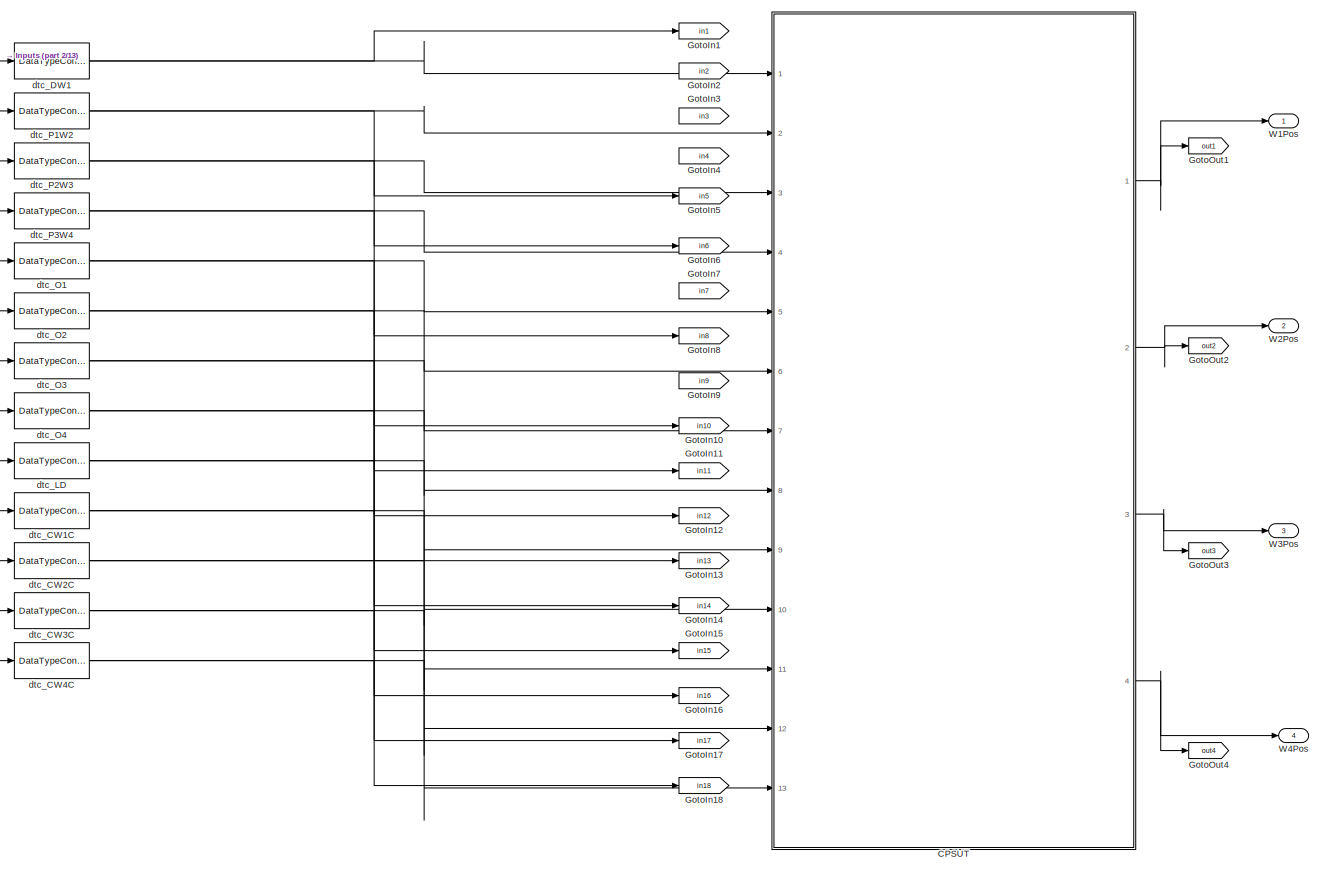
[diagram: root canvas - part 1/13, top left region]
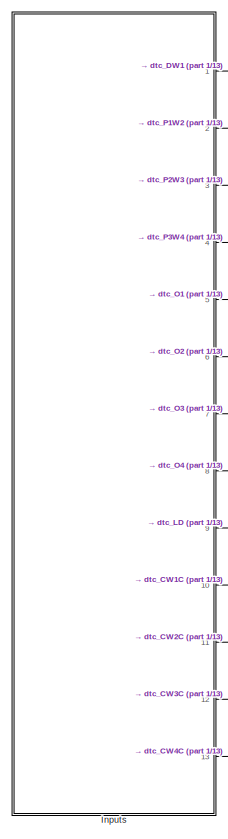
[diagram: root canvas - part 2/13, top left region]
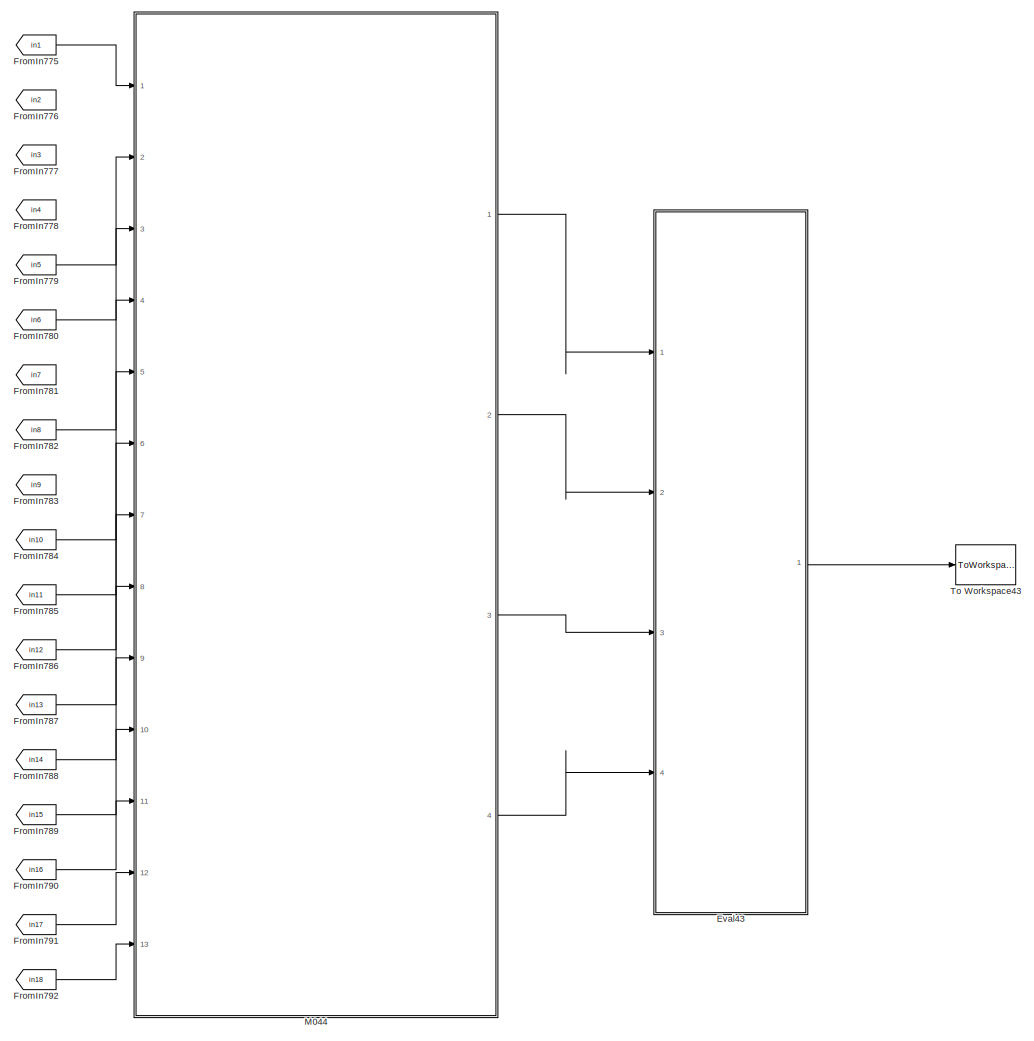
[diagram: root canvas - part 3/13, top right region]
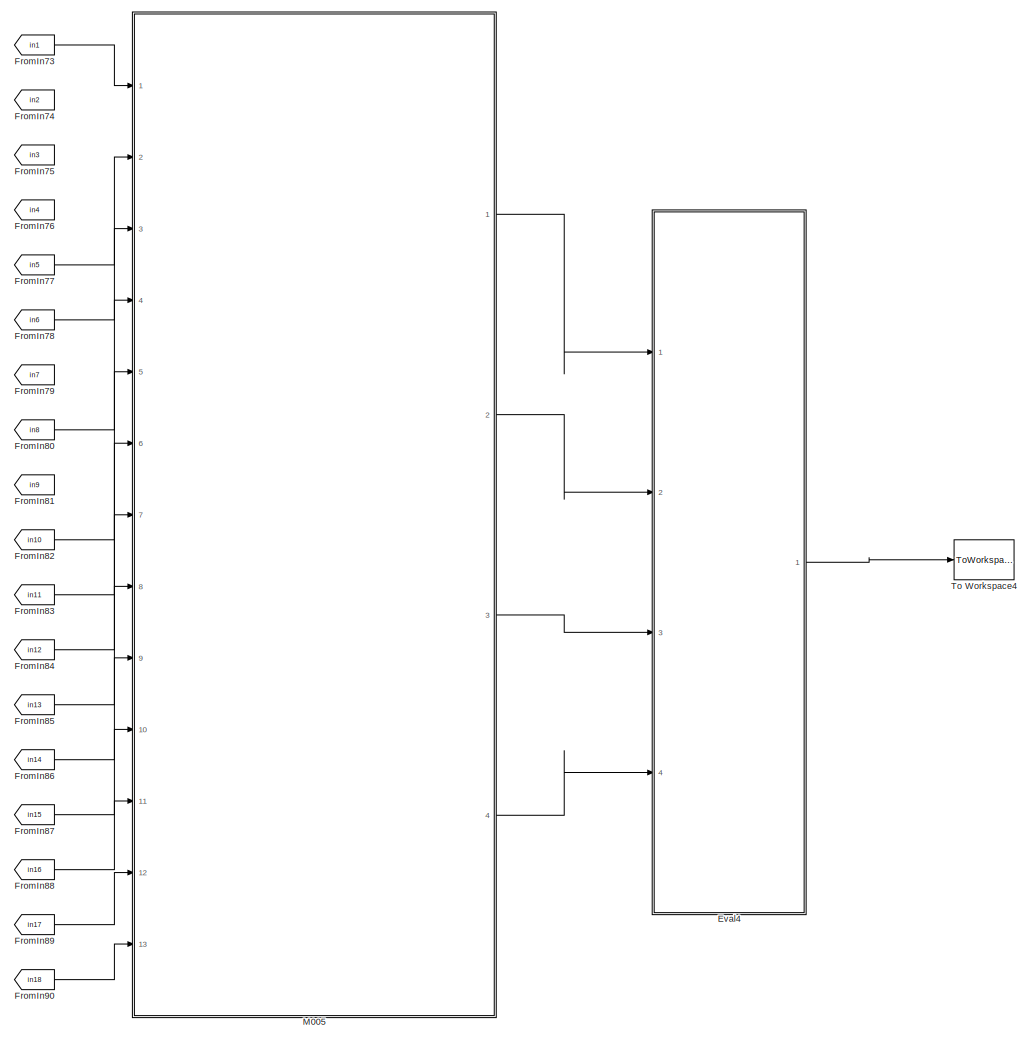
[diagram: root canvas - part 4/13, top center region]
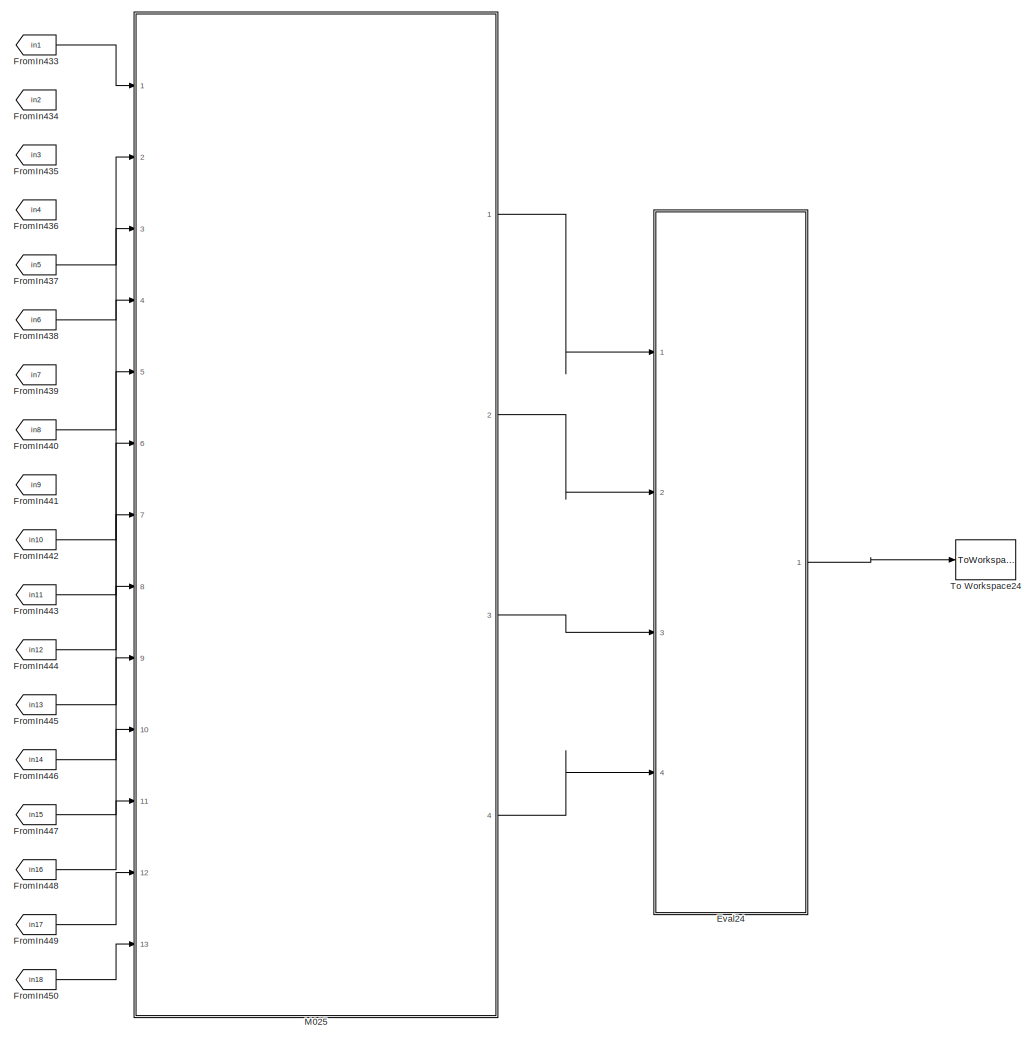
[diagram: root canvas - part 5/13, top center region]
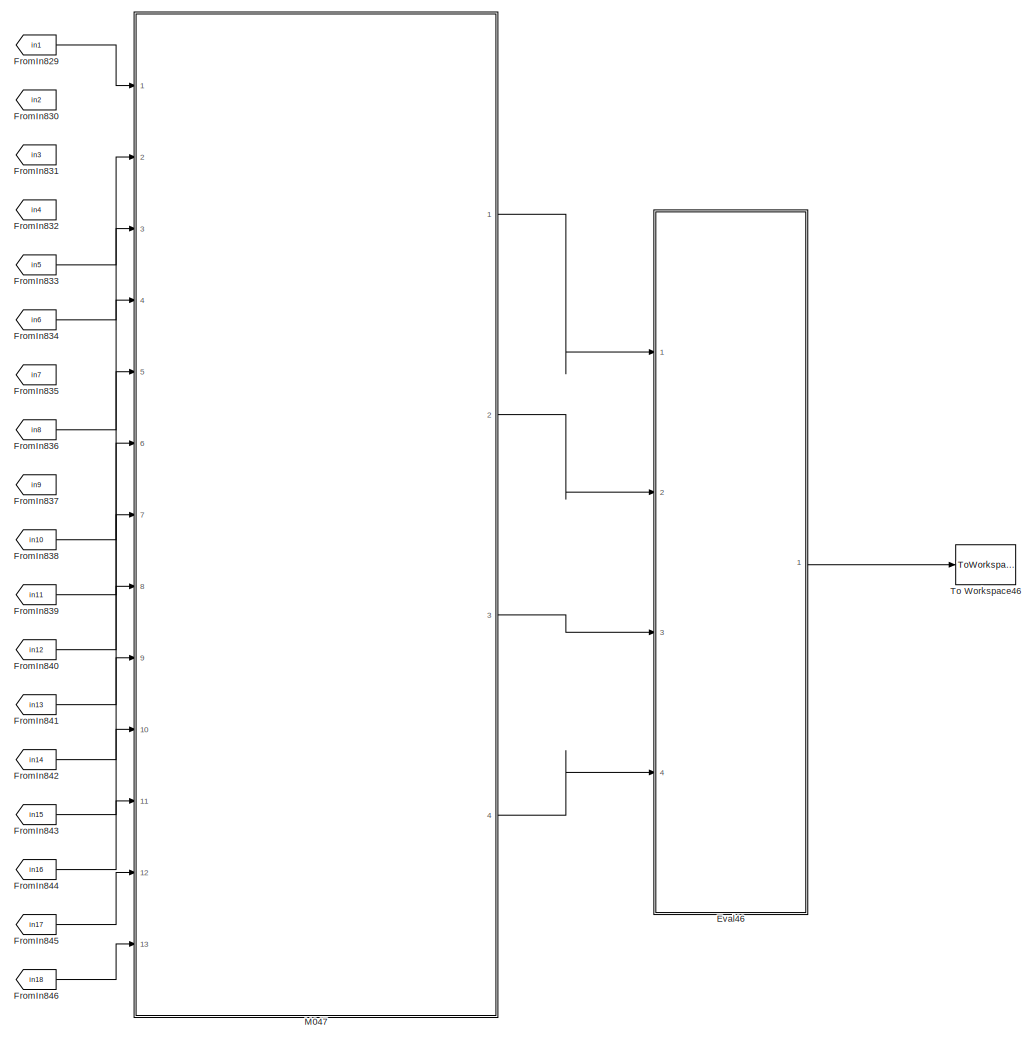
[diagram: root canvas - part 6/13, middle right region]
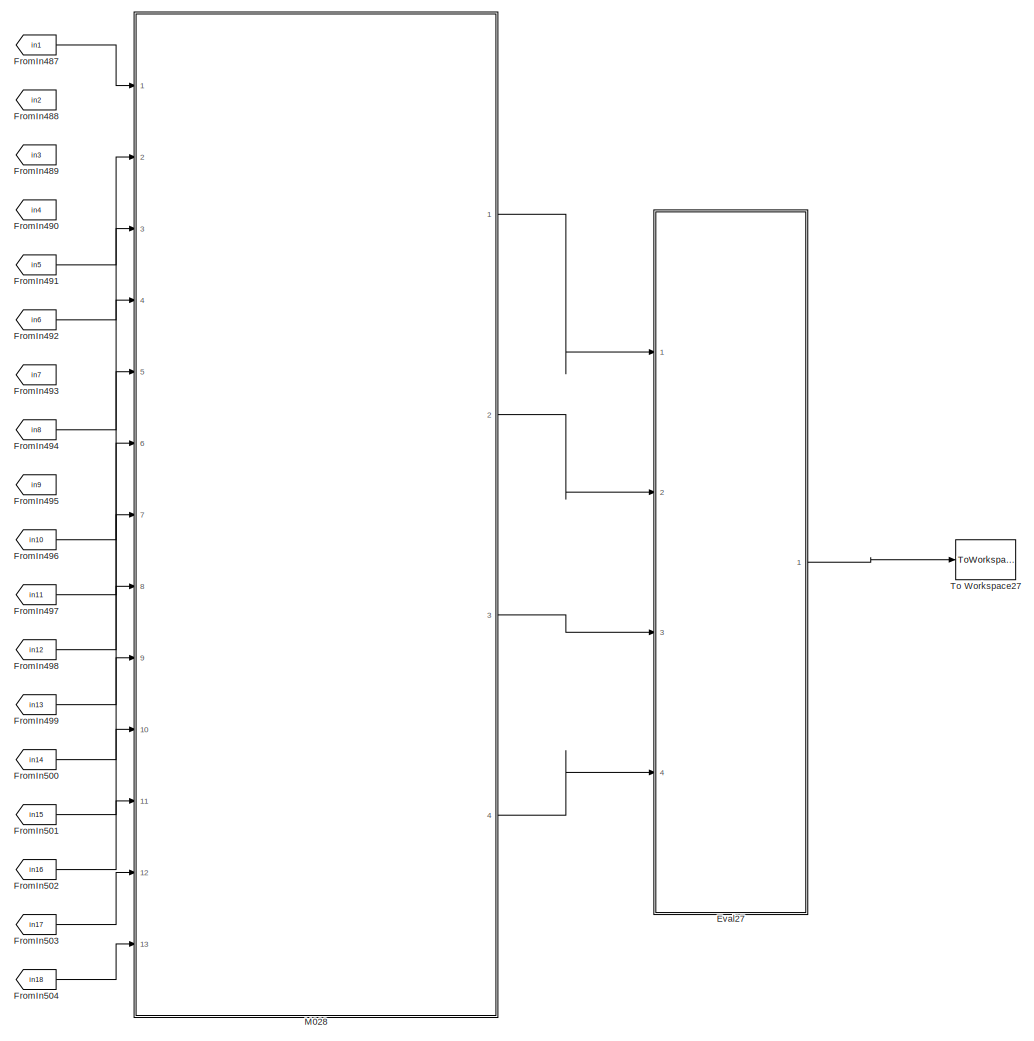
[diagram: root canvas - part 7/13, central region]
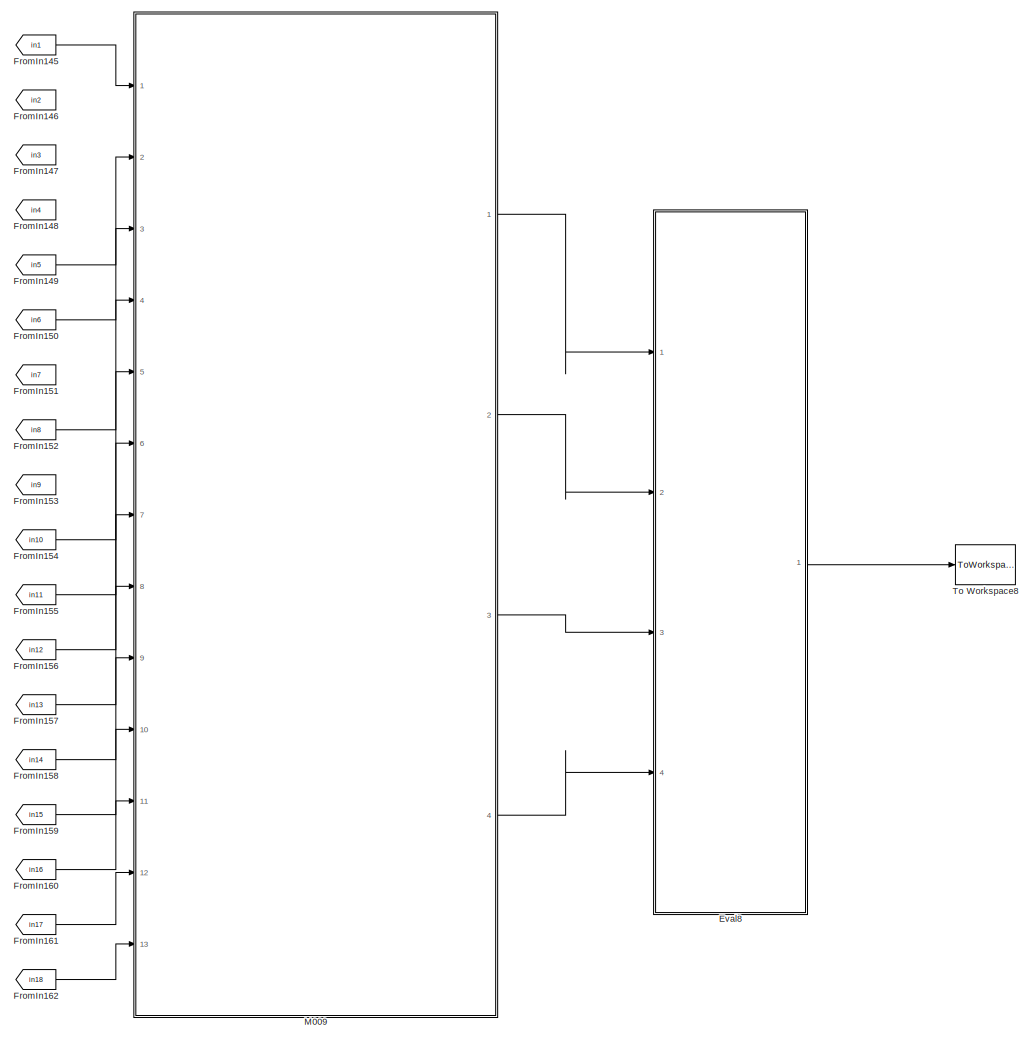
[diagram: root canvas - part 8/13, central region]
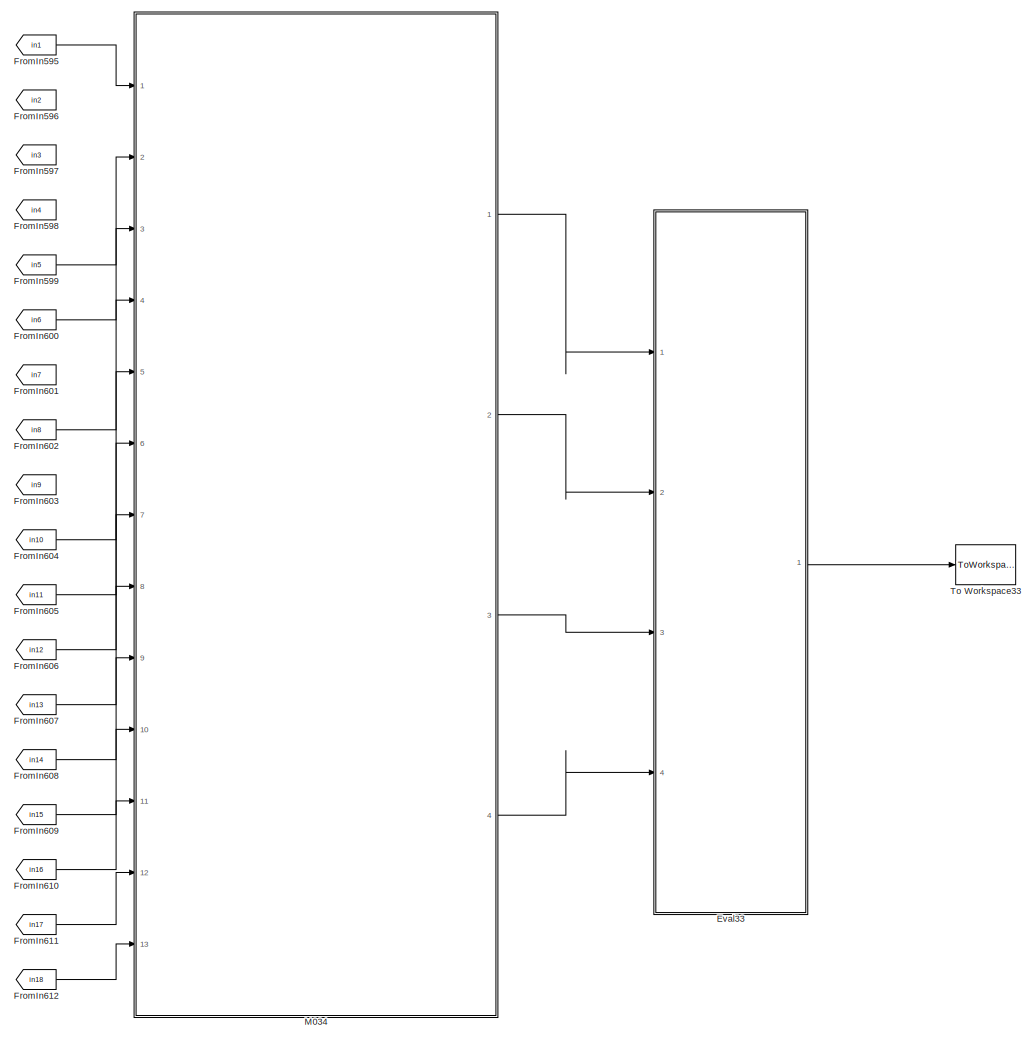
[diagram: root canvas - part 9/13, bottom center region]
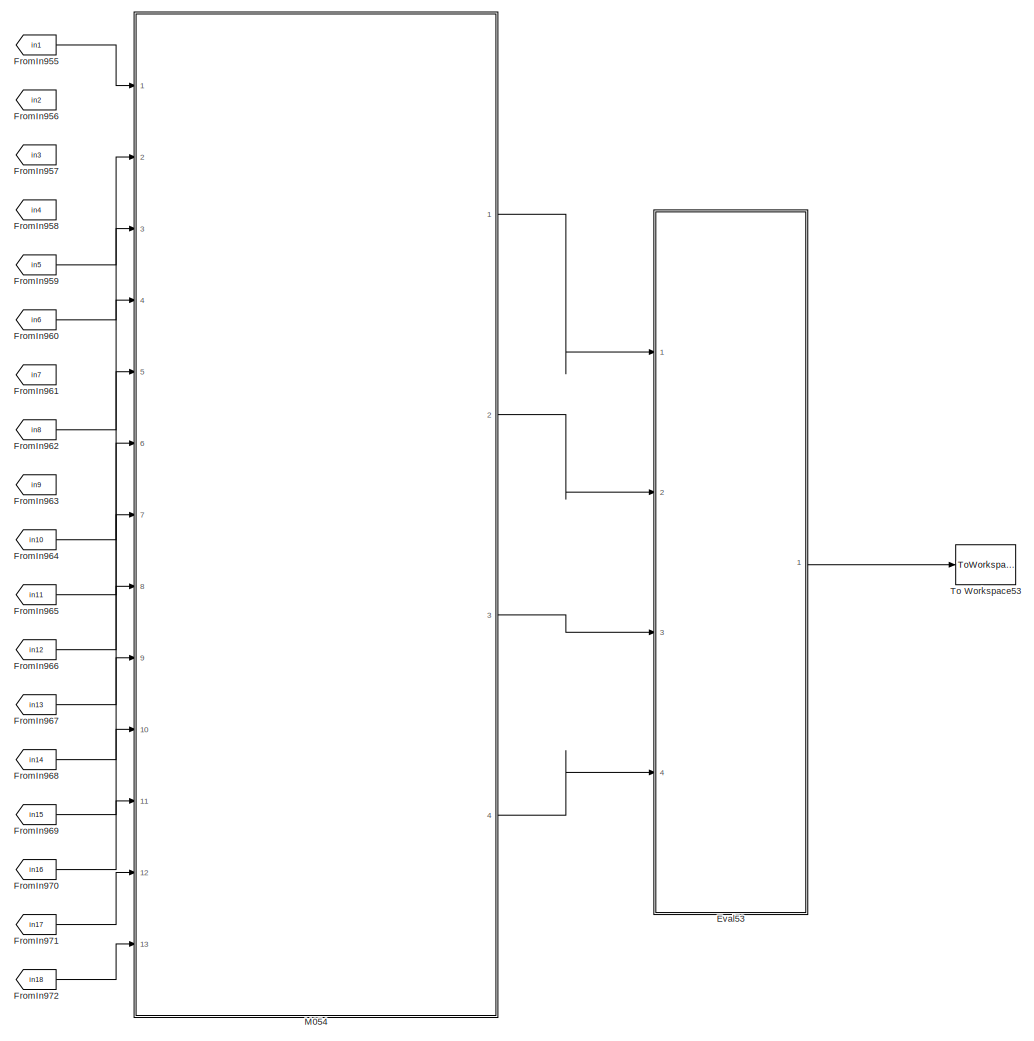
[diagram: root canvas - part 10/13, bottom right region]
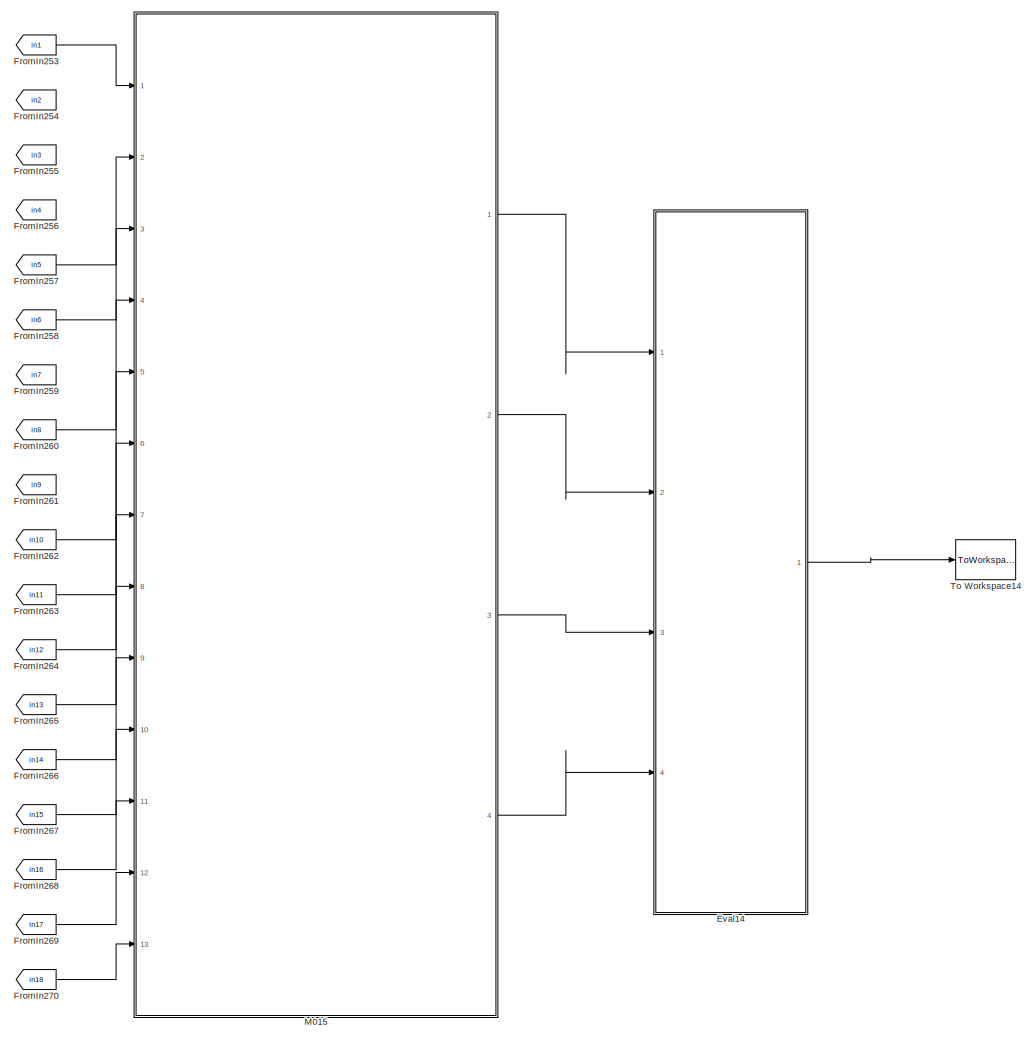
[diagram: root canvas - part 11/13, bottom center region]
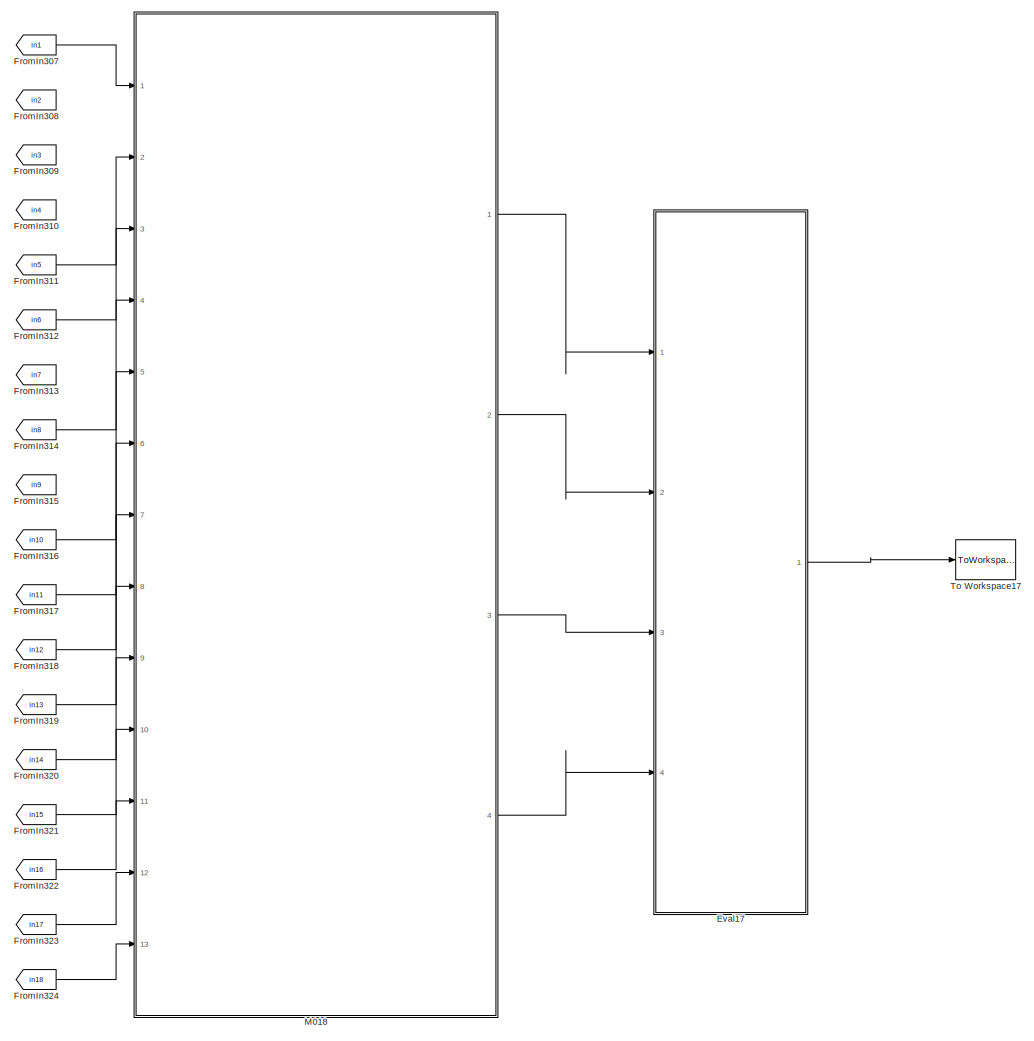
[diagram: root canvas - part 12/13, bottom center region]
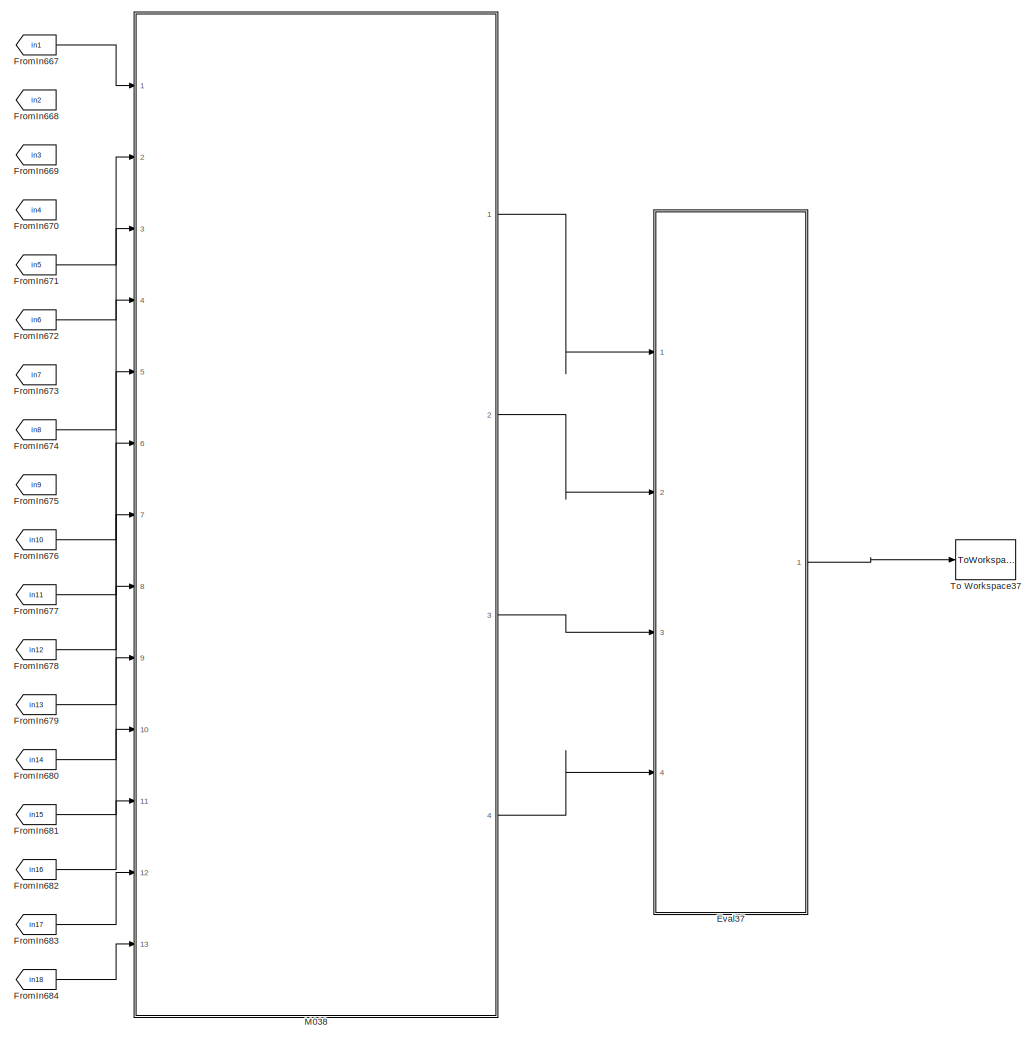
[diagram: root canvas - part 13/13, bottom center region]
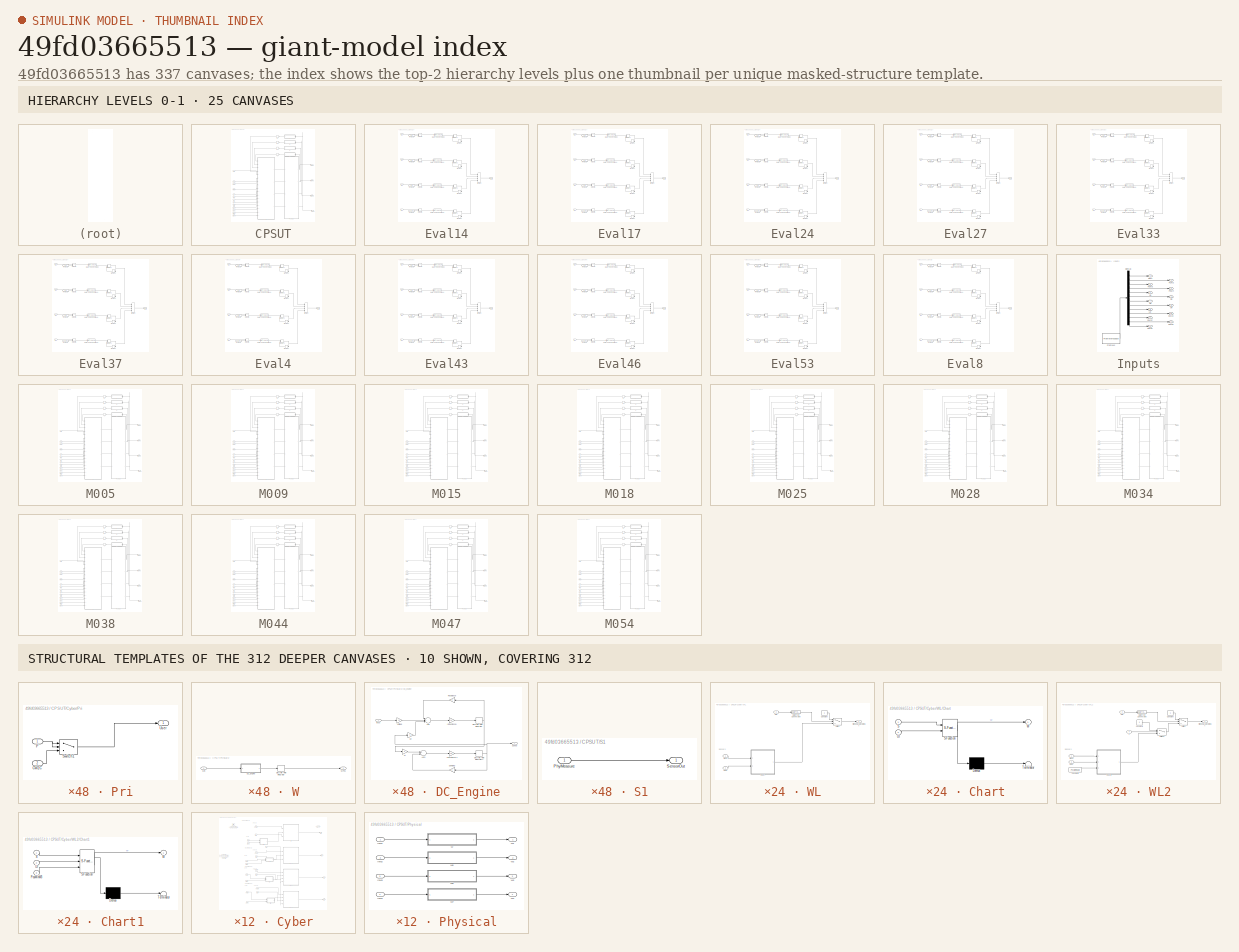
[diagram: thumbnail index - top-2 hierarchy levels (25 canvases) + 10 structural-template representatives of the remaining 312 canvases]
MODEL slx_49fd03665513
KIND model
CONFIG AbsTol = auto
CONFIG EnableMultiTasking = on
CONFIG FixedStep = auto
CONFIG MaxStep = auto
CONFIG MinStep = auto
CONFIG RelTol = 1e-3
CONFIG SampleTimeConstraint = Unconstrained
CONFIG Solver = ode3
CONFIG SolverName = ode3
CONFIG StartTime = 0.0
CONFIG StopTime = 10.0
BLOCK [SubSystem] CPSUT
  Ports = [13, 4]
  RequestExecContextInheritance = off
BLOCK [Inport] CPSUT/CW1C
  IconDisplay = Port number
  OutDataTypeStr = int8
  OutMax = 4
  OutMin = 0
  Port = 10
BLOCK [Inport] CPSUT/CW2C
  IconDisplay = Port number
  OutDataTypeStr = int8
  OutMax = 4
  OutMin = 0
  Port = 11
BLOCK [Inport] CPSUT/CW3C
  IconDisplay = Port number
  OutDataTypeStr = int8
  OutMax = 4
  OutMin = 0
  Port = 12
BLOCK [Inport] CPSUT/CW4C
  IconDisplay = Port number
  OutDataTypeStr = int8
  OutMax = 4
  OutMin = 0
  Port = 13
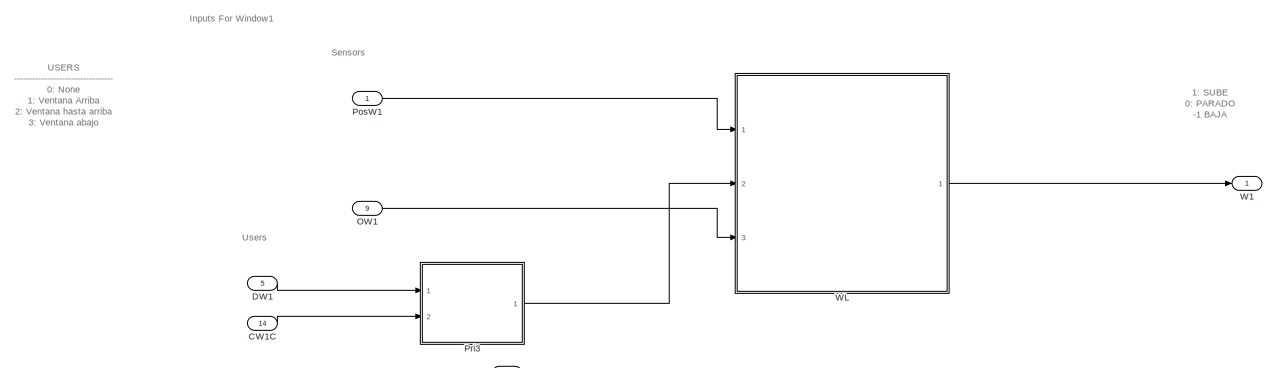
[diagram: CPSUT/Cyber - part 1/3, full width, top band]
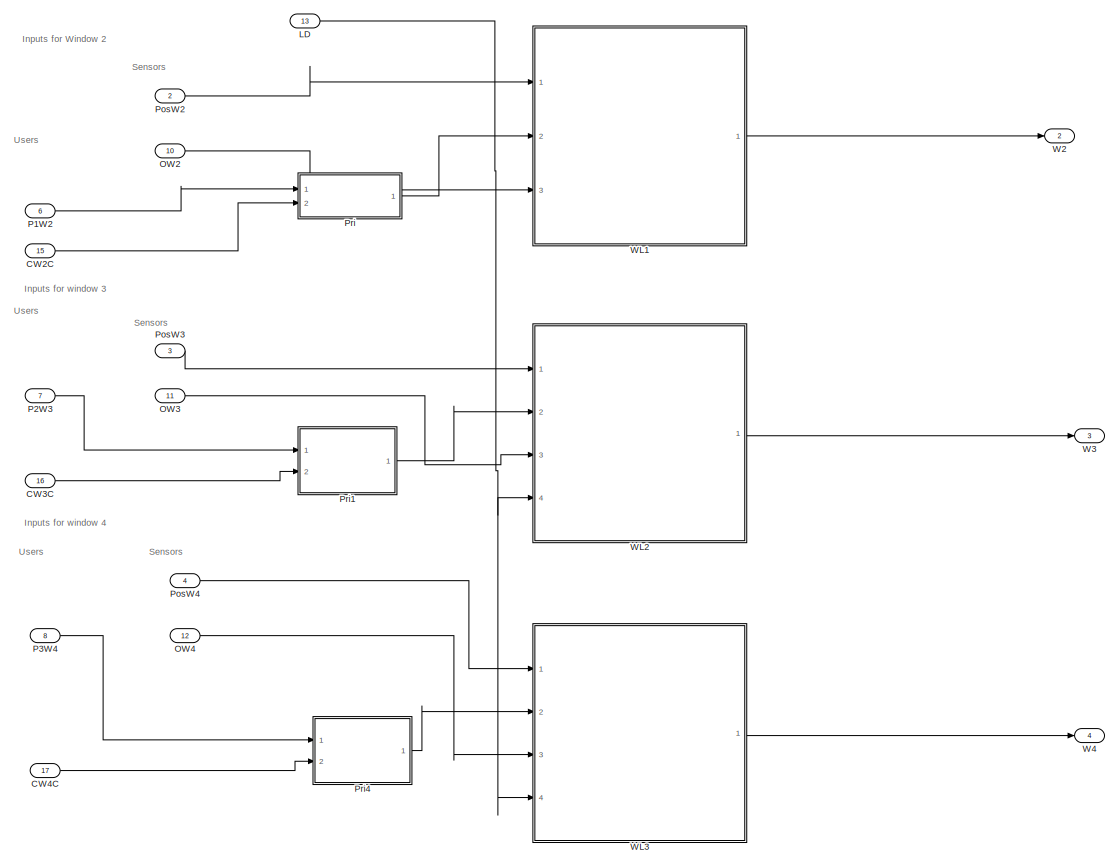
[diagram: CPSUT/Cyber - part 2/3, full width, middle band]
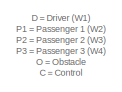
[diagram: CPSUT/Cyber - part 3/3, middle left region]
BLOCK [SubSystem] CPSUT/Cyber
  Ports = [17, 4]
  RequestExecContextInheritance = off
BLOCK [Inport] CPSUT/Cyber/CW1C
  IconDisplay = Port number
  Port = 14
BLOCK [Inport] CPSUT/Cyber/CW2C
  IconDisplay = Port number
  Port = 15
BLOCK [Inport] CPSUT/Cyber/CW3C
  IconDisplay = Port number
  Port = 16
BLOCK [Inport] CPSUT/Cyber/CW4C
  IconDisplay = Port number
  Port = 17
BLOCK [Inport] CPSUT/Cyber/DW1
  IconDisplay = Port number
  Port = 5
BLOCK [Inport] CPSUT/Cyber/LD
  IconDisplay = Port number
  Port = 13
BLOCK [Inport] CPSUT/Cyber/OW1
  IconDisplay = Port number
  Port = 9
BLOCK [Inport] CPSUT/Cyber/OW2
  IconDisplay = Port number
  Port = 10
BLOCK [Inport] CPSUT/Cyber/OW3
  IconDisplay = Port number
  Port = 11
BLOCK [Inport] CPSUT/Cyber/OW4
  IconDisplay = Port number
  Port = 12
BLOCK [Inport] CPSUT/Cyber/P1W2
  IconDisplay = Port number
  Port = 6
BLOCK [Inport] CPSUT/Cyber/P2W3
  IconDisplay = Port number
  Port = 7
BLOCK [Inport] CPSUT/Cyber/P3W4
  IconDisplay = Port number
  Port = 8
BLOCK [Inport] CPSUT/Cyber/PosW1
  IconDisplay = Port number
BLOCK [Inport] CPSUT/Cyber/PosW2
  IconDisplay = Port number
  Port = 2
BLOCK [Inport] CPSUT/Cyber/PosW3
  IconDisplay = Port number
  Port = 3
BLOCK [Inport] CPSUT/Cyber/PosW4
  IconDisplay = Port number
  Port = 4
BLOCK [SubSystem] CPSUT/Cyber/Pri
  Ports = [2, 1]
  RequestExecContextInheritance = off
BLOCK [Inport] CPSUT/Cyber/Pri/CW2C
  IconDisplay = Port number
  Port = 2
BLOCK [Inport] CPSUT/Cyber/Pri/P
  IconDisplay = Port number
BLOCK [Switch] CPSUT/Cyber/Pri/Switch1
  Criteria = u2 ~= 0
  InputSameDT = off
  SaturateOnIntegerOverflow = off
BLOCK [Outport] CPSUT/Cyber/Pri/User
  IconDisplay = Port number
BLOCK [SubSystem] CPSUT/Cyber/Pri1
  Ports = [2, 1]
  RequestExecContextInheritance = off
BLOCK [Inport] CPSUT/Cyber/Pri1/CW3C
  IconDisplay = Port number
  Port = 2
BLOCK [Inport] CPSUT/Cyber/Pri1/P
  IconDisplay = Port number
BLOCK [Switch] CPSUT/Cyber/Pri1/Switch1
  Criteria = u2 ~= 0
  InputSameDT = off
  SaturateOnIntegerOverflow = off
BLOCK [Outport] CPSUT/Cyber/Pri1/User
  IconDisplay = Port number
BLOCK [SubSystem] CPSUT/Cyber/Pri3
  Ports = [2, 1]
  RequestExecContextInheritance = off
BLOCK [Inport] CPSUT/Cyber/Pri3/CW1C
  IconDisplay = Port number
  Port = 2
BLOCK [Inport] CPSUT/Cyber/Pri3/D
  IconDisplay = Port number
BLOCK [Switch] CPSUT/Cyber/Pri3/Switch
  Criteria = u2 ~= 0
  InputSameDT = off
  SaturateOnIntegerOverflow = off
BLOCK [Outport] CPSUT/Cyber/Pri3/User
  IconDisplay = Port number
BLOCK [SubSystem] CPSUT/Cyber/Pri4
  Ports = [2, 1]
  RequestExecContextInheritance = off
BLOCK [Inport] CPSUT/Cyber/Pri4/CW4C
  IconDisplay = Port number
  Port = 2
BLOCK [Inport] CPSUT/Cyber/Pri4/P
  IconDisplay = Port number
BLOCK [Switch] CPSUT/Cyber/Pri4/Switch1
  Criteria = u2 ~= 0
  InputSameDT = off
  SaturateOnIntegerOverflow = off
BLOCK [Outport] CPSUT/Cyber/Pri4/User
  IconDisplay = Port number
BLOCK [Outport] CPSUT/Cyber/W1
  IconDisplay = Port number
BLOCK [Outport] CPSUT/Cyber/W2
  IconDisplay = Port number
  Port = 2
BLOCK [Outport] CPSUT/Cyber/W3
  IconDisplay = Port number
  Port = 3
BLOCK [Outport] CPSUT/Cyber/W4
  IconDisplay = Port number
  Port = 4
BLOCK [SubSystem] CPSUT/Cyber/WL
  Ports = [3, 1]
  RequestExecContextInheritance = off
BLOCK [SubSystem] CPSUT/Cyber/WL/Chart
  ErrorFcn = Stateflow.Translate.translate
  PermitHierarchicalResolution = ExplicitOnly
  Ports = [2, 1]
  RequestExecContextInheritance = off
  SFBlockType = Chart
  TreatAsAtomicUnit = on
BLOCK [Demux] CPSUT/Cyber/WL/Chart/ Demux 
  Outputs = 1
  Ports = [1, 1]
BLOCK [S-Function] CPSUT/Cyber/WL/Chart/ SFunction 
  EnableBusSupport = off
  FunctionName = sf_sfun
  PortCounts = [2 2]
  Ports = [2, 2]
  SFcnIsStateOwnerBlock = off
  SFunctionDeploymentMode = off
  Tag = Stateflow S-Function c00015M_harness 1
BLOCK [Terminator] CPSUT/Cyber/WL/Chart/ Terminator 
BLOCK [Inport] CPSUT/Cyber/WL/Chart/S
  IconDisplay = Port number
BLOCK [Inport] CPSUT/Cyber/WL/Chart/UI
  IconDisplay = Port number
  Port = 2
BLOCK [Outport] CPSUT/Cyber/WL/Chart/W
  IconDisplay = Port number
BLOCK [Constant] CPSUT/Cyber/WL/Constant
  Value = -1
BLOCK [DataTypeConversion] CPSUT/Cyber/WL/Data Type Conversion
  RndMeth = Floor
  SaturateOnIntegerOverflow = off
BLOCK [Inport] CPSUT/Cyber/WL/OW
  IconDisplay = Port number
  Port = 3
BLOCK [Switch] CPSUT/Cyber/WL/Switch
  Criteria = u2 ~= 0
  InputSameDT = off
  SaturateOnIntegerOverflow = off
  Threshold = 1
  ZeroCross = off
BLOCK [Inport] CPSUT/Cyber/WL/User
  IconDisplay = Port number
  Port = 2
BLOCK [Inport] CPSUT/Cyber/WL/WPos
  IconDisplay = Port number
BLOCK [Outport] CPSUT/Cyber/WL/WindowLogicOutput
  IconDisplay = Port number
BLOCK [SubSystem] CPSUT/Cyber/WL1
  Ports = [3, 1]
  RequestExecContextInheritance = off
BLOCK [SubSystem] CPSUT/Cyber/WL1/Chart1
  ErrorFcn = Stateflow.Translate.translate
  PermitHierarchicalResolution = ExplicitOnly
  Ports = [2, 1]
  RequestExecContextInheritance = off
  SFBlockType = Chart
  TreatAsAtomicUnit = on
BLOCK [Demux] CPSUT/Cyber/WL1/Chart1/ Demux 
  Outputs = 1
  Ports = [1, 1]
BLOCK [S-Function] CPSUT/Cyber/WL1/Chart1/ SFunction 
  EnableBusSupport = off
  FunctionName = sf_sfun
  PortCounts = [2 2]
  Ports = [2, 2]
  SFcnIsStateOwnerBlock = off
  SFunctionDeploymentMode = off
  Tag = Stateflow S-Function c00015M_harness 3
BLOCK [Terminator] CPSUT/Cyber/WL1/Chart1/ Terminator 
BLOCK [Inport] CPSUT/Cyber/WL1/Chart1/S
  IconDisplay = Port number
BLOCK [Inport] CPSUT/Cyber/WL1/Chart1/UI
  IconDisplay = Port number
  Port = 2
BLOCK [Outport] CPSUT/Cyber/WL1/Chart1/W
  IconDisplay = Port number
BLOCK [Constant] CPSUT/Cyber/WL1/Constant
  Value = -1
BLOCK [DataTypeConversion] CPSUT/Cyber/WL1/Data Type Conversion
  RndMeth = Floor
  SaturateOnIntegerOverflow = off
BLOCK [Inport] CPSUT/Cyber/WL1/OW
  IconDisplay = Port number
  Port = 3
BLOCK [Switch] CPSUT/Cyber/WL1/Switch
  Criteria = u2 ~= 0
  InputSameDT = off
  SaturateOnIntegerOverflow = off
  Threshold = 1
  ZeroCross = off
BLOCK [Inport] CPSUT/Cyber/WL1/User
  IconDisplay = Port number
  Port = 2
BLOCK [Inport] CPSUT/Cyber/WL1/WPos
  IconDisplay = Port number
BLOCK [Outport] CPSUT/Cyber/WL1/WindowLogicOutput
  IconDisplay = Port number
BLOCK [SubSystem] CPSUT/Cyber/WL2
  Ports = [4, 1]
  RequestExecContextInheritance = off
BLOCK [SubSystem] CPSUT/Cyber/WL2/Chart1
  ErrorFcn = Stateflow.Translate.translate
  PermitHierarchicalResolution = ExplicitOnly
  Ports = [3, 1]
  RequestExecContextInheritance = off
  SFBlockType = Chart
  TreatAsAtomicUnit = on
BLOCK [Demux] CPSUT/Cyber/WL2/Chart1/ Demux 
  Outputs = 1
  Ports = [1, 1]
BLOCK [S-Function] CPSUT/Cyber/WL2/Chart1/ SFunction 
  EnableBusSupport = off
  FunctionName = sf_sfun
  PortCounts = [3 2]
  Ports = [3, 2]
  SFcnIsStateOwnerBlock = off
  SFunctionDeploymentMode = off
  Tag = Stateflow S-Function c00015M_harness 2
BLOCK [Terminator] CPSUT/Cyber/WL2/Chart1/ Terminator 
BLOCK [Inport] CPSUT/Cyber/WL2/Chart1/PosMinW3
  IconDisplay = Port number
  Port = 3
BLOCK [Inport] CPSUT/Cyber/WL2/Chart1/S
  IconDisplay = Port number
BLOCK [Inport] CPSUT/Cyber/WL2/Chart1/UI
  IconDisplay = Port number
  Port = 2
BLOCK [Outport] CPSUT/Cyber/WL2/Chart1/W
  IconDisplay = Port number
BLOCK [Constant] CPSUT/Cyber/WL2/Constant
  Value = -1
BLOCK [Constant] CPSUT/Cyber/WL2/Constant1
  Value = 0
BLOCK [Constant] CPSUT/Cyber/WL2/Constant2
  Value = PosMinimaW3
BLOCK [DataTypeConversion] CPSUT/Cyber/WL2/Data Type Conversion
  RndMeth = Floor
  SaturateOnIntegerOverflow = off
BLOCK [Inport] CPSUT/Cyber/WL2/L
  IconDisplay = Port number
  Port = 4
BLOCK [Inport] CPSUT/Cyber/WL2/OW
  IconDisplay = Port number
  Port = 3
BLOCK [Switch] CPSUT/Cyber/WL2/Switch
  Criteria = u2 ~= 0
  InputSameDT = off
  SaturateOnIntegerOverflow = off
  Threshold = 1
  ZeroCross = off
BLOCK [Switch] CPSUT/Cyber/WL2/Switch1
  Criteria = u2 ~= 0
  InputSameDT = off
  SaturateOnIntegerOverflow = off
BLOCK [Inport] CPSUT/Cyber/WL2/User
  IconDisplay = Port number
  Port = 2
BLOCK [Inport] CPSUT/Cyber/WL2/WPos
  IconDisplay = Port number
BLOCK [Outport] CPSUT/Cyber/WL2/WindowLogicOutput
  IconDisplay = Port number
BLOCK [SubSystem] CPSUT/Cyber/WL3
  Ports = [4, 1]
  RequestExecContextInheritance = off
BLOCK [SubSystem] CPSUT/Cyber/WL3/Chart2
  ErrorFcn = Stateflow.Translate.translate
  PermitHierarchicalResolution = ExplicitOnly
  Ports = [3, 1]
  RequestExecContextInheritance = off
  SFBlockType = Chart
  TreatAsAtomicUnit = on
BLOCK [Demux] CPSUT/Cyber/WL3/Chart2/ Demux 
  Outputs = 1
  Ports = [1, 1]
BLOCK [S-Function] CPSUT/Cyber/WL3/Chart2/ SFunction 
  EnableBusSupport = off
  FunctionName = sf_sfun
  PortCounts = [3 2]
  Ports = [3, 2]
  SFcnIsStateOwnerBlock = off
  SFunctionDeploymentMode = off
  Tag = Stateflow S-Function c00015M_harness 4
BLOCK [Terminator] CPSUT/Cyber/WL3/Chart2/ Terminator 
BLOCK [Inport] CPSUT/Cyber/WL3/Chart2/PosMinW4
  IconDisplay = Port number
  Port = 3
BLOCK [Inport] CPSUT/Cyber/WL3/Chart2/S
  IconDisplay = Port number
BLOCK [Inport] CPSUT/Cyber/WL3/Chart2/UI
  IconDisplay = Port number
  Port = 2
BLOCK [Outport] CPSUT/Cyber/WL3/Chart2/W
  IconDisplay = Port number
BLOCK [Constant] CPSUT/Cyber/WL3/Constant
  Value = -1
BLOCK [Constant] CPSUT/Cyber/WL3/Constant1
  Value = 0
BLOCK [Constant] CPSUT/Cyber/WL3/Constant2
  Value = PosMinimaW4
BLOCK [DataTypeConversion] CPSUT/Cyber/WL3/Data Type Conversion
  RndMeth = Floor
  SaturateOnIntegerOverflow = off
BLOCK [Inport] CPSUT/Cyber/WL3/L
  IconDisplay = Port number
  Port = 4
BLOCK [Inport] CPSUT/Cyber/WL3/OW
  IconDisplay = Port number
  Port = 3
BLOCK [Switch] CPSUT/Cyber/WL3/Switch
  Criteria = u2 ~= 0
  InputSameDT = off
  SaturateOnIntegerOverflow = off
  Threshold = 1
  ZeroCross = off
BLOCK [Switch] CPSUT/Cyber/WL3/Switch1
  Criteria = u2 ~= 0
  InputSameDT = off
  SaturateOnIntegerOverflow = off
BLOCK [Inport] CPSUT/Cyber/WL3/User
  IconDisplay = Port number
  Port = 2
BLOCK [Inport] CPSUT/Cyber/WL3/WPos
  IconDisplay = Port number
BLOCK [Outport] CPSUT/Cyber/WL3/WindowLogicOutput
  IconDisplay = Port number
BLOCK [Inport] CPSUT/DW1
  IconDisplay = Port number
  OutDataTypeStr = int8
  OutMax = 4
  OutMin = 0
BLOCK [Inport] CPSUT/LD
  IconDisplay = Port number
  OutDataTypeStr = boolean
  Port = 9
BLOCK [Memory] CPSUT/M
BLOCK [Memory] CPSUT/M1
BLOCK [Memory] CPSUT/M2
BLOCK [Memory] CPSUT/M3
BLOCK [Inport] CPSUT/O1
  IconDisplay = Port number
  OutDataTypeStr = boolean
  Port = 5
BLOCK [Inport] CPSUT/O2
  IconDisplay = Port number
  OutDataTypeStr = boolean
  Port = 6
BLOCK [Inport] CPSUT/O3
  IconDisplay = Port number
  OutDataTypeStr = boolean
  Port = 7
BLOCK [Inport] CPSUT/O4
  IconDisplay = Port number
  OutDataTypeStr = boolean
  Port = 8
BLOCK [Inport] CPSUT/P1W2
  IconDisplay = Port number
  OutDataTypeStr = int8
  OutMax = 4
  OutMin = 0
  Port = 2
BLOCK [Inport] CPSUT/P2W3
  IconDisplay = Port number
  OutDataTypeStr = int8
  OutMax = 4
  OutMin = 0
  Port = 3
BLOCK [Inport] CPSUT/P3W4
  IconDisplay = Port number
  OutDataTypeStr = int8
  OutMax = 4
  OutMin = 0
  Port = 4
BLOCK [SubSystem] CPSUT/Physical
  Ports = [4, 4]
  RequestExecContextInheritance = off
BLOCK [Inport] CPSUT/Physical/InW1
  IconDisplay = Port number
BLOCK [Inport] CPSUT/Physical/InW2
  IconDisplay = Port number
  Port = 2
BLOCK [Inport] CPSUT/Physical/InW3
  IconDisplay = Port number
  Port = 3
BLOCK [Inport] CPSUT/Physical/InW4
  IconDisplay = Port number
  Port = 4
BLOCK [SubSystem] CPSUT/Physical/W
  Ports = [1, 1]
  RequestExecContextInheritance = off
BLOCK [SubSystem] CPSUT/Physical/W/DC_Engine
  Ports = [1, 1]
  RequestExecContextInheritance = off
BLOCK [Gain] CPSUT/Physical/W/DC_Engine/(Inductance)
  Gain = 1/L
  OutDataTypeStr = Inherit: Inherit via internal rule
  ParamDataTypeStr = Inherit: Inherit via internal rule
  SaturateOnIntegerOverflow = off
BLOCK [Gain] CPSUT/Physical/W/DC_Engine/(Inductance)1
  Gain = 1/J
  OutDataTypeStr = Inherit: Inherit via internal rule
  ParamDataTypeStr = Inherit: Inherit via internal rule
  SaturateOnIntegerOverflow = off
BLOCK [Sum] CPSUT/Physical/W/DC_Engine/Add
  InputSameDT = off
  Inputs = -+-
  OutDataTypeStr = Inherit: Inherit via internal rule
  Ports = [3, 1]
  SaturateOnIntegerOverflow = off
BLOCK [Sum] CPSUT/Physical/W/DC_Engine/Add1
  InputSameDT = off
  Inputs = +-
  OutDataTypeStr = Inherit: Inherit via internal rule
  Ports = [2, 1]
  SaturateOnIntegerOverflow = off
BLOCK [Gain] CPSUT/Physical/W/DC_Engine/Damping
  Gain = b
  OutDataTypeStr = Inherit: Inherit via internal rule
  ParamDataTypeStr = Inherit: Inherit via internal rule
  SaturateOnIntegerOverflow = off
BLOCK [DiscreteIntegrator] CPSUT/Physical/W/DC_Engine/Discrete-Time Integrator
  ICPrevOutput = DiscIntNeverNeededParam
  ICPrevScaledInput = DiscIntNeverNeededParam
  Ports = [1, 1]
  SampleTime = -1
BLOCK [DiscreteIntegrator] CPSUT/Physical/W/DC_Engine/Discrete-Time Integrator1
  ICPrevOutput = DiscIntNeverNeededParam
  ICPrevScaledInput = DiscIntNeverNeededParam
  Ports = [1, 1]
  SampleTime = -1
BLOCK [Gain] CPSUT/Physical/W/DC_Engine/Ke
  Gain = K
  OutDataTypeStr = Inherit: Inherit via internal rule
  ParamDataTypeStr = Inherit: Inherit via internal rule
  SaturateOnIntegerOverflow = off
BLOCK [Gain] CPSUT/Physical/W/DC_Engine/Kt
  Gain = K
  OutDataTypeStr = Inherit: Inherit via internal rule
  ParamDataTypeStr = Inherit: Inherit via internal rule
  SaturateOnIntegerOverflow = off
BLOCK [Gain] CPSUT/Physical/W/DC_Engine/Resistance
  Gain = R
  OutDataTypeStr = Inherit: Inherit via internal rule
  ParamDataTypeStr = Inherit: Inherit via internal rule
  SaturateOnIntegerOverflow = off
BLOCK [Outport] CPSUT/Physical/W/DC_Engine/Speed
  IconDisplay = Port number
BLOCK [Gain] CPSUT/Physical/W/DC_Engine/Voltage
  Gain = 10
  OutDataTypeStr = Inherit: Inherit via internal rule
  ParamDataTypeStr = Inherit: Inherit via internal rule
  SaturateOnIntegerOverflow = off
BLOCK [Inport] CPSUT/Physical/W/DC_Engine/input
  IconDisplay = Port number
BLOCK [DiscreteIntegrator] CPSUT/Physical/W/Discrete-Time Integrator
  ICPrevOutput = DiscIntNeverNeededParam
  ICPrevScaledInput = DiscIntNeverNeededParam
  InitialCondition = 5
  LimitOutput = on
  LowerSaturationLimit = 0
  Ports = [1, 1]
  SampleTime = -1
  UpperSaturationLimit = 5
BLOCK [Inport] CPSUT/Physical/W/WIn
  IconDisplay = Port number
BLOCK [Outport] CPSUT/Physical/W/WPos
  IconDisplay = Port number
BLOCK [Outport] CPSUT/Physical/W1
  IconDisplay = Port number
BLOCK [Outport] CPSUT/Physical/W2
  IconDisplay = Port number
  Port = 2
BLOCK [Outport] CPSUT/Physical/W3
  IconDisplay = Port number
  Port = 3
BLOCK [Outport] CPSUT/Physical/W4
  IconDisplay = Port number
  Port = 4
BLOCK [SubSystem] CPSUT/Physical/W5
  Ports = [1, 1]
  RequestExecContextInheritance = off
BLOCK [SubSystem] CPSUT/Physical/W5/DC_Engine
  Ports = [1, 1]
  RequestExecContextInheritance = off
BLOCK [Gain] CPSUT/Physical/W5/DC_Engine/(Inductance)
  Gain = 1/L
  OutDataTypeStr = Inherit: Inherit via internal rule
  ParamDataTypeStr = Inherit: Inherit via internal rule
  SaturateOnIntegerOverflow = off
BLOCK [Gain] CPSUT/Physical/W5/DC_Engine/(Inductance)1
  Gain = 1/J
  OutDataTypeStr = Inherit: Inherit via internal rule
  ParamDataTypeStr = Inherit: Inherit via internal rule
  SaturateOnIntegerOverflow = off
BLOCK [Sum] CPSUT/Physical/W5/DC_Engine/Add
  InputSameDT = off
  Inputs = -+-
  OutDataTypeStr = Inherit: Inherit via internal rule
  Ports = [3, 1]
  SaturateOnIntegerOverflow = off
BLOCK [Sum] CPSUT/Physical/W5/DC_Engine/Add1
  InputSameDT = off
  Inputs = +-
  OutDataTypeStr = Inherit: Inherit via internal rule
  Ports = [2, 1]
  SaturateOnIntegerOverflow = off
BLOCK [Gain] CPSUT/Physical/W5/DC_Engine/Damping
  Gain = b
  OutDataTypeStr = Inherit: Inherit via internal rule
  ParamDataTypeStr = Inherit: Inherit via internal rule
  SaturateOnIntegerOverflow = off
BLOCK [DiscreteIntegrator] CPSUT/Physical/W5/DC_Engine/Discrete-Time Integrator
  ICPrevOutput = DiscIntNeverNeededParam
  ICPrevScaledInput = DiscIntNeverNeededParam
  Ports = [1, 1]
  SampleTime = -1
BLOCK [DiscreteIntegrator] CPSUT/Physical/W5/DC_Engine/Discrete-Time Integrator1
  ICPrevOutput = DiscIntNeverNeededParam
  ICPrevScaledInput = DiscIntNeverNeededParam
  Ports = [1, 1]
  SampleTime = -1
BLOCK [Gain] CPSUT/Physical/W5/DC_Engine/Ke
  Gain = K
  OutDataTypeStr = Inherit: Inherit via internal rule
  ParamDataTypeStr = Inherit: Inherit via internal rule
  SaturateOnIntegerOverflow = off
BLOCK [Gain] CPSUT/Physical/W5/DC_Engine/Kt
  Gain = K
  OutDataTypeStr = Inherit: Inherit via internal rule
  ParamDataTypeStr = Inherit: Inherit via internal rule
  SaturateOnIntegerOverflow = off
BLOCK [Gain] CPSUT/Physical/W5/DC_Engine/Resistance
  Gain = R
  OutDataTypeStr = Inherit: Inherit via internal rule
  ParamDataTypeStr = Inherit: Inherit via internal rule
  SaturateOnIntegerOverflow = off
BLOCK [Outport] CPSUT/Physical/W5/DC_Engine/Speed
  IconDisplay = Port number
BLOCK [Gain] CPSUT/Physical/W5/DC_Engine/Voltage
  Gain = 10
  OutDataTypeStr = Inherit: Inherit via internal rule
  ParamDataTypeStr = Inherit: Inherit via internal rule
  SaturateOnIntegerOverflow = off
BLOCK [Inport] CPSUT/Physical/W5/DC_Engine/input
  IconDisplay = Port number
BLOCK [DiscreteIntegrator] CPSUT/Physical/W5/Discrete-Time Integrator
  ICPrevOutput = DiscIntNeverNeededParam
  ICPrevScaledInput = DiscIntNeverNeededParam
  InitialCondition = 5
  LimitOutput = on
  LowerSaturationLimit = 0
  Ports = [1, 1]
  SampleTime = -1
  UpperSaturationLimit = 5
BLOCK [Inport] CPSUT/Physical/W5/WIn
  IconDisplay = Port number
BLOCK [Outport] CPSUT/Physical/W5/WPos
  IconDisplay = Port number
BLOCK [SubSystem] CPSUT/Physical/W6
  Ports = [1, 1]
  RequestExecContextInheritance = off
BLOCK [SubSystem] CPSUT/Physical/W6/DC_Engine
  Ports = [1, 1]
  RequestExecContextInheritance = off
BLOCK [Gain] CPSUT/Physical/W6/DC_Engine/(Inductance)
  Gain = 1/L
  OutDataTypeStr = Inherit: Inherit via internal rule
  ParamDataTypeStr = Inherit: Inherit via internal rule
  SaturateOnIntegerOverflow = off
BLOCK [Gain] CPSUT/Physical/W6/DC_Engine/(Inductance)1
  Gain = 1/J
  OutDataTypeStr = Inherit: Inherit via internal rule
  ParamDataTypeStr = Inherit: Inherit via internal rule
  SaturateOnIntegerOverflow = off
BLOCK [Sum] CPSUT/Physical/W6/DC_Engine/Add
  InputSameDT = off
  Inputs = -+-
  OutDataTypeStr = Inherit: Inherit via internal rule
  Ports = [3, 1]
  SaturateOnIntegerOverflow = off
BLOCK [Sum] CPSUT/Physical/W6/DC_Engine/Add1
  InputSameDT = off
  Inputs = +-
  OutDataTypeStr = Inherit: Inherit via internal rule
  Ports = [2, 1]
  SaturateOnIntegerOverflow = off
BLOCK [Gain] CPSUT/Physical/W6/DC_Engine/Damping
  Gain = b
  OutDataTypeStr = Inherit: Inherit via internal rule
  ParamDataTypeStr = Inherit: Inherit via internal rule
  SaturateOnIntegerOverflow = off
BLOCK [DiscreteIntegrator] CPSUT/Physical/W6/DC_Engine/Discrete-Time Integrator
  ICPrevOutput = DiscIntNeverNeededParam
  ICPrevScaledInput = DiscIntNeverNeededParam
  Ports = [1, 1]
  SampleTime = -1
BLOCK [DiscreteIntegrator] CPSUT/Physical/W6/DC_Engine/Discrete-Time Integrator1
  ICPrevOutput = DiscIntNeverNeededParam
  ICPrevScaledInput = DiscIntNeverNeededParam
  Ports = [1, 1]
  SampleTime = -1
BLOCK [Gain] CPSUT/Physical/W6/DC_Engine/Ke
  Gain = K
  OutDataTypeStr = Inherit: Inherit via internal rule
  ParamDataTypeStr = Inherit: Inherit via internal rule
  SaturateOnIntegerOverflow = off
BLOCK [Gain] CPSUT/Physical/W6/DC_Engine/Kt
  Gain = K
  OutDataTypeStr = Inherit: Inherit via internal rule
  ParamDataTypeStr = Inherit: Inherit via internal rule
  SaturateOnIntegerOverflow = off
BLOCK [Gain] CPSUT/Physical/W6/DC_Engine/Resistance
  Gain = R
  OutDataTypeStr = Inherit: Inherit via internal rule
  ParamDataTypeStr = Inherit: Inherit via internal rule
  SaturateOnIntegerOverflow = off
BLOCK [Outport] CPSUT/Physical/W6/DC_Engine/Speed
  IconDisplay = Port number
BLOCK [Gain] CPSUT/Physical/W6/DC_Engine/Voltage
  Gain = 10
  OutDataTypeStr = Inherit: Inherit via internal rule
  ParamDataTypeStr = Inherit: Inherit via internal rule
  SaturateOnIntegerOverflow = off
BLOCK [Inport] CPSUT/Physical/W6/DC_Engine/input
  IconDisplay = Port number
BLOCK [DiscreteIntegrator] CPSUT/Physical/W6/Discrete-Time Integrator
  ICPrevOutput = DiscIntNeverNeededParam
  ICPrevScaledInput = DiscIntNeverNeededParam
  InitialCondition = 5
  LimitOutput = on
  LowerSaturationLimit = PosMinimaW3
  Ports = [1, 1]
  SampleTime = -1
  UpperSaturationLimit = 5
BLOCK [Inport] CPSUT/Physical/W6/WIn
  IconDisplay = Port number
BLOCK [Outport] CPSUT/Physical/W6/WPos
  IconDisplay = Port number
BLOCK [SubSystem] CPSUT/Physical/W7
  Ports = [1, 1]
  RequestExecContextInheritance = off
BLOCK [SubSystem] CPSUT/Physical/W7/DC_Engine
  Ports = [1, 1]
  RequestExecContextInheritance = off
BLOCK [Gain] CPSUT/Physical/W7/DC_Engine/(Inductance)
  Gain = 1/L
  OutDataTypeStr = Inherit: Inherit via internal rule
  ParamDataTypeStr = Inherit: Inherit via internal rule
  SaturateOnIntegerOverflow = off
BLOCK [Gain] CPSUT/Physical/W7/DC_Engine/(Inductance)1
  Gain = 1/J
  OutDataTypeStr = Inherit: Inherit via internal rule
  ParamDataTypeStr = Inherit: Inherit via internal rule
  SaturateOnIntegerOverflow = off
BLOCK [Sum] CPSUT/Physical/W7/DC_Engine/Add
  InputSameDT = off
  Inputs = -+-
  OutDataTypeStr = Inherit: Inherit via internal rule
  Ports = [3, 1]
  SaturateOnIntegerOverflow = off
BLOCK [Sum] CPSUT/Physical/W7/DC_Engine/Add1
  InputSameDT = off
  Inputs = +-
  OutDataTypeStr = Inherit: Inherit via internal rule
  Ports = [2, 1]
  SaturateOnIntegerOverflow = off
BLOCK [Gain] CPSUT/Physical/W7/DC_Engine/Damping
  Gain = b
  OutDataTypeStr = Inherit: Inherit via internal rule
  ParamDataTypeStr = Inherit: Inherit via internal rule
  SaturateOnIntegerOverflow = off
BLOCK [DiscreteIntegrator] CPSUT/Physical/W7/DC_Engine/Discrete-Time Integrator
  ICPrevOutput = DiscIntNeverNeededParam
  ICPrevScaledInput = DiscIntNeverNeededParam
  Ports = [1, 1]
  SampleTime = -1
BLOCK [DiscreteIntegrator] CPSUT/Physical/W7/DC_Engine/Discrete-Time Integrator1
  ICPrevOutput = DiscIntNeverNeededParam
  ICPrevScaledInput = DiscIntNeverNeededParam
  Ports = [1, 1]
  SampleTime = -1
BLOCK [Gain] CPSUT/Physical/W7/DC_Engine/Ke
  Gain = K
  OutDataTypeStr = Inherit: Inherit via internal rule
  ParamDataTypeStr = Inherit: Inherit via internal rule
  SaturateOnIntegerOverflow = off
BLOCK [Gain] CPSUT/Physical/W7/DC_Engine/Kt
  Gain = K
  OutDataTypeStr = Inherit: Inherit via internal rule
  ParamDataTypeStr = Inherit: Inherit via internal rule
  SaturateOnIntegerOverflow = off
BLOCK [Gain] CPSUT/Physical/W7/DC_Engine/Resistance
  Gain = R
  OutDataTypeStr = Inherit: Inherit via internal rule
  ParamDataTypeStr = Inherit: Inherit via internal rule
  SaturateOnIntegerOverflow = off
BLOCK [Outport] CPSUT/Physical/W7/DC_Engine/Speed
  IconDisplay = Port number
BLOCK [Gain] CPSUT/Physical/W7/DC_Engine/Voltage
  Gain = 10
  OutDataTypeStr = Inherit: Inherit via internal rule
  ParamDataTypeStr = Inherit: Inherit via internal rule
  SaturateOnIntegerOverflow = off
BLOCK [Inport] CPSUT/Physical/W7/DC_Engine/input
  IconDisplay = Port number
BLOCK [DiscreteIntegrator] CPSUT/Physical/W7/Discrete-Time Integrator
  ICPrevOutput = DiscIntNeverNeededParam
  ICPrevScaledInput = DiscIntNeverNeededParam
  InitialCondition = 5
  LimitOutput = on
  LowerSaturationLimit = PosMinimaW4
  Ports = [1, 1]
  SampleTime = -1
  UpperSaturationLimit = 5
BLOCK [Inport] CPSUT/Physical/W7/WIn
  IconDisplay = Port number
BLOCK [Outport] CPSUT/Physical/W7/WPos
  IconDisplay = Port number
BLOCK [SubSystem] CPSUT/S1
  Ports = [1, 1]
  RequestExecContextInheritance = off
BLOCK [Inport] CPSUT/S1/PhyMeasure
  IconDisplay = Port number
BLOCK [Outport] CPSUT/S1/SensorOut
  IconDisplay = Port number
BLOCK [SubSystem] CPSUT/S2
  Ports = [1, 1]
  RequestExecContextInheritance = off
BLOCK [Inport] CPSUT/S2/PhyMeasure
  IconDisplay = Port number
BLOCK [Outport] CPSUT/S2/SensorOut
  IconDisplay = Port number
BLOCK [SubSystem] CPSUT/S3
  Ports = [1, 1]
  RequestExecContextInheritance = off
BLOCK [Inport] CPSUT/S3/PhyMeasure
  IconDisplay = Port number
BLOCK [Outport] CPSUT/S3/SensorOut
  IconDisplay = Port number
BLOCK [SubSystem] CPSUT/S4
  Ports = [1, 1]
  RequestExecContextInheritance = off
BLOCK [Inport] CPSUT/S4/PhyMeasure
  IconDisplay = Port number
BLOCK [Outport] CPSUT/S4/SensorOut
  IconDisplay = Port number
BLOCK [Outport] CPSUT/W1Pos
  IconDisplay = Port number
BLOCK [Outport] CPSUT/W2Pos
  IconDisplay = Port number
  Port = 2
BLOCK [Outport] CPSUT/W3Pos
  IconDisplay = Port number
  Port = 3
BLOCK [Outport] CPSUT/W4Pos
  IconDisplay = Port number
  Port = 4
BLOCK [SubSystem] Eval14
  Ports = [4, 1]
  RequestExecContextInheritance = off
BLOCK [DataTypeConversion] Eval14/Data Type Conversion
  RndMeth = Floor
  SaturateOnIntegerOverflow = off
BLOCK [DataTypeConversion] Eval14/Data Type Conversion1
  RndMeth = Floor
  SaturateOnIntegerOverflow = off
BLOCK [DataTypeConversion] Eval14/Data Type Conversion2
  RndMeth = Floor
  SaturateOnIntegerOverflow = off
BLOCK [DataTypeConversion] Eval14/Data Type Conversion3
  RndMeth = Floor
  SaturateOnIntegerOverflow = off
BLOCK [From] Eval14/FromOut1
  GotoTag = out1
BLOCK [From] Eval14/FromOut2
  GotoTag = out2
BLOCK [From] Eval14/FromOut3
  GotoTag = out3
BLOCK [From] Eval14/FromOut4
  GotoTag = out4
BLOCK [Inport] Eval14/In1
  IconDisplay = Port number
BLOCK [Inport] Eval14/In2
  IconDisplay = Port number
  Port = 2
BLOCK [Inport] Eval14/In3
  IconDisplay = Port number
  Port = 3
BLOCK [Inport] Eval14/In4
  IconDisplay = Port number
  Port = 4
BLOCK [Memory] Eval14/Memory1
  InitialCondition = 1
BLOCK [Memory] Eval14/Memory2
  InitialCondition = 1
BLOCK [Memory] Eval14/Memory3
  InitialCondition = 1
BLOCK [Memory] Eval14/Memory4
  InitialCondition = 1
BLOCK [MinMax] Eval14/MinMax
  InputSameDT = off
  Inputs = 4
  Ports = [4, 1]
  SaturateOnIntegerOverflow = off
BLOCK [MinMax] Eval14/MinMax1
  InputSameDT = off
  Inputs = 2
  Ports = [2, 1]
  SaturateOnIntegerOverflow = off
BLOCK [MinMax] Eval14/MinMax2
  InputSameDT = off
  Inputs = 2
  Ports = [2, 1]
  SaturateOnIntegerOverflow = off
BLOCK [MinMax] Eval14/MinMax3
  InputSameDT = off
  Inputs = 2
  Ports = [2, 1]
  SaturateOnIntegerOverflow = off
BLOCK [MinMax] Eval14/MinMax4
  InputSameDT = off
  Inputs = 2
  Ports = [2, 1]
  SaturateOnIntegerOverflow = off
BLOCK [Outport] Eval14/Out1
  IconDisplay = Port number
BLOCK [RelationalOperator] Eval14/ROOut1
  InputSameDT = off
  Operator = ==
  OutDataTypeStr = boolean
  Ports = [2, 1]
  RndMeth = Simplest
BLOCK [RelationalOperator] Eval14/ROOut2
  InputSameDT = off
  Operator = ==
  OutDataTypeStr = boolean
  Ports = [2, 1]
  RndMeth = Simplest
BLOCK [RelationalOperator] Eval14/ROOut3
  InputSameDT = off
  Operator = ==
  OutDataTypeStr = boolean
  Ports = [2, 1]
  RndMeth = Simplest
BLOCK [RelationalOperator] Eval14/ROOut4
  InputSameDT = off
  Operator = ==
  OutDataTypeStr = boolean
  Ports = [2, 1]
  RndMeth = Simplest
BLOCK [SubSystem] Eval17
  Ports = [4, 1]
  RequestExecContextInheritance = off
BLOCK [DataTypeConversion] Eval17/Data Type Conversion
  RndMeth = Floor
  SaturateOnIntegerOverflow = off
BLOCK [DataTypeConversion] Eval17/Data Type Conversion1
  RndMeth = Floor
  SaturateOnIntegerOverflow = off
BLOCK [DataTypeConversion] Eval17/Data Type Conversion2
  RndMeth = Floor
  SaturateOnIntegerOverflow = off
BLOCK [DataTypeConversion] Eval17/Data Type Conversion3
  RndMeth = Floor
  SaturateOnIntegerOverflow = off
BLOCK [From] Eval17/FromOut1
  GotoTag = out1
BLOCK [From] Eval17/FromOut2
  GotoTag = out2
BLOCK [From] Eval17/FromOut3
  GotoTag = out3
BLOCK [From] Eval17/FromOut4
  GotoTag = out4
BLOCK [Inport] Eval17/In1
  IconDisplay = Port number
BLOCK [Inport] Eval17/In2
  IconDisplay = Port number
  Port = 2
BLOCK [Inport] Eval17/In3
  IconDisplay = Port number
  Port = 3
BLOCK [Inport] Eval17/In4
  IconDisplay = Port number
  Port = 4
BLOCK [Memory] Eval17/Memory1
  InitialCondition = 1
BLOCK [Memory] Eval17/Memory2
  InitialCondition = 1
BLOCK [Memory] Eval17/Memory3
  InitialCondition = 1
BLOCK [Memory] Eval17/Memory4
  InitialCondition = 1
BLOCK [MinMax] Eval17/MinMax
  InputSameDT = off
  Inputs = 4
  Ports = [4, 1]
  SaturateOnIntegerOverflow = off
BLOCK [MinMax] Eval17/MinMax1
  InputSameDT = off
  Inputs = 2
  Ports = [2, 1]
  SaturateOnIntegerOverflow = off
BLOCK [MinMax] Eval17/MinMax2
  InputSameDT = off
  Inputs = 2
  Ports = [2, 1]
  SaturateOnIntegerOverflow = off
BLOCK [MinMax] Eval17/MinMax3
  InputSameDT = off
  Inputs = 2
  Ports = [2, 1]
  SaturateOnIntegerOverflow = off
BLOCK [MinMax] Eval17/MinMax4
  InputSameDT = off
  Inputs = 2
  Ports = [2, 1]
  SaturateOnIntegerOverflow = off
BLOCK [Outport] Eval17/Out1
  IconDisplay = Port number
BLOCK [RelationalOperator] Eval17/ROOut1
  InputSameDT = off
  Operator = ==
  OutDataTypeStr = boolean
  Ports = [2, 1]
  RndMeth = Simplest
BLOCK [RelationalOperator] Eval17/ROOut2
  InputSameDT = off
  Operator = ==
  OutDataTypeStr = boolean
  Ports = [2, 1]
  RndMeth = Simplest
BLOCK [RelationalOperator] Eval17/ROOut3
  InputSameDT = off
  Operator = ==
  OutDataTypeStr = boolean
  Ports = [2, 1]
  RndMeth = Simplest
BLOCK [RelationalOperator] Eval17/ROOut4
  InputSameDT = off
  Operator = ==
  OutDataTypeStr = boolean
  Ports = [2, 1]
  RndMeth = Simplest
BLOCK [SubSystem] Eval24
  Ports = [4, 1]
  RequestExecContextInheritance = off
BLOCK [DataTypeConversion] Eval24/Data Type Conversion
  RndMeth = Floor
  SaturateOnIntegerOverflow = off
BLOCK [DataTypeConversion] Eval24/Data Type Conversion1
  RndMeth = Floor
  SaturateOnIntegerOverflow = off
BLOCK [DataTypeConversion] Eval24/Data Type Conversion2
  RndMeth = Floor
  SaturateOnIntegerOverflow = off
BLOCK [DataTypeConversion] Eval24/Data Type Conversion3
  RndMeth = Floor
  SaturateOnIntegerOverflow = off
BLOCK [From] Eval24/FromOut1
  GotoTag = out1
BLOCK [From] Eval24/FromOut2
  GotoTag = out2
BLOCK [From] Eval24/FromOut3
  GotoTag = out3
BLOCK [From] Eval24/FromOut4
  GotoTag = out4
BLOCK [Inport] Eval24/In1
  IconDisplay = Port number
BLOCK [Inport] Eval24/In2
  IconDisplay = Port number
  Port = 2
BLOCK [Inport] Eval24/In3
  IconDisplay = Port number
  Port = 3
BLOCK [Inport] Eval24/In4
  IconDisplay = Port number
  Port = 4
BLOCK [Memory] Eval24/Memory1
  InitialCondition = 1
BLOCK [Memory] Eval24/Memory2
  InitialCondition = 1
BLOCK [Memory] Eval24/Memory3
  InitialCondition = 1
BLOCK [Memory] Eval24/Memory4
  InitialCondition = 1
BLOCK [MinMax] Eval24/MinMax
  InputSameDT = off
  Inputs = 4
  Ports = [4, 1]
  SaturateOnIntegerOverflow = off
BLOCK [MinMax] Eval24/MinMax1
  InputSameDT = off
  Inputs = 2
  Ports = [2, 1]
  SaturateOnIntegerOverflow = off
BLOCK [MinMax] Eval24/MinMax2
  InputSameDT = off
  Inputs = 2
  Ports = [2, 1]
  SaturateOnIntegerOverflow = off
BLOCK [MinMax] Eval24/MinMax3
  InputSameDT = off
  Inputs = 2
  Ports = [2, 1]
  SaturateOnIntegerOverflow = off
BLOCK [MinMax] Eval24/MinMax4
  InputSameDT = off
  Inputs = 2
  Ports = [2, 1]
  SaturateOnIntegerOverflow = off
BLOCK [Outport] Eval24/Out1
  IconDisplay = Port number
BLOCK [RelationalOperator] Eval24/ROOut1
  InputSameDT = off
  Operator = ==
  OutDataTypeStr = boolean
  Ports = [2, 1]
  RndMeth = Simplest
BLOCK [RelationalOperator] Eval24/ROOut2
  InputSameDT = off
  Operator = ==
  OutDataTypeStr = boolean
  Ports = [2, 1]
  RndMeth = Simplest
BLOCK [RelationalOperator] Eval24/ROOut3
  InputSameDT = off
  Operator = ==
  OutDataTypeStr = boolean
  Ports = [2, 1]
  RndMeth = Simplest
BLOCK [RelationalOperator] Eval24/ROOut4
  InputSameDT = off
  Operator = ==
  OutDataTypeStr = boolean
  Ports = [2, 1]
  RndMeth = Simplest
BLOCK [SubSystem] Eval27
  Ports = [4, 1]
  RequestExecContextInheritance = off
BLOCK [DataTypeConversion] Eval27/Data Type Conversion
  RndMeth = Floor
  SaturateOnIntegerOverflow = off
BLOCK [DataTypeConversion] Eval27/Data Type Conversion1
  RndMeth = Floor
  SaturateOnIntegerOverflow = off
BLOCK [DataTypeConversion] Eval27/Data Type Conversion2
  RndMeth = Floor
  SaturateOnIntegerOverflow = off
BLOCK [DataTypeConversion] Eval27/Data Type Conversion3
  RndMeth = Floor
  SaturateOnIntegerOverflow = off
BLOCK [From] Eval27/FromOut1
  GotoTag = out1
BLOCK [From] Eval27/FromOut2
  GotoTag = out2
BLOCK [From] Eval27/FromOut3
  GotoTag = out3
BLOCK [From] Eval27/FromOut4
  GotoTag = out4
BLOCK [Inport] Eval27/In1
  IconDisplay = Port number
BLOCK [Inport] Eval27/In2
  IconDisplay = Port number
  Port = 2
BLOCK [Inport] Eval27/In3
  IconDisplay = Port number
  Port = 3
BLOCK [Inport] Eval27/In4
  IconDisplay = Port number
  Port = 4
BLOCK [Memory] Eval27/Memory1
  InitialCondition = 1
BLOCK [Memory] Eval27/Memory2
  InitialCondition = 1
BLOCK [Memory] Eval27/Memory3
  InitialCondition = 1
BLOCK [Memory] Eval27/Memory4
  InitialCondition = 1
BLOCK [MinMax] Eval27/MinMax
  InputSameDT = off
  Inputs = 4
  Ports = [4, 1]
  SaturateOnIntegerOverflow = off
BLOCK [MinMax] Eval27/MinMax1
  InputSameDT = off
  Inputs = 2
  Ports = [2, 1]
  SaturateOnIntegerOverflow = off
BLOCK [MinMax] Eval27/MinMax2
  InputSameDT = off
  Inputs = 2
  Ports = [2, 1]
  SaturateOnIntegerOverflow = off
BLOCK [MinMax] Eval27/MinMax3
  InputSameDT = off
  Inputs = 2
  Ports = [2, 1]
  SaturateOnIntegerOverflow = off
BLOCK [MinMax] Eval27/MinMax4
  InputSameDT = off
  Inputs = 2
  Ports = [2, 1]
  SaturateOnIntegerOverflow = off
BLOCK [Outport] Eval27/Out1
  IconDisplay = Port number
BLOCK [RelationalOperator] Eval27/ROOut1
  InputSameDT = off
  Operator = ==
  OutDataTypeStr = boolean
  Ports = [2, 1]
  RndMeth = Simplest
BLOCK [RelationalOperator] Eval27/ROOut2
  InputSameDT = off
  Operator = ==
  OutDataTypeStr = boolean
  Ports = [2, 1]
  RndMeth = Simplest
BLOCK [RelationalOperator] Eval27/ROOut3
  InputSameDT = off
  Operator = ==
  OutDataTypeStr = boolean
  Ports = [2, 1]
  RndMeth = Simplest
BLOCK [RelationalOperator] Eval27/ROOut4
  InputSameDT = off
  Operator = ==
  OutDataTypeStr = boolean
  Ports = [2, 1]
  RndMeth = Simplest
BLOCK [SubSystem] Eval33
  Ports = [4, 1]
  RequestExecContextInheritance = off
BLOCK [DataTypeConversion] Eval33/Data Type Conversion
  RndMeth = Floor
  SaturateOnIntegerOverflow = off
BLOCK [DataTypeConversion] Eval33/Data Type Conversion1
  RndMeth = Floor
  SaturateOnIntegerOverflow = off
BLOCK [DataTypeConversion] Eval33/Data Type Conversion2
  RndMeth = Floor
  SaturateOnIntegerOverflow = off
BLOCK [DataTypeConversion] Eval33/Data Type Conversion3
  RndMeth = Floor
  SaturateOnIntegerOverflow = off
BLOCK [From] Eval33/FromOut1
  GotoTag = out1
BLOCK [From] Eval33/FromOut2
  GotoTag = out2
BLOCK [From] Eval33/FromOut3
  GotoTag = out3
BLOCK [From] Eval33/FromOut4
  GotoTag = out4
BLOCK [Inport] Eval33/In1
  IconDisplay = Port number
BLOCK [Inport] Eval33/In2
  IconDisplay = Port number
  Port = 2
BLOCK [Inport] Eval33/In3
  IconDisplay = Port number
  Port = 3
BLOCK [Inport] Eval33/In4
  IconDisplay = Port number
  Port = 4
BLOCK [Memory] Eval33/Memory1
  InitialCondition = 1
BLOCK [Memory] Eval33/Memory2
  InitialCondition = 1
BLOCK [Memory] Eval33/Memory3
  InitialCondition = 1
BLOCK [Memory] Eval33/Memory4
  InitialCondition = 1
BLOCK [MinMax] Eval33/MinMax
  InputSameDT = off
  Inputs = 4
  Ports = [4, 1]
  SaturateOnIntegerOverflow = off
BLOCK [MinMax] Eval33/MinMax1
  InputSameDT = off
  Inputs = 2
  Ports = [2, 1]
  SaturateOnIntegerOverflow = off
BLOCK [MinMax] Eval33/MinMax2
  InputSameDT = off
  Inputs = 2
  Ports = [2, 1]
  SaturateOnIntegerOverflow = off
BLOCK [MinMax] Eval33/MinMax3
  InputSameDT = off
  Inputs = 2
  Ports = [2, 1]
  SaturateOnIntegerOverflow = off
BLOCK [MinMax] Eval33/MinMax4
  InputSameDT = off
  Inputs = 2
  Ports = [2, 1]
  SaturateOnIntegerOverflow = off
BLOCK [Outport] Eval33/Out1
  IconDisplay = Port number
BLOCK [RelationalOperator] Eval33/ROOut1
  InputSameDT = off
  Operator = ==
  OutDataTypeStr = boolean
  Ports = [2, 1]
  RndMeth = Simplest
BLOCK [RelationalOperator] Eval33/ROOut2
  InputSameDT = off
  Operator = ==
  OutDataTypeStr = boolean
  Ports = [2, 1]
  RndMeth = Simplest
BLOCK [RelationalOperator] Eval33/ROOut3
  InputSameDT = off
  Operator = ==
  OutDataTypeStr = boolean
  Ports = [2, 1]
  RndMeth = Simplest
BLOCK [RelationalOperator] Eval33/ROOut4
  InputSameDT = off
  Operator = ==
  OutDataTypeStr = boolean
  Ports = [2, 1]
  RndMeth = Simplest
BLOCK [SubSystem] Eval37
  Ports = [4, 1]
  RequestExecContextInheritance = off
BLOCK [DataTypeConversion] Eval37/Data Type Conversion
  RndMeth = Floor
  SaturateOnIntegerOverflow = off
BLOCK [DataTypeConversion] Eval37/Data Type Conversion1
  RndMeth = Floor
  SaturateOnIntegerOverflow = off
BLOCK [DataTypeConversion] Eval37/Data Type Conversion2
  RndMeth = Floor
  SaturateOnIntegerOverflow = off
BLOCK [DataTypeConversion] Eval37/Data Type Conversion3
  RndMeth = Floor
  SaturateOnIntegerOverflow = off
BLOCK [From] Eval37/FromOut1
  GotoTag = out1
BLOCK [From] Eval37/FromOut2
  GotoTag = out2
BLOCK [From] Eval37/FromOut3
  GotoTag = out3
BLOCK [From] Eval37/FromOut4
  GotoTag = out4
BLOCK [Inport] Eval37/In1
  IconDisplay = Port number
BLOCK [Inport] Eval37/In2
  IconDisplay = Port number
  Port = 2
BLOCK [Inport] Eval37/In3
  IconDisplay = Port number
  Port = 3
BLOCK [Inport] Eval37/In4
  IconDisplay = Port number
  Port = 4
BLOCK [Memory] Eval37/Memory1
  InitialCondition = 1
BLOCK [Memory] Eval37/Memory2
  InitialCondition = 1
BLOCK [Memory] Eval37/Memory3
  InitialCondition = 1
BLOCK [Memory] Eval37/Memory4
  InitialCondition = 1
BLOCK [MinMax] Eval37/MinMax
  InputSameDT = off
  Inputs = 4
  Ports = [4, 1]
  SaturateOnIntegerOverflow = off
BLOCK [MinMax] Eval37/MinMax1
  InputSameDT = off
  Inputs = 2
  Ports = [2, 1]
  SaturateOnIntegerOverflow = off
BLOCK [MinMax] Eval37/MinMax2
  InputSameDT = off
  Inputs = 2
  Ports = [2, 1]
  SaturateOnIntegerOverflow = off
BLOCK [MinMax] Eval37/MinMax3
  InputSameDT = off
  Inputs = 2
  Ports = [2, 1]
  SaturateOnIntegerOverflow = off
BLOCK [MinMax] Eval37/MinMax4
  InputSameDT = off
  Inputs = 2
  Ports = [2, 1]
  SaturateOnIntegerOverflow = off
BLOCK [Outport] Eval37/Out1
  IconDisplay = Port number
BLOCK [RelationalOperator] Eval37/ROOut1
  InputSameDT = off
  Operator = ==
  OutDataTypeStr = boolean
  Ports = [2, 1]
  RndMeth = Simplest
BLOCK [RelationalOperator] Eval37/ROOut2
  InputSameDT = off
  Operator = ==
  OutDataTypeStr = boolean
  Ports = [2, 1]
  RndMeth = Simplest
BLOCK [RelationalOperator] Eval37/ROOut3
  InputSameDT = off
  Operator = ==
  OutDataTypeStr = boolean
  Ports = [2, 1]
  RndMeth = Simplest
BLOCK [RelationalOperator] Eval37/ROOut4
  InputSameDT = off
  Operator = ==
  OutDataTypeStr = boolean
  Ports = [2, 1]
  RndMeth = Simplest
BLOCK [SubSystem] Eval4
  Ports = [4, 1]
  RequestExecContextInheritance = off
BLOCK [DataTypeConversion] Eval4/Data Type Conversion
  RndMeth = Floor
  SaturateOnIntegerOverflow = off
BLOCK [DataTypeConversion] Eval4/Data Type Conversion1
  RndMeth = Floor
  SaturateOnIntegerOverflow = off
BLOCK [DataTypeConversion] Eval4/Data Type Conversion2
  RndMeth = Floor
  SaturateOnIntegerOverflow = off
BLOCK [DataTypeConversion] Eval4/Data Type Conversion3
  RndMeth = Floor
  SaturateOnIntegerOverflow = off
BLOCK [From] Eval4/FromOut1
  GotoTag = out1
BLOCK [From] Eval4/FromOut2
  GotoTag = out2
BLOCK [From] Eval4/FromOut3
  GotoTag = out3
BLOCK [From] Eval4/FromOut4
  GotoTag = out4
BLOCK [Inport] Eval4/In1
  IconDisplay = Port number
BLOCK [Inport] Eval4/In2
  IconDisplay = Port number
  Port = 2
BLOCK [Inport] Eval4/In3
  IconDisplay = Port number
  Port = 3
BLOCK [Inport] Eval4/In4
  IconDisplay = Port number
  Port = 4
BLOCK [Memory] Eval4/Memory1
  InitialCondition = 1
BLOCK [Memory] Eval4/Memory2
  InitialCondition = 1
BLOCK [Memory] Eval4/Memory3
  InitialCondition = 1
BLOCK [Memory] Eval4/Memory4
  InitialCondition = 1
BLOCK [MinMax] Eval4/MinMax
  InputSameDT = off
  Inputs = 4
  Ports = [4, 1]
  SaturateOnIntegerOverflow = off
BLOCK [MinMax] Eval4/MinMax1
  InputSameDT = off
  Inputs = 2
  Ports = [2, 1]
  SaturateOnIntegerOverflow = off
BLOCK [MinMax] Eval4/MinMax2
  InputSameDT = off
  Inputs = 2
  Ports = [2, 1]
  SaturateOnIntegerOverflow = off
BLOCK [MinMax] Eval4/MinMax3
  InputSameDT = off
  Inputs = 2
  Ports = [2, 1]
  SaturateOnIntegerOverflow = off
BLOCK [MinMax] Eval4/MinMax4
  InputSameDT = off
  Inputs = 2
  Ports = [2, 1]
  SaturateOnIntegerOverflow = off
BLOCK [Outport] Eval4/Out1
  IconDisplay = Port number
BLOCK [RelationalOperator] Eval4/ROOut1
  InputSameDT = off
  Operator = ==
  OutDataTypeStr = boolean
  Ports = [2, 1]
  RndMeth = Simplest
BLOCK [RelationalOperator] Eval4/ROOut2
  InputSameDT = off
  Operator = ==
  OutDataTypeStr = boolean
  Ports = [2, 1]
  RndMeth = Simplest
BLOCK [RelationalOperator] Eval4/ROOut3
  InputSameDT = off
  Operator = ==
  OutDataTypeStr = boolean
  Ports = [2, 1]
  RndMeth = Simplest
BLOCK [RelationalOperator] Eval4/ROOut4
  InputSameDT = off
  Operator = ==
  OutDataTypeStr = boolean
  Ports = [2, 1]
  RndMeth = Simplest
BLOCK [SubSystem] Eval43
  Ports = [4, 1]
  RequestExecContextInheritance = off
BLOCK [DataTypeConversion] Eval43/Data Type Conversion
  RndMeth = Floor
  SaturateOnIntegerOverflow = off
BLOCK [DataTypeConversion] Eval43/Data Type Conversion1
  RndMeth = Floor
  SaturateOnIntegerOverflow = off
BLOCK [DataTypeConversion] Eval43/Data Type Conversion2
  RndMeth = Floor
  SaturateOnIntegerOverflow = off
BLOCK [DataTypeConversion] Eval43/Data Type Conversion3
  RndMeth = Floor
  SaturateOnIntegerOverflow = off
BLOCK [From] Eval43/FromOut1
  GotoTag = out1
BLOCK [From] Eval43/FromOut2
  GotoTag = out2
BLOCK [From] Eval43/FromOut3
  GotoTag = out3
BLOCK [From] Eval43/FromOut4
  GotoTag = out4
BLOCK [Inport] Eval43/In1
  IconDisplay = Port number
BLOCK [Inport] Eval43/In2
  IconDisplay = Port number
  Port = 2
BLOCK [Inport] Eval43/In3
  IconDisplay = Port number
  Port = 3
BLOCK [Inport] Eval43/In4
  IconDisplay = Port number
  Port = 4
BLOCK [Memory] Eval43/Memory1
  InitialCondition = 1
BLOCK [Memory] Eval43/Memory2
  InitialCondition = 1
BLOCK [Memory] Eval43/Memory3
  InitialCondition = 1
BLOCK [Memory] Eval43/Memory4
  InitialCondition = 1
BLOCK [MinMax] Eval43/MinMax
  InputSameDT = off
  Inputs = 4
  Ports = [4, 1]
  SaturateOnIntegerOverflow = off
BLOCK [MinMax] Eval43/MinMax1
  InputSameDT = off
  Inputs = 2
  Ports = [2, 1]
  SaturateOnIntegerOverflow = off
BLOCK [MinMax] Eval43/MinMax2
  InputSameDT = off
  Inputs = 2
  Ports = [2, 1]
  SaturateOnIntegerOverflow = off
BLOCK [MinMax] Eval43/MinMax3
  InputSameDT = off
  Inputs = 2
  Ports = [2, 1]
  SaturateOnIntegerOverflow = off
BLOCK [MinMax] Eval43/MinMax4
  InputSameDT = off
  Inputs = 2
  Ports = [2, 1]
  SaturateOnIntegerOverflow = off
BLOCK [Outport] Eval43/Out1
  IconDisplay = Port number
BLOCK [RelationalOperator] Eval43/ROOut1
  InputSameDT = off
  Operator = ==
  OutDataTypeStr = boolean
  Ports = [2, 1]
  RndMeth = Simplest
BLOCK [RelationalOperator] Eval43/ROOut2
  InputSameDT = off
  Operator = ==
  OutDataTypeStr = boolean
  Ports = [2, 1]
  RndMeth = Simplest
BLOCK [RelationalOperator] Eval43/ROOut3
  InputSameDT = off
  Operator = ==
  OutDataTypeStr = boolean
  Ports = [2, 1]
  RndMeth = Simplest
BLOCK [RelationalOperator] Eval43/ROOut4
  InputSameDT = off
  Operator = ==
  OutDataTypeStr = boolean
  Ports = [2, 1]
  RndMeth = Simplest
BLOCK [SubSystem] Eval46
  Ports = [4, 1]
  RequestExecContextInheritance = off
BLOCK [DataTypeConversion] Eval46/Data Type Conversion
  RndMeth = Floor
  SaturateOnIntegerOverflow = off
BLOCK [DataTypeConversion] Eval46/Data Type Conversion1
  RndMeth = Floor
  SaturateOnIntegerOverflow = off
BLOCK [DataTypeConversion] Eval46/Data Type Conversion2
  RndMeth = Floor
  SaturateOnIntegerOverflow = off
BLOCK [DataTypeConversion] Eval46/Data Type Conversion3
  RndMeth = Floor
  SaturateOnIntegerOverflow = off
BLOCK [From] Eval46/FromOut1
  GotoTag = out1
BLOCK [From] Eval46/FromOut2
  GotoTag = out2
BLOCK [From] Eval46/FromOut3
  GotoTag = out3
BLOCK [From] Eval46/FromOut4
  GotoTag = out4
BLOCK [Inport] Eval46/In1
  IconDisplay = Port number
BLOCK [Inport] Eval46/In2
  IconDisplay = Port number
  Port = 2
BLOCK [Inport] Eval46/In3
  IconDisplay = Port number
  Port = 3
BLOCK [Inport] Eval46/In4
  IconDisplay = Port number
  Port = 4
BLOCK [Memory] Eval46/Memory1
  InitialCondition = 1
BLOCK [Memory] Eval46/Memory2
  InitialCondition = 1
BLOCK [Memory] Eval46/Memory3
  InitialCondition = 1
BLOCK [Memory] Eval46/Memory4
  InitialCondition = 1
BLOCK [MinMax] Eval46/MinMax
  InputSameDT = off
  Inputs = 4
  Ports = [4, 1]
  SaturateOnIntegerOverflow = off
BLOCK [MinMax] Eval46/MinMax1
  InputSameDT = off
  Inputs = 2
  Ports = [2, 1]
  SaturateOnIntegerOverflow = off
BLOCK [MinMax] Eval46/MinMax2
  InputSameDT = off
  Inputs = 2
  Ports = [2, 1]
  SaturateOnIntegerOverflow = off
BLOCK [MinMax] Eval46/MinMax3
  InputSameDT = off
  Inputs = 2
  Ports = [2, 1]
  SaturateOnIntegerOverflow = off
BLOCK [MinMax] Eval46/MinMax4
  InputSameDT = off
  Inputs = 2
  Ports = [2, 1]
  SaturateOnIntegerOverflow = off
BLOCK [Outport] Eval46/Out1
  IconDisplay = Port number
BLOCK [RelationalOperator] Eval46/ROOut1
  InputSameDT = off
  Operator = ==
  OutDataTypeStr = boolean
  Ports = [2, 1]
  RndMeth = Simplest
BLOCK [RelationalOperator] Eval46/ROOut2
  InputSameDT = off
  Operator = ==
  OutDataTypeStr = boolean
  Ports = [2, 1]
  RndMeth = Simplest
BLOCK [RelationalOperator] Eval46/ROOut3
  InputSameDT = off
  Operator = ==
  OutDataTypeStr = boolean
  Ports = [2, 1]
  RndMeth = Simplest
BLOCK [RelationalOperator] Eval46/ROOut4
  InputSameDT = off
  Operator = ==
  OutDataTypeStr = boolean
  Ports = [2, 1]
  RndMeth = Simplest
BLOCK [SubSystem] Eval53
  Ports = [4, 1]
  RequestExecContextInheritance = off
BLOCK [DataTypeConversion] Eval53/Data Type Conversion
  RndMeth = Floor
  SaturateOnIntegerOverflow = off
BLOCK [DataTypeConversion] Eval53/Data Type Conversion1
  RndMeth = Floor
  SaturateOnIntegerOverflow = off
BLOCK [DataTypeConversion] Eval53/Data Type Conversion2
  RndMeth = Floor
  SaturateOnIntegerOverflow = off
BLOCK [DataTypeConversion] Eval53/Data Type Conversion3
  RndMeth = Floor
  SaturateOnIntegerOverflow = off
BLOCK [From] Eval53/FromOut1
  GotoTag = out1
BLOCK [From] Eval53/FromOut2
  GotoTag = out2
BLOCK [From] Eval53/FromOut3
  GotoTag = out3
BLOCK [From] Eval53/FromOut4
  GotoTag = out4
BLOCK [Inport] Eval53/In1
  IconDisplay = Port number
BLOCK [Inport] Eval53/In2
  IconDisplay = Port number
  Port = 2
BLOCK [Inport] Eval53/In3
  IconDisplay = Port number
  Port = 3
BLOCK [Inport] Eval53/In4
  IconDisplay = Port number
  Port = 4
BLOCK [Memory] Eval53/Memory1
  InitialCondition = 1
BLOCK [Memory] Eval53/Memory2
  InitialCondition = 1
BLOCK [Memory] Eval53/Memory3
  InitialCondition = 1
BLOCK [Memory] Eval53/Memory4
  InitialCondition = 1
BLOCK [MinMax] Eval53/MinMax
  InputSameDT = off
  Inputs = 4
  Ports = [4, 1]
  SaturateOnIntegerOverflow = off
BLOCK [MinMax] Eval53/MinMax1
  InputSameDT = off
  Inputs = 2
  Ports = [2, 1]
  SaturateOnIntegerOverflow = off
BLOCK [MinMax] Eval53/MinMax2
  InputSameDT = off
  Inputs = 2
  Ports = [2, 1]
  SaturateOnIntegerOverflow = off
BLOCK [MinMax] Eval53/MinMax3
  InputSameDT = off
  Inputs = 2
  Ports = [2, 1]
  SaturateOnIntegerOverflow = off
BLOCK [MinMax] Eval53/MinMax4
  InputSameDT = off
  Inputs = 2
  Ports = [2, 1]
  SaturateOnIntegerOverflow = off
BLOCK [Outport] Eval53/Out1
  IconDisplay = Port number
BLOCK [RelationalOperator] Eval53/ROOut1
  InputSameDT = off
  Operator = ==
  OutDataTypeStr = boolean
  Ports = [2, 1]
  RndMeth = Simplest
BLOCK [RelationalOperator] Eval53/ROOut2
  InputSameDT = off
  Operator = ==
  OutDataTypeStr = boolean
  Ports = [2, 1]
  RndMeth = Simplest
BLOCK [RelationalOperator] Eval53/ROOut3
  InputSameDT = off
  Operator = ==
  OutDataTypeStr = boolean
  Ports = [2, 1]
  RndMeth = Simplest
BLOCK [RelationalOperator] Eval53/ROOut4
  InputSameDT = off
  Operator = ==
  OutDataTypeStr = boolean
  Ports = [2, 1]
  RndMeth = Simplest
BLOCK [SubSystem] Eval8
  Ports = [4, 1]
  RequestExecContextInheritance = off
BLOCK [DataTypeConversion] Eval8/Data Type Conversion
  RndMeth = Floor
  SaturateOnIntegerOverflow = off
BLOCK [DataTypeConversion] Eval8/Data Type Conversion1
  RndMeth = Floor
  SaturateOnIntegerOverflow = off
BLOCK [DataTypeConversion] Eval8/Data Type Conversion2
  RndMeth = Floor
  SaturateOnIntegerOverflow = off
BLOCK [DataTypeConversion] Eval8/Data Type Conversion3
  RndMeth = Floor
  SaturateOnIntegerOverflow = off
BLOCK [From] Eval8/FromOut1
  GotoTag = out1
BLOCK [From] Eval8/FromOut2
  GotoTag = out2
BLOCK [From] Eval8/FromOut3
  GotoTag = out3
BLOCK [From] Eval8/FromOut4
  GotoTag = out4
BLOCK [Inport] Eval8/In1
  IconDisplay = Port number
BLOCK [Inport] Eval8/In2
  IconDisplay = Port number
  Port = 2
BLOCK [Inport] Eval8/In3
  IconDisplay = Port number
  Port = 3
BLOCK [Inport] Eval8/In4
  IconDisplay = Port number
  Port = 4
BLOCK [Memory] Eval8/Memory1
  InitialCondition = 1
BLOCK [Memory] Eval8/Memory2
  InitialCondition = 1
BLOCK [Memory] Eval8/Memory3
  InitialCondition = 1
BLOCK [Memory] Eval8/Memory4
  InitialCondition = 1
BLOCK [MinMax] Eval8/MinMax
  InputSameDT = off
  Inputs = 4
  Ports = [4, 1]
  SaturateOnIntegerOverflow = off
BLOCK [MinMax] Eval8/MinMax1
  InputSameDT = off
  Inputs = 2
  Ports = [2, 1]
  SaturateOnIntegerOverflow = off
BLOCK [MinMax] Eval8/MinMax2
  InputSameDT = off
  Inputs = 2
  Ports = [2, 1]
  SaturateOnIntegerOverflow = off
BLOCK [MinMax] Eval8/MinMax3
  InputSameDT = off
  Inputs = 2
  Ports = [2, 1]
  SaturateOnIntegerOverflow = off
BLOCK [MinMax] Eval8/MinMax4
  InputSameDT = off
  Inputs = 2
  Ports = [2, 1]
  SaturateOnIntegerOverflow = off
BLOCK [Outport] Eval8/Out1
  IconDisplay = Port number
BLOCK [RelationalOperator] Eval8/ROOut1
  InputSameDT = off
  Operator = ==
  OutDataTypeStr = boolean
  Ports = [2, 1]
  RndMeth = Simplest
BLOCK [RelationalOperator] Eval8/ROOut2
  InputSameDT = off
  Operator = ==
  OutDataTypeStr = boolean
  Ports = [2, 1]
  RndMeth = Simplest
BLOCK [RelationalOperator] Eval8/ROOut3
  InputSameDT = off
  Operator = ==
  OutDataTypeStr = boolean
  Ports = [2, 1]
  RndMeth = Simplest
BLOCK [RelationalOperator] Eval8/ROOut4
  InputSameDT = off
  Operator = ==
  OutDataTypeStr = boolean
  Ports = [2, 1]
  RndMeth = Simplest
BLOCK [From] FromIn145
  GotoTag = in1
BLOCK [From] FromIn146
  GotoTag = in2
BLOCK [From] FromIn147
  GotoTag = in3
BLOCK [From] FromIn148
  GotoTag = in4
BLOCK [From] FromIn149
  GotoTag = in5
BLOCK [From] FromIn150
  GotoTag = in6
BLOCK [From] FromIn151
  GotoTag = in7
BLOCK [From] FromIn152
  GotoTag = in8
BLOCK [From] FromIn153
  GotoTag = in9
BLOCK [From] FromIn154
  GotoTag = in10
BLOCK [From] FromIn155
  GotoTag = in11
BLOCK [From] FromIn156
  GotoTag = in12
BLOCK [From] FromIn157
  GotoTag = in13
BLOCK [From] FromIn158
  GotoTag = in14
BLOCK [From] FromIn159
  GotoTag = in15
BLOCK [From] FromIn160
  GotoTag = in16
BLOCK [From] FromIn161
  GotoTag = in17
BLOCK [From] FromIn162
  GotoTag = in18
BLOCK [From] FromIn253
  GotoTag = in1
BLOCK [From] FromIn254
  GotoTag = in2
BLOCK [From] FromIn255
  GotoTag = in3
BLOCK [From] FromIn256
  GotoTag = in4
BLOCK [From] FromIn257
  GotoTag = in5
BLOCK [From] FromIn258
  GotoTag = in6
BLOCK [From] FromIn259
  GotoTag = in7
BLOCK [From] FromIn260
  GotoTag = in8
BLOCK [From] FromIn261
  GotoTag = in9
BLOCK [From] FromIn262
  GotoTag = in10
BLOCK [From] FromIn263
  GotoTag = in11
BLOCK [From] FromIn264
  GotoTag = in12
BLOCK [From] FromIn265
  GotoTag = in13
BLOCK [From] FromIn266
  GotoTag = in14
BLOCK [From] FromIn267
  GotoTag = in15
BLOCK [From] FromIn268
  GotoTag = in16
BLOCK [From] FromIn269
  GotoTag = in17
BLOCK [From] FromIn270
  GotoTag = in18
BLOCK [From] FromIn307
  GotoTag = in1
BLOCK [From] FromIn308
  GotoTag = in2
BLOCK [From] FromIn309
  GotoTag = in3
BLOCK [From] FromIn310
  GotoTag = in4
BLOCK [From] FromIn311
  GotoTag = in5
BLOCK [From] FromIn312
  GotoTag = in6
BLOCK [From] FromIn313
  GotoTag = in7
BLOCK [From] FromIn314
  GotoTag = in8
BLOCK [From] FromIn315
  GotoTag = in9
BLOCK [From] FromIn316
  GotoTag = in10
BLOCK [From] FromIn317
  GotoTag = in11
BLOCK [From] FromIn318
  GotoTag = in12
BLOCK [From] FromIn319
  GotoTag = in13
BLOCK [From] FromIn320
  GotoTag = in14
BLOCK [From] FromIn321
  GotoTag = in15
BLOCK [From] FromIn322
  GotoTag = in16
BLOCK [From] FromIn323
  GotoTag = in17
BLOCK [From] FromIn324
  GotoTag = in18
BLOCK [From] FromIn433
  GotoTag = in1
BLOCK [From] FromIn434
  GotoTag = in2
BLOCK [From] FromIn435
  GotoTag = in3
BLOCK [From] FromIn436
  GotoTag = in4
BLOCK [From] FromIn437
  GotoTag = in5
BLOCK [From] FromIn438
  GotoTag = in6
BLOCK [From] FromIn439
  GotoTag = in7
BLOCK [From] FromIn440
  GotoTag = in8
BLOCK [From] FromIn441
  GotoTag = in9
BLOCK [From] FromIn442
  GotoTag = in10
BLOCK [From] FromIn443
  GotoTag = in11
BLOCK [From] FromIn444
  GotoTag = in12
BLOCK [From] FromIn445
  GotoTag = in13
BLOCK [From] FromIn446
  GotoTag = in14
BLOCK [From] FromIn447
  GotoTag = in15
BLOCK [From] FromIn448
  GotoTag = in16
BLOCK [From] FromIn449
  GotoTag = in17
BLOCK [From] FromIn450
  GotoTag = in18
BLOCK [From] FromIn487
  GotoTag = in1
BLOCK [From] FromIn488
  GotoTag = in2
BLOCK [From] FromIn489
  GotoTag = in3
BLOCK [From] FromIn490
  GotoTag = in4
BLOCK [From] FromIn491
  GotoTag = in5
BLOCK [From] FromIn492
  GotoTag = in6
BLOCK [From] FromIn493
  GotoTag = in7
BLOCK [From] FromIn494
  GotoTag = in8
BLOCK [From] FromIn495
  GotoTag = in9
BLOCK [From] FromIn496
  GotoTag = in10
BLOCK [From] FromIn497
  GotoTag = in11
BLOCK [From] FromIn498
  GotoTag = in12
BLOCK [From] FromIn499
  GotoTag = in13
BLOCK [From] FromIn500
  GotoTag = in14
BLOCK [From] FromIn501
  GotoTag = in15
BLOCK [From] FromIn502
  GotoTag = in16
BLOCK [From] FromIn503
  GotoTag = in17
BLOCK [From] FromIn504
  GotoTag = in18
BLOCK [From] FromIn595
  GotoTag = in1
BLOCK [From] FromIn596
  GotoTag = in2
BLOCK [From] FromIn597
  GotoTag = in3
BLOCK [From] FromIn598
  GotoTag = in4
BLOCK [From] FromIn599
  GotoTag = in5
BLOCK [From] FromIn600
  GotoTag = in6
BLOCK [From] FromIn601
  GotoTag = in7
BLOCK [From] FromIn602
  GotoTag = in8
BLOCK [From] FromIn603
  GotoTag = in9
BLOCK [From] FromIn604
  GotoTag = in10
BLOCK [From] FromIn605
  GotoTag = in11
BLOCK [From] FromIn606
  GotoTag = in12
BLOCK [From] FromIn607
  GotoTag = in13
BLOCK [From] FromIn608
  GotoTag = in14
BLOCK [From] FromIn609
  GotoTag = in15
BLOCK [From] FromIn610
  GotoTag = in16
BLOCK [From] FromIn611
  GotoTag = in17
BLOCK [From] FromIn612
  GotoTag = in18
BLOCK [From] FromIn667
  GotoTag = in1
BLOCK [From] FromIn668
  GotoTag = in2
BLOCK [From] FromIn669
  GotoTag = in3
BLOCK [From] FromIn670
  GotoTag = in4
BLOCK [From] FromIn671
  GotoTag = in5
BLOCK [From] FromIn672
  GotoTag = in6
BLOCK [From] FromIn673
  GotoTag = in7
BLOCK [From] FromIn674
  GotoTag = in8
BLOCK [From] FromIn675
  GotoTag = in9
BLOCK [From] FromIn676
  GotoTag = in10
BLOCK [From] FromIn677
  GotoTag = in11
BLOCK [From] FromIn678
  GotoTag = in12
BLOCK [From] FromIn679
  GotoTag = in13
BLOCK [From] FromIn680
  GotoTag = in14
BLOCK [From] FromIn681
  GotoTag = in15
BLOCK [From] FromIn682
  GotoTag = in16
BLOCK [From] FromIn683
  GotoTag = in17
BLOCK [From] FromIn684
  GotoTag = in18
BLOCK [From] FromIn73
  GotoTag = in1
BLOCK [From] FromIn74
  GotoTag = in2
BLOCK [From] FromIn75
  GotoTag = in3
BLOCK [From] FromIn76
  GotoTag = in4
BLOCK [From] FromIn77
  GotoTag = in5
BLOCK [From] FromIn775
  GotoTag = in1
BLOCK [From] FromIn776
  GotoTag = in2
BLOCK [From] FromIn777
  GotoTag = in3
BLOCK [From] FromIn778
  GotoTag = in4
BLOCK [From] FromIn779
  GotoTag = in5
BLOCK [From] FromIn78
  GotoTag = in6
BLOCK [From] FromIn780
  GotoTag = in6
BLOCK [From] FromIn781
  GotoTag = in7
BLOCK [From] FromIn782
  GotoTag = in8
BLOCK [From] FromIn783
  GotoTag = in9
BLOCK [From] FromIn784
  GotoTag = in10
BLOCK [From] FromIn785
  GotoTag = in11
BLOCK [From] FromIn786
  GotoTag = in12
BLOCK [From] FromIn787
  GotoTag = in13
BLOCK [From] FromIn788
  GotoTag = in14
BLOCK [From] FromIn789
  GotoTag = in15
BLOCK [From] FromIn79
  GotoTag = in7
BLOCK [From] FromIn790
  GotoTag = in16
BLOCK [From] FromIn791
  GotoTag = in17
BLOCK [From] FromIn792
  GotoTag = in18
BLOCK [From] FromIn80
  GotoTag = in8
BLOCK [From] FromIn81
  GotoTag = in9
BLOCK [From] FromIn82
  GotoTag = in10
BLOCK [From] FromIn829
  GotoTag = in1
BLOCK [From] FromIn83
  GotoTag = in11
BLOCK [From] FromIn830
  GotoTag = in2
BLOCK [From] FromIn831
  GotoTag = in3
BLOCK [From] FromIn832
  GotoTag = in4
BLOCK [From] FromIn833
  GotoTag = in5
BLOCK [From] FromIn834
  GotoTag = in6
BLOCK [From] FromIn835
  GotoTag = in7
BLOCK [From] FromIn836
  GotoTag = in8
BLOCK [From] FromIn837
  GotoTag = in9
BLOCK [From] FromIn838
  GotoTag = in10
BLOCK [From] FromIn839
  GotoTag = in11
BLOCK [From] FromIn84
  GotoTag = in12
BLOCK [From] FromIn840
  GotoTag = in12
BLOCK [From] FromIn841
  GotoTag = in13
BLOCK [From] FromIn842
  GotoTag = in14
BLOCK [From] FromIn843
  GotoTag = in15
BLOCK [From] FromIn844
  GotoTag = in16
BLOCK [From] FromIn845
  GotoTag = in17
BLOCK [From] FromIn846
  GotoTag = in18
BLOCK [From] FromIn85
  GotoTag = in13
BLOCK [From] FromIn86
  GotoTag = in14
BLOCK [From] FromIn87
  GotoTag = in15
BLOCK [From] FromIn88
  GotoTag = in16
BLOCK [From] FromIn89
  GotoTag = in17
BLOCK [From] FromIn90
  GotoTag = in18
BLOCK [From] FromIn955
  GotoTag = in1
BLOCK [From] FromIn956
  GotoTag = in2
BLOCK [From] FromIn957
  GotoTag = in3
BLOCK [From] FromIn958
  GotoTag = in4
BLOCK [From] FromIn959
  GotoTag = in5
BLOCK [From] FromIn960
  GotoTag = in6
BLOCK [From] FromIn961
  GotoTag = in7
BLOCK [From] FromIn962
  GotoTag = in8
BLOCK [From] FromIn963
  GotoTag = in9
BLOCK [From] FromIn964
  GotoTag = in10
BLOCK [From] FromIn965
  GotoTag = in11
BLOCK [From] FromIn966
  GotoTag = in12
BLOCK [From] FromIn967
  GotoTag = in13
BLOCK [From] FromIn968
  GotoTag = in14
BLOCK [From] FromIn969
  GotoTag = in15
BLOCK [From] FromIn970
  GotoTag = in16
BLOCK [From] FromIn971
  GotoTag = in17
BLOCK [From] FromIn972
  GotoTag = in18
BLOCK [Goto] GotoIn1
  GotoTag = in1
BLOCK [Goto] GotoIn10
  GotoTag = in10
BLOCK [Goto] GotoIn11
  GotoTag = in11
BLOCK [Goto] GotoIn12
  GotoTag = in12
BLOCK [Goto] GotoIn13
  GotoTag = in13
BLOCK [Goto] GotoIn14
  GotoTag = in14
BLOCK [Goto] GotoIn15
  GotoTag = in15
BLOCK [Goto] GotoIn16
  GotoTag = in16
BLOCK [Goto] GotoIn17
  GotoTag = in17
BLOCK [Goto] GotoIn18
  GotoTag = in18
BLOCK [Goto] GotoIn2
  GotoTag = in2
BLOCK [Goto] GotoIn3
  GotoTag = in3
BLOCK [Goto] GotoIn4
  GotoTag = in4
BLOCK [Goto] GotoIn5
  GotoTag = in5
BLOCK [Goto] GotoIn6
  GotoTag = in6
BLOCK [Goto] GotoIn7
  GotoTag = in7
BLOCK [Goto] GotoIn8
  GotoTag = in8
BLOCK [Goto] GotoIn9
  GotoTag = in9
BLOCK [Goto] GotoOut1
  GotoTag = out1
  TagVisibility = global
BLOCK [Goto] GotoOut2
  GotoTag = out2
  TagVisibility = global
BLOCK [Goto] GotoOut3
  GotoTag = out3
  TagVisibility = global
BLOCK [Goto] GotoOut4
  GotoTag = out4
  TagVisibility = global
BLOCK [SubSystem] Inputs
  ClipboardFcn = sigbuilder_block('clipboard');
  CloseFcn = sigbuilder_block('close');
  ContinueFcn = sigbuilder_block('continue');
  CopyFcn = sigbuilder_block('copy');
  DeleteFcn = sigbuilder_block('delete');
  LoadFcn = sigbuilder_block('load');
  MaskHideContents = on
  ModelCloseFcn = sigbuilder_block('modelClose');
  NameChangeFcn = sigbuilder_block('namechange');
  OpenFcn = sigbuilder_block('open');
  PauseFcn = sigbuilder_block('pause');
  Ports = [0, 13]
  PreSaveFcn = sigbuilder_block('preSave');
  RequestExecContextInheritance = off
  StartFcn = sigbuilder_block('start');
  StopFcn = sigbuilder_block('stop');
  Tag = STV Subsys
BLOCK [Outport] Inputs/CW1C
  IconDisplay = Port number
  Port = 10
  Tag = STV Outport
BLOCK [Outport] Inputs/CW2C
  IconDisplay = Port number
  Port = 11
  Tag = STV Outport
BLOCK [Outport] Inputs/CW3C
  IconDisplay = Port number
  Port = 12
  Tag = STV Outport
BLOCK [Outport] Inputs/CW4C
  IconDisplay = Port number
  Port = 13
  Tag = STV Outport
BLOCK [Outport] Inputs/DW1
  IconDisplay = Port number
  Tag = STV Outport
BLOCK [Demux] Inputs/Demux
  Outputs = 13
  Ports = [1, 13]
  Tag = STV Demux
BLOCK [FromWorkspace] Inputs/FromWs
  SampleTime = 0
  Tag = STV FromWs
  VariableName = tuvar
BLOCK [Outport] Inputs/LD
  IconDisplay = Port number
  Port = 9
  Tag = STV Outport
BLOCK [Outport] Inputs/O1
  IconDisplay = Port number
  Port = 5
  Tag = STV Outport
BLOCK [Outport] Inputs/O2
  IconDisplay = Port number
  Port = 6
  Tag = STV Outport
BLOCK [Outport] Inputs/O3
  IconDisplay = Port number
  Port = 7
  Tag = STV Outport
BLOCK [Outport] Inputs/O4
  IconDisplay = Port number
  Port = 8
  Tag = STV Outport
BLOCK [Outport] Inputs/P1W2
  IconDisplay = Port number
  Port = 2
  Tag = STV Outport
BLOCK [Outport] Inputs/P2W3
  IconDisplay = Port number
  Port = 3
  Tag = STV Outport
BLOCK [Outport] Inputs/P3W4
  IconDisplay = Port number
  Port = 4
  Tag = STV Outport
BLOCK [SubSystem] M005
  Ports = [13, 4]
  RequestExecContextInheritance = off
BLOCK [Inport] M005/CW1C
  IconDisplay = Port number
  OutDataTypeStr = int8
  OutMax = 4
  OutMin = 0
  Port = 10
BLOCK [Inport] M005/CW2C
  IconDisplay = Port number
  OutDataTypeStr = int8
  OutMax = 4
  OutMin = 0
  Port = 11
BLOCK [Inport] M005/CW3C
  IconDisplay = Port number
  OutDataTypeStr = int8
  OutMax = 4
  OutMin = 0
  Port = 12
BLOCK [Inport] M005/CW4C
  IconDisplay = Port number
  OutDataTypeStr = int8
  OutMax = 4
  OutMin = 0
  Port = 13
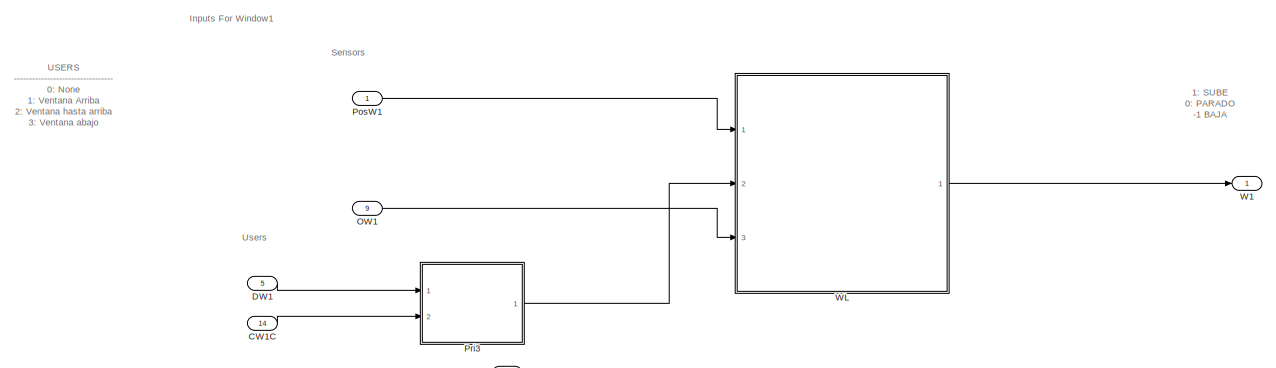
[diagram: M005/Cyber - part 1/3, full width, top band]
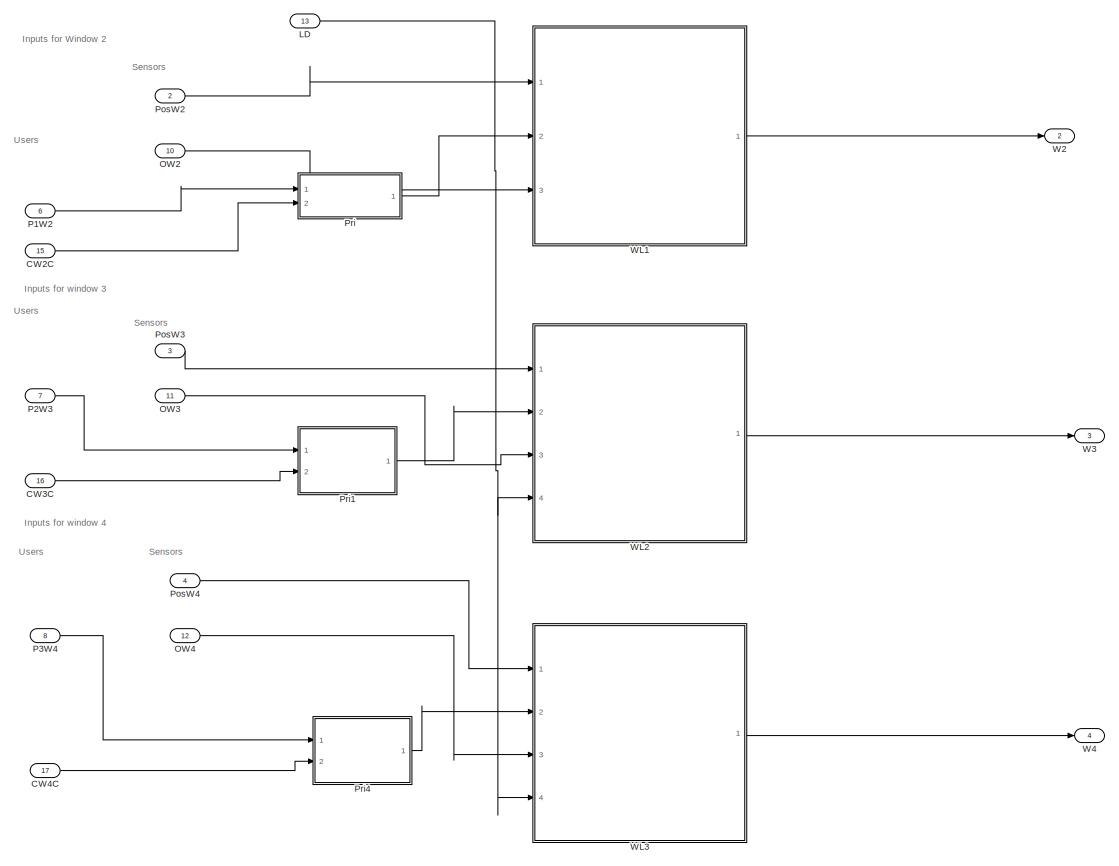
[diagram: M005/Cyber - part 2/3, full width, middle band]
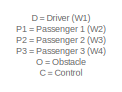
[diagram: M005/Cyber - part 3/3, middle left region]
BLOCK [SubSystem] M005/Cyber
  Ports = [17, 4]
  RequestExecContextInheritance = off
BLOCK [Inport] M005/Cyber/CW1C
  IconDisplay = Port number
  Port = 14
BLOCK [Inport] M005/Cyber/CW2C
  IconDisplay = Port number
  Port = 15
BLOCK [Inport] M005/Cyber/CW3C
  IconDisplay = Port number
  Port = 16
BLOCK [Inport] M005/Cyber/CW4C
  IconDisplay = Port number
  Port = 17
BLOCK [Inport] M005/Cyber/DW1
  IconDisplay = Port number
  Port = 5
BLOCK [Inport] M005/Cyber/LD
  IconDisplay = Port number
  Port = 13
BLOCK [Inport] M005/Cyber/OW1
  IconDisplay = Port number
  Port = 9
BLOCK [Inport] M005/Cyber/OW2
  IconDisplay = Port number
  Port = 10
BLOCK [Inport] M005/Cyber/OW3
  IconDisplay = Port number
  Port = 11
BLOCK [Inport] M005/Cyber/OW4
  IconDisplay = Port number
  Port = 12
BLOCK [Inport] M005/Cyber/P1W2
  IconDisplay = Port number
  Port = 6
BLOCK [Inport] M005/Cyber/P2W3
  IconDisplay = Port number
  Port = 7
BLOCK [Inport] M005/Cyber/P3W4
  IconDisplay = Port number
  Port = 8
BLOCK [Inport] M005/Cyber/PosW1
  IconDisplay = Port number
BLOCK [Inport] M005/Cyber/PosW2
  IconDisplay = Port number
  Port = 2
BLOCK [Inport] M005/Cyber/PosW3
  IconDisplay = Port number
  Port = 3
BLOCK [Inport] M005/Cyber/PosW4
  IconDisplay = Port number
  Port = 4
BLOCK [SubSystem] M005/Cyber/Pri
  Ports = [2, 1]
  RequestExecContextInheritance = off
BLOCK [Inport] M005/Cyber/Pri/CW2C
  IconDisplay = Port number
  Port = 2
BLOCK [Inport] M005/Cyber/Pri/P
  IconDisplay = Port number
BLOCK [Switch] M005/Cyber/Pri/Switch1
  Criteria = u2 > Threshold
  InputSameDT = off
  SaturateOnIntegerOverflow = off
  Threshold = 4
BLOCK [Outport] M005/Cyber/Pri/User
  IconDisplay = Port number
BLOCK [SubSystem] M005/Cyber/Pri1
  Ports = [2, 1]
  RequestExecContextInheritance = off
BLOCK [Inport] M005/Cyber/Pri1/CW3C
  IconDisplay = Port number
  Port = 2
BLOCK [Inport] M005/Cyber/Pri1/P
  IconDisplay = Port number
BLOCK [Switch] M005/Cyber/Pri1/Switch1
  Criteria = u2 ~= 0
  InputSameDT = off
  SaturateOnIntegerOverflow = off
BLOCK [Outport] M005/Cyber/Pri1/User
  IconDisplay = Port number
BLOCK [SubSystem] M005/Cyber/Pri3
  Ports = [2, 1]
  RequestExecContextInheritance = off
BLOCK [Inport] M005/Cyber/Pri3/CW1C
  IconDisplay = Port number
  Port = 2
BLOCK [Inport] M005/Cyber/Pri3/D
  IconDisplay = Port number
BLOCK [Switch] M005/Cyber/Pri3/Switch
  Criteria = u2 ~= 0
  InputSameDT = off
  SaturateOnIntegerOverflow = off
BLOCK [Outport] M005/Cyber/Pri3/User
  IconDisplay = Port number
BLOCK [SubSystem] M005/Cyber/Pri4
  Ports = [2, 1]
  RequestExecContextInheritance = off
BLOCK [Inport] M005/Cyber/Pri4/CW4C
  IconDisplay = Port number
  Port = 2
BLOCK [Inport] M005/Cyber/Pri4/P
  IconDisplay = Port number
BLOCK [Switch] M005/Cyber/Pri4/Switch1
  Criteria = u2 ~= 0
  InputSameDT = off
  SaturateOnIntegerOverflow = off
BLOCK [Outport] M005/Cyber/Pri4/User
  IconDisplay = Port number
BLOCK [Outport] M005/Cyber/W1
  IconDisplay = Port number
BLOCK [Outport] M005/Cyber/W2
  IconDisplay = Port number
  Port = 2
BLOCK [Outport] M005/Cyber/W3
  IconDisplay = Port number
  Port = 3
BLOCK [Outport] M005/Cyber/W4
  IconDisplay = Port number
  Port = 4
BLOCK [SubSystem] M005/Cyber/WL
  Ports = [3, 1]
  RequestExecContextInheritance = off
BLOCK [SubSystem] M005/Cyber/WL/Chart
  ErrorFcn = Stateflow.Translate.translate
  PermitHierarchicalResolution = ExplicitOnly
  Ports = [2, 1]
  RequestExecContextInheritance = off
  SFBlockType = Chart
  TreatAsAtomicUnit = on
BLOCK [Demux] M005/Cyber/WL/Chart/ Demux 
  Outputs = 1
  Ports = [1, 1]
BLOCK [S-Function] M005/Cyber/WL/Chart/ SFunction 
  EnableBusSupport = off
  FunctionName = sf_sfun
  PortCounts = [2 2]
  Ports = [2, 2]
  SFcnIsStateOwnerBlock = off
  SFunctionDeploymentMode = off
  Tag = Stateflow S-Function c00015M_harness 21
BLOCK [Terminator] M005/Cyber/WL/Chart/ Terminator 
BLOCK [Inport] M005/Cyber/WL/Chart/S
  IconDisplay = Port number
BLOCK [Inport] M005/Cyber/WL/Chart/UI
  IconDisplay = Port number
  Port = 2
BLOCK [Outport] M005/Cyber/WL/Chart/W
  IconDisplay = Port number
BLOCK [Constant] M005/Cyber/WL/Constant
  Value = -1
BLOCK [DataTypeConversion] M005/Cyber/WL/Data Type Conversion
  RndMeth = Floor
  SaturateOnIntegerOverflow = off
BLOCK [Inport] M005/Cyber/WL/OW
  IconDisplay = Port number
  Port = 3
BLOCK [Switch] M005/Cyber/WL/Switch
  Criteria = u2 ~= 0
  InputSameDT = off
  SaturateOnIntegerOverflow = off
  Threshold = 1
  ZeroCross = off
BLOCK [Inport] M005/Cyber/WL/User
  IconDisplay = Port number
  Port = 2
BLOCK [Inport] M005/Cyber/WL/WPos
  IconDisplay = Port number
BLOCK [Outport] M005/Cyber/WL/WindowLogicOutput
  IconDisplay = Port number
BLOCK [SubSystem] M005/Cyber/WL1
  Ports = [3, 1]
  RequestExecContextInheritance = off
BLOCK [SubSystem] M005/Cyber/WL1/Chart1
  ErrorFcn = Stateflow.Translate.translate
  PermitHierarchicalResolution = ExplicitOnly
  Ports = [2, 1]
  RequestExecContextInheritance = off
  SFBlockType = Chart
  TreatAsAtomicUnit = on
BLOCK [Demux] M005/Cyber/WL1/Chart1/ Demux 
  Outputs = 1
  Ports = [1, 1]
BLOCK [S-Function] M005/Cyber/WL1/Chart1/ SFunction 
  EnableBusSupport = off
  FunctionName = sf_sfun
  PortCounts = [2 2]
  Ports = [2, 2]
  SFcnIsStateOwnerBlock = off
  SFunctionDeploymentMode = off
  Tag = Stateflow S-Function c00015M_harness 22
BLOCK [Terminator] M005/Cyber/WL1/Chart1/ Terminator 
BLOCK [Inport] M005/Cyber/WL1/Chart1/S
  IconDisplay = Port number
BLOCK [Inport] M005/Cyber/WL1/Chart1/UI
  IconDisplay = Port number
  Port = 2
BLOCK [Outport] M005/Cyber/WL1/Chart1/W
  IconDisplay = Port number
BLOCK [Constant] M005/Cyber/WL1/Constant
  Value = -1
BLOCK [DataTypeConversion] M005/Cyber/WL1/Data Type Conversion
  RndMeth = Floor
  SaturateOnIntegerOverflow = off
BLOCK [Inport] M005/Cyber/WL1/OW
  IconDisplay = Port number
  Port = 3
BLOCK [Switch] M005/Cyber/WL1/Switch
  Criteria = u2 ~= 0
  InputSameDT = off
  SaturateOnIntegerOverflow = off
  Threshold = 1
  ZeroCross = off
BLOCK [Inport] M005/Cyber/WL1/User
  IconDisplay = Port number
  Port = 2
BLOCK [Inport] M005/Cyber/WL1/WPos
  IconDisplay = Port number
BLOCK [Outport] M005/Cyber/WL1/WindowLogicOutput
  IconDisplay = Port number
BLOCK [SubSystem] M005/Cyber/WL2
  Ports = [4, 1]
  RequestExecContextInheritance = off
BLOCK [SubSystem] M005/Cyber/WL2/Chart1
  ErrorFcn = Stateflow.Translate.translate
  PermitHierarchicalResolution = ExplicitOnly
  Ports = [3, 1]
  RequestExecContextInheritance = off
  SFBlockType = Chart
  TreatAsAtomicUnit = on
BLOCK [Demux] M005/Cyber/WL2/Chart1/ Demux 
  Outputs = 1
  Ports = [1, 1]
BLOCK [S-Function] M005/Cyber/WL2/Chart1/ SFunction 
  EnableBusSupport = off
  FunctionName = sf_sfun
  PortCounts = [3 2]
  Ports = [3, 2]
  SFcnIsStateOwnerBlock = off
  SFunctionDeploymentMode = off
  Tag = Stateflow S-Function c00015M_harness 23
BLOCK [Terminator] M005/Cyber/WL2/Chart1/ Terminator 
BLOCK [Inport] M005/Cyber/WL2/Chart1/PosMinW3
  IconDisplay = Port number
  Port = 3
BLOCK [Inport] M005/Cyber/WL2/Chart1/S
  IconDisplay = Port number
BLOCK [Inport] M005/Cyber/WL2/Chart1/UI
  IconDisplay = Port number
  Port = 2
BLOCK [Outport] M005/Cyber/WL2/Chart1/W
  IconDisplay = Port number
BLOCK [Constant] M005/Cyber/WL2/Constant
  Value = -1
BLOCK [Constant] M005/Cyber/WL2/Constant1
  Value = 0
BLOCK [Constant] M005/Cyber/WL2/Constant2
  Value = PosMinimaW3
BLOCK [DataTypeConversion] M005/Cyber/WL2/Data Type Conversion
  RndMeth = Floor
  SaturateOnIntegerOverflow = off
BLOCK [Inport] M005/Cyber/WL2/L
  IconDisplay = Port number
  Port = 4
BLOCK [Inport] M005/Cyber/WL2/OW
  IconDisplay = Port number
  Port = 3
BLOCK [Switch] M005/Cyber/WL2/Switch
  Criteria = u2 ~= 0
  InputSameDT = off
  SaturateOnIntegerOverflow = off
  Threshold = 1
  ZeroCross = off
BLOCK [Switch] M005/Cyber/WL2/Switch1
  Criteria = u2 ~= 0
  InputSameDT = off
  SaturateOnIntegerOverflow = off
BLOCK [Inport] M005/Cyber/WL2/User
  IconDisplay = Port number
  Port = 2
BLOCK [Inport] M005/Cyber/WL2/WPos
  IconDisplay = Port number
BLOCK [Outport] M005/Cyber/WL2/WindowLogicOutput
  IconDisplay = Port number
BLOCK [SubSystem] M005/Cyber/WL3
  Ports = [4, 1]
  RequestExecContextInheritance = off
BLOCK [SubSystem] M005/Cyber/WL3/Chart2
  ErrorFcn = Stateflow.Translate.translate
  PermitHierarchicalResolution = ExplicitOnly
  Ports = [3, 1]
  RequestExecContextInheritance = off
  SFBlockType = Chart
  TreatAsAtomicUnit = on
BLOCK [Demux] M005/Cyber/WL3/Chart2/ Demux 
  Outputs = 1
  Ports = [1, 1]
BLOCK [S-Function] M005/Cyber/WL3/Chart2/ SFunction 
  EnableBusSupport = off
  FunctionName = sf_sfun
  PortCounts = [3 2]
  Ports = [3, 2]
  SFcnIsStateOwnerBlock = off
  SFunctionDeploymentMode = off
  Tag = Stateflow S-Function c00015M_harness 24
BLOCK [Terminator] M005/Cyber/WL3/Chart2/ Terminator 
BLOCK [Inport] M005/Cyber/WL3/Chart2/PosMinW4
  IconDisplay = Port number
  Port = 3
BLOCK [Inport] M005/Cyber/WL3/Chart2/S
  IconDisplay = Port number
BLOCK [Inport] M005/Cyber/WL3/Chart2/UI
  IconDisplay = Port number
  Port = 2
BLOCK [Outport] M005/Cyber/WL3/Chart2/W
  IconDisplay = Port number
BLOCK [Constant] M005/Cyber/WL3/Constant
  Value = -1
BLOCK [Constant] M005/Cyber/WL3/Constant1
  Value = 0
BLOCK [Constant] M005/Cyber/WL3/Constant2
  Value = PosMinimaW4
BLOCK [DataTypeConversion] M005/Cyber/WL3/Data Type Conversion
  RndMeth = Floor
  SaturateOnIntegerOverflow = off
BLOCK [Inport] M005/Cyber/WL3/L
  IconDisplay = Port number
  Port = 4
BLOCK [Inport] M005/Cyber/WL3/OW
  IconDisplay = Port number
  Port = 3
BLOCK [Switch] M005/Cyber/WL3/Switch
  Criteria = u2 ~= 0
  InputSameDT = off
  SaturateOnIntegerOverflow = off
  Threshold = 1
  ZeroCross = off
BLOCK [Switch] M005/Cyber/WL3/Switch1
  Criteria = u2 ~= 0
  InputSameDT = off
  SaturateOnIntegerOverflow = off
BLOCK [Inport] M005/Cyber/WL3/User
  IconDisplay = Port number
  Port = 2
BLOCK [Inport] M005/Cyber/WL3/WPos
  IconDisplay = Port number
BLOCK [Outport] M005/Cyber/WL3/WindowLogicOutput
  IconDisplay = Port number
BLOCK [Inport] M005/DW1
  IconDisplay = Port number
  OutDataTypeStr = int8
  OutMax = 4
  OutMin = 0
BLOCK [Inport] M005/LD
  IconDisplay = Port number
  OutDataTypeStr = boolean
  Port = 9
BLOCK [Memory] M005/M
BLOCK [Memory] M005/M1
BLOCK [Memory] M005/M2
BLOCK [Memory] M005/M3
BLOCK [Inport] M005/O1
  IconDisplay = Port number
  OutDataTypeStr = boolean
  Port = 5
BLOCK [Inport] M005/O2
  IconDisplay = Port number
  OutDataTypeStr = boolean
  Port = 6
BLOCK [Inport] M005/O3
  IconDisplay = Port number
  OutDataTypeStr = boolean
  Port = 7
BLOCK [Inport] M005/O4
  IconDisplay = Port number
  OutDataTypeStr = boolean
  Port = 8
BLOCK [Inport] M005/P1W2
  IconDisplay = Port number
  OutDataTypeStr = int8
  OutMax = 4
  OutMin = 0
  Port = 2
BLOCK [Inport] M005/P2W3
  IconDisplay = Port number
  OutDataTypeStr = int8
  OutMax = 4
  OutMin = 0
  Port = 3
BLOCK [Inport] M005/P3W4
  IconDisplay = Port number
  OutDataTypeStr = int8
  OutMax = 4
  OutMin = 0
  Port = 4
BLOCK [SubSystem] M005/Physical
  Ports = [4, 4]
  RequestExecContextInheritance = off
BLOCK [Inport] M005/Physical/InW1
  IconDisplay = Port number
BLOCK [Inport] M005/Physical/InW2
  IconDisplay = Port number
  Port = 2
BLOCK [Inport] M005/Physical/InW3
  IconDisplay = Port number
  Port = 3
BLOCK [Inport] M005/Physical/InW4
  IconDisplay = Port number
  Port = 4
BLOCK [SubSystem] M005/Physical/W
  Ports = [1, 1]
  RequestExecContextInheritance = off
BLOCK [SubSystem] M005/Physical/W/DC_Engine
  Ports = [1, 1]
  RequestExecContextInheritance = off
BLOCK [Gain] M005/Physical/W/DC_Engine/(Inductance)
  Gain = 1/L
  OutDataTypeStr = Inherit: Inherit via internal rule
  ParamDataTypeStr = Inherit: Inherit via internal rule
  SaturateOnIntegerOverflow = off
BLOCK [Gain] M005/Physical/W/DC_Engine/(Inductance)1
  Gain = 1/J
  OutDataTypeStr = Inherit: Inherit via internal rule
  ParamDataTypeStr = Inherit: Inherit via internal rule
  SaturateOnIntegerOverflow = off
BLOCK [Sum] M005/Physical/W/DC_Engine/Add
  InputSameDT = off
  Inputs = -+-
  OutDataTypeStr = Inherit: Inherit via internal rule
  Ports = [3, 1]
  SaturateOnIntegerOverflow = off
BLOCK [Sum] M005/Physical/W/DC_Engine/Add1
  InputSameDT = off
  Inputs = +-
  OutDataTypeStr = Inherit: Inherit via internal rule
  Ports = [2, 1]
  SaturateOnIntegerOverflow = off
BLOCK [Gain] M005/Physical/W/DC_Engine/Damping
  Gain = b
  OutDataTypeStr = Inherit: Inherit via internal rule
  ParamDataTypeStr = Inherit: Inherit via internal rule
  SaturateOnIntegerOverflow = off
BLOCK [DiscreteIntegrator] M005/Physical/W/DC_Engine/Discrete-Time Integrator
  ICPrevOutput = DiscIntNeverNeededParam
  ICPrevScaledInput = DiscIntNeverNeededParam
  Ports = [1, 1]
  SampleTime = -1
BLOCK [DiscreteIntegrator] M005/Physical/W/DC_Engine/Discrete-Time Integrator1
  ICPrevOutput = DiscIntNeverNeededParam
  ICPrevScaledInput = DiscIntNeverNeededParam
  Ports = [1, 1]
  SampleTime = -1
BLOCK [Gain] M005/Physical/W/DC_Engine/Ke
  Gain = K
  OutDataTypeStr = Inherit: Inherit via internal rule
  ParamDataTypeStr = Inherit: Inherit via internal rule
  SaturateOnIntegerOverflow = off
BLOCK [Gain] M005/Physical/W/DC_Engine/Kt
  Gain = K
  OutDataTypeStr = Inherit: Inherit via internal rule
  ParamDataTypeStr = Inherit: Inherit via internal rule
  SaturateOnIntegerOverflow = off
BLOCK [Gain] M005/Physical/W/DC_Engine/Resistance
  Gain = R
  OutDataTypeStr = Inherit: Inherit via internal rule
  ParamDataTypeStr = Inherit: Inherit via internal rule
  SaturateOnIntegerOverflow = off
BLOCK [Outport] M005/Physical/W/DC_Engine/Speed
  IconDisplay = Port number
BLOCK [Gain] M005/Physical/W/DC_Engine/Voltage
  Gain = 10
  OutDataTypeStr = Inherit: Inherit via internal rule
  ParamDataTypeStr = Inherit: Inherit via internal rule
  SaturateOnIntegerOverflow = off
BLOCK [Inport] M005/Physical/W/DC_Engine/input
  IconDisplay = Port number
BLOCK [DiscreteIntegrator] M005/Physical/W/Discrete-Time Integrator
  ICPrevOutput = DiscIntNeverNeededParam
  ICPrevScaledInput = DiscIntNeverNeededParam
  InitialCondition = 5
  LimitOutput = on
  LowerSaturationLimit = 0
  Ports = [1, 1]
  SampleTime = -1
  UpperSaturationLimit = 5
BLOCK [Inport] M005/Physical/W/WIn
  IconDisplay = Port number
BLOCK [Outport] M005/Physical/W/WPos
  IconDisplay = Port number
BLOCK [Outport] M005/Physical/W1
  IconDisplay = Port number
BLOCK [Outport] M005/Physical/W2
  IconDisplay = Port number
  Port = 2
BLOCK [Outport] M005/Physical/W3
  IconDisplay = Port number
  Port = 3
BLOCK [Outport] M005/Physical/W4
  IconDisplay = Port number
  Port = 4
BLOCK [SubSystem] M005/Physical/W5
  Ports = [1, 1]
  RequestExecContextInheritance = off
BLOCK [SubSystem] M005/Physical/W5/DC_Engine
  Ports = [1, 1]
  RequestExecContextInheritance = off
BLOCK [Gain] M005/Physical/W5/DC_Engine/(Inductance)
  Gain = 1/L
  OutDataTypeStr = Inherit: Inherit via internal rule
  ParamDataTypeStr = Inherit: Inherit via internal rule
  SaturateOnIntegerOverflow = off
BLOCK [Gain] M005/Physical/W5/DC_Engine/(Inductance)1
  Gain = 1/J
  OutDataTypeStr = Inherit: Inherit via internal rule
  ParamDataTypeStr = Inherit: Inherit via internal rule
  SaturateOnIntegerOverflow = off
BLOCK [Sum] M005/Physical/W5/DC_Engine/Add
  InputSameDT = off
  Inputs = -+-
  OutDataTypeStr = Inherit: Inherit via internal rule
  Ports = [3, 1]
  SaturateOnIntegerOverflow = off
BLOCK [Sum] M005/Physical/W5/DC_Engine/Add1
  InputSameDT = off
  Inputs = +-
  OutDataTypeStr = Inherit: Inherit via internal rule
  Ports = [2, 1]
  SaturateOnIntegerOverflow = off
BLOCK [Gain] M005/Physical/W5/DC_Engine/Damping
  Gain = b
  OutDataTypeStr = Inherit: Inherit via internal rule
  ParamDataTypeStr = Inherit: Inherit via internal rule
  SaturateOnIntegerOverflow = off
BLOCK [DiscreteIntegrator] M005/Physical/W5/DC_Engine/Discrete-Time Integrator
  ICPrevOutput = DiscIntNeverNeededParam
  ICPrevScaledInput = DiscIntNeverNeededParam
  Ports = [1, 1]
  SampleTime = -1
BLOCK [DiscreteIntegrator] M005/Physical/W5/DC_Engine/Discrete-Time Integrator1
  ICPrevOutput = DiscIntNeverNeededParam
  ICPrevScaledInput = DiscIntNeverNeededParam
  Ports = [1, 1]
  SampleTime = -1
BLOCK [Gain] M005/Physical/W5/DC_Engine/Ke
  Gain = K
  OutDataTypeStr = Inherit: Inherit via internal rule
  ParamDataTypeStr = Inherit: Inherit via internal rule
  SaturateOnIntegerOverflow = off
BLOCK [Gain] M005/Physical/W5/DC_Engine/Kt
  Gain = K
  OutDataTypeStr = Inherit: Inherit via internal rule
  ParamDataTypeStr = Inherit: Inherit via internal rule
  SaturateOnIntegerOverflow = off
BLOCK [Gain] M005/Physical/W5/DC_Engine/Resistance
  Gain = R
  OutDataTypeStr = Inherit: Inherit via internal rule
  ParamDataTypeStr = Inherit: Inherit via internal rule
  SaturateOnIntegerOverflow = off
BLOCK [Outport] M005/Physical/W5/DC_Engine/Speed
  IconDisplay = Port number
BLOCK [Gain] M005/Physical/W5/DC_Engine/Voltage
  Gain = 10
  OutDataTypeStr = Inherit: Inherit via internal rule
  ParamDataTypeStr = Inherit: Inherit via internal rule
  SaturateOnIntegerOverflow = off
BLOCK [Inport] M005/Physical/W5/DC_Engine/input
  IconDisplay = Port number
BLOCK [DiscreteIntegrator] M005/Physical/W5/Discrete-Time Integrator
  ICPrevOutput = DiscIntNeverNeededParam
  ICPrevScaledInput = DiscIntNeverNeededParam
  InitialCondition = 5
  LimitOutput = on
  LowerSaturationLimit = 0
  Ports = [1, 1]
  SampleTime = -1
  UpperSaturationLimit = 5
BLOCK [Inport] M005/Physical/W5/WIn
  IconDisplay = Port number
BLOCK [Outport] M005/Physical/W5/WPos
  IconDisplay = Port number
BLOCK [SubSystem] M005/Physical/W6
  Ports = [1, 1]
  RequestExecContextInheritance = off
BLOCK [SubSystem] M005/Physical/W6/DC_Engine
  Ports = [1, 1]
  RequestExecContextInheritance = off
BLOCK [Gain] M005/Physical/W6/DC_Engine/(Inductance)
  Gain = 1/L
  OutDataTypeStr = Inherit: Inherit via internal rule
  ParamDataTypeStr = Inherit: Inherit via internal rule
  SaturateOnIntegerOverflow = off
BLOCK [Gain] M005/Physical/W6/DC_Engine/(Inductance)1
  Gain = 1/J
  OutDataTypeStr = Inherit: Inherit via internal rule
  ParamDataTypeStr = Inherit: Inherit via internal rule
  SaturateOnIntegerOverflow = off
BLOCK [Sum] M005/Physical/W6/DC_Engine/Add
  InputSameDT = off
  Inputs = -+-
  OutDataTypeStr = Inherit: Inherit via internal rule
  Ports = [3, 1]
  SaturateOnIntegerOverflow = off
BLOCK [Sum] M005/Physical/W6/DC_Engine/Add1
  InputSameDT = off
  Inputs = +-
  OutDataTypeStr = Inherit: Inherit via internal rule
  Ports = [2, 1]
  SaturateOnIntegerOverflow = off
BLOCK [Gain] M005/Physical/W6/DC_Engine/Damping
  Gain = b
  OutDataTypeStr = Inherit: Inherit via internal rule
  ParamDataTypeStr = Inherit: Inherit via internal rule
  SaturateOnIntegerOverflow = off
BLOCK [DiscreteIntegrator] M005/Physical/W6/DC_Engine/Discrete-Time Integrator
  ICPrevOutput = DiscIntNeverNeededParam
  ICPrevScaledInput = DiscIntNeverNeededParam
  Ports = [1, 1]
  SampleTime = -1
BLOCK [DiscreteIntegrator] M005/Physical/W6/DC_Engine/Discrete-Time Integrator1
  ICPrevOutput = DiscIntNeverNeededParam
  ICPrevScaledInput = DiscIntNeverNeededParam
  Ports = [1, 1]
  SampleTime = -1
BLOCK [Gain] M005/Physical/W6/DC_Engine/Ke
  Gain = K
  OutDataTypeStr = Inherit: Inherit via internal rule
  ParamDataTypeStr = Inherit: Inherit via internal rule
  SaturateOnIntegerOverflow = off
BLOCK [Gain] M005/Physical/W6/DC_Engine/Kt
  Gain = K
  OutDataTypeStr = Inherit: Inherit via internal rule
  ParamDataTypeStr = Inherit: Inherit via internal rule
  SaturateOnIntegerOverflow = off
BLOCK [Gain] M005/Physical/W6/DC_Engine/Resistance
  Gain = R
  OutDataTypeStr = Inherit: Inherit via internal rule
  ParamDataTypeStr = Inherit: Inherit via internal rule
  SaturateOnIntegerOverflow = off
BLOCK [Outport] M005/Physical/W6/DC_Engine/Speed
  IconDisplay = Port number
BLOCK [Gain] M005/Physical/W6/DC_Engine/Voltage
  Gain = 10
  OutDataTypeStr = Inherit: Inherit via internal rule
  ParamDataTypeStr = Inherit: Inherit via internal rule
  SaturateOnIntegerOverflow = off
BLOCK [Inport] M005/Physical/W6/DC_Engine/input
  IconDisplay = Port number
BLOCK [DiscreteIntegrator] M005/Physical/W6/Discrete-Time Integrator
  ICPrevOutput = DiscIntNeverNeededParam
  ICPrevScaledInput = DiscIntNeverNeededParam
  InitialCondition = 5
  LimitOutput = on
  LowerSaturationLimit = PosMinimaW3
  Ports = [1, 1]
  SampleTime = -1
  UpperSaturationLimit = 5
BLOCK [Inport] M005/Physical/W6/WIn
  IconDisplay = Port number
BLOCK [Outport] M005/Physical/W6/WPos
  IconDisplay = Port number
BLOCK [SubSystem] M005/Physical/W7
  Ports = [1, 1]
  RequestExecContextInheritance = off
BLOCK [SubSystem] M005/Physical/W7/DC_Engine
  Ports = [1, 1]
  RequestExecContextInheritance = off
BLOCK [Gain] M005/Physical/W7/DC_Engine/(Inductance)
  Gain = 1/L
  OutDataTypeStr = Inherit: Inherit via internal rule
  ParamDataTypeStr = Inherit: Inherit via internal rule
  SaturateOnIntegerOverflow = off
BLOCK [Gain] M005/Physical/W7/DC_Engine/(Inductance)1
  Gain = 1/J
  OutDataTypeStr = Inherit: Inherit via internal rule
  ParamDataTypeStr = Inherit: Inherit via internal rule
  SaturateOnIntegerOverflow = off
BLOCK [Sum] M005/Physical/W7/DC_Engine/Add
  InputSameDT = off
  Inputs = -+-
  OutDataTypeStr = Inherit: Inherit via internal rule
  Ports = [3, 1]
  SaturateOnIntegerOverflow = off
BLOCK [Sum] M005/Physical/W7/DC_Engine/Add1
  InputSameDT = off
  Inputs = +-
  OutDataTypeStr = Inherit: Inherit via internal rule
  Ports = [2, 1]
  SaturateOnIntegerOverflow = off
BLOCK [Gain] M005/Physical/W7/DC_Engine/Damping
  Gain = b
  OutDataTypeStr = Inherit: Inherit via internal rule
  ParamDataTypeStr = Inherit: Inherit via internal rule
  SaturateOnIntegerOverflow = off
BLOCK [DiscreteIntegrator] M005/Physical/W7/DC_Engine/Discrete-Time Integrator
  ICPrevOutput = DiscIntNeverNeededParam
  ICPrevScaledInput = DiscIntNeverNeededParam
  Ports = [1, 1]
  SampleTime = -1
BLOCK [DiscreteIntegrator] M005/Physical/W7/DC_Engine/Discrete-Time Integrator1
  ICPrevOutput = DiscIntNeverNeededParam
  ICPrevScaledInput = DiscIntNeverNeededParam
  Ports = [1, 1]
  SampleTime = -1
BLOCK [Gain] M005/Physical/W7/DC_Engine/Ke
  Gain = K
  OutDataTypeStr = Inherit: Inherit via internal rule
  ParamDataTypeStr = Inherit: Inherit via internal rule
  SaturateOnIntegerOverflow = off
BLOCK [Gain] M005/Physical/W7/DC_Engine/Kt
  Gain = K
  OutDataTypeStr = Inherit: Inherit via internal rule
  ParamDataTypeStr = Inherit: Inherit via internal rule
  SaturateOnIntegerOverflow = off
BLOCK [Gain] M005/Physical/W7/DC_Engine/Resistance
  Gain = R
  OutDataTypeStr = Inherit: Inherit via internal rule
  ParamDataTypeStr = Inherit: Inherit via internal rule
  SaturateOnIntegerOverflow = off
BLOCK [Outport] M005/Physical/W7/DC_Engine/Speed
  IconDisplay = Port number
BLOCK [Gain] M005/Physical/W7/DC_Engine/Voltage
  Gain = 10
  OutDataTypeStr = Inherit: Inherit via internal rule
  ParamDataTypeStr = Inherit: Inherit via internal rule
  SaturateOnIntegerOverflow = off
BLOCK [Inport] M005/Physical/W7/DC_Engine/input
  IconDisplay = Port number
BLOCK [DiscreteIntegrator] M005/Physical/W7/Discrete-Time Integrator
  ICPrevOutput = DiscIntNeverNeededParam
  ICPrevScaledInput = DiscIntNeverNeededParam
  InitialCondition = 5
  LimitOutput = on
  LowerSaturationLimit = PosMinimaW4
  Ports = [1, 1]
  SampleTime = -1
  UpperSaturationLimit = 5
BLOCK [Inport] M005/Physical/W7/WIn
  IconDisplay = Port number
BLOCK [Outport] M005/Physical/W7/WPos
  IconDisplay = Port number
BLOCK [SubSystem] M005/S1
  Ports = [1, 1]
  RequestExecContextInheritance = off
BLOCK [Inport] M005/S1/PhyMeasure
  IconDisplay = Port number
BLOCK [Outport] M005/S1/SensorOut
  IconDisplay = Port number
BLOCK [SubSystem] M005/S2
  Ports = [1, 1]
  RequestExecContextInheritance = off
BLOCK [Inport] M005/S2/PhyMeasure
  IconDisplay = Port number
BLOCK [Outport] M005/S2/SensorOut
  IconDisplay = Port number
BLOCK [SubSystem] M005/S3
  Ports = [1, 1]
  RequestExecContextInheritance = off
BLOCK [Inport] M005/S3/PhyMeasure
  IconDisplay = Port number
BLOCK [Outport] M005/S3/SensorOut
  IconDisplay = Port number
BLOCK [SubSystem] M005/S4
  Ports = [1, 1]
  RequestExecContextInheritance = off
BLOCK [Inport] M005/S4/PhyMeasure
  IconDisplay = Port number
BLOCK [Outport] M005/S4/SensorOut
  IconDisplay = Port number
BLOCK [Outport] M005/W1Pos
  IconDisplay = Port number
BLOCK [Outport] M005/W2Pos
  IconDisplay = Port number
  Port = 2
BLOCK [Outport] M005/W3Pos
  IconDisplay = Port number
  Port = 3
BLOCK [Outport] M005/W4Pos
  IconDisplay = Port number
  Port = 4
BLOCK [SubSystem] M009
  Ports = [13, 4]
  RequestExecContextInheritance = off
BLOCK [Inport] M009/CW1C
  IconDisplay = Port number
  OutDataTypeStr = int8
  OutMax = 4
  OutMin = 0
  Port = 10
BLOCK [Inport] M009/CW2C
  IconDisplay = Port number
  OutDataTypeStr = int8
  OutMax = 4
  OutMin = 0
  Port = 11
BLOCK [Inport] M009/CW3C
  IconDisplay = Port number
  OutDataTypeStr = int8
  OutMax = 4
  OutMin = 0
  Port = 12
BLOCK [Inport] M009/CW4C
  IconDisplay = Port number
  OutDataTypeStr = int8
  OutMax = 4
  OutMin = 0
  Port = 13
BLOCK [SubSystem] M009/Cyber
  Ports = [17, 4]
  RequestExecContextInheritance = off
BLOCK [Inport] M009/Cyber/CW1C
  IconDisplay = Port number
  Port = 14
BLOCK [Inport] M009/Cyber/CW2C
  IconDisplay = Port number
  Port = 15
BLOCK [Inport] M009/Cyber/CW3C
  IconDisplay = Port number
  Port = 16
BLOCK [Inport] M009/Cyber/CW4C
  IconDisplay = Port number
  Port = 17
BLOCK [Inport] M009/Cyber/DW1
  IconDisplay = Port number
  Port = 5
BLOCK [Inport] M009/Cyber/LD
  IconDisplay = Port number
  Port = 13
BLOCK [Inport] M009/Cyber/OW1
  IconDisplay = Port number
  Port = 9
BLOCK [Inport] M009/Cyber/OW2
  IconDisplay = Port number
  Port = 10
BLOCK [Inport] M009/Cyber/OW3
  IconDisplay = Port number
  Port = 11
BLOCK [Inport] M009/Cyber/OW4
  IconDisplay = Port number
  Port = 12
BLOCK [Inport] M009/Cyber/P1W2
  IconDisplay = Port number
  Port = 6
BLOCK [Inport] M009/Cyber/P2W3
  IconDisplay = Port number
  Port = 7
BLOCK [Inport] M009/Cyber/P3W4
  IconDisplay = Port number
  Port = 8
BLOCK [Inport] M009/Cyber/PosW1
  IconDisplay = Port number
BLOCK [Inport] M009/Cyber/PosW2
  IconDisplay = Port number
  Port = 2
BLOCK [Inport] M009/Cyber/PosW3
  IconDisplay = Port number
  Port = 3
BLOCK [Inport] M009/Cyber/PosW4
  IconDisplay = Port number
  Port = 4
BLOCK [SubSystem] M009/Cyber/Pri
  Ports = [2, 1]
  RequestExecContextInheritance = off
BLOCK [Inport] M009/Cyber/Pri/CW2C
  IconDisplay = Port number
  Port = 2
BLOCK [Inport] M009/Cyber/Pri/P
  IconDisplay = Port number
BLOCK [Switch] M009/Cyber/Pri/Switch1
  Criteria = u2 ~= 0
  InputSameDT = off
  SaturateOnIntegerOverflow = off
BLOCK [Outport] M009/Cyber/Pri/User
  IconDisplay = Port number
BLOCK [SubSystem] M009/Cyber/Pri1
  Ports = [2, 1]
  RequestExecContextInheritance = off
BLOCK [Inport] M009/Cyber/Pri1/CW3C
  IconDisplay = Port number
  Port = 2
BLOCK [Inport] M009/Cyber/Pri1/P
  IconDisplay = Port number
BLOCK [Switch] M009/Cyber/Pri1/Switch1
  Criteria = u2 > Threshold
  InputSameDT = off
  SaturateOnIntegerOverflow = off
  Threshold = 4
BLOCK [Outport] M009/Cyber/Pri1/User
  IconDisplay = Port number
BLOCK [SubSystem] M009/Cyber/Pri3
  Ports = [2, 1]
  RequestExecContextInheritance = off
BLOCK [Inport] M009/Cyber/Pri3/CW1C
  IconDisplay = Port number
  Port = 2
BLOCK [Inport] M009/Cyber/Pri3/D
  IconDisplay = Port number
BLOCK [Switch] M009/Cyber/Pri3/Switch
  Criteria = u2 ~= 0
  InputSameDT = off
  SaturateOnIntegerOverflow = off
BLOCK [Outport] M009/Cyber/Pri3/User
  IconDisplay = Port number
BLOCK [SubSystem] M009/Cyber/Pri4
  Ports = [2, 1]
  RequestExecContextInheritance = off
BLOCK [Inport] M009/Cyber/Pri4/CW4C
  IconDisplay = Port number
  Port = 2
BLOCK [Inport] M009/Cyber/Pri4/P
  IconDisplay = Port number
BLOCK [Switch] M009/Cyber/Pri4/Switch1
  Criteria = u2 ~= 0
  InputSameDT = off
  SaturateOnIntegerOverflow = off
BLOCK [Outport] M009/Cyber/Pri4/User
  IconDisplay = Port number
BLOCK [Outport] M009/Cyber/W1
  IconDisplay = Port number
BLOCK [Outport] M009/Cyber/W2
  IconDisplay = Port number
  Port = 2
BLOCK [Outport] M009/Cyber/W3
  IconDisplay = Port number
  Port = 3
BLOCK [Outport] M009/Cyber/W4
  IconDisplay = Port number
  Port = 4
BLOCK [SubSystem] M009/Cyber/WL
  Ports = [3, 1]
  RequestExecContextInheritance = off
BLOCK [SubSystem] M009/Cyber/WL/Chart
  ErrorFcn = Stateflow.Translate.translate
  PermitHierarchicalResolution = ExplicitOnly
  Ports = [2, 1]
  RequestExecContextInheritance = off
  SFBlockType = Chart
  TreatAsAtomicUnit = on
BLOCK [Demux] M009/Cyber/WL/Chart/ Demux 
  Outputs = 1
  Ports = [1, 1]
BLOCK [S-Function] M009/Cyber/WL/Chart/ SFunction 
  EnableBusSupport = off
  FunctionName = sf_sfun
  PortCounts = [2 2]
  Ports = [2, 2]
  SFcnIsStateOwnerBlock = off
  SFunctionDeploymentMode = off
  Tag = Stateflow S-Function c00015M_harness 37
BLOCK [Terminator] M009/Cyber/WL/Chart/ Terminator 
BLOCK [Inport] M009/Cyber/WL/Chart/S
  IconDisplay = Port number
BLOCK [Inport] M009/Cyber/WL/Chart/UI
  IconDisplay = Port number
  Port = 2
BLOCK [Outport] M009/Cyber/WL/Chart/W
  IconDisplay = Port number
BLOCK [Constant] M009/Cyber/WL/Constant
  Value = -1
BLOCK [DataTypeConversion] M009/Cyber/WL/Data Type Conversion
  RndMeth = Floor
  SaturateOnIntegerOverflow = off
BLOCK [Inport] M009/Cyber/WL/OW
  IconDisplay = Port number
  Port = 3
BLOCK [Switch] M009/Cyber/WL/Switch
  Criteria = u2 ~= 0
  InputSameDT = off
  SaturateOnIntegerOverflow = off
  Threshold = 1
  ZeroCross = off
BLOCK [Inport] M009/Cyber/WL/User
  IconDisplay = Port number
  Port = 2
BLOCK [Inport] M009/Cyber/WL/WPos
  IconDisplay = Port number
BLOCK [Outport] M009/Cyber/WL/WindowLogicOutput
  IconDisplay = Port number
BLOCK [SubSystem] M009/Cyber/WL1
  Ports = [3, 1]
  RequestExecContextInheritance = off
BLOCK [SubSystem] M009/Cyber/WL1/Chart1
  ErrorFcn = Stateflow.Translate.translate
  PermitHierarchicalResolution = ExplicitOnly
  Ports = [2, 1]
  RequestExecContextInheritance = off
  SFBlockType = Chart
  TreatAsAtomicUnit = on
BLOCK [Demux] M009/Cyber/WL1/Chart1/ Demux 
  Outputs = 1
  Ports = [1, 1]
BLOCK [S-Function] M009/Cyber/WL1/Chart1/ SFunction 
  EnableBusSupport = off
  FunctionName = sf_sfun
  PortCounts = [2 2]
  Ports = [2, 2]
  SFcnIsStateOwnerBlock = off
  SFunctionDeploymentMode = off
  Tag = Stateflow S-Function c00015M_harness 38
BLOCK [Terminator] M009/Cyber/WL1/Chart1/ Terminator 
BLOCK [Inport] M009/Cyber/WL1/Chart1/S
  IconDisplay = Port number
BLOCK [Inport] M009/Cyber/WL1/Chart1/UI
  IconDisplay = Port number
  Port = 2
BLOCK [Outport] M009/Cyber/WL1/Chart1/W
  IconDisplay = Port number
BLOCK [Constant] M009/Cyber/WL1/Constant
  Value = -1
BLOCK [DataTypeConversion] M009/Cyber/WL1/Data Type Conversion
  RndMeth = Floor
  SaturateOnIntegerOverflow = off
BLOCK [Inport] M009/Cyber/WL1/OW
  IconDisplay = Port number
  Port = 3
BLOCK [Switch] M009/Cyber/WL1/Switch
  Criteria = u2 ~= 0
  InputSameDT = off
  SaturateOnIntegerOverflow = off
  Threshold = 1
  ZeroCross = off
BLOCK [Inport] M009/Cyber/WL1/User
  IconDisplay = Port number
  Port = 2
BLOCK [Inport] M009/Cyber/WL1/WPos
  IconDisplay = Port number
BLOCK [Outport] M009/Cyber/WL1/WindowLogicOutput
  IconDisplay = Port number
BLOCK [SubSystem] M009/Cyber/WL2
  Ports = [4, 1]
  RequestExecContextInheritance = off
BLOCK [SubSystem] M009/Cyber/WL2/Chart1
  ErrorFcn = Stateflow.Translate.translate
  PermitHierarchicalResolution = ExplicitOnly
  Ports = [3, 1]
  RequestExecContextInheritance = off
  SFBlockType = Chart
  TreatAsAtomicUnit = on
BLOCK [Demux] M009/Cyber/WL2/Chart1/ Demux 
  Outputs = 1
  Ports = [1, 1]
BLOCK [S-Function] M009/Cyber/WL2/Chart1/ SFunction 
  EnableBusSupport = off
  FunctionName = sf_sfun
  PortCounts = [3 2]
  Ports = [3, 2]
  SFcnIsStateOwnerBlock = off
  SFunctionDeploymentMode = off
  Tag = Stateflow S-Function c00015M_harness 39
BLOCK [Terminator] M009/Cyber/WL2/Chart1/ Terminator 
BLOCK [Inport] M009/Cyber/WL2/Chart1/PosMinW3
  IconDisplay = Port number
  Port = 3
BLOCK [Inport] M009/Cyber/WL2/Chart1/S
  IconDisplay = Port number
BLOCK [Inport] M009/Cyber/WL2/Chart1/UI
  IconDisplay = Port number
  Port = 2
BLOCK [Outport] M009/Cyber/WL2/Chart1/W
  IconDisplay = Port number
BLOCK [Constant] M009/Cyber/WL2/Constant
  Value = -1
BLOCK [Constant] M009/Cyber/WL2/Constant1
  Value = 0
BLOCK [Constant] M009/Cyber/WL2/Constant2
  Value = PosMinimaW3
BLOCK [DataTypeConversion] M009/Cyber/WL2/Data Type Conversion
  RndMeth = Floor
  SaturateOnIntegerOverflow = off
BLOCK [Inport] M009/Cyber/WL2/L
  IconDisplay = Port number
  Port = 4
BLOCK [Inport] M009/Cyber/WL2/OW
  IconDisplay = Port number
  Port = 3
BLOCK [Switch] M009/Cyber/WL2/Switch
  Criteria = u2 ~= 0
  InputSameDT = off
  SaturateOnIntegerOverflow = off
  Threshold = 1
  ZeroCross = off
BLOCK [Switch] M009/Cyber/WL2/Switch1
  Criteria = u2 ~= 0
  InputSameDT = off
  SaturateOnIntegerOverflow = off
BLOCK [Inport] M009/Cyber/WL2/User
  IconDisplay = Port number
  Port = 2
BLOCK [Inport] M009/Cyber/WL2/WPos
  IconDisplay = Port number
BLOCK [Outport] M009/Cyber/WL2/WindowLogicOutput
  IconDisplay = Port number
BLOCK [SubSystem] M009/Cyber/WL3
  Ports = [4, 1]
  RequestExecContextInheritance = off
BLOCK [SubSystem] M009/Cyber/WL3/Chart2
  ErrorFcn = Stateflow.Translate.translate
  PermitHierarchicalResolution = ExplicitOnly
  Ports = [3, 1]
  RequestExecContextInheritance = off
  SFBlockType = Chart
  TreatAsAtomicUnit = on
BLOCK [Demux] M009/Cyber/WL3/Chart2/ Demux 
  Outputs = 1
  Ports = [1, 1]
BLOCK [S-Function] M009/Cyber/WL3/Chart2/ SFunction 
  EnableBusSupport = off
  FunctionName = sf_sfun
  PortCounts = [3 2]
  Ports = [3, 2]
  SFcnIsStateOwnerBlock = off
  SFunctionDeploymentMode = off
  Tag = Stateflow S-Function c00015M_harness 40
BLOCK [Terminator] M009/Cyber/WL3/Chart2/ Terminator 
BLOCK [Inport] M009/Cyber/WL3/Chart2/PosMinW4
  IconDisplay = Port number
  Port = 3
BLOCK [Inport] M009/Cyber/WL3/Chart2/S
  IconDisplay = Port number
BLOCK [Inport] M009/Cyber/WL3/Chart2/UI
  IconDisplay = Port number
  Port = 2
BLOCK [Outport] M009/Cyber/WL3/Chart2/W
  IconDisplay = Port number
BLOCK [Constant] M009/Cyber/WL3/Constant
  Value = -1
BLOCK [Constant] M009/Cyber/WL3/Constant1
  Value = 0
BLOCK [Constant] M009/Cyber/WL3/Constant2
  Value = PosMinimaW4
BLOCK [DataTypeConversion] M009/Cyber/WL3/Data Type Conversion
  RndMeth = Floor
  SaturateOnIntegerOverflow = off
BLOCK [Inport] M009/Cyber/WL3/L
  IconDisplay = Port number
  Port = 4
BLOCK [Inport] M009/Cyber/WL3/OW
  IconDisplay = Port number
  Port = 3
BLOCK [Switch] M009/Cyber/WL3/Switch
  Criteria = u2 ~= 0
  InputSameDT = off
  SaturateOnIntegerOverflow = off
  Threshold = 1
  ZeroCross = off
BLOCK [Switch] M009/Cyber/WL3/Switch1
  Criteria = u2 ~= 0
  InputSameDT = off
  SaturateOnIntegerOverflow = off
BLOCK [Inport] M009/Cyber/WL3/User
  IconDisplay = Port number
  Port = 2
BLOCK [Inport] M009/Cyber/WL3/WPos
  IconDisplay = Port number
BLOCK [Outport] M009/Cyber/WL3/WindowLogicOutput
  IconDisplay = Port number
BLOCK [Inport] M009/DW1
  IconDisplay = Port number
  OutDataTypeStr = int8
  OutMax = 4
  OutMin = 0
BLOCK [Inport] M009/LD
  IconDisplay = Port number
  OutDataTypeStr = boolean
  Port = 9
BLOCK [Memory] M009/M
BLOCK [Memory] M009/M1
BLOCK [Memory] M009/M2
BLOCK [Memory] M009/M3
BLOCK [Inport] M009/O1
  IconDisplay = Port number
  OutDataTypeStr = boolean
  Port = 5
BLOCK [Inport] M009/O2
  IconDisplay = Port number
  OutDataTypeStr = boolean
  Port = 6
BLOCK [Inport] M009/O3
  IconDisplay = Port number
  OutDataTypeStr = boolean
  Port = 7
BLOCK [Inport] M009/O4
  IconDisplay = Port number
  OutDataTypeStr = boolean
  Port = 8
BLOCK [Inport] M009/P1W2
  IconDisplay = Port number
  OutDataTypeStr = int8
  OutMax = 4
  OutMin = 0
  Port = 2
BLOCK [Inport] M009/P2W3
  IconDisplay = Port number
  OutDataTypeStr = int8
  OutMax = 4
  OutMin = 0
  Port = 3
BLOCK [Inport] M009/P3W4
  IconDisplay = Port number
  OutDataTypeStr = int8
  OutMax = 4
  OutMin = 0
  Port = 4
BLOCK [SubSystem] M009/Physical
  Ports = [4, 4]
  RequestExecContextInheritance = off
BLOCK [Inport] M009/Physical/InW1
  IconDisplay = Port number
BLOCK [Inport] M009/Physical/InW2
  IconDisplay = Port number
  Port = 2
BLOCK [Inport] M009/Physical/InW3
  IconDisplay = Port number
  Port = 3
BLOCK [Inport] M009/Physical/InW4
  IconDisplay = Port number
  Port = 4
BLOCK [SubSystem] M009/Physical/W
  Ports = [1, 1]
  RequestExecContextInheritance = off
BLOCK [SubSystem] M009/Physical/W/DC_Engine
  Ports = [1, 1]
  RequestExecContextInheritance = off
BLOCK [Gain] M009/Physical/W/DC_Engine/(Inductance)
  Gain = 1/L
  OutDataTypeStr = Inherit: Inherit via internal rule
  ParamDataTypeStr = Inherit: Inherit via internal rule
  SaturateOnIntegerOverflow = off
BLOCK [Gain] M009/Physical/W/DC_Engine/(Inductance)1
  Gain = 1/J
  OutDataTypeStr = Inherit: Inherit via internal rule
  ParamDataTypeStr = Inherit: Inherit via internal rule
  SaturateOnIntegerOverflow = off
BLOCK [Sum] M009/Physical/W/DC_Engine/Add
  InputSameDT = off
  Inputs = -+-
  OutDataTypeStr = Inherit: Inherit via internal rule
  Ports = [3, 1]
  SaturateOnIntegerOverflow = off
BLOCK [Sum] M009/Physical/W/DC_Engine/Add1
  InputSameDT = off
  Inputs = +-
  OutDataTypeStr = Inherit: Inherit via internal rule
  Ports = [2, 1]
  SaturateOnIntegerOverflow = off
BLOCK [Gain] M009/Physical/W/DC_Engine/Damping
  Gain = b
  OutDataTypeStr = Inherit: Inherit via internal rule
  ParamDataTypeStr = Inherit: Inherit via internal rule
  SaturateOnIntegerOverflow = off
BLOCK [DiscreteIntegrator] M009/Physical/W/DC_Engine/Discrete-Time Integrator
  ICPrevOutput = DiscIntNeverNeededParam
  ICPrevScaledInput = DiscIntNeverNeededParam
  Ports = [1, 1]
  SampleTime = -1
BLOCK [DiscreteIntegrator] M009/Physical/W/DC_Engine/Discrete-Time Integrator1
  ICPrevOutput = DiscIntNeverNeededParam
  ICPrevScaledInput = DiscIntNeverNeededParam
  Ports = [1, 1]
  SampleTime = -1
BLOCK [Gain] M009/Physical/W/DC_Engine/Ke
  Gain = K
  OutDataTypeStr = Inherit: Inherit via internal rule
  ParamDataTypeStr = Inherit: Inherit via internal rule
  SaturateOnIntegerOverflow = off
BLOCK [Gain] M009/Physical/W/DC_Engine/Kt
  Gain = K
  OutDataTypeStr = Inherit: Inherit via internal rule
  ParamDataTypeStr = Inherit: Inherit via internal rule
  SaturateOnIntegerOverflow = off
BLOCK [Gain] M009/Physical/W/DC_Engine/Resistance
  Gain = R
  OutDataTypeStr = Inherit: Inherit via internal rule
  ParamDataTypeStr = Inherit: Inherit via internal rule
  SaturateOnIntegerOverflow = off
BLOCK [Outport] M009/Physical/W/DC_Engine/Speed
  IconDisplay = Port number
BLOCK [Gain] M009/Physical/W/DC_Engine/Voltage
  Gain = 10
  OutDataTypeStr = Inherit: Inherit via internal rule
  ParamDataTypeStr = Inherit: Inherit via internal rule
  SaturateOnIntegerOverflow = off
BLOCK [Inport] M009/Physical/W/DC_Engine/input
  IconDisplay = Port number
BLOCK [DiscreteIntegrator] M009/Physical/W/Discrete-Time Integrator
  ICPrevOutput = DiscIntNeverNeededParam
  ICPrevScaledInput = DiscIntNeverNeededParam
  InitialCondition = 5
  LimitOutput = on
  LowerSaturationLimit = 0
  Ports = [1, 1]
  SampleTime = -1
  UpperSaturationLimit = 5
BLOCK [Inport] M009/Physical/W/WIn
  IconDisplay = Port number
BLOCK [Outport] M009/Physical/W/WPos
  IconDisplay = Port number
BLOCK [Outport] M009/Physical/W1
  IconDisplay = Port number
BLOCK [Outport] M009/Physical/W2
  IconDisplay = Port number
  Port = 2
BLOCK [Outport] M009/Physical/W3
  IconDisplay = Port number
  Port = 3
BLOCK [Outport] M009/Physical/W4
  IconDisplay = Port number
  Port = 4
BLOCK [SubSystem] M009/Physical/W5
  Ports = [1, 1]
  RequestExecContextInheritance = off
BLOCK [SubSystem] M009/Physical/W5/DC_Engine
  Ports = [1, 1]
  RequestExecContextInheritance = off
BLOCK [Gain] M009/Physical/W5/DC_Engine/(Inductance)
  Gain = 1/L
  OutDataTypeStr = Inherit: Inherit via internal rule
  ParamDataTypeStr = Inherit: Inherit via internal rule
  SaturateOnIntegerOverflow = off
BLOCK [Gain] M009/Physical/W5/DC_Engine/(Inductance)1
  Gain = 1/J
  OutDataTypeStr = Inherit: Inherit via internal rule
  ParamDataTypeStr = Inherit: Inherit via internal rule
  SaturateOnIntegerOverflow = off
BLOCK [Sum] M009/Physical/W5/DC_Engine/Add
  InputSameDT = off
  Inputs = -+-
  OutDataTypeStr = Inherit: Inherit via internal rule
  Ports = [3, 1]
  SaturateOnIntegerOverflow = off
BLOCK [Sum] M009/Physical/W5/DC_Engine/Add1
  InputSameDT = off
  Inputs = +-
  OutDataTypeStr = Inherit: Inherit via internal rule
  Ports = [2, 1]
  SaturateOnIntegerOverflow = off
BLOCK [Gain] M009/Physical/W5/DC_Engine/Damping
  Gain = b
  OutDataTypeStr = Inherit: Inherit via internal rule
  ParamDataTypeStr = Inherit: Inherit via internal rule
  SaturateOnIntegerOverflow = off
BLOCK [DiscreteIntegrator] M009/Physical/W5/DC_Engine/Discrete-Time Integrator
  ICPrevOutput = DiscIntNeverNeededParam
  ICPrevScaledInput = DiscIntNeverNeededParam
  Ports = [1, 1]
  SampleTime = -1
BLOCK [DiscreteIntegrator] M009/Physical/W5/DC_Engine/Discrete-Time Integrator1
  ICPrevOutput = DiscIntNeverNeededParam
  ICPrevScaledInput = DiscIntNeverNeededParam
  Ports = [1, 1]
  SampleTime = -1
BLOCK [Gain] M009/Physical/W5/DC_Engine/Ke
  Gain = K
  OutDataTypeStr = Inherit: Inherit via internal rule
  ParamDataTypeStr = Inherit: Inherit via internal rule
  SaturateOnIntegerOverflow = off
BLOCK [Gain] M009/Physical/W5/DC_Engine/Kt
  Gain = K
  OutDataTypeStr = Inherit: Inherit via internal rule
  ParamDataTypeStr = Inherit: Inherit via internal rule
  SaturateOnIntegerOverflow = off
BLOCK [Gain] M009/Physical/W5/DC_Engine/Resistance
  Gain = R
  OutDataTypeStr = Inherit: Inherit via internal rule
  ParamDataTypeStr = Inherit: Inherit via internal rule
  SaturateOnIntegerOverflow = off
BLOCK [Outport] M009/Physical/W5/DC_Engine/Speed
  IconDisplay = Port number
BLOCK [Gain] M009/Physical/W5/DC_Engine/Voltage
  Gain = 10
  OutDataTypeStr = Inherit: Inherit via internal rule
  ParamDataTypeStr = Inherit: Inherit via internal rule
  SaturateOnIntegerOverflow = off
BLOCK [Inport] M009/Physical/W5/DC_Engine/input
  IconDisplay = Port number
BLOCK [DiscreteIntegrator] M009/Physical/W5/Discrete-Time Integrator
  ICPrevOutput = DiscIntNeverNeededParam
  ICPrevScaledInput = DiscIntNeverNeededParam
  InitialCondition = 5
  LimitOutput = on
  LowerSaturationLimit = 0
  Ports = [1, 1]
  SampleTime = -1
  UpperSaturationLimit = 5
BLOCK [Inport] M009/Physical/W5/WIn
  IconDisplay = Port number
BLOCK [Outport] M009/Physical/W5/WPos
  IconDisplay = Port number
BLOCK [SubSystem] M009/Physical/W6
  Ports = [1, 1]
  RequestExecContextInheritance = off
BLOCK [SubSystem] M009/Physical/W6/DC_Engine
  Ports = [1, 1]
  RequestExecContextInheritance = off
BLOCK [Gain] M009/Physical/W6/DC_Engine/(Inductance)
  Gain = 1/L
  OutDataTypeStr = Inherit: Inherit via internal rule
  ParamDataTypeStr = Inherit: Inherit via internal rule
  SaturateOnIntegerOverflow = off
BLOCK [Gain] M009/Physical/W6/DC_Engine/(Inductance)1
  Gain = 1/J
  OutDataTypeStr = Inherit: Inherit via internal rule
  ParamDataTypeStr = Inherit: Inherit via internal rule
  SaturateOnIntegerOverflow = off
BLOCK [Sum] M009/Physical/W6/DC_Engine/Add
  InputSameDT = off
  Inputs = -+-
  OutDataTypeStr = Inherit: Inherit via internal rule
  Ports = [3, 1]
  SaturateOnIntegerOverflow = off
BLOCK [Sum] M009/Physical/W6/DC_Engine/Add1
  InputSameDT = off
  Inputs = +-
  OutDataTypeStr = Inherit: Inherit via internal rule
  Ports = [2, 1]
  SaturateOnIntegerOverflow = off
BLOCK [Gain] M009/Physical/W6/DC_Engine/Damping
  Gain = b
  OutDataTypeStr = Inherit: Inherit via internal rule
  ParamDataTypeStr = Inherit: Inherit via internal rule
  SaturateOnIntegerOverflow = off
BLOCK [DiscreteIntegrator] M009/Physical/W6/DC_Engine/Discrete-Time Integrator
  ICPrevOutput = DiscIntNeverNeededParam
  ICPrevScaledInput = DiscIntNeverNeededParam
  Ports = [1, 1]
  SampleTime = -1
BLOCK [DiscreteIntegrator] M009/Physical/W6/DC_Engine/Discrete-Time Integrator1
  ICPrevOutput = DiscIntNeverNeededParam
  ICPrevScaledInput = DiscIntNeverNeededParam
  Ports = [1, 1]
  SampleTime = -1
BLOCK [Gain] M009/Physical/W6/DC_Engine/Ke
  Gain = K
  OutDataTypeStr = Inherit: Inherit via internal rule
  ParamDataTypeStr = Inherit: Inherit via internal rule
  SaturateOnIntegerOverflow = off
BLOCK [Gain] M009/Physical/W6/DC_Engine/Kt
  Gain = K
  OutDataTypeStr = Inherit: Inherit via internal rule
  ParamDataTypeStr = Inherit: Inherit via internal rule
  SaturateOnIntegerOverflow = off
BLOCK [Gain] M009/Physical/W6/DC_Engine/Resistance
  Gain = R
  OutDataTypeStr = Inherit: Inherit via internal rule
  ParamDataTypeStr = Inherit: Inherit via internal rule
  SaturateOnIntegerOverflow = off
BLOCK [Outport] M009/Physical/W6/DC_Engine/Speed
  IconDisplay = Port number
BLOCK [Gain] M009/Physical/W6/DC_Engine/Voltage
  Gain = 10
  OutDataTypeStr = Inherit: Inherit via internal rule
  ParamDataTypeStr = Inherit: Inherit via internal rule
  SaturateOnIntegerOverflow = off
BLOCK [Inport] M009/Physical/W6/DC_Engine/input
  IconDisplay = Port number
BLOCK [DiscreteIntegrator] M009/Physical/W6/Discrete-Time Integrator
  ICPrevOutput = DiscIntNeverNeededParam
  ICPrevScaledInput = DiscIntNeverNeededParam
  InitialCondition = 5
  LimitOutput = on
  LowerSaturationLimit = PosMinimaW3
  Ports = [1, 1]
  SampleTime = -1
  UpperSaturationLimit = 5
BLOCK [Inport] M009/Physical/W6/WIn
  IconDisplay = Port number
BLOCK [Outport] M009/Physical/W6/WPos
  IconDisplay = Port number
BLOCK [SubSystem] M009/Physical/W7
  Ports = [1, 1]
  RequestExecContextInheritance = off
BLOCK [SubSystem] M009/Physical/W7/DC_Engine
  Ports = [1, 1]
  RequestExecContextInheritance = off
BLOCK [Gain] M009/Physical/W7/DC_Engine/(Inductance)
  Gain = 1/L
  OutDataTypeStr = Inherit: Inherit via internal rule
  ParamDataTypeStr = Inherit: Inherit via internal rule
  SaturateOnIntegerOverflow = off
BLOCK [Gain] M009/Physical/W7/DC_Engine/(Inductance)1
  Gain = 1/J
  OutDataTypeStr = Inherit: Inherit via internal rule
  ParamDataTypeStr = Inherit: Inherit via internal rule
  SaturateOnIntegerOverflow = off
BLOCK [Sum] M009/Physical/W7/DC_Engine/Add
  InputSameDT = off
  Inputs = -+-
  OutDataTypeStr = Inherit: Inherit via internal rule
  Ports = [3, 1]
  SaturateOnIntegerOverflow = off
BLOCK [Sum] M009/Physical/W7/DC_Engine/Add1
  InputSameDT = off
  Inputs = +-
  OutDataTypeStr = Inherit: Inherit via internal rule
  Ports = [2, 1]
  SaturateOnIntegerOverflow = off
BLOCK [Gain] M009/Physical/W7/DC_Engine/Damping
  Gain = b
  OutDataTypeStr = Inherit: Inherit via internal rule
  ParamDataTypeStr = Inherit: Inherit via internal rule
  SaturateOnIntegerOverflow = off
BLOCK [DiscreteIntegrator] M009/Physical/W7/DC_Engine/Discrete-Time Integrator
  ICPrevOutput = DiscIntNeverNeededParam
  ICPrevScaledInput = DiscIntNeverNeededParam
  Ports = [1, 1]
  SampleTime = -1
BLOCK [DiscreteIntegrator] M009/Physical/W7/DC_Engine/Discrete-Time Integrator1
  ICPrevOutput = DiscIntNeverNeededParam
  ICPrevScaledInput = DiscIntNeverNeededParam
  Ports = [1, 1]
  SampleTime = -1
BLOCK [Gain] M009/Physical/W7/DC_Engine/Ke
  Gain = K
  OutDataTypeStr = Inherit: Inherit via internal rule
  ParamDataTypeStr = Inherit: Inherit via internal rule
  SaturateOnIntegerOverflow = off
BLOCK [Gain] M009/Physical/W7/DC_Engine/Kt
  Gain = K
  OutDataTypeStr = Inherit: Inherit via internal rule
  ParamDataTypeStr = Inherit: Inherit via internal rule
  SaturateOnIntegerOverflow = off
BLOCK [Gain] M009/Physical/W7/DC_Engine/Resistance
  Gain = R
  OutDataTypeStr = Inherit: Inherit via internal rule
  ParamDataTypeStr = Inherit: Inherit via internal rule
  SaturateOnIntegerOverflow = off
BLOCK [Outport] M009/Physical/W7/DC_Engine/Speed
  IconDisplay = Port number
BLOCK [Gain] M009/Physical/W7/DC_Engine/Voltage
  Gain = 10
  OutDataTypeStr = Inherit: Inherit via internal rule
  ParamDataTypeStr = Inherit: Inherit via internal rule
  SaturateOnIntegerOverflow = off
BLOCK [Inport] M009/Physical/W7/DC_Engine/input
  IconDisplay = Port number
BLOCK [DiscreteIntegrator] M009/Physical/W7/Discrete-Time Integrator
  ICPrevOutput = DiscIntNeverNeededParam
  ICPrevScaledInput = DiscIntNeverNeededParam
  InitialCondition = 5
  LimitOutput = on
  LowerSaturationLimit = PosMinimaW4
  Ports = [1, 1]
  SampleTime = -1
  UpperSaturationLimit = 5
BLOCK [Inport] M009/Physical/W7/WIn
  IconDisplay = Port number
BLOCK [Outport] M009/Physical/W7/WPos
  IconDisplay = Port number
BLOCK [SubSystem] M009/S1
  Ports = [1, 1]
  RequestExecContextInheritance = off
BLOCK [Inport] M009/S1/PhyMeasure
  IconDisplay = Port number
BLOCK [Outport] M009/S1/SensorOut
  IconDisplay = Port number
BLOCK [SubSystem] M009/S2
  Ports = [1, 1]
  RequestExecContextInheritance = off
BLOCK [Inport] M009/S2/PhyMeasure
  IconDisplay = Port number
BLOCK [Outport] M009/S2/SensorOut
  IconDisplay = Port number
BLOCK [SubSystem] M009/S3
  Ports = [1, 1]
  RequestExecContextInheritance = off
BLOCK [Inport] M009/S3/PhyMeasure
  IconDisplay = Port number
BLOCK [Outport] M009/S3/SensorOut
  IconDisplay = Port number
BLOCK [SubSystem] M009/S4
  Ports = [1, 1]
  RequestExecContextInheritance = off
BLOCK [Inport] M009/S4/PhyMeasure
  IconDisplay = Port number
BLOCK [Outport] M009/S4/SensorOut
  IconDisplay = Port number
BLOCK [Outport] M009/W1Pos
  IconDisplay = Port number
BLOCK [Outport] M009/W2Pos
  IconDisplay = Port number
  Port = 2
BLOCK [Outport] M009/W3Pos
  IconDisplay = Port number
  Port = 3
BLOCK [Outport] M009/W4Pos
  IconDisplay = Port number
  Port = 4
BLOCK [SubSystem] M015
  Ports = [13, 4]
  RequestExecContextInheritance = off
BLOCK [Inport] M015/CW1C
  IconDisplay = Port number
  OutDataTypeStr = int8
  OutMax = 4
  OutMin = 0
  Port = 10
BLOCK [Inport] M015/CW2C
  IconDisplay = Port number
  OutDataTypeStr = int8
  OutMax = 4
  OutMin = 0
  Port = 11
BLOCK [Inport] M015/CW3C
  IconDisplay = Port number
  OutDataTypeStr = int8
  OutMax = 4
  OutMin = 0
  Port = 12
BLOCK [Inport] M015/CW4C
  IconDisplay = Port number
  OutDataTypeStr = int8
  OutMax = 4
  OutMin = 0
  Port = 13
BLOCK [SubSystem] M015/Cyber
  Ports = [17, 4]
  RequestExecContextInheritance = off
BLOCK [Inport] M015/Cyber/CW1C
  IconDisplay = Port number
  Port = 14
BLOCK [Inport] M015/Cyber/CW2C
  IconDisplay = Port number
  Port = 15
BLOCK [Inport] M015/Cyber/CW3C
  IconDisplay = Port number
  Port = 16
BLOCK [Inport] M015/Cyber/CW4C
  IconDisplay = Port number
  Port = 17
BLOCK [Inport] M015/Cyber/DW1
  IconDisplay = Port number
  Port = 5
BLOCK [Inport] M015/Cyber/LD
  IconDisplay = Port number
  Port = 13
BLOCK [Inport] M015/Cyber/OW1
  IconDisplay = Port number
  Port = 9
BLOCK [Inport] M015/Cyber/OW2
  IconDisplay = Port number
  Port = 10
BLOCK [Inport] M015/Cyber/OW3
  IconDisplay = Port number
  Port = 11
BLOCK [Inport] M015/Cyber/OW4
  IconDisplay = Port number
  Port = 12
BLOCK [Inport] M015/Cyber/P1W2
  IconDisplay = Port number
  Port = 6
BLOCK [Inport] M015/Cyber/P2W3
  IconDisplay = Port number
  Port = 7
BLOCK [Inport] M015/Cyber/P3W4
  IconDisplay = Port number
  Port = 8
BLOCK [Inport] M015/Cyber/PosW1
  IconDisplay = Port number
BLOCK [Inport] M015/Cyber/PosW2
  IconDisplay = Port number
  Port = 2
BLOCK [Inport] M015/Cyber/PosW3
  IconDisplay = Port number
  Port = 3
BLOCK [Inport] M015/Cyber/PosW4
  IconDisplay = Port number
  Port = 4
BLOCK [SubSystem] M015/Cyber/Pri
  Ports = [2, 1]
  RequestExecContextInheritance = off
BLOCK [Inport] M015/Cyber/Pri/CW2C
  IconDisplay = Port number
  Port = 2
BLOCK [Inport] M015/Cyber/Pri/P
  IconDisplay = Port number
BLOCK [Switch] M015/Cyber/Pri/Switch1
  Criteria = u2 ~= 0
  InputSameDT = off
  SaturateOnIntegerOverflow = off
BLOCK [Outport] M015/Cyber/Pri/User
  IconDisplay = Port number
BLOCK [SubSystem] M015/Cyber/Pri1
  Ports = [2, 1]
  RequestExecContextInheritance = off
BLOCK [Inport] M015/Cyber/Pri1/CW3C
  IconDisplay = Port number
  Port = 2
BLOCK [Inport] M015/Cyber/Pri1/P
  IconDisplay = Port number
BLOCK [Switch] M015/Cyber/Pri1/Switch1
  Criteria = u2 ~= 0
  InputSameDT = off
  SaturateOnIntegerOverflow = off
BLOCK [Outport] M015/Cyber/Pri1/User
  IconDisplay = Port number
BLOCK [SubSystem] M015/Cyber/Pri3
  Ports = [2, 1]
  RequestExecContextInheritance = off
BLOCK [Inport] M015/Cyber/Pri3/CW1C
  IconDisplay = Port number
  Port = 2
BLOCK [Inport] M015/Cyber/Pri3/D
  IconDisplay = Port number
BLOCK [Switch] M015/Cyber/Pri3/Switch
  Criteria = u2 > Threshold
  InputSameDT = off
  SaturateOnIntegerOverflow = off
  Threshold = 4
BLOCK [Outport] M015/Cyber/Pri3/User
  IconDisplay = Port number
BLOCK [SubSystem] M015/Cyber/Pri4
  Ports = [2, 1]
  RequestExecContextInheritance = off
BLOCK [Inport] M015/Cyber/Pri4/CW4C
  IconDisplay = Port number
  Port = 2
BLOCK [Inport] M015/Cyber/Pri4/P
  IconDisplay = Port number
BLOCK [Switch] M015/Cyber/Pri4/Switch1
  Criteria = u2 ~= 0
  InputSameDT = off
  SaturateOnIntegerOverflow = off
BLOCK [Outport] M015/Cyber/Pri4/User
  IconDisplay = Port number
BLOCK [Outport] M015/Cyber/W1
  IconDisplay = Port number
BLOCK [Outport] M015/Cyber/W2
  IconDisplay = Port number
  Port = 2
BLOCK [Outport] M015/Cyber/W3
  IconDisplay = Port number
  Port = 3
BLOCK [Outport] M015/Cyber/W4
  IconDisplay = Port number
  Port = 4
BLOCK [SubSystem] M015/Cyber/WL
  Ports = [3, 1]
  RequestExecContextInheritance = off
BLOCK [SubSystem] M015/Cyber/WL/Chart
  ErrorFcn = Stateflow.Translate.translate
  PermitHierarchicalResolution = ExplicitOnly
  Ports = [2, 1]
  RequestExecContextInheritance = off
  SFBlockType = Chart
  TreatAsAtomicUnit = on
BLOCK [Demux] M015/Cyber/WL/Chart/ Demux 
  Outputs = 1
  Ports = [1, 1]
BLOCK [S-Function] M015/Cyber/WL/Chart/ SFunction 
  EnableBusSupport = off
  FunctionName = sf_sfun
  PortCounts = [2 2]
  Ports = [2, 2]
  SFcnIsStateOwnerBlock = off
  SFunctionDeploymentMode = off
  Tag = Stateflow S-Function c00015M_harness 61
BLOCK [Terminator] M015/Cyber/WL/Chart/ Terminator 
BLOCK [Inport] M015/Cyber/WL/Chart/S
  IconDisplay = Port number
BLOCK [Inport] M015/Cyber/WL/Chart/UI
  IconDisplay = Port number
  Port = 2
BLOCK [Outport] M015/Cyber/WL/Chart/W
  IconDisplay = Port number
BLOCK [Constant] M015/Cyber/WL/Constant
  Value = -1
BLOCK [DataTypeConversion] M015/Cyber/WL/Data Type Conversion
  RndMeth = Floor
  SaturateOnIntegerOverflow = off
BLOCK [Inport] M015/Cyber/WL/OW
  IconDisplay = Port number
  Port = 3
BLOCK [Switch] M015/Cyber/WL/Switch
  Criteria = u2 ~= 0
  InputSameDT = off
  SaturateOnIntegerOverflow = off
  Threshold = 1
  ZeroCross = off
BLOCK [Inport] M015/Cyber/WL/User
  IconDisplay = Port number
  Port = 2
BLOCK [Inport] M015/Cyber/WL/WPos
  IconDisplay = Port number
BLOCK [Outport] M015/Cyber/WL/WindowLogicOutput
  IconDisplay = Port number
BLOCK [SubSystem] M015/Cyber/WL1
  Ports = [3, 1]
  RequestExecContextInheritance = off
BLOCK [SubSystem] M015/Cyber/WL1/Chart1
  ErrorFcn = Stateflow.Translate.translate
  PermitHierarchicalResolution = ExplicitOnly
  Ports = [2, 1]
  RequestExecContextInheritance = off
  SFBlockType = Chart
  TreatAsAtomicUnit = on
BLOCK [Demux] M015/Cyber/WL1/Chart1/ Demux 
  Outputs = 1
  Ports = [1, 1]
BLOCK [S-Function] M015/Cyber/WL1/Chart1/ SFunction 
  EnableBusSupport = off
  FunctionName = sf_sfun
  PortCounts = [2 2]
  Ports = [2, 2]
  SFcnIsStateOwnerBlock = off
  SFunctionDeploymentMode = off
  Tag = Stateflow S-Function c00015M_harness 62
BLOCK [Terminator] M015/Cyber/WL1/Chart1/ Terminator 
BLOCK [Inport] M015/Cyber/WL1/Chart1/S
  IconDisplay = Port number
BLOCK [Inport] M015/Cyber/WL1/Chart1/UI
  IconDisplay = Port number
  Port = 2
BLOCK [Outport] M015/Cyber/WL1/Chart1/W
  IconDisplay = Port number
BLOCK [Constant] M015/Cyber/WL1/Constant
  Value = -1
BLOCK [DataTypeConversion] M015/Cyber/WL1/Data Type Conversion
  RndMeth = Floor
  SaturateOnIntegerOverflow = off
BLOCK [Inport] M015/Cyber/WL1/OW
  IconDisplay = Port number
  Port = 3
BLOCK [Switch] M015/Cyber/WL1/Switch
  Criteria = u2 ~= 0
  InputSameDT = off
  SaturateOnIntegerOverflow = off
  Threshold = 1
  ZeroCross = off
BLOCK [Inport] M015/Cyber/WL1/User
  IconDisplay = Port number
  Port = 2
BLOCK [Inport] M015/Cyber/WL1/WPos
  IconDisplay = Port number
BLOCK [Outport] M015/Cyber/WL1/WindowLogicOutput
  IconDisplay = Port number
BLOCK [SubSystem] M015/Cyber/WL2
  Ports = [4, 1]
  RequestExecContextInheritance = off
BLOCK [SubSystem] M015/Cyber/WL2/Chart1
  ErrorFcn = Stateflow.Translate.translate
  PermitHierarchicalResolution = ExplicitOnly
  Ports = [3, 1]
  RequestExecContextInheritance = off
  SFBlockType = Chart
  TreatAsAtomicUnit = on
BLOCK [Demux] M015/Cyber/WL2/Chart1/ Demux 
  Outputs = 1
  Ports = [1, 1]
BLOCK [S-Function] M015/Cyber/WL2/Chart1/ SFunction 
  EnableBusSupport = off
  FunctionName = sf_sfun
  PortCounts = [3 2]
  Ports = [3, 2]
  SFcnIsStateOwnerBlock = off
  SFunctionDeploymentMode = off
  Tag = Stateflow S-Function c00015M_harness 63
BLOCK [Terminator] M015/Cyber/WL2/Chart1/ Terminator 
BLOCK [Inport] M015/Cyber/WL2/Chart1/PosMinW3
  IconDisplay = Port number
  Port = 3
BLOCK [Inport] M015/Cyber/WL2/Chart1/S
  IconDisplay = Port number
BLOCK [Inport] M015/Cyber/WL2/Chart1/UI
  IconDisplay = Port number
  Port = 2
BLOCK [Outport] M015/Cyber/WL2/Chart1/W
  IconDisplay = Port number
BLOCK [Constant] M015/Cyber/WL2/Constant
  Value = -1
BLOCK [Constant] M015/Cyber/WL2/Constant1
  Value = 0
BLOCK [Constant] M015/Cyber/WL2/Constant2
  Value = PosMinimaW3
BLOCK [DataTypeConversion] M015/Cyber/WL2/Data Type Conversion
  RndMeth = Floor
  SaturateOnIntegerOverflow = off
BLOCK [Inport] M015/Cyber/WL2/L
  IconDisplay = Port number
  Port = 4
BLOCK [Inport] M015/Cyber/WL2/OW
  IconDisplay = Port number
  Port = 3
BLOCK [Switch] M015/Cyber/WL2/Switch
  Criteria = u2 ~= 0
  InputSameDT = off
  SaturateOnIntegerOverflow = off
  Threshold = 1
  ZeroCross = off
BLOCK [Switch] M015/Cyber/WL2/Switch1
  Criteria = u2 ~= 0
  InputSameDT = off
  SaturateOnIntegerOverflow = off
BLOCK [Inport] M015/Cyber/WL2/User
  IconDisplay = Port number
  Port = 2
BLOCK [Inport] M015/Cyber/WL2/WPos
  IconDisplay = Port number
BLOCK [Outport] M015/Cyber/WL2/WindowLogicOutput
  IconDisplay = Port number
BLOCK [SubSystem] M015/Cyber/WL3
  Ports = [4, 1]
  RequestExecContextInheritance = off
BLOCK [SubSystem] M015/Cyber/WL3/Chart2
  ErrorFcn = Stateflow.Translate.translate
  PermitHierarchicalResolution = ExplicitOnly
  Ports = [3, 1]
  RequestExecContextInheritance = off
  SFBlockType = Chart
  TreatAsAtomicUnit = on
BLOCK [Demux] M015/Cyber/WL3/Chart2/ Demux 
  Outputs = 1
  Ports = [1, 1]
BLOCK [S-Function] M015/Cyber/WL3/Chart2/ SFunction 
  EnableBusSupport = off
  FunctionName = sf_sfun
  PortCounts = [3 2]
  Ports = [3, 2]
  SFcnIsStateOwnerBlock = off
  SFunctionDeploymentMode = off
  Tag = Stateflow S-Function c00015M_harness 64
BLOCK [Terminator] M015/Cyber/WL3/Chart2/ Terminator 
BLOCK [Inport] M015/Cyber/WL3/Chart2/PosMinW4
  IconDisplay = Port number
  Port = 3
BLOCK [Inport] M015/Cyber/WL3/Chart2/S
  IconDisplay = Port number
BLOCK [Inport] M015/Cyber/WL3/Chart2/UI
  IconDisplay = Port number
  Port = 2
BLOCK [Outport] M015/Cyber/WL3/Chart2/W
  IconDisplay = Port number
BLOCK [Constant] M015/Cyber/WL3/Constant
  Value = -1
BLOCK [Constant] M015/Cyber/WL3/Constant1
  Value = 0
BLOCK [Constant] M015/Cyber/WL3/Constant2
  Value = PosMinimaW4
BLOCK [DataTypeConversion] M015/Cyber/WL3/Data Type Conversion
  RndMeth = Floor
  SaturateOnIntegerOverflow = off
BLOCK [Inport] M015/Cyber/WL3/L
  IconDisplay = Port number
  Port = 4
BLOCK [Inport] M015/Cyber/WL3/OW
  IconDisplay = Port number
  Port = 3
BLOCK [Switch] M015/Cyber/WL3/Switch
  Criteria = u2 ~= 0
  InputSameDT = off
  SaturateOnIntegerOverflow = off
  Threshold = 1
  ZeroCross = off
BLOCK [Switch] M015/Cyber/WL3/Switch1
  Criteria = u2 ~= 0
  InputSameDT = off
  SaturateOnIntegerOverflow = off
BLOCK [Inport] M015/Cyber/WL3/User
  IconDisplay = Port number
  Port = 2
BLOCK [Inport] M015/Cyber/WL3/WPos
  IconDisplay = Port number
BLOCK [Outport] M015/Cyber/WL3/WindowLogicOutput
  IconDisplay = Port number
BLOCK [Inport] M015/DW1
  IconDisplay = Port number
  OutDataTypeStr = int8
  OutMax = 4
  OutMin = 0
BLOCK [Inport] M015/LD
  IconDisplay = Port number
  OutDataTypeStr = boolean
  Port = 9
BLOCK [Memory] M015/M
BLOCK [Memory] M015/M1
BLOCK [Memory] M015/M2
BLOCK [Memory] M015/M3
BLOCK [Inport] M015/O1
  IconDisplay = Port number
  OutDataTypeStr = boolean
  Port = 5
BLOCK [Inport] M015/O2
  IconDisplay = Port number
  OutDataTypeStr = boolean
  Port = 6
BLOCK [Inport] M015/O3
  IconDisplay = Port number
  OutDataTypeStr = boolean
  Port = 7
BLOCK [Inport] M015/O4
  IconDisplay = Port number
  OutDataTypeStr = boolean
  Port = 8
BLOCK [Inport] M015/P1W2
  IconDisplay = Port number
  OutDataTypeStr = int8
  OutMax = 4
  OutMin = 0
  Port = 2
BLOCK [Inport] M015/P2W3
  IconDisplay = Port number
  OutDataTypeStr = int8
  OutMax = 4
  OutMin = 0
  Port = 3
BLOCK [Inport] M015/P3W4
  IconDisplay = Port number
  OutDataTypeStr = int8
  OutMax = 4
  OutMin = 0
  Port = 4
BLOCK [SubSystem] M015/Physical
  Ports = [4, 4]
  RequestExecContextInheritance = off
BLOCK [Inport] M015/Physical/InW1
  IconDisplay = Port number
BLOCK [Inport] M015/Physical/InW2
  IconDisplay = Port number
  Port = 2
BLOCK [Inport] M015/Physical/InW3
  IconDisplay = Port number
  Port = 3
BLOCK [Inport] M015/Physical/InW4
  IconDisplay = Port number
  Port = 4
BLOCK [SubSystem] M015/Physical/W
  Ports = [1, 1]
  RequestExecContextInheritance = off
BLOCK [SubSystem] M015/Physical/W/DC_Engine
  Ports = [1, 1]
  RequestExecContextInheritance = off
BLOCK [Gain] M015/Physical/W/DC_Engine/(Inductance)
  Gain = 1/L
  OutDataTypeStr = Inherit: Inherit via internal rule
  ParamDataTypeStr = Inherit: Inherit via internal rule
  SaturateOnIntegerOverflow = off
BLOCK [Gain] M015/Physical/W/DC_Engine/(Inductance)1
  Gain = 1/J
  OutDataTypeStr = Inherit: Inherit via internal rule
  ParamDataTypeStr = Inherit: Inherit via internal rule
  SaturateOnIntegerOverflow = off
BLOCK [Sum] M015/Physical/W/DC_Engine/Add
  InputSameDT = off
  Inputs = -+-
  OutDataTypeStr = Inherit: Inherit via internal rule
  Ports = [3, 1]
  SaturateOnIntegerOverflow = off
BLOCK [Sum] M015/Physical/W/DC_Engine/Add1
  InputSameDT = off
  Inputs = +-
  OutDataTypeStr = Inherit: Inherit via internal rule
  Ports = [2, 1]
  SaturateOnIntegerOverflow = off
BLOCK [Gain] M015/Physical/W/DC_Engine/Damping
  Gain = b
  OutDataTypeStr = Inherit: Inherit via internal rule
  ParamDataTypeStr = Inherit: Inherit via internal rule
  SaturateOnIntegerOverflow = off
BLOCK [DiscreteIntegrator] M015/Physical/W/DC_Engine/Discrete-Time Integrator
  ICPrevOutput = DiscIntNeverNeededParam
  ICPrevScaledInput = DiscIntNeverNeededParam
  Ports = [1, 1]
  SampleTime = -1
BLOCK [DiscreteIntegrator] M015/Physical/W/DC_Engine/Discrete-Time Integrator1
  ICPrevOutput = DiscIntNeverNeededParam
  ICPrevScaledInput = DiscIntNeverNeededParam
  Ports = [1, 1]
  SampleTime = -1
BLOCK [Gain] M015/Physical/W/DC_Engine/Ke
  Gain = K
  OutDataTypeStr = Inherit: Inherit via internal rule
  ParamDataTypeStr = Inherit: Inherit via internal rule
  SaturateOnIntegerOverflow = off
BLOCK [Gain] M015/Physical/W/DC_Engine/Kt
  Gain = K
  OutDataTypeStr = Inherit: Inherit via internal rule
  ParamDataTypeStr = Inherit: Inherit via internal rule
  SaturateOnIntegerOverflow = off
BLOCK [Gain] M015/Physical/W/DC_Engine/Resistance
  Gain = R
  OutDataTypeStr = Inherit: Inherit via internal rule
  ParamDataTypeStr = Inherit: Inherit via internal rule
  SaturateOnIntegerOverflow = off
BLOCK [Outport] M015/Physical/W/DC_Engine/Speed
  IconDisplay = Port number
BLOCK [Gain] M015/Physical/W/DC_Engine/Voltage
  Gain = 10
  OutDataTypeStr = Inherit: Inherit via internal rule
  ParamDataTypeStr = Inherit: Inherit via internal rule
  SaturateOnIntegerOverflow = off
BLOCK [Inport] M015/Physical/W/DC_Engine/input
  IconDisplay = Port number
BLOCK [DiscreteIntegrator] M015/Physical/W/Discrete-Time Integrator
  ICPrevOutput = DiscIntNeverNeededParam
  ICPrevScaledInput = DiscIntNeverNeededParam
  InitialCondition = 5
  LimitOutput = on
  LowerSaturationLimit = 0
  Ports = [1, 1]
  SampleTime = -1
  UpperSaturationLimit = 5
BLOCK [Inport] M015/Physical/W/WIn
  IconDisplay = Port number
BLOCK [Outport] M015/Physical/W/WPos
  IconDisplay = Port number
BLOCK [Outport] M015/Physical/W1
  IconDisplay = Port number
BLOCK [Outport] M015/Physical/W2
  IconDisplay = Port number
  Port = 2
BLOCK [Outport] M015/Physical/W3
  IconDisplay = Port number
  Port = 3
BLOCK [Outport] M015/Physical/W4
  IconDisplay = Port number
  Port = 4
BLOCK [SubSystem] M015/Physical/W5
  Ports = [1, 1]
  RequestExecContextInheritance = off
BLOCK [SubSystem] M015/Physical/W5/DC_Engine
  Ports = [1, 1]
  RequestExecContextInheritance = off
BLOCK [Gain] M015/Physical/W5/DC_Engine/(Inductance)
  Gain = 1/L
  OutDataTypeStr = Inherit: Inherit via internal rule
  ParamDataTypeStr = Inherit: Inherit via internal rule
  SaturateOnIntegerOverflow = off
BLOCK [Gain] M015/Physical/W5/DC_Engine/(Inductance)1
  Gain = 1/J
  OutDataTypeStr = Inherit: Inherit via internal rule
  ParamDataTypeStr = Inherit: Inherit via internal rule
  SaturateOnIntegerOverflow = off
BLOCK [Sum] M015/Physical/W5/DC_Engine/Add
  InputSameDT = off
  Inputs = -+-
  OutDataTypeStr = Inherit: Inherit via internal rule
  Ports = [3, 1]
  SaturateOnIntegerOverflow = off
BLOCK [Sum] M015/Physical/W5/DC_Engine/Add1
  InputSameDT = off
  Inputs = +-
  OutDataTypeStr = Inherit: Inherit via internal rule
  Ports = [2, 1]
  SaturateOnIntegerOverflow = off
BLOCK [Gain] M015/Physical/W5/DC_Engine/Damping
  Gain = b
  OutDataTypeStr = Inherit: Inherit via internal rule
  ParamDataTypeStr = Inherit: Inherit via internal rule
  SaturateOnIntegerOverflow = off
BLOCK [DiscreteIntegrator] M015/Physical/W5/DC_Engine/Discrete-Time Integrator
  ICPrevOutput = DiscIntNeverNeededParam
  ICPrevScaledInput = DiscIntNeverNeededParam
  Ports = [1, 1]
  SampleTime = -1
BLOCK [DiscreteIntegrator] M015/Physical/W5/DC_Engine/Discrete-Time Integrator1
  ICPrevOutput = DiscIntNeverNeededParam
  ICPrevScaledInput = DiscIntNeverNeededParam
  Ports = [1, 1]
  SampleTime = -1
BLOCK [Gain] M015/Physical/W5/DC_Engine/Ke
  Gain = K
  OutDataTypeStr = Inherit: Inherit via internal rule
  ParamDataTypeStr = Inherit: Inherit via internal rule
  SaturateOnIntegerOverflow = off
BLOCK [Gain] M015/Physical/W5/DC_Engine/Kt
  Gain = K
  OutDataTypeStr = Inherit: Inherit via internal rule
  ParamDataTypeStr = Inherit: Inherit via internal rule
  SaturateOnIntegerOverflow = off
BLOCK [Gain] M015/Physical/W5/DC_Engine/Resistance
  Gain = R
  OutDataTypeStr = Inherit: Inherit via internal rule
  ParamDataTypeStr = Inherit: Inherit via internal rule
  SaturateOnIntegerOverflow = off
BLOCK [Outport] M015/Physical/W5/DC_Engine/Speed
  IconDisplay = Port number
BLOCK [Gain] M015/Physical/W5/DC_Engine/Voltage
  Gain = 10
  OutDataTypeStr = Inherit: Inherit via internal rule
  ParamDataTypeStr = Inherit: Inherit via internal rule
  SaturateOnIntegerOverflow = off
BLOCK [Inport] M015/Physical/W5/DC_Engine/input
  IconDisplay = Port number
BLOCK [DiscreteIntegrator] M015/Physical/W5/Discrete-Time Integrator
  ICPrevOutput = DiscIntNeverNeededParam
  ICPrevScaledInput = DiscIntNeverNeededParam
  InitialCondition = 5
  LimitOutput = on
  LowerSaturationLimit = 0
  Ports = [1, 1]
  SampleTime = -1
  UpperSaturationLimit = 5
BLOCK [Inport] M015/Physical/W5/WIn
  IconDisplay = Port number
BLOCK [Outport] M015/Physical/W5/WPos
  IconDisplay = Port number
BLOCK [SubSystem] M015/Physical/W6
  Ports = [1, 1]
  RequestExecContextInheritance = off
BLOCK [SubSystem] M015/Physical/W6/DC_Engine
  Ports = [1, 1]
  RequestExecContextInheritance = off
BLOCK [Gain] M015/Physical/W6/DC_Engine/(Inductance)
  Gain = 1/L
  OutDataTypeStr = Inherit: Inherit via internal rule
  ParamDataTypeStr = Inherit: Inherit via internal rule
  SaturateOnIntegerOverflow = off
BLOCK [Gain] M015/Physical/W6/DC_Engine/(Inductance)1
  Gain = 1/J
  OutDataTypeStr = Inherit: Inherit via internal rule
  ParamDataTypeStr = Inherit: Inherit via internal rule
  SaturateOnIntegerOverflow = off
BLOCK [Sum] M015/Physical/W6/DC_Engine/Add
  InputSameDT = off
  Inputs = -+-
  OutDataTypeStr = Inherit: Inherit via internal rule
  Ports = [3, 1]
  SaturateOnIntegerOverflow = off
BLOCK [Sum] M015/Physical/W6/DC_Engine/Add1
  InputSameDT = off
  Inputs = +-
  OutDataTypeStr = Inherit: Inherit via internal rule
  Ports = [2, 1]
  SaturateOnIntegerOverflow = off
BLOCK [Gain] M015/Physical/W6/DC_Engine/Damping
  Gain = b
  OutDataTypeStr = Inherit: Inherit via internal rule
  ParamDataTypeStr = Inherit: Inherit via internal rule
  SaturateOnIntegerOverflow = off
BLOCK [DiscreteIntegrator] M015/Physical/W6/DC_Engine/Discrete-Time Integrator
  ICPrevOutput = DiscIntNeverNeededParam
  ICPrevScaledInput = DiscIntNeverNeededParam
  Ports = [1, 1]
  SampleTime = -1
BLOCK [DiscreteIntegrator] M015/Physical/W6/DC_Engine/Discrete-Time Integrator1
  ICPrevOutput = DiscIntNeverNeededParam
  ICPrevScaledInput = DiscIntNeverNeededParam
  Ports = [1, 1]
  SampleTime = -1
BLOCK [Gain] M015/Physical/W6/DC_Engine/Ke
  Gain = K
  OutDataTypeStr = Inherit: Inherit via internal rule
  ParamDataTypeStr = Inherit: Inherit via internal rule
  SaturateOnIntegerOverflow = off
BLOCK [Gain] M015/Physical/W6/DC_Engine/Kt
  Gain = K
  OutDataTypeStr = Inherit: Inherit via internal rule
  ParamDataTypeStr = Inherit: Inherit via internal rule
  SaturateOnIntegerOverflow = off
BLOCK [Gain] M015/Physical/W6/DC_Engine/Resistance
  Gain = R
  OutDataTypeStr = Inherit: Inherit via internal rule
  ParamDataTypeStr = Inherit: Inherit via internal rule
  SaturateOnIntegerOverflow = off
BLOCK [Outport] M015/Physical/W6/DC_Engine/Speed
  IconDisplay = Port number
BLOCK [Gain] M015/Physical/W6/DC_Engine/Voltage
  Gain = 10
  OutDataTypeStr = Inherit: Inherit via internal rule
  ParamDataTypeStr = Inherit: Inherit via internal rule
  SaturateOnIntegerOverflow = off
BLOCK [Inport] M015/Physical/W6/DC_Engine/input
  IconDisplay = Port number
BLOCK [DiscreteIntegrator] M015/Physical/W6/Discrete-Time Integrator
  ICPrevOutput = DiscIntNeverNeededParam
  ICPrevScaledInput = DiscIntNeverNeededParam
  InitialCondition = 5
  LimitOutput = on
  LowerSaturationLimit = PosMinimaW3
  Ports = [1, 1]
  SampleTime = -1
  UpperSaturationLimit = 5
BLOCK [Inport] M015/Physical/W6/WIn
  IconDisplay = Port number
BLOCK [Outport] M015/Physical/W6/WPos
  IconDisplay = Port number
BLOCK [SubSystem] M015/Physical/W7
  Ports = [1, 1]
  RequestExecContextInheritance = off
BLOCK [SubSystem] M015/Physical/W7/DC_Engine
  Ports = [1, 1]
  RequestExecContextInheritance = off
BLOCK [Gain] M015/Physical/W7/DC_Engine/(Inductance)
  Gain = 1/L
  OutDataTypeStr = Inherit: Inherit via internal rule
  ParamDataTypeStr = Inherit: Inherit via internal rule
  SaturateOnIntegerOverflow = off
BLOCK [Gain] M015/Physical/W7/DC_Engine/(Inductance)1
  Gain = 1/J
  OutDataTypeStr = Inherit: Inherit via internal rule
  ParamDataTypeStr = Inherit: Inherit via internal rule
  SaturateOnIntegerOverflow = off
BLOCK [Sum] M015/Physical/W7/DC_Engine/Add
  InputSameDT = off
  Inputs = -+-
  OutDataTypeStr = Inherit: Inherit via internal rule
  Ports = [3, 1]
  SaturateOnIntegerOverflow = off
BLOCK [Sum] M015/Physical/W7/DC_Engine/Add1
  InputSameDT = off
  Inputs = +-
  OutDataTypeStr = Inherit: Inherit via internal rule
  Ports = [2, 1]
  SaturateOnIntegerOverflow = off
BLOCK [Gain] M015/Physical/W7/DC_Engine/Damping
  Gain = b
  OutDataTypeStr = Inherit: Inherit via internal rule
  ParamDataTypeStr = Inherit: Inherit via internal rule
  SaturateOnIntegerOverflow = off
BLOCK [DiscreteIntegrator] M015/Physical/W7/DC_Engine/Discrete-Time Integrator
  ICPrevOutput = DiscIntNeverNeededParam
  ICPrevScaledInput = DiscIntNeverNeededParam
  Ports = [1, 1]
  SampleTime = -1
BLOCK [DiscreteIntegrator] M015/Physical/W7/DC_Engine/Discrete-Time Integrator1
  ICPrevOutput = DiscIntNeverNeededParam
  ICPrevScaledInput = DiscIntNeverNeededParam
  Ports = [1, 1]
  SampleTime = -1
BLOCK [Gain] M015/Physical/W7/DC_Engine/Ke
  Gain = K
  OutDataTypeStr = Inherit: Inherit via internal rule
  ParamDataTypeStr = Inherit: Inherit via internal rule
  SaturateOnIntegerOverflow = off
BLOCK [Gain] M015/Physical/W7/DC_Engine/Kt
  Gain = K
  OutDataTypeStr = Inherit: Inherit via internal rule
  ParamDataTypeStr = Inherit: Inherit via internal rule
  SaturateOnIntegerOverflow = off
BLOCK [Gain] M015/Physical/W7/DC_Engine/Resistance
  Gain = R
  OutDataTypeStr = Inherit: Inherit via internal rule
  ParamDataTypeStr = Inherit: Inherit via internal rule
  SaturateOnIntegerOverflow = off
BLOCK [Outport] M015/Physical/W7/DC_Engine/Speed
  IconDisplay = Port number
BLOCK [Gain] M015/Physical/W7/DC_Engine/Voltage
  Gain = 10
  OutDataTypeStr = Inherit: Inherit via internal rule
  ParamDataTypeStr = Inherit: Inherit via internal rule
  SaturateOnIntegerOverflow = off
BLOCK [Inport] M015/Physical/W7/DC_Engine/input
  IconDisplay = Port number
BLOCK [DiscreteIntegrator] M015/Physical/W7/Discrete-Time Integrator
  ICPrevOutput = DiscIntNeverNeededParam
  ICPrevScaledInput = DiscIntNeverNeededParam
  InitialCondition = 5
  LimitOutput = on
  LowerSaturationLimit = PosMinimaW4
  Ports = [1, 1]
  SampleTime = -1
  UpperSaturationLimit = 5
BLOCK [Inport] M015/Physical/W7/WIn
  IconDisplay = Port number
BLOCK [Outport] M015/Physical/W7/WPos
  IconDisplay = Port number
BLOCK [SubSystem] M015/S1
  Ports = [1, 1]
  RequestExecContextInheritance = off
BLOCK [Inport] M015/S1/PhyMeasure
  IconDisplay = Port number
BLOCK [Outport] M015/S1/SensorOut
  IconDisplay = Port number
BLOCK [SubSystem] M015/S2
  Ports = [1, 1]
  RequestExecContextInheritance = off
BLOCK [Inport] M015/S2/PhyMeasure
  IconDisplay = Port number
BLOCK [Outport] M015/S2/SensorOut
  IconDisplay = Port number
BLOCK [SubSystem] M015/S3
  Ports = [1, 1]
  RequestExecContextInheritance = off
BLOCK [Inport] M015/S3/PhyMeasure
  IconDisplay = Port number
BLOCK [Outport] M015/S3/SensorOut
  IconDisplay = Port number
BLOCK [SubSystem] M015/S4
  Ports = [1, 1]
  RequestExecContextInheritance = off
BLOCK [Inport] M015/S4/PhyMeasure
  IconDisplay = Port number
BLOCK [Outport] M015/S4/SensorOut
  IconDisplay = Port number
BLOCK [Outport] M015/W1Pos
  IconDisplay = Port number
BLOCK [Outport] M015/W2Pos
  IconDisplay = Port number
  Port = 2
BLOCK [Outport] M015/W3Pos
  IconDisplay = Port number
  Port = 3
BLOCK [Outport] M015/W4Pos
  IconDisplay = Port number
  Port = 4
BLOCK [SubSystem] M018
  Ports = [13, 4]
  RequestExecContextInheritance = off
BLOCK [Inport] M018/CW1C
  IconDisplay = Port number
  OutDataTypeStr = int8
  OutMax = 4
  OutMin = 0
  Port = 10
BLOCK [Inport] M018/CW2C
  IconDisplay = Port number
  OutDataTypeStr = int8
  OutMax = 4
  OutMin = 0
  Port = 11
BLOCK [Inport] M018/CW3C
  IconDisplay = Port number
  OutDataTypeStr = int8
  OutMax = 4
  OutMin = 0
  Port = 12
BLOCK [Inport] M018/CW4C
  IconDisplay = Port number
  OutDataTypeStr = int8
  OutMax = 4
  OutMin = 0
  Port = 13
BLOCK [SubSystem] M018/Cyber
  Ports = [17, 4]
  RequestExecContextInheritance = off
BLOCK [Inport] M018/Cyber/CW1C
  IconDisplay = Port number
  Port = 14
BLOCK [Inport] M018/Cyber/CW2C
  IconDisplay = Port number
  Port = 15
BLOCK [Inport] M018/Cyber/CW3C
  IconDisplay = Port number
  Port = 16
BLOCK [Inport] M018/Cyber/CW4C
  IconDisplay = Port number
  Port = 17
BLOCK [Inport] M018/Cyber/DW1
  IconDisplay = Port number
  Port = 5
BLOCK [Inport] M018/Cyber/LD
  IconDisplay = Port number
  Port = 13
BLOCK [Inport] M018/Cyber/OW1
  IconDisplay = Port number
  Port = 9
BLOCK [Inport] M018/Cyber/OW2
  IconDisplay = Port number
  Port = 10
BLOCK [Inport] M018/Cyber/OW3
  IconDisplay = Port number
  Port = 11
BLOCK [Inport] M018/Cyber/OW4
  IconDisplay = Port number
  Port = 12
BLOCK [Inport] M018/Cyber/P1W2
  IconDisplay = Port number
  Port = 6
BLOCK [Inport] M018/Cyber/P2W3
  IconDisplay = Port number
  Port = 7
BLOCK [Inport] M018/Cyber/P3W4
  IconDisplay = Port number
  Port = 8
BLOCK [Inport] M018/Cyber/PosW1
  IconDisplay = Port number
BLOCK [Inport] M018/Cyber/PosW2
  IconDisplay = Port number
  Port = 2
BLOCK [Inport] M018/Cyber/PosW3
  IconDisplay = Port number
  Port = 3
BLOCK [Inport] M018/Cyber/PosW4
  IconDisplay = Port number
  Port = 4
BLOCK [SubSystem] M018/Cyber/Pri
  Ports = [2, 1]
  RequestExecContextInheritance = off
BLOCK [Inport] M018/Cyber/Pri/CW2C
  IconDisplay = Port number
  Port = 2
BLOCK [Inport] M018/Cyber/Pri/P
  IconDisplay = Port number
BLOCK [Switch] M018/Cyber/Pri/Switch1
  Criteria = u2 ~= 0
  InputSameDT = off
  SaturateOnIntegerOverflow = off
BLOCK [Outport] M018/Cyber/Pri/User
  IconDisplay = Port number
BLOCK [SubSystem] M018/Cyber/Pri1
  Ports = [2, 1]
  RequestExecContextInheritance = off
BLOCK [Inport] M018/Cyber/Pri1/CW3C
  IconDisplay = Port number
  Port = 2
BLOCK [Inport] M018/Cyber/Pri1/P
  IconDisplay = Port number
BLOCK [Switch] M018/Cyber/Pri1/Switch1
  Criteria = u2 ~= 0
  InputSameDT = off
  SaturateOnIntegerOverflow = off
BLOCK [Outport] M018/Cyber/Pri1/User
  IconDisplay = Port number
BLOCK [SubSystem] M018/Cyber/Pri3
  Ports = [2, 1]
  RequestExecContextInheritance = off
BLOCK [Inport] M018/Cyber/Pri3/CW1C
  IconDisplay = Port number
  Port = 2
BLOCK [Inport] M018/Cyber/Pri3/D
  IconDisplay = Port number
BLOCK [Switch] M018/Cyber/Pri3/Switch
  Criteria = u2 ~= 0
  InputSameDT = off
  SaturateOnIntegerOverflow = off
BLOCK [Outport] M018/Cyber/Pri3/User
  IconDisplay = Port number
BLOCK [SubSystem] M018/Cyber/Pri4
  Ports = [2, 1]
  RequestExecContextInheritance = off
BLOCK [Inport] M018/Cyber/Pri4/CW4C
  IconDisplay = Port number
  Port = 2
BLOCK [Inport] M018/Cyber/Pri4/P
  IconDisplay = Port number
BLOCK [Switch] M018/Cyber/Pri4/Switch1
  Criteria = u2 > Threshold
  InputSameDT = off
  SaturateOnIntegerOverflow = off
  Threshold = 4
BLOCK [Outport] M018/Cyber/Pri4/User
  IconDisplay = Port number
BLOCK [Outport] M018/Cyber/W1
  IconDisplay = Port number
BLOCK [Outport] M018/Cyber/W2
  IconDisplay = Port number
  Port = 2
BLOCK [Outport] M018/Cyber/W3
  IconDisplay = Port number
  Port = 3
BLOCK [Outport] M018/Cyber/W4
  IconDisplay = Port number
  Port = 4
BLOCK [SubSystem] M018/Cyber/WL
  Ports = [3, 1]
  RequestExecContextInheritance = off
BLOCK [SubSystem] M018/Cyber/WL/Chart
  ErrorFcn = Stateflow.Translate.translate
  PermitHierarchicalResolution = ExplicitOnly
  Ports = [2, 1]
  RequestExecContextInheritance = off
  SFBlockType = Chart
  TreatAsAtomicUnit = on
BLOCK [Demux] M018/Cyber/WL/Chart/ Demux 
  Outputs = 1
  Ports = [1, 1]
BLOCK [S-Function] M018/Cyber/WL/Chart/ SFunction 
  EnableBusSupport = off
  FunctionName = sf_sfun
  PortCounts = [2 2]
  Ports = [2, 2]
  SFcnIsStateOwnerBlock = off
  SFunctionDeploymentMode = off
  Tag = Stateflow S-Function c00015M_harness 73
BLOCK [Terminator] M018/Cyber/WL/Chart/ Terminator 
BLOCK [Inport] M018/Cyber/WL/Chart/S
  IconDisplay = Port number
BLOCK [Inport] M018/Cyber/WL/Chart/UI
  IconDisplay = Port number
  Port = 2
BLOCK [Outport] M018/Cyber/WL/Chart/W
  IconDisplay = Port number
BLOCK [Constant] M018/Cyber/WL/Constant
  Value = -1
BLOCK [DataTypeConversion] M018/Cyber/WL/Data Type Conversion
  RndMeth = Floor
  SaturateOnIntegerOverflow = off
BLOCK [Inport] M018/Cyber/WL/OW
  IconDisplay = Port number
  Port = 3
BLOCK [Switch] M018/Cyber/WL/Switch
  Criteria = u2 ~= 0
  InputSameDT = off
  SaturateOnIntegerOverflow = off
  Threshold = 1
  ZeroCross = off
BLOCK [Inport] M018/Cyber/WL/User
  IconDisplay = Port number
  Port = 2
BLOCK [Inport] M018/Cyber/WL/WPos
  IconDisplay = Port number
BLOCK [Outport] M018/Cyber/WL/WindowLogicOutput
  IconDisplay = Port number
BLOCK [SubSystem] M018/Cyber/WL1
  Ports = [3, 1]
  RequestExecContextInheritance = off
BLOCK [SubSystem] M018/Cyber/WL1/Chart1
  ErrorFcn = Stateflow.Translate.translate
  PermitHierarchicalResolution = ExplicitOnly
  Ports = [2, 1]
  RequestExecContextInheritance = off
  SFBlockType = Chart
  TreatAsAtomicUnit = on
BLOCK [Demux] M018/Cyber/WL1/Chart1/ Demux 
  Outputs = 1
  Ports = [1, 1]
BLOCK [S-Function] M018/Cyber/WL1/Chart1/ SFunction 
  EnableBusSupport = off
  FunctionName = sf_sfun
  PortCounts = [2 2]
  Ports = [2, 2]
  SFcnIsStateOwnerBlock = off
  SFunctionDeploymentMode = off
  Tag = Stateflow S-Function c00015M_harness 74
BLOCK [Terminator] M018/Cyber/WL1/Chart1/ Terminator 
BLOCK [Inport] M018/Cyber/WL1/Chart1/S
  IconDisplay = Port number
BLOCK [Inport] M018/Cyber/WL1/Chart1/UI
  IconDisplay = Port number
  Port = 2
BLOCK [Outport] M018/Cyber/WL1/Chart1/W
  IconDisplay = Port number
BLOCK [Constant] M018/Cyber/WL1/Constant
  Value = -1
BLOCK [DataTypeConversion] M018/Cyber/WL1/Data Type Conversion
  RndMeth = Floor
  SaturateOnIntegerOverflow = off
BLOCK [Inport] M018/Cyber/WL1/OW
  IconDisplay = Port number
  Port = 3
BLOCK [Switch] M018/Cyber/WL1/Switch
  Criteria = u2 ~= 0
  InputSameDT = off
  SaturateOnIntegerOverflow = off
  Threshold = 1
  ZeroCross = off
BLOCK [Inport] M018/Cyber/WL1/User
  IconDisplay = Port number
  Port = 2
BLOCK [Inport] M018/Cyber/WL1/WPos
  IconDisplay = Port number
BLOCK [Outport] M018/Cyber/WL1/WindowLogicOutput
  IconDisplay = Port number
BLOCK [SubSystem] M018/Cyber/WL2
  Ports = [4, 1]
  RequestExecContextInheritance = off
BLOCK [SubSystem] M018/Cyber/WL2/Chart1
  ErrorFcn = Stateflow.Translate.translate
  PermitHierarchicalResolution = ExplicitOnly
  Ports = [3, 1]
  RequestExecContextInheritance = off
  SFBlockType = Chart
  TreatAsAtomicUnit = on
BLOCK [Demux] M018/Cyber/WL2/Chart1/ Demux 
  Outputs = 1
  Ports = [1, 1]
BLOCK [S-Function] M018/Cyber/WL2/Chart1/ SFunction 
  EnableBusSupport = off
  FunctionName = sf_sfun
  PortCounts = [3 2]
  Ports = [3, 2]
  SFcnIsStateOwnerBlock = off
  SFunctionDeploymentMode = off
  Tag = Stateflow S-Function c00015M_harness 75
BLOCK [Terminator] M018/Cyber/WL2/Chart1/ Terminator 
BLOCK [Inport] M018/Cyber/WL2/Chart1/PosMinW3
  IconDisplay = Port number
  Port = 3
BLOCK [Inport] M018/Cyber/WL2/Chart1/S
  IconDisplay = Port number
BLOCK [Inport] M018/Cyber/WL2/Chart1/UI
  IconDisplay = Port number
  Port = 2
BLOCK [Outport] M018/Cyber/WL2/Chart1/W
  IconDisplay = Port number
BLOCK [Constant] M018/Cyber/WL2/Constant
  Value = -1
BLOCK [Constant] M018/Cyber/WL2/Constant1
  Value = 0
BLOCK [Constant] M018/Cyber/WL2/Constant2
  Value = PosMinimaW3
BLOCK [DataTypeConversion] M018/Cyber/WL2/Data Type Conversion
  RndMeth = Floor
  SaturateOnIntegerOverflow = off
BLOCK [Inport] M018/Cyber/WL2/L
  IconDisplay = Port number
  Port = 4
BLOCK [Inport] M018/Cyber/WL2/OW
  IconDisplay = Port number
  Port = 3
BLOCK [Switch] M018/Cyber/WL2/Switch
  Criteria = u2 ~= 0
  InputSameDT = off
  SaturateOnIntegerOverflow = off
  Threshold = 1
  ZeroCross = off
BLOCK [Switch] M018/Cyber/WL2/Switch1
  Criteria = u2 ~= 0
  InputSameDT = off
  SaturateOnIntegerOverflow = off
BLOCK [Inport] M018/Cyber/WL2/User
  IconDisplay = Port number
  Port = 2
BLOCK [Inport] M018/Cyber/WL2/WPos
  IconDisplay = Port number
BLOCK [Outport] M018/Cyber/WL2/WindowLogicOutput
  IconDisplay = Port number
BLOCK [SubSystem] M018/Cyber/WL3
  Ports = [4, 1]
  RequestExecContextInheritance = off
BLOCK [SubSystem] M018/Cyber/WL3/Chart2
  ErrorFcn = Stateflow.Translate.translate
  PermitHierarchicalResolution = ExplicitOnly
  Ports = [3, 1]
  RequestExecContextInheritance = off
  SFBlockType = Chart
  TreatAsAtomicUnit = on
BLOCK [Demux] M018/Cyber/WL3/Chart2/ Demux 
  Outputs = 1
  Ports = [1, 1]
BLOCK [S-Function] M018/Cyber/WL3/Chart2/ SFunction 
  EnableBusSupport = off
  FunctionName = sf_sfun
  PortCounts = [3 2]
  Ports = [3, 2]
  SFcnIsStateOwnerBlock = off
  SFunctionDeploymentMode = off
  Tag = Stateflow S-Function c00015M_harness 76
BLOCK [Terminator] M018/Cyber/WL3/Chart2/ Terminator 
BLOCK [Inport] M018/Cyber/WL3/Chart2/PosMinW4
  IconDisplay = Port number
  Port = 3
BLOCK [Inport] M018/Cyber/WL3/Chart2/S
  IconDisplay = Port number
BLOCK [Inport] M018/Cyber/WL3/Chart2/UI
  IconDisplay = Port number
  Port = 2
BLOCK [Outport] M018/Cyber/WL3/Chart2/W
  IconDisplay = Port number
BLOCK [Constant] M018/Cyber/WL3/Constant
  Value = -1
BLOCK [Constant] M018/Cyber/WL3/Constant1
  Value = 0
BLOCK [Constant] M018/Cyber/WL3/Constant2
  Value = PosMinimaW4
BLOCK [DataTypeConversion] M018/Cyber/WL3/Data Type Conversion
  RndMeth = Floor
  SaturateOnIntegerOverflow = off
BLOCK [Inport] M018/Cyber/WL3/L
  IconDisplay = Port number
  Port = 4
BLOCK [Inport] M018/Cyber/WL3/OW
  IconDisplay = Port number
  Port = 3
BLOCK [Switch] M018/Cyber/WL3/Switch
  Criteria = u2 ~= 0
  InputSameDT = off
  SaturateOnIntegerOverflow = off
  Threshold = 1
  ZeroCross = off
BLOCK [Switch] M018/Cyber/WL3/Switch1
  Criteria = u2 ~= 0
  InputSameDT = off
  SaturateOnIntegerOverflow = off
BLOCK [Inport] M018/Cyber/WL3/User
  IconDisplay = Port number
  Port = 2
BLOCK [Inport] M018/Cyber/WL3/WPos
  IconDisplay = Port number
BLOCK [Outport] M018/Cyber/WL3/WindowLogicOutput
  IconDisplay = Port number
BLOCK [Inport] M018/DW1
  IconDisplay = Port number
  OutDataTypeStr = int8
  OutMax = 4
  OutMin = 0
BLOCK [Inport] M018/LD
  IconDisplay = Port number
  OutDataTypeStr = boolean
  Port = 9
BLOCK [Memory] M018/M
BLOCK [Memory] M018/M1
BLOCK [Memory] M018/M2
BLOCK [Memory] M018/M3
BLOCK [Inport] M018/O1
  IconDisplay = Port number
  OutDataTypeStr = boolean
  Port = 5
BLOCK [Inport] M018/O2
  IconDisplay = Port number
  OutDataTypeStr = boolean
  Port = 6
BLOCK [Inport] M018/O3
  IconDisplay = Port number
  OutDataTypeStr = boolean
  Port = 7
BLOCK [Inport] M018/O4
  IconDisplay = Port number
  OutDataTypeStr = boolean
  Port = 8
BLOCK [Inport] M018/P1W2
  IconDisplay = Port number
  OutDataTypeStr = int8
  OutMax = 4
  OutMin = 0
  Port = 2
BLOCK [Inport] M018/P2W3
  IconDisplay = Port number
  OutDataTypeStr = int8
  OutMax = 4
  OutMin = 0
  Port = 3
BLOCK [Inport] M018/P3W4
  IconDisplay = Port number
  OutDataTypeStr = int8
  OutMax = 4
  OutMin = 0
  Port = 4
BLOCK [SubSystem] M018/Physical
  Ports = [4, 4]
  RequestExecContextInheritance = off
BLOCK [Inport] M018/Physical/InW1
  IconDisplay = Port number
BLOCK [Inport] M018/Physical/InW2
  IconDisplay = Port number
  Port = 2
BLOCK [Inport] M018/Physical/InW3
  IconDisplay = Port number
  Port = 3
BLOCK [Inport] M018/Physical/InW4
  IconDisplay = Port number
  Port = 4
BLOCK [SubSystem] M018/Physical/W
  Ports = [1, 1]
  RequestExecContextInheritance = off
BLOCK [SubSystem] M018/Physical/W/DC_Engine
  Ports = [1, 1]
  RequestExecContextInheritance = off
BLOCK [Gain] M018/Physical/W/DC_Engine/(Inductance)
  Gain = 1/L
  OutDataTypeStr = Inherit: Inherit via internal rule
  ParamDataTypeStr = Inherit: Inherit via internal rule
  SaturateOnIntegerOverflow = off
BLOCK [Gain] M018/Physical/W/DC_Engine/(Inductance)1
  Gain = 1/J
  OutDataTypeStr = Inherit: Inherit via internal rule
  ParamDataTypeStr = Inherit: Inherit via internal rule
  SaturateOnIntegerOverflow = off
BLOCK [Sum] M018/Physical/W/DC_Engine/Add
  InputSameDT = off
  Inputs = -+-
  OutDataTypeStr = Inherit: Inherit via internal rule
  Ports = [3, 1]
  SaturateOnIntegerOverflow = off
BLOCK [Sum] M018/Physical/W/DC_Engine/Add1
  InputSameDT = off
  Inputs = +-
  OutDataTypeStr = Inherit: Inherit via internal rule
  Ports = [2, 1]
  SaturateOnIntegerOverflow = off
BLOCK [Gain] M018/Physical/W/DC_Engine/Damping
  Gain = b
  OutDataTypeStr = Inherit: Inherit via internal rule
  ParamDataTypeStr = Inherit: Inherit via internal rule
  SaturateOnIntegerOverflow = off
BLOCK [DiscreteIntegrator] M018/Physical/W/DC_Engine/Discrete-Time Integrator
  ICPrevOutput = DiscIntNeverNeededParam
  ICPrevScaledInput = DiscIntNeverNeededParam
  Ports = [1, 1]
  SampleTime = -1
BLOCK [DiscreteIntegrator] M018/Physical/W/DC_Engine/Discrete-Time Integrator1
  ICPrevOutput = DiscIntNeverNeededParam
  ICPrevScaledInput = DiscIntNeverNeededParam
  Ports = [1, 1]
  SampleTime = -1
BLOCK [Gain] M018/Physical/W/DC_Engine/Ke
  Gain = K
  OutDataTypeStr = Inherit: Inherit via internal rule
  ParamDataTypeStr = Inherit: Inherit via internal rule
  SaturateOnIntegerOverflow = off
BLOCK [Gain] M018/Physical/W/DC_Engine/Kt
  Gain = K
  OutDataTypeStr = Inherit: Inherit via internal rule
  ParamDataTypeStr = Inherit: Inherit via internal rule
  SaturateOnIntegerOverflow = off
BLOCK [Gain] M018/Physical/W/DC_Engine/Resistance
  Gain = R
  OutDataTypeStr = Inherit: Inherit via internal rule
  ParamDataTypeStr = Inherit: Inherit via internal rule
  SaturateOnIntegerOverflow = off
BLOCK [Outport] M018/Physical/W/DC_Engine/Speed
  IconDisplay = Port number
BLOCK [Gain] M018/Physical/W/DC_Engine/Voltage
  Gain = 10
  OutDataTypeStr = Inherit: Inherit via internal rule
  ParamDataTypeStr = Inherit: Inherit via internal rule
  SaturateOnIntegerOverflow = off
BLOCK [Inport] M018/Physical/W/DC_Engine/input
  IconDisplay = Port number
BLOCK [DiscreteIntegrator] M018/Physical/W/Discrete-Time Integrator
  ICPrevOutput = DiscIntNeverNeededParam
  ICPrevScaledInput = DiscIntNeverNeededParam
  InitialCondition = 5
  LimitOutput = on
  LowerSaturationLimit = 0
  Ports = [1, 1]
  SampleTime = -1
  UpperSaturationLimit = 5
BLOCK [Inport] M018/Physical/W/WIn
  IconDisplay = Port number
BLOCK [Outport] M018/Physical/W/WPos
  IconDisplay = Port number
BLOCK [Outport] M018/Physical/W1
  IconDisplay = Port number
BLOCK [Outport] M018/Physical/W2
  IconDisplay = Port number
  Port = 2
BLOCK [Outport] M018/Physical/W3
  IconDisplay = Port number
  Port = 3
BLOCK [Outport] M018/Physical/W4
  IconDisplay = Port number
  Port = 4
BLOCK [SubSystem] M018/Physical/W5
  Ports = [1, 1]
  RequestExecContextInheritance = off
BLOCK [SubSystem] M018/Physical/W5/DC_Engine
  Ports = [1, 1]
  RequestExecContextInheritance = off
BLOCK [Gain] M018/Physical/W5/DC_Engine/(Inductance)
  Gain = 1/L
  OutDataTypeStr = Inherit: Inherit via internal rule
  ParamDataTypeStr = Inherit: Inherit via internal rule
  SaturateOnIntegerOverflow = off
BLOCK [Gain] M018/Physical/W5/DC_Engine/(Inductance)1
  Gain = 1/J
  OutDataTypeStr = Inherit: Inherit via internal rule
  ParamDataTypeStr = Inherit: Inherit via internal rule
  SaturateOnIntegerOverflow = off
BLOCK [Sum] M018/Physical/W5/DC_Engine/Add
  InputSameDT = off
  Inputs = -+-
  OutDataTypeStr = Inherit: Inherit via internal rule
  Ports = [3, 1]
  SaturateOnIntegerOverflow = off
BLOCK [Sum] M018/Physical/W5/DC_Engine/Add1
  InputSameDT = off
  Inputs = +-
  OutDataTypeStr = Inherit: Inherit via internal rule
  Ports = [2, 1]
  SaturateOnIntegerOverflow = off
BLOCK [Gain] M018/Physical/W5/DC_Engine/Damping
  Gain = b
  OutDataTypeStr = Inherit: Inherit via internal rule
  ParamDataTypeStr = Inherit: Inherit via internal rule
  SaturateOnIntegerOverflow = off
BLOCK [DiscreteIntegrator] M018/Physical/W5/DC_Engine/Discrete-Time Integrator
  ICPrevOutput = DiscIntNeverNeededParam
  ICPrevScaledInput = DiscIntNeverNeededParam
  Ports = [1, 1]
  SampleTime = -1
BLOCK [DiscreteIntegrator] M018/Physical/W5/DC_Engine/Discrete-Time Integrator1
  ICPrevOutput = DiscIntNeverNeededParam
  ICPrevScaledInput = DiscIntNeverNeededParam
  Ports = [1, 1]
  SampleTime = -1
BLOCK [Gain] M018/Physical/W5/DC_Engine/Ke
  Gain = K
  OutDataTypeStr = Inherit: Inherit via internal rule
  ParamDataTypeStr = Inherit: Inherit via internal rule
  SaturateOnIntegerOverflow = off
BLOCK [Gain] M018/Physical/W5/DC_Engine/Kt
  Gain = K
  OutDataTypeStr = Inherit: Inherit via internal rule
  ParamDataTypeStr = Inherit: Inherit via internal rule
  SaturateOnIntegerOverflow = off
BLOCK [Gain] M018/Physical/W5/DC_Engine/Resistance
  Gain = R
  OutDataTypeStr = Inherit: Inherit via internal rule
  ParamDataTypeStr = Inherit: Inherit via internal rule
  SaturateOnIntegerOverflow = off
BLOCK [Outport] M018/Physical/W5/DC_Engine/Speed
  IconDisplay = Port number
BLOCK [Gain] M018/Physical/W5/DC_Engine/Voltage
  Gain = 10
  OutDataTypeStr = Inherit: Inherit via internal rule
  ParamDataTypeStr = Inherit: Inherit via internal rule
  SaturateOnIntegerOverflow = off
BLOCK [Inport] M018/Physical/W5/DC_Engine/input
  IconDisplay = Port number
BLOCK [DiscreteIntegrator] M018/Physical/W5/Discrete-Time Integrator
  ICPrevOutput = DiscIntNeverNeededParam
  ICPrevScaledInput = DiscIntNeverNeededParam
  InitialCondition = 5
  LimitOutput = on
  LowerSaturationLimit = 0
  Ports = [1, 1]
  SampleTime = -1
  UpperSaturationLimit = 5
BLOCK [Inport] M018/Physical/W5/WIn
  IconDisplay = Port number
BLOCK [Outport] M018/Physical/W5/WPos
  IconDisplay = Port number
BLOCK [SubSystem] M018/Physical/W6
  Ports = [1, 1]
  RequestExecContextInheritance = off
BLOCK [SubSystem] M018/Physical/W6/DC_Engine
  Ports = [1, 1]
  RequestExecContextInheritance = off
BLOCK [Gain] M018/Physical/W6/DC_Engine/(Inductance)
  Gain = 1/L
  OutDataTypeStr = Inherit: Inherit via internal rule
  ParamDataTypeStr = Inherit: Inherit via internal rule
  SaturateOnIntegerOverflow = off
BLOCK [Gain] M018/Physical/W6/DC_Engine/(Inductance)1
  Gain = 1/J
  OutDataTypeStr = Inherit: Inherit via internal rule
  ParamDataTypeStr = Inherit: Inherit via internal rule
  SaturateOnIntegerOverflow = off
BLOCK [Sum] M018/Physical/W6/DC_Engine/Add
  InputSameDT = off
  Inputs = -+-
  OutDataTypeStr = Inherit: Inherit via internal rule
  Ports = [3, 1]
  SaturateOnIntegerOverflow = off
BLOCK [Sum] M018/Physical/W6/DC_Engine/Add1
  InputSameDT = off
  Inputs = +-
  OutDataTypeStr = Inherit: Inherit via internal rule
  Ports = [2, 1]
  SaturateOnIntegerOverflow = off
BLOCK [Gain] M018/Physical/W6/DC_Engine/Damping
  Gain = b
  OutDataTypeStr = Inherit: Inherit via internal rule
  ParamDataTypeStr = Inherit: Inherit via internal rule
  SaturateOnIntegerOverflow = off
BLOCK [DiscreteIntegrator] M018/Physical/W6/DC_Engine/Discrete-Time Integrator
  ICPrevOutput = DiscIntNeverNeededParam
  ICPrevScaledInput = DiscIntNeverNeededParam
  Ports = [1, 1]
  SampleTime = -1
BLOCK [DiscreteIntegrator] M018/Physical/W6/DC_Engine/Discrete-Time Integrator1
  ICPrevOutput = DiscIntNeverNeededParam
  ICPrevScaledInput = DiscIntNeverNeededParam
  Ports = [1, 1]
  SampleTime = -1
BLOCK [Gain] M018/Physical/W6/DC_Engine/Ke
  Gain = K
  OutDataTypeStr = Inherit: Inherit via internal rule
  ParamDataTypeStr = Inherit: Inherit via internal rule
  SaturateOnIntegerOverflow = off
BLOCK [Gain] M018/Physical/W6/DC_Engine/Kt
  Gain = K
  OutDataTypeStr = Inherit: Inherit via internal rule
  ParamDataTypeStr = Inherit: Inherit via internal rule
  SaturateOnIntegerOverflow = off
BLOCK [Gain] M018/Physical/W6/DC_Engine/Resistance
  Gain = R
  OutDataTypeStr = Inherit: Inherit via internal rule
  ParamDataTypeStr = Inherit: Inherit via internal rule
  SaturateOnIntegerOverflow = off
BLOCK [Outport] M018/Physical/W6/DC_Engine/Speed
  IconDisplay = Port number
BLOCK [Gain] M018/Physical/W6/DC_Engine/Voltage
  Gain = 10
  OutDataTypeStr = Inherit: Inherit via internal rule
  ParamDataTypeStr = Inherit: Inherit via internal rule
  SaturateOnIntegerOverflow = off
BLOCK [Inport] M018/Physical/W6/DC_Engine/input
  IconDisplay = Port number
BLOCK [DiscreteIntegrator] M018/Physical/W6/Discrete-Time Integrator
  ICPrevOutput = DiscIntNeverNeededParam
  ICPrevScaledInput = DiscIntNeverNeededParam
  InitialCondition = 5
  LimitOutput = on
  LowerSaturationLimit = PosMinimaW3
  Ports = [1, 1]
  SampleTime = -1
  UpperSaturationLimit = 5
BLOCK [Inport] M018/Physical/W6/WIn
  IconDisplay = Port number
BLOCK [Outport] M018/Physical/W6/WPos
  IconDisplay = Port number
BLOCK [SubSystem] M018/Physical/W7
  Ports = [1, 1]
  RequestExecContextInheritance = off
BLOCK [SubSystem] M018/Physical/W7/DC_Engine
  Ports = [1, 1]
  RequestExecContextInheritance = off
BLOCK [Gain] M018/Physical/W7/DC_Engine/(Inductance)
  Gain = 1/L
  OutDataTypeStr = Inherit: Inherit via internal rule
  ParamDataTypeStr = Inherit: Inherit via internal rule
  SaturateOnIntegerOverflow = off
BLOCK [Gain] M018/Physical/W7/DC_Engine/(Inductance)1
  Gain = 1/J
  OutDataTypeStr = Inherit: Inherit via internal rule
  ParamDataTypeStr = Inherit: Inherit via internal rule
  SaturateOnIntegerOverflow = off
BLOCK [Sum] M018/Physical/W7/DC_Engine/Add
  InputSameDT = off
  Inputs = -+-
  OutDataTypeStr = Inherit: Inherit via internal rule
  Ports = [3, 1]
  SaturateOnIntegerOverflow = off
BLOCK [Sum] M018/Physical/W7/DC_Engine/Add1
  InputSameDT = off
  Inputs = +-
  OutDataTypeStr = Inherit: Inherit via internal rule
  Ports = [2, 1]
  SaturateOnIntegerOverflow = off
BLOCK [Gain] M018/Physical/W7/DC_Engine/Damping
  Gain = b
  OutDataTypeStr = Inherit: Inherit via internal rule
  ParamDataTypeStr = Inherit: Inherit via internal rule
  SaturateOnIntegerOverflow = off
BLOCK [DiscreteIntegrator] M018/Physical/W7/DC_Engine/Discrete-Time Integrator
  ICPrevOutput = DiscIntNeverNeededParam
  ICPrevScaledInput = DiscIntNeverNeededParam
  Ports = [1, 1]
  SampleTime = -1
BLOCK [DiscreteIntegrator] M018/Physical/W7/DC_Engine/Discrete-Time Integrator1
  ICPrevOutput = DiscIntNeverNeededParam
  ICPrevScaledInput = DiscIntNeverNeededParam
  Ports = [1, 1]
  SampleTime = -1
BLOCK [Gain] M018/Physical/W7/DC_Engine/Ke
  Gain = K
  OutDataTypeStr = Inherit: Inherit via internal rule
  ParamDataTypeStr = Inherit: Inherit via internal rule
  SaturateOnIntegerOverflow = off
BLOCK [Gain] M018/Physical/W7/DC_Engine/Kt
  Gain = K
  OutDataTypeStr = Inherit: Inherit via internal rule
  ParamDataTypeStr = Inherit: Inherit via internal rule
  SaturateOnIntegerOverflow = off
BLOCK [Gain] M018/Physical/W7/DC_Engine/Resistance
  Gain = R
  OutDataTypeStr = Inherit: Inherit via internal rule
  ParamDataTypeStr = Inherit: Inherit via internal rule
  SaturateOnIntegerOverflow = off
BLOCK [Outport] M018/Physical/W7/DC_Engine/Speed
  IconDisplay = Port number
BLOCK [Gain] M018/Physical/W7/DC_Engine/Voltage
  Gain = 10
  OutDataTypeStr = Inherit: Inherit via internal rule
  ParamDataTypeStr = Inherit: Inherit via internal rule
  SaturateOnIntegerOverflow = off
BLOCK [Inport] M018/Physical/W7/DC_Engine/input
  IconDisplay = Port number
BLOCK [DiscreteIntegrator] M018/Physical/W7/Discrete-Time Integrator
  ICPrevOutput = DiscIntNeverNeededParam
  ICPrevScaledInput = DiscIntNeverNeededParam
  InitialCondition = 5
  LimitOutput = on
  LowerSaturationLimit = PosMinimaW4
  Ports = [1, 1]
  SampleTime = -1
  UpperSaturationLimit = 5
BLOCK [Inport] M018/Physical/W7/WIn
  IconDisplay = Port number
BLOCK [Outport] M018/Physical/W7/WPos
  IconDisplay = Port number
BLOCK [SubSystem] M018/S1
  Ports = [1, 1]
  RequestExecContextInheritance = off
BLOCK [Inport] M018/S1/PhyMeasure
  IconDisplay = Port number
BLOCK [Outport] M018/S1/SensorOut
  IconDisplay = Port number
BLOCK [SubSystem] M018/S2
  Ports = [1, 1]
  RequestExecContextInheritance = off
BLOCK [Inport] M018/S2/PhyMeasure
  IconDisplay = Port number
BLOCK [Outport] M018/S2/SensorOut
  IconDisplay = Port number
BLOCK [SubSystem] M018/S3
  Ports = [1, 1]
  RequestExecContextInheritance = off
BLOCK [Inport] M018/S3/PhyMeasure
  IconDisplay = Port number
BLOCK [Outport] M018/S3/SensorOut
  IconDisplay = Port number
BLOCK [SubSystem] M018/S4
  Ports = [1, 1]
  RequestExecContextInheritance = off
BLOCK [Inport] M018/S4/PhyMeasure
  IconDisplay = Port number
BLOCK [Outport] M018/S4/SensorOut
  IconDisplay = Port number
BLOCK [Outport] M018/W1Pos
  IconDisplay = Port number
BLOCK [Outport] M018/W2Pos
  IconDisplay = Port number
  Port = 2
BLOCK [Outport] M018/W3Pos
  IconDisplay = Port number
  Port = 3
BLOCK [Outport] M018/W4Pos
  IconDisplay = Port number
  Port = 4
BLOCK [SubSystem] M025
  Ports = [13, 4]
  RequestExecContextInheritance = off
BLOCK [Inport] M025/CW1C
  IconDisplay = Port number
  OutDataTypeStr = int8
  OutMax = 4
  OutMin = 0
  Port = 10
BLOCK [Inport] M025/CW2C
  IconDisplay = Port number
  OutDataTypeStr = int8
  OutMax = 4
  OutMin = 0
  Port = 11
BLOCK [Inport] M025/CW3C
  IconDisplay = Port number
  OutDataTypeStr = int8
  OutMax = 4
  OutMin = 0
  Port = 12
BLOCK [Inport] M025/CW4C
  IconDisplay = Port number
  OutDataTypeStr = int8
  OutMax = 4
  OutMin = 0
  Port = 13
BLOCK [SubSystem] M025/Cyber
  Ports = [17, 4]
  RequestExecContextInheritance = off
BLOCK [Inport] M025/Cyber/CW1C
  IconDisplay = Port number
  Port = 14
BLOCK [Inport] M025/Cyber/CW2C
  IconDisplay = Port number
  Port = 15
BLOCK [Inport] M025/Cyber/CW3C
  IconDisplay = Port number
  Port = 16
BLOCK [Inport] M025/Cyber/CW4C
  IconDisplay = Port number
  Port = 17
BLOCK [Inport] M025/Cyber/DW1
  IconDisplay = Port number
  Port = 5
BLOCK [Inport] M025/Cyber/LD
  IconDisplay = Port number
  Port = 13
BLOCK [Inport] M025/Cyber/OW1
  IconDisplay = Port number
  Port = 9
BLOCK [Inport] M025/Cyber/OW2
  IconDisplay = Port number
  Port = 10
BLOCK [Inport] M025/Cyber/OW3
  IconDisplay = Port number
  Port = 11
BLOCK [Inport] M025/Cyber/OW4
  IconDisplay = Port number
  Port = 12
BLOCK [Inport] M025/Cyber/P1W2
  IconDisplay = Port number
  Port = 6
BLOCK [Inport] M025/Cyber/P2W3
  IconDisplay = Port number
  Port = 7
BLOCK [Inport] M025/Cyber/P3W4
  IconDisplay = Port number
  Port = 8
BLOCK [Inport] M025/Cyber/PosW1
  IconDisplay = Port number
BLOCK [Inport] M025/Cyber/PosW2
  IconDisplay = Port number
  Port = 2
BLOCK [Inport] M025/Cyber/PosW3
  IconDisplay = Port number
  Port = 3
BLOCK [Inport] M025/Cyber/PosW4
  IconDisplay = Port number
  Port = 4
BLOCK [SubSystem] M025/Cyber/Pri
  Ports = [2, 1]
  RequestExecContextInheritance = off
BLOCK [Inport] M025/Cyber/Pri/CW2C
  IconDisplay = Port number
  Port = 2
BLOCK [Inport] M025/Cyber/Pri/P
  IconDisplay = Port number
BLOCK [Switch] M025/Cyber/Pri/Switch1
  Criteria = u2 ~= 0
  InputSameDT = off
  SaturateOnIntegerOverflow = off
BLOCK [Outport] M025/Cyber/Pri/User
  IconDisplay = Port number
BLOCK [SubSystem] M025/Cyber/Pri1
  Ports = [2, 1]
  RequestExecContextInheritance = off
BLOCK [Inport] M025/Cyber/Pri1/CW3C
  IconDisplay = Port number
  Port = 2
BLOCK [Inport] M025/Cyber/Pri1/P
  IconDisplay = Port number
BLOCK [Switch] M025/Cyber/Pri1/Switch1
  Criteria = u2 ~= 0
  InputSameDT = off
  SaturateOnIntegerOverflow = off
BLOCK [Outport] M025/Cyber/Pri1/User
  IconDisplay = Port number
BLOCK [SubSystem] M025/Cyber/Pri3
  Ports = [2, 1]
  RequestExecContextInheritance = off
BLOCK [Inport] M025/Cyber/Pri3/CW1C
  IconDisplay = Port number
  Port = 2
BLOCK [Inport] M025/Cyber/Pri3/D
  IconDisplay = Port number
BLOCK [Switch] M025/Cyber/Pri3/Switch
  Criteria = u2 ~= 0
  InputSameDT = off
  SaturateOnIntegerOverflow = off
BLOCK [Outport] M025/Cyber/Pri3/User
  IconDisplay = Port number
BLOCK [SubSystem] M025/Cyber/Pri4
  Ports = [2, 1]
  RequestExecContextInheritance = off
BLOCK [Inport] M025/Cyber/Pri4/CW4C
  IconDisplay = Port number
  Port = 2
BLOCK [Inport] M025/Cyber/Pri4/P
  IconDisplay = Port number
BLOCK [Switch] M025/Cyber/Pri4/Switch1
  Criteria = u2 ~= 0
  InputSameDT = off
  SaturateOnIntegerOverflow = off
BLOCK [Outport] M025/Cyber/Pri4/User
  IconDisplay = Port number
BLOCK [Outport] M025/Cyber/W1
  IconDisplay = Port number
BLOCK [Outport] M025/Cyber/W2
  IconDisplay = Port number
  Port = 2
BLOCK [Outport] M025/Cyber/W3
  IconDisplay = Port number
  Port = 3
BLOCK [Outport] M025/Cyber/W4
  IconDisplay = Port number
  Port = 4
BLOCK [SubSystem] M025/Cyber/WL
  Ports = [3, 1]
  RequestExecContextInheritance = off
BLOCK [SubSystem] M025/Cyber/WL/Chart
  ErrorFcn = Stateflow.Translate.translate
  PermitHierarchicalResolution = ExplicitOnly
  Ports = [2, 1]
  RequestExecContextInheritance = off
  SFBlockType = Chart
  TreatAsAtomicUnit = on
BLOCK [Demux] M025/Cyber/WL/Chart/ Demux 
  Outputs = 1
  Ports = [1, 1]
BLOCK [S-Function] M025/Cyber/WL/Chart/ SFunction 
  EnableBusSupport = off
  FunctionName = sf_sfun
  PortCounts = [2 2]
  Ports = [2, 2]
  SFcnIsStateOwnerBlock = off
  SFunctionDeploymentMode = off
  Tag = Stateflow S-Function c00015M_harness 101
BLOCK [Terminator] M025/Cyber/WL/Chart/ Terminator 
BLOCK [Inport] M025/Cyber/WL/Chart/S
  IconDisplay = Port number
BLOCK [Inport] M025/Cyber/WL/Chart/UI
  IconDisplay = Port number
  Port = 2
BLOCK [Outport] M025/Cyber/WL/Chart/W
  IconDisplay = Port number
BLOCK [Constant] M025/Cyber/WL/Constant
  Value = -1
BLOCK [DataTypeConversion] M025/Cyber/WL/Data Type Conversion
  RndMeth = Floor
  SaturateOnIntegerOverflow = off
BLOCK [Inport] M025/Cyber/WL/OW
  IconDisplay = Port number
  Port = 3
BLOCK [Switch] M025/Cyber/WL/Switch
  Criteria = u2 ~= 0
  InputSameDT = off
  SaturateOnIntegerOverflow = off
  Threshold = 1
  ZeroCross = off
BLOCK [Inport] M025/Cyber/WL/User
  IconDisplay = Port number
  Port = 2
BLOCK [Inport] M025/Cyber/WL/WPos
  IconDisplay = Port number
BLOCK [Outport] M025/Cyber/WL/WindowLogicOutput
  IconDisplay = Port number
BLOCK [SubSystem] M025/Cyber/WL1
  Ports = [3, 1]
  RequestExecContextInheritance = off
BLOCK [SubSystem] M025/Cyber/WL1/Chart1
  ErrorFcn = Stateflow.Translate.translate
  PermitHierarchicalResolution = ExplicitOnly
  Ports = [2, 1]
  RequestExecContextInheritance = off
  SFBlockType = Chart
  TreatAsAtomicUnit = on
BLOCK [Demux] M025/Cyber/WL1/Chart1/ Demux 
  Outputs = 1
  Ports = [1, 1]
BLOCK [S-Function] M025/Cyber/WL1/Chart1/ SFunction 
  EnableBusSupport = off
  FunctionName = sf_sfun
  PortCounts = [2 2]
  Ports = [2, 2]
  SFcnIsStateOwnerBlock = off
  SFunctionDeploymentMode = off
  Tag = Stateflow S-Function c00015M_harness 102
BLOCK [Terminator] M025/Cyber/WL1/Chart1/ Terminator 
BLOCK [Inport] M025/Cyber/WL1/Chart1/S
  IconDisplay = Port number
BLOCK [Inport] M025/Cyber/WL1/Chart1/UI
  IconDisplay = Port number
  Port = 2
BLOCK [Outport] M025/Cyber/WL1/Chart1/W
  IconDisplay = Port number
BLOCK [Constant] M025/Cyber/WL1/Constant
  Value = -1
BLOCK [DataTypeConversion] M025/Cyber/WL1/Data Type Conversion
  RndMeth = Floor
  SaturateOnIntegerOverflow = off
BLOCK [Inport] M025/Cyber/WL1/OW
  IconDisplay = Port number
  Port = 3
BLOCK [Switch] M025/Cyber/WL1/Switch
  Criteria = u2 ~= 0
  InputSameDT = off
  SaturateOnIntegerOverflow = off
  Threshold = 1
  ZeroCross = off
BLOCK [Inport] M025/Cyber/WL1/User
  IconDisplay = Port number
  Port = 2
BLOCK [Inport] M025/Cyber/WL1/WPos
  IconDisplay = Port number
BLOCK [Outport] M025/Cyber/WL1/WindowLogicOutput
  IconDisplay = Port number
BLOCK [SubSystem] M025/Cyber/WL2
  Ports = [4, 1]
  RequestExecContextInheritance = off
BLOCK [SubSystem] M025/Cyber/WL2/Chart1
  ErrorFcn = Stateflow.Translate.translate
  PermitHierarchicalResolution = ExplicitOnly
  Ports = [3, 1]
  RequestExecContextInheritance = off
  SFBlockType = Chart
  TreatAsAtomicUnit = on
BLOCK [Demux] M025/Cyber/WL2/Chart1/ Demux 
  Outputs = 1
  Ports = [1, 1]
BLOCK [S-Function] M025/Cyber/WL2/Chart1/ SFunction 
  EnableBusSupport = off
  FunctionName = sf_sfun
  PortCounts = [3 2]
  Ports = [3, 2]
  SFcnIsStateOwnerBlock = off
  SFunctionDeploymentMode = off
  Tag = Stateflow S-Function c00015M_harness 103
BLOCK [Terminator] M025/Cyber/WL2/Chart1/ Terminator 
BLOCK [Inport] M025/Cyber/WL2/Chart1/PosMinW3
  IconDisplay = Port number
  Port = 3
BLOCK [Inport] M025/Cyber/WL2/Chart1/S
  IconDisplay = Port number
BLOCK [Inport] M025/Cyber/WL2/Chart1/UI
  IconDisplay = Port number
  Port = 2
BLOCK [Outport] M025/Cyber/WL2/Chart1/W
  IconDisplay = Port number
BLOCK [Constant] M025/Cyber/WL2/Constant
  Value = -1
BLOCK [Constant] M025/Cyber/WL2/Constant1
  Value = 0
BLOCK [Constant] M025/Cyber/WL2/Constant2
  Value = PosMinimaW3
BLOCK [DataTypeConversion] M025/Cyber/WL2/Data Type Conversion
  RndMeth = Floor
  SaturateOnIntegerOverflow = off
BLOCK [Inport] M025/Cyber/WL2/L
  IconDisplay = Port number
  Port = 4
BLOCK [Inport] M025/Cyber/WL2/OW
  IconDisplay = Port number
  Port = 3
BLOCK [Switch] M025/Cyber/WL2/Switch
  Criteria = u2 ~= 0
  InputSameDT = off
  SaturateOnIntegerOverflow = off
  Threshold = 1
  ZeroCross = off
BLOCK [Switch] M025/Cyber/WL2/Switch1
  Criteria = u2 > Threshold
  InputSameDT = off
  SaturateOnIntegerOverflow = off
  Threshold = 4
BLOCK [Inport] M025/Cyber/WL2/User
  IconDisplay = Port number
  Port = 2
BLOCK [Inport] M025/Cyber/WL2/WPos
  IconDisplay = Port number
BLOCK [Outport] M025/Cyber/WL2/WindowLogicOutput
  IconDisplay = Port number
BLOCK [SubSystem] M025/Cyber/WL3
  Ports = [4, 1]
  RequestExecContextInheritance = off
BLOCK [SubSystem] M025/Cyber/WL3/Chart2
  ErrorFcn = Stateflow.Translate.translate
  PermitHierarchicalResolution = ExplicitOnly
  Ports = [3, 1]
  RequestExecContextInheritance = off
  SFBlockType = Chart
  TreatAsAtomicUnit = on
BLOCK [Demux] M025/Cyber/WL3/Chart2/ Demux 
  Outputs = 1
  Ports = [1, 1]
BLOCK [S-Function] M025/Cyber/WL3/Chart2/ SFunction 
  EnableBusSupport = off
  FunctionName = sf_sfun
  PortCounts = [3 2]
  Ports = [3, 2]
  SFcnIsStateOwnerBlock = off
  SFunctionDeploymentMode = off
  Tag = Stateflow S-Function c00015M_harness 104
BLOCK [Terminator] M025/Cyber/WL3/Chart2/ Terminator 
BLOCK [Inport] M025/Cyber/WL3/Chart2/PosMinW4
  IconDisplay = Port number
  Port = 3
BLOCK [Inport] M025/Cyber/WL3/Chart2/S
  IconDisplay = Port number
BLOCK [Inport] M025/Cyber/WL3/Chart2/UI
  IconDisplay = Port number
  Port = 2
BLOCK [Outport] M025/Cyber/WL3/Chart2/W
  IconDisplay = Port number
BLOCK [Constant] M025/Cyber/WL3/Constant
  Value = -1
BLOCK [Constant] M025/Cyber/WL3/Constant1
  Value = 0
BLOCK [Constant] M025/Cyber/WL3/Constant2
  Value = PosMinimaW4
BLOCK [DataTypeConversion] M025/Cyber/WL3/Data Type Conversion
  RndMeth = Floor
  SaturateOnIntegerOverflow = off
BLOCK [Inport] M025/Cyber/WL3/L
  IconDisplay = Port number
  Port = 4
BLOCK [Inport] M025/Cyber/WL3/OW
  IconDisplay = Port number
  Port = 3
BLOCK [Switch] M025/Cyber/WL3/Switch
  Criteria = u2 ~= 0
  InputSameDT = off
  SaturateOnIntegerOverflow = off
  Threshold = 1
  ZeroCross = off
BLOCK [Switch] M025/Cyber/WL3/Switch1
  Criteria = u2 ~= 0
  InputSameDT = off
  SaturateOnIntegerOverflow = off
BLOCK [Inport] M025/Cyber/WL3/User
  IconDisplay = Port number
  Port = 2
BLOCK [Inport] M025/Cyber/WL3/WPos
  IconDisplay = Port number
BLOCK [Outport] M025/Cyber/WL3/WindowLogicOutput
  IconDisplay = Port number
BLOCK [Inport] M025/DW1
  IconDisplay = Port number
  OutDataTypeStr = int8
  OutMax = 4
  OutMin = 0
BLOCK [Inport] M025/LD
  IconDisplay = Port number
  OutDataTypeStr = boolean
  Port = 9
BLOCK [Memory] M025/M
BLOCK [Memory] M025/M1
BLOCK [Memory] M025/M2
BLOCK [Memory] M025/M3
BLOCK [Inport] M025/O1
  IconDisplay = Port number
  OutDataTypeStr = boolean
  Port = 5
BLOCK [Inport] M025/O2
  IconDisplay = Port number
  OutDataTypeStr = boolean
  Port = 6
BLOCK [Inport] M025/O3
  IconDisplay = Port number
  OutDataTypeStr = boolean
  Port = 7
BLOCK [Inport] M025/O4
  IconDisplay = Port number
  OutDataTypeStr = boolean
  Port = 8
BLOCK [Inport] M025/P1W2
  IconDisplay = Port number
  OutDataTypeStr = int8
  OutMax = 4
  OutMin = 0
  Port = 2
BLOCK [Inport] M025/P2W3
  IconDisplay = Port number
  OutDataTypeStr = int8
  OutMax = 4
  OutMin = 0
  Port = 3
BLOCK [Inport] M025/P3W4
  IconDisplay = Port number
  OutDataTypeStr = int8
  OutMax = 4
  OutMin = 0
  Port = 4
BLOCK [SubSystem] M025/Physical
  Ports = [4, 4]
  RequestExecContextInheritance = off
BLOCK [Inport] M025/Physical/InW1
  IconDisplay = Port number
BLOCK [Inport] M025/Physical/InW2
  IconDisplay = Port number
  Port = 2
BLOCK [Inport] M025/Physical/InW3
  IconDisplay = Port number
  Port = 3
BLOCK [Inport] M025/Physical/InW4
  IconDisplay = Port number
  Port = 4
BLOCK [SubSystem] M025/Physical/W
  Ports = [1, 1]
  RequestExecContextInheritance = off
BLOCK [SubSystem] M025/Physical/W/DC_Engine
  Ports = [1, 1]
  RequestExecContextInheritance = off
BLOCK [Gain] M025/Physical/W/DC_Engine/(Inductance)
  Gain = 1/L
  OutDataTypeStr = Inherit: Inherit via internal rule
  ParamDataTypeStr = Inherit: Inherit via internal rule
  SaturateOnIntegerOverflow = off
BLOCK [Gain] M025/Physical/W/DC_Engine/(Inductance)1
  Gain = 1/J
  OutDataTypeStr = Inherit: Inherit via internal rule
  ParamDataTypeStr = Inherit: Inherit via internal rule
  SaturateOnIntegerOverflow = off
BLOCK [Sum] M025/Physical/W/DC_Engine/Add
  InputSameDT = off
  Inputs = -+-
  OutDataTypeStr = Inherit: Inherit via internal rule
  Ports = [3, 1]
  SaturateOnIntegerOverflow = off
BLOCK [Sum] M025/Physical/W/DC_Engine/Add1
  InputSameDT = off
  Inputs = +-
  OutDataTypeStr = Inherit: Inherit via internal rule
  Ports = [2, 1]
  SaturateOnIntegerOverflow = off
BLOCK [Gain] M025/Physical/W/DC_Engine/Damping
  Gain = b
  OutDataTypeStr = Inherit: Inherit via internal rule
  ParamDataTypeStr = Inherit: Inherit via internal rule
  SaturateOnIntegerOverflow = off
BLOCK [DiscreteIntegrator] M025/Physical/W/DC_Engine/Discrete-Time Integrator
  ICPrevOutput = DiscIntNeverNeededParam
  ICPrevScaledInput = DiscIntNeverNeededParam
  Ports = [1, 1]
  SampleTime = -1
BLOCK [DiscreteIntegrator] M025/Physical/W/DC_Engine/Discrete-Time Integrator1
  ICPrevOutput = DiscIntNeverNeededParam
  ICPrevScaledInput = DiscIntNeverNeededParam
  Ports = [1, 1]
  SampleTime = -1
BLOCK [Gain] M025/Physical/W/DC_Engine/Ke
  Gain = K
  OutDataTypeStr = Inherit: Inherit via internal rule
  ParamDataTypeStr = Inherit: Inherit via internal rule
  SaturateOnIntegerOverflow = off
BLOCK [Gain] M025/Physical/W/DC_Engine/Kt
  Gain = K
  OutDataTypeStr = Inherit: Inherit via internal rule
  ParamDataTypeStr = Inherit: Inherit via internal rule
  SaturateOnIntegerOverflow = off
BLOCK [Gain] M025/Physical/W/DC_Engine/Resistance
  Gain = R
  OutDataTypeStr = Inherit: Inherit via internal rule
  ParamDataTypeStr = Inherit: Inherit via internal rule
  SaturateOnIntegerOverflow = off
BLOCK [Outport] M025/Physical/W/DC_Engine/Speed
  IconDisplay = Port number
BLOCK [Gain] M025/Physical/W/DC_Engine/Voltage
  Gain = 10
  OutDataTypeStr = Inherit: Inherit via internal rule
  ParamDataTypeStr = Inherit: Inherit via internal rule
  SaturateOnIntegerOverflow = off
BLOCK [Inport] M025/Physical/W/DC_Engine/input
  IconDisplay = Port number
BLOCK [DiscreteIntegrator] M025/Physical/W/Discrete-Time Integrator
  ICPrevOutput = DiscIntNeverNeededParam
  ICPrevScaledInput = DiscIntNeverNeededParam
  InitialCondition = 5
  LimitOutput = on
  LowerSaturationLimit = 0
  Ports = [1, 1]
  SampleTime = -1
  UpperSaturationLimit = 5
BLOCK [Inport] M025/Physical/W/WIn
  IconDisplay = Port number
BLOCK [Outport] M025/Physical/W/WPos
  IconDisplay = Port number
BLOCK [Outport] M025/Physical/W1
  IconDisplay = Port number
BLOCK [Outport] M025/Physical/W2
  IconDisplay = Port number
  Port = 2
BLOCK [Outport] M025/Physical/W3
  IconDisplay = Port number
  Port = 3
BLOCK [Outport] M025/Physical/W4
  IconDisplay = Port number
  Port = 4
BLOCK [SubSystem] M025/Physical/W5
  Ports = [1, 1]
  RequestExecContextInheritance = off
BLOCK [SubSystem] M025/Physical/W5/DC_Engine
  Ports = [1, 1]
  RequestExecContextInheritance = off
BLOCK [Gain] M025/Physical/W5/DC_Engine/(Inductance)
  Gain = 1/L
  OutDataTypeStr = Inherit: Inherit via internal rule
  ParamDataTypeStr = Inherit: Inherit via internal rule
  SaturateOnIntegerOverflow = off
BLOCK [Gain] M025/Physical/W5/DC_Engine/(Inductance)1
  Gain = 1/J
  OutDataTypeStr = Inherit: Inherit via internal rule
  ParamDataTypeStr = Inherit: Inherit via internal rule
  SaturateOnIntegerOverflow = off
BLOCK [Sum] M025/Physical/W5/DC_Engine/Add
  InputSameDT = off
  Inputs = -+-
  OutDataTypeStr = Inherit: Inherit via internal rule
  Ports = [3, 1]
  SaturateOnIntegerOverflow = off
BLOCK [Sum] M025/Physical/W5/DC_Engine/Add1
  InputSameDT = off
  Inputs = +-
  OutDataTypeStr = Inherit: Inherit via internal rule
  Ports = [2, 1]
  SaturateOnIntegerOverflow = off
BLOCK [Gain] M025/Physical/W5/DC_Engine/Damping
  Gain = b
  OutDataTypeStr = Inherit: Inherit via internal rule
  ParamDataTypeStr = Inherit: Inherit via internal rule
  SaturateOnIntegerOverflow = off
BLOCK [DiscreteIntegrator] M025/Physical/W5/DC_Engine/Discrete-Time Integrator
  ICPrevOutput = DiscIntNeverNeededParam
  ICPrevScaledInput = DiscIntNeverNeededParam
  Ports = [1, 1]
  SampleTime = -1
BLOCK [DiscreteIntegrator] M025/Physical/W5/DC_Engine/Discrete-Time Integrator1
  ICPrevOutput = DiscIntNeverNeededParam
  ICPrevScaledInput = DiscIntNeverNeededParam
  Ports = [1, 1]
  SampleTime = -1
BLOCK [Gain] M025/Physical/W5/DC_Engine/Ke
  Gain = K
  OutDataTypeStr = Inherit: Inherit via internal rule
  ParamDataTypeStr = Inherit: Inherit via internal rule
  SaturateOnIntegerOverflow = off
BLOCK [Gain] M025/Physical/W5/DC_Engine/Kt
  Gain = K
  OutDataTypeStr = Inherit: Inherit via internal rule
  ParamDataTypeStr = Inherit: Inherit via internal rule
  SaturateOnIntegerOverflow = off
BLOCK [Gain] M025/Physical/W5/DC_Engine/Resistance
  Gain = R
  OutDataTypeStr = Inherit: Inherit via internal rule
  ParamDataTypeStr = Inherit: Inherit via internal rule
  SaturateOnIntegerOverflow = off
BLOCK [Outport] M025/Physical/W5/DC_Engine/Speed
  IconDisplay = Port number
BLOCK [Gain] M025/Physical/W5/DC_Engine/Voltage
  Gain = 10
  OutDataTypeStr = Inherit: Inherit via internal rule
  ParamDataTypeStr = Inherit: Inherit via internal rule
  SaturateOnIntegerOverflow = off
BLOCK [Inport] M025/Physical/W5/DC_Engine/input
  IconDisplay = Port number
BLOCK [DiscreteIntegrator] M025/Physical/W5/Discrete-Time Integrator
  ICPrevOutput = DiscIntNeverNeededParam
  ICPrevScaledInput = DiscIntNeverNeededParam
  InitialCondition = 5
  LimitOutput = on
  LowerSaturationLimit = 0
  Ports = [1, 1]
  SampleTime = -1
  UpperSaturationLimit = 5
BLOCK [Inport] M025/Physical/W5/WIn
  IconDisplay = Port number
BLOCK [Outport] M025/Physical/W5/WPos
  IconDisplay = Port number
BLOCK [SubSystem] M025/Physical/W6
  Ports = [1, 1]
  RequestExecContextInheritance = off
BLOCK [SubSystem] M025/Physical/W6/DC_Engine
  Ports = [1, 1]
  RequestExecContextInheritance = off
BLOCK [Gain] M025/Physical/W6/DC_Engine/(Inductance)
  Gain = 1/L
  OutDataTypeStr = Inherit: Inherit via internal rule
  ParamDataTypeStr = Inherit: Inherit via internal rule
  SaturateOnIntegerOverflow = off
BLOCK [Gain] M025/Physical/W6/DC_Engine/(Inductance)1
  Gain = 1/J
  OutDataTypeStr = Inherit: Inherit via internal rule
  ParamDataTypeStr = Inherit: Inherit via internal rule
  SaturateOnIntegerOverflow = off
BLOCK [Sum] M025/Physical/W6/DC_Engine/Add
  InputSameDT = off
  Inputs = -+-
  OutDataTypeStr = Inherit: Inherit via internal rule
  Ports = [3, 1]
  SaturateOnIntegerOverflow = off
BLOCK [Sum] M025/Physical/W6/DC_Engine/Add1
  InputSameDT = off
  Inputs = +-
  OutDataTypeStr = Inherit: Inherit via internal rule
  Ports = [2, 1]
  SaturateOnIntegerOverflow = off
BLOCK [Gain] M025/Physical/W6/DC_Engine/Damping
  Gain = b
  OutDataTypeStr = Inherit: Inherit via internal rule
  ParamDataTypeStr = Inherit: Inherit via internal rule
  SaturateOnIntegerOverflow = off
BLOCK [DiscreteIntegrator] M025/Physical/W6/DC_Engine/Discrete-Time Integrator
  ICPrevOutput = DiscIntNeverNeededParam
  ICPrevScaledInput = DiscIntNeverNeededParam
  Ports = [1, 1]
  SampleTime = -1
BLOCK [DiscreteIntegrator] M025/Physical/W6/DC_Engine/Discrete-Time Integrator1
  ICPrevOutput = DiscIntNeverNeededParam
  ICPrevScaledInput = DiscIntNeverNeededParam
  Ports = [1, 1]
  SampleTime = -1
BLOCK [Gain] M025/Physical/W6/DC_Engine/Ke
  Gain = K
  OutDataTypeStr = Inherit: Inherit via internal rule
  ParamDataTypeStr = Inherit: Inherit via internal rule
  SaturateOnIntegerOverflow = off
BLOCK [Gain] M025/Physical/W6/DC_Engine/Kt
  Gain = K
  OutDataTypeStr = Inherit: Inherit via internal rule
  ParamDataTypeStr = Inherit: Inherit via internal rule
  SaturateOnIntegerOverflow = off
BLOCK [Gain] M025/Physical/W6/DC_Engine/Resistance
  Gain = R
  OutDataTypeStr = Inherit: Inherit via internal rule
  ParamDataTypeStr = Inherit: Inherit via internal rule
  SaturateOnIntegerOverflow = off
BLOCK [Outport] M025/Physical/W6/DC_Engine/Speed
  IconDisplay = Port number
BLOCK [Gain] M025/Physical/W6/DC_Engine/Voltage
  Gain = 10
  OutDataTypeStr = Inherit: Inherit via internal rule
  ParamDataTypeStr = Inherit: Inherit via internal rule
  SaturateOnIntegerOverflow = off
BLOCK [Inport] M025/Physical/W6/DC_Engine/input
  IconDisplay = Port number
BLOCK [DiscreteIntegrator] M025/Physical/W6/Discrete-Time Integrator
  ICPrevOutput = DiscIntNeverNeededParam
  ICPrevScaledInput = DiscIntNeverNeededParam
  InitialCondition = 5
  LimitOutput = on
  LowerSaturationLimit = PosMinimaW3
  Ports = [1, 1]
  SampleTime = -1
  UpperSaturationLimit = 5
BLOCK [Inport] M025/Physical/W6/WIn
  IconDisplay = Port number
BLOCK [Outport] M025/Physical/W6/WPos
  IconDisplay = Port number
BLOCK [SubSystem] M025/Physical/W7
  Ports = [1, 1]
  RequestExecContextInheritance = off
BLOCK [SubSystem] M025/Physical/W7/DC_Engine
  Ports = [1, 1]
  RequestExecContextInheritance = off
BLOCK [Gain] M025/Physical/W7/DC_Engine/(Inductance)
  Gain = 1/L
  OutDataTypeStr = Inherit: Inherit via internal rule
  ParamDataTypeStr = Inherit: Inherit via internal rule
  SaturateOnIntegerOverflow = off
BLOCK [Gain] M025/Physical/W7/DC_Engine/(Inductance)1
  Gain = 1/J
  OutDataTypeStr = Inherit: Inherit via internal rule
  ParamDataTypeStr = Inherit: Inherit via internal rule
  SaturateOnIntegerOverflow = off
BLOCK [Sum] M025/Physical/W7/DC_Engine/Add
  InputSameDT = off
  Inputs = -+-
  OutDataTypeStr = Inherit: Inherit via internal rule
  Ports = [3, 1]
  SaturateOnIntegerOverflow = off
BLOCK [Sum] M025/Physical/W7/DC_Engine/Add1
  InputSameDT = off
  Inputs = +-
  OutDataTypeStr = Inherit: Inherit via internal rule
  Ports = [2, 1]
  SaturateOnIntegerOverflow = off
BLOCK [Gain] M025/Physical/W7/DC_Engine/Damping
  Gain = b
  OutDataTypeStr = Inherit: Inherit via internal rule
  ParamDataTypeStr = Inherit: Inherit via internal rule
  SaturateOnIntegerOverflow = off
BLOCK [DiscreteIntegrator] M025/Physical/W7/DC_Engine/Discrete-Time Integrator
  ICPrevOutput = DiscIntNeverNeededParam
  ICPrevScaledInput = DiscIntNeverNeededParam
  Ports = [1, 1]
  SampleTime = -1
BLOCK [DiscreteIntegrator] M025/Physical/W7/DC_Engine/Discrete-Time Integrator1
  ICPrevOutput = DiscIntNeverNeededParam
  ICPrevScaledInput = DiscIntNeverNeededParam
  Ports = [1, 1]
  SampleTime = -1
BLOCK [Gain] M025/Physical/W7/DC_Engine/Ke
  Gain = K
  OutDataTypeStr = Inherit: Inherit via internal rule
  ParamDataTypeStr = Inherit: Inherit via internal rule
  SaturateOnIntegerOverflow = off
BLOCK [Gain] M025/Physical/W7/DC_Engine/Kt
  Gain = K
  OutDataTypeStr = Inherit: Inherit via internal rule
  ParamDataTypeStr = Inherit: Inherit via internal rule
  SaturateOnIntegerOverflow = off
BLOCK [Gain] M025/Physical/W7/DC_Engine/Resistance
  Gain = R
  OutDataTypeStr = Inherit: Inherit via internal rule
  ParamDataTypeStr = Inherit: Inherit via internal rule
  SaturateOnIntegerOverflow = off
BLOCK [Outport] M025/Physical/W7/DC_Engine/Speed
  IconDisplay = Port number
BLOCK [Gain] M025/Physical/W7/DC_Engine/Voltage
  Gain = 10
  OutDataTypeStr = Inherit: Inherit via internal rule
  ParamDataTypeStr = Inherit: Inherit via internal rule
  SaturateOnIntegerOverflow = off
BLOCK [Inport] M025/Physical/W7/DC_Engine/input
  IconDisplay = Port number
BLOCK [DiscreteIntegrator] M025/Physical/W7/Discrete-Time Integrator
  ICPrevOutput = DiscIntNeverNeededParam
  ICPrevScaledInput = DiscIntNeverNeededParam
  InitialCondition = 5
  LimitOutput = on
  LowerSaturationLimit = PosMinimaW4
  Ports = [1, 1]
  SampleTime = -1
  UpperSaturationLimit = 5
BLOCK [Inport] M025/Physical/W7/WIn
  IconDisplay = Port number
BLOCK [Outport] M025/Physical/W7/WPos
  IconDisplay = Port number
BLOCK [SubSystem] M025/S1
  Ports = [1, 1]
  RequestExecContextInheritance = off
BLOCK [Inport] M025/S1/PhyMeasure
  IconDisplay = Port number
BLOCK [Outport] M025/S1/SensorOut
  IconDisplay = Port number
BLOCK [SubSystem] M025/S2
  Ports = [1, 1]
  RequestExecContextInheritance = off
BLOCK [Inport] M025/S2/PhyMeasure
  IconDisplay = Port number
BLOCK [Outport] M025/S2/SensorOut
  IconDisplay = Port number
BLOCK [SubSystem] M025/S3
  Ports = [1, 1]
  RequestExecContextInheritance = off
BLOCK [Inport] M025/S3/PhyMeasure
  IconDisplay = Port number
BLOCK [Outport] M025/S3/SensorOut
  IconDisplay = Port number
BLOCK [SubSystem] M025/S4
  Ports = [1, 1]
  RequestExecContextInheritance = off
BLOCK [Inport] M025/S4/PhyMeasure
  IconDisplay = Port number
BLOCK [Outport] M025/S4/SensorOut
  IconDisplay = Port number
BLOCK [Outport] M025/W1Pos
  IconDisplay = Port number
BLOCK [Outport] M025/W2Pos
  IconDisplay = Port number
  Port = 2
BLOCK [Outport] M025/W3Pos
  IconDisplay = Port number
  Port = 3
BLOCK [Outport] M025/W4Pos
  IconDisplay = Port number
  Port = 4
BLOCK [SubSystem] M028
  Ports = [13, 4]
  RequestExecContextInheritance = off
BLOCK [Inport] M028/CW1C
  IconDisplay = Port number
  OutDataTypeStr = int8
  OutMax = 4
  OutMin = 0
  Port = 10
BLOCK [Inport] M028/CW2C
  IconDisplay = Port number
  OutDataTypeStr = int8
  OutMax = 4
  OutMin = 0
  Port = 11
BLOCK [Inport] M028/CW3C
  IconDisplay = Port number
  OutDataTypeStr = int8
  OutMax = 4
  OutMin = 0
  Port = 12
BLOCK [Inport] M028/CW4C
  IconDisplay = Port number
  OutDataTypeStr = int8
  OutMax = 4
  OutMin = 0
  Port = 13
BLOCK [SubSystem] M028/Cyber
  Ports = [17, 4]
  RequestExecContextInheritance = off
BLOCK [Inport] M028/Cyber/CW1C
  IconDisplay = Port number
  Port = 14
BLOCK [Inport] M028/Cyber/CW2C
  IconDisplay = Port number
  Port = 15
BLOCK [Inport] M028/Cyber/CW3C
  IconDisplay = Port number
  Port = 16
BLOCK [Inport] M028/Cyber/CW4C
  IconDisplay = Port number
  Port = 17
BLOCK [Inport] M028/Cyber/DW1
  IconDisplay = Port number
  Port = 5
BLOCK [Inport] M028/Cyber/LD
  IconDisplay = Port number
  Port = 13
BLOCK [Inport] M028/Cyber/OW1
  IconDisplay = Port number
  Port = 9
BLOCK [Inport] M028/Cyber/OW2
  IconDisplay = Port number
  Port = 10
BLOCK [Inport] M028/Cyber/OW3
  IconDisplay = Port number
  Port = 11
BLOCK [Inport] M028/Cyber/OW4
  IconDisplay = Port number
  Port = 12
BLOCK [Inport] M028/Cyber/P1W2
  IconDisplay = Port number
  Port = 6
BLOCK [Inport] M028/Cyber/P2W3
  IconDisplay = Port number
  Port = 7
BLOCK [Inport] M028/Cyber/P3W4
  IconDisplay = Port number
  Port = 8
BLOCK [Inport] M028/Cyber/PosW1
  IconDisplay = Port number
BLOCK [Inport] M028/Cyber/PosW2
  IconDisplay = Port number
  Port = 2
BLOCK [Inport] M028/Cyber/PosW3
  IconDisplay = Port number
  Port = 3
BLOCK [Inport] M028/Cyber/PosW4
  IconDisplay = Port number
  Port = 4
BLOCK [SubSystem] M028/Cyber/Pri
  Ports = [2, 1]
  RequestExecContextInheritance = off
BLOCK [Inport] M028/Cyber/Pri/CW2C
  IconDisplay = Port number
  Port = 2
BLOCK [Inport] M028/Cyber/Pri/P
  IconDisplay = Port number
BLOCK [Switch] M028/Cyber/Pri/Switch1
  Criteria = u2 ~= 0
  InputSameDT = off
  SaturateOnIntegerOverflow = off
BLOCK [Outport] M028/Cyber/Pri/User
  IconDisplay = Port number
BLOCK [SubSystem] M028/Cyber/Pri1
  Ports = [2, 1]
  RequestExecContextInheritance = off
BLOCK [Inport] M028/Cyber/Pri1/CW3C
  IconDisplay = Port number
  Port = 2
BLOCK [Inport] M028/Cyber/Pri1/P
  IconDisplay = Port number
BLOCK [Switch] M028/Cyber/Pri1/Switch1
  Criteria = u2 ~= 0
  InputSameDT = off
  SaturateOnIntegerOverflow = off
BLOCK [Outport] M028/Cyber/Pri1/User
  IconDisplay = Port number
BLOCK [SubSystem] M028/Cyber/Pri3
  Ports = [2, 1]
  RequestExecContextInheritance = off
BLOCK [Inport] M028/Cyber/Pri3/CW1C
  IconDisplay = Port number
  Port = 2
BLOCK [Inport] M028/Cyber/Pri3/D
  IconDisplay = Port number
BLOCK [Switch] M028/Cyber/Pri3/Switch
  Criteria = u2 ~= 0
  InputSameDT = off
  SaturateOnIntegerOverflow = off
BLOCK [Outport] M028/Cyber/Pri3/User
  IconDisplay = Port number
BLOCK [SubSystem] M028/Cyber/Pri4
  Ports = [2, 1]
  RequestExecContextInheritance = off
BLOCK [Inport] M028/Cyber/Pri4/CW4C
  IconDisplay = Port number
  Port = 2
BLOCK [Inport] M028/Cyber/Pri4/P
  IconDisplay = Port number
BLOCK [Switch] M028/Cyber/Pri4/Switch1
  Criteria = u2 ~= 0
  InputSameDT = off
  SaturateOnIntegerOverflow = off
BLOCK [Outport] M028/Cyber/Pri4/User
  IconDisplay = Port number
BLOCK [Outport] M028/Cyber/W1
  IconDisplay = Port number
BLOCK [Outport] M028/Cyber/W2
  IconDisplay = Port number
  Port = 2
BLOCK [Outport] M028/Cyber/W3
  IconDisplay = Port number
  Port = 3
BLOCK [Outport] M028/Cyber/W4
  IconDisplay = Port number
  Port = 4
BLOCK [SubSystem] M028/Cyber/WL
  Ports = [3, 1]
  RequestExecContextInheritance = off
BLOCK [SubSystem] M028/Cyber/WL/Chart
  ErrorFcn = Stateflow.Translate.translate
  PermitHierarchicalResolution = ExplicitOnly
  Ports = [2, 1]
  RequestExecContextInheritance = off
  SFBlockType = Chart
  TreatAsAtomicUnit = on
BLOCK [Demux] M028/Cyber/WL/Chart/ Demux 
  Outputs = 1
  Ports = [1, 1]
BLOCK [S-Function] M028/Cyber/WL/Chart/ SFunction 
  EnableBusSupport = off
  FunctionName = sf_sfun
  PortCounts = [2 2]
  Ports = [2, 2]
  SFcnIsStateOwnerBlock = off
  SFunctionDeploymentMode = off
  Tag = Stateflow S-Function c00015M_harness 113
BLOCK [Terminator] M028/Cyber/WL/Chart/ Terminator 
BLOCK [Inport] M028/Cyber/WL/Chart/S
  IconDisplay = Port number
BLOCK [Inport] M028/Cyber/WL/Chart/UI
  IconDisplay = Port number
  Port = 2
BLOCK [Outport] M028/Cyber/WL/Chart/W
  IconDisplay = Port number
BLOCK [Constant] M028/Cyber/WL/Constant
  Value = -1
BLOCK [DataTypeConversion] M028/Cyber/WL/Data Type Conversion
  RndMeth = Floor
  SaturateOnIntegerOverflow = off
BLOCK [Inport] M028/Cyber/WL/OW
  IconDisplay = Port number
  Port = 3
BLOCK [Switch] M028/Cyber/WL/Switch
  Criteria = u2 ~= 0
  InputSameDT = off
  SaturateOnIntegerOverflow = off
  Threshold = 1
  ZeroCross = off
BLOCK [Inport] M028/Cyber/WL/User
  IconDisplay = Port number
  Port = 2
BLOCK [Inport] M028/Cyber/WL/WPos
  IconDisplay = Port number
BLOCK [Outport] M028/Cyber/WL/WindowLogicOutput
  IconDisplay = Port number
BLOCK [SubSystem] M028/Cyber/WL1
  Ports = [3, 1]
  RequestExecContextInheritance = off
BLOCK [SubSystem] M028/Cyber/WL1/Chart1
  ErrorFcn = Stateflow.Translate.translate
  PermitHierarchicalResolution = ExplicitOnly
  Ports = [2, 1]
  RequestExecContextInheritance = off
  SFBlockType = Chart
  TreatAsAtomicUnit = on
BLOCK [Demux] M028/Cyber/WL1/Chart1/ Demux 
  Outputs = 1
  Ports = [1, 1]
BLOCK [S-Function] M028/Cyber/WL1/Chart1/ SFunction 
  EnableBusSupport = off
  FunctionName = sf_sfun
  PortCounts = [2 2]
  Ports = [2, 2]
  SFcnIsStateOwnerBlock = off
  SFunctionDeploymentMode = off
  Tag = Stateflow S-Function c00015M_harness 114
BLOCK [Terminator] M028/Cyber/WL1/Chart1/ Terminator 
BLOCK [Inport] M028/Cyber/WL1/Chart1/S
  IconDisplay = Port number
BLOCK [Inport] M028/Cyber/WL1/Chart1/UI
  IconDisplay = Port number
  Port = 2
BLOCK [Outport] M028/Cyber/WL1/Chart1/W
  IconDisplay = Port number
BLOCK [Constant] M028/Cyber/WL1/Constant
  Value = -1
BLOCK [DataTypeConversion] M028/Cyber/WL1/Data Type Conversion
  RndMeth = Floor
  SaturateOnIntegerOverflow = off
BLOCK [Inport] M028/Cyber/WL1/OW
  IconDisplay = Port number
  Port = 3
BLOCK [Switch] M028/Cyber/WL1/Switch
  Criteria = u2 ~= 0
  InputSameDT = off
  SaturateOnIntegerOverflow = off
  Threshold = 1
  ZeroCross = off
BLOCK [Inport] M028/Cyber/WL1/User
  IconDisplay = Port number
  Port = 2
BLOCK [Inport] M028/Cyber/WL1/WPos
  IconDisplay = Port number
BLOCK [Outport] M028/Cyber/WL1/WindowLogicOutput
  IconDisplay = Port number
BLOCK [SubSystem] M028/Cyber/WL2
  Ports = [4, 1]
  RequestExecContextInheritance = off
BLOCK [SubSystem] M028/Cyber/WL2/Chart1
  ErrorFcn = Stateflow.Translate.translate
  PermitHierarchicalResolution = ExplicitOnly
  Ports = [3, 1]
  RequestExecContextInheritance = off
  SFBlockType = Chart
  TreatAsAtomicUnit = on
BLOCK [Demux] M028/Cyber/WL2/Chart1/ Demux 
  Outputs = 1
  Ports = [1, 1]
BLOCK [S-Function] M028/Cyber/WL2/Chart1/ SFunction 
  EnableBusSupport = off
  FunctionName = sf_sfun
  PortCounts = [3 2]
  Ports = [3, 2]
  SFcnIsStateOwnerBlock = off
  SFunctionDeploymentMode = off
  Tag = Stateflow S-Function c00015M_harness 115
BLOCK [Terminator] M028/Cyber/WL2/Chart1/ Terminator 
BLOCK [Inport] M028/Cyber/WL2/Chart1/PosMinW3
  IconDisplay = Port number
  Port = 3
BLOCK [Inport] M028/Cyber/WL2/Chart1/S
  IconDisplay = Port number
BLOCK [Inport] M028/Cyber/WL2/Chart1/UI
  IconDisplay = Port number
  Port = 2
BLOCK [Outport] M028/Cyber/WL2/Chart1/W
  IconDisplay = Port number
BLOCK [Constant] M028/Cyber/WL2/Constant
  Value = -1
BLOCK [Constant] M028/Cyber/WL2/Constant1
  Value = 0
BLOCK [Constant] M028/Cyber/WL2/Constant2
  Value = PosMinimaW3
BLOCK [DataTypeConversion] M028/Cyber/WL2/Data Type Conversion
  RndMeth = Floor
  SaturateOnIntegerOverflow = off
BLOCK [Inport] M028/Cyber/WL2/L
  IconDisplay = Port number
  Port = 4
BLOCK [Inport] M028/Cyber/WL2/OW
  IconDisplay = Port number
  Port = 3
BLOCK [Switch] M028/Cyber/WL2/Switch
  Criteria = u2 ~= 0
  InputSameDT = off
  SaturateOnIntegerOverflow = off
  Threshold = 1
  ZeroCross = off
BLOCK [Switch] M028/Cyber/WL2/Switch1
  Criteria = u2 ~= 0
  InputSameDT = off
  SaturateOnIntegerOverflow = off
BLOCK [Inport] M028/Cyber/WL2/User
  IconDisplay = Port number
  Port = 2
BLOCK [Inport] M028/Cyber/WL2/WPos
  IconDisplay = Port number
BLOCK [Outport] M028/Cyber/WL2/WindowLogicOutput
  IconDisplay = Port number
BLOCK [SubSystem] M028/Cyber/WL3
  Ports = [4, 1]
  RequestExecContextInheritance = off
BLOCK [SubSystem] M028/Cyber/WL3/Chart2
  ErrorFcn = Stateflow.Translate.translate
  PermitHierarchicalResolution = ExplicitOnly
  Ports = [3, 1]
  RequestExecContextInheritance = off
  SFBlockType = Chart
  TreatAsAtomicUnit = on
BLOCK [Demux] M028/Cyber/WL3/Chart2/ Demux 
  Outputs = 1
  Ports = [1, 1]
BLOCK [S-Function] M028/Cyber/WL3/Chart2/ SFunction 
  EnableBusSupport = off
  FunctionName = sf_sfun
  PortCounts = [3 2]
  Ports = [3, 2]
  SFcnIsStateOwnerBlock = off
  SFunctionDeploymentMode = off
  Tag = Stateflow S-Function c00015M_harness 116
BLOCK [Terminator] M028/Cyber/WL3/Chart2/ Terminator 
BLOCK [Inport] M028/Cyber/WL3/Chart2/PosMinW4
  IconDisplay = Port number
  Port = 3
BLOCK [Inport] M028/Cyber/WL3/Chart2/S
  IconDisplay = Port number
BLOCK [Inport] M028/Cyber/WL3/Chart2/UI
  IconDisplay = Port number
  Port = 2
BLOCK [Outport] M028/Cyber/WL3/Chart2/W
  IconDisplay = Port number
BLOCK [Constant] M028/Cyber/WL3/Constant
  Value = -1
BLOCK [Constant] M028/Cyber/WL3/Constant1
  Value = 0
BLOCK [Constant] M028/Cyber/WL3/Constant2
  Value = PosMinimaW4
BLOCK [DataTypeConversion] M028/Cyber/WL3/Data Type Conversion
  RndMeth = Floor
  SaturateOnIntegerOverflow = off
BLOCK [Inport] M028/Cyber/WL3/L
  IconDisplay = Port number
  Port = 4
BLOCK [Inport] M028/Cyber/WL3/OW
  IconDisplay = Port number
  Port = 3
BLOCK [Switch] M028/Cyber/WL3/Switch
  Criteria = u2 ~= 0
  InputSameDT = off
  SaturateOnIntegerOverflow = off
  Threshold = 1
  ZeroCross = off
BLOCK [Switch] M028/Cyber/WL3/Switch1
  Criteria = u2 > Threshold
  InputSameDT = off
  SaturateOnIntegerOverflow = off
  Threshold = 4
BLOCK [Inport] M028/Cyber/WL3/User
  IconDisplay = Port number
  Port = 2
BLOCK [Inport] M028/Cyber/WL3/WPos
  IconDisplay = Port number
BLOCK [Outport] M028/Cyber/WL3/WindowLogicOutput
  IconDisplay = Port number
BLOCK [Inport] M028/DW1
  IconDisplay = Port number
  OutDataTypeStr = int8
  OutMax = 4
  OutMin = 0
BLOCK [Inport] M028/LD
  IconDisplay = Port number
  OutDataTypeStr = boolean
  Port = 9
BLOCK [Memory] M028/M
BLOCK [Memory] M028/M1
BLOCK [Memory] M028/M2
BLOCK [Memory] M028/M3
BLOCK [Inport] M028/O1
  IconDisplay = Port number
  OutDataTypeStr = boolean
  Port = 5
BLOCK [Inport] M028/O2
  IconDisplay = Port number
  OutDataTypeStr = boolean
  Port = 6
BLOCK [Inport] M028/O3
  IconDisplay = Port number
  OutDataTypeStr = boolean
  Port = 7
BLOCK [Inport] M028/O4
  IconDisplay = Port number
  OutDataTypeStr = boolean
  Port = 8
BLOCK [Inport] M028/P1W2
  IconDisplay = Port number
  OutDataTypeStr = int8
  OutMax = 4
  OutMin = 0
  Port = 2
BLOCK [Inport] M028/P2W3
  IconDisplay = Port number
  OutDataTypeStr = int8
  OutMax = 4
  OutMin = 0
  Port = 3
BLOCK [Inport] M028/P3W4
  IconDisplay = Port number
  OutDataTypeStr = int8
  OutMax = 4
  OutMin = 0
  Port = 4
BLOCK [SubSystem] M028/Physical
  Ports = [4, 4]
  RequestExecContextInheritance = off
BLOCK [Inport] M028/Physical/InW1
  IconDisplay = Port number
BLOCK [Inport] M028/Physical/InW2
  IconDisplay = Port number
  Port = 2
BLOCK [Inport] M028/Physical/InW3
  IconDisplay = Port number
  Port = 3
BLOCK [Inport] M028/Physical/InW4
  IconDisplay = Port number
  Port = 4
BLOCK [SubSystem] M028/Physical/W
  Ports = [1, 1]
  RequestExecContextInheritance = off
BLOCK [SubSystem] M028/Physical/W/DC_Engine
  Ports = [1, 1]
  RequestExecContextInheritance = off
BLOCK [Gain] M028/Physical/W/DC_Engine/(Inductance)
  Gain = 1/L
  OutDataTypeStr = Inherit: Inherit via internal rule
  ParamDataTypeStr = Inherit: Inherit via internal rule
  SaturateOnIntegerOverflow = off
BLOCK [Gain] M028/Physical/W/DC_Engine/(Inductance)1
  Gain = 1/J
  OutDataTypeStr = Inherit: Inherit via internal rule
  ParamDataTypeStr = Inherit: Inherit via internal rule
  SaturateOnIntegerOverflow = off
BLOCK [Sum] M028/Physical/W/DC_Engine/Add
  InputSameDT = off
  Inputs = -+-
  OutDataTypeStr = Inherit: Inherit via internal rule
  Ports = [3, 1]
  SaturateOnIntegerOverflow = off
BLOCK [Sum] M028/Physical/W/DC_Engine/Add1
  InputSameDT = off
  Inputs = +-
  OutDataTypeStr = Inherit: Inherit via internal rule
  Ports = [2, 1]
  SaturateOnIntegerOverflow = off
BLOCK [Gain] M028/Physical/W/DC_Engine/Damping
  Gain = b
  OutDataTypeStr = Inherit: Inherit via internal rule
  ParamDataTypeStr = Inherit: Inherit via internal rule
  SaturateOnIntegerOverflow = off
BLOCK [DiscreteIntegrator] M028/Physical/W/DC_Engine/Discrete-Time Integrator
  ICPrevOutput = DiscIntNeverNeededParam
  ICPrevScaledInput = DiscIntNeverNeededParam
  Ports = [1, 1]
  SampleTime = -1
BLOCK [DiscreteIntegrator] M028/Physical/W/DC_Engine/Discrete-Time Integrator1
  ICPrevOutput = DiscIntNeverNeededParam
  ICPrevScaledInput = DiscIntNeverNeededParam
  Ports = [1, 1]
  SampleTime = -1
BLOCK [Gain] M028/Physical/W/DC_Engine/Ke
  Gain = K
  OutDataTypeStr = Inherit: Inherit via internal rule
  ParamDataTypeStr = Inherit: Inherit via internal rule
  SaturateOnIntegerOverflow = off
BLOCK [Gain] M028/Physical/W/DC_Engine/Kt
  Gain = K
  OutDataTypeStr = Inherit: Inherit via internal rule
  ParamDataTypeStr = Inherit: Inherit via internal rule
  SaturateOnIntegerOverflow = off
BLOCK [Gain] M028/Physical/W/DC_Engine/Resistance
  Gain = R
  OutDataTypeStr = Inherit: Inherit via internal rule
  ParamDataTypeStr = Inherit: Inherit via internal rule
  SaturateOnIntegerOverflow = off
BLOCK [Outport] M028/Physical/W/DC_Engine/Speed
  IconDisplay = Port number
BLOCK [Gain] M028/Physical/W/DC_Engine/Voltage
  Gain = 10
  OutDataTypeStr = Inherit: Inherit via internal rule
  ParamDataTypeStr = Inherit: Inherit via internal rule
  SaturateOnIntegerOverflow = off
BLOCK [Inport] M028/Physical/W/DC_Engine/input
  IconDisplay = Port number
BLOCK [DiscreteIntegrator] M028/Physical/W/Discrete-Time Integrator
  ICPrevOutput = DiscIntNeverNeededParam
  ICPrevScaledInput = DiscIntNeverNeededParam
  InitialCondition = 5
  LimitOutput = on
  LowerSaturationLimit = 0
  Ports = [1, 1]
  SampleTime = -1
  UpperSaturationLimit = 5
BLOCK [Inport] M028/Physical/W/WIn
  IconDisplay = Port number
BLOCK [Outport] M028/Physical/W/WPos
  IconDisplay = Port number
BLOCK [Outport] M028/Physical/W1
  IconDisplay = Port number
BLOCK [Outport] M028/Physical/W2
  IconDisplay = Port number
  Port = 2
BLOCK [Outport] M028/Physical/W3
  IconDisplay = Port number
  Port = 3
BLOCK [Outport] M028/Physical/W4
  IconDisplay = Port number
  Port = 4
BLOCK [SubSystem] M028/Physical/W5
  Ports = [1, 1]
  RequestExecContextInheritance = off
BLOCK [SubSystem] M028/Physical/W5/DC_Engine
  Ports = [1, 1]
  RequestExecContextInheritance = off
BLOCK [Gain] M028/Physical/W5/DC_Engine/(Inductance)
  Gain = 1/L
  OutDataTypeStr = Inherit: Inherit via internal rule
  ParamDataTypeStr = Inherit: Inherit via internal rule
  SaturateOnIntegerOverflow = off
BLOCK [Gain] M028/Physical/W5/DC_Engine/(Inductance)1
  Gain = 1/J
  OutDataTypeStr = Inherit: Inherit via internal rule
  ParamDataTypeStr = Inherit: Inherit via internal rule
  SaturateOnIntegerOverflow = off
BLOCK [Sum] M028/Physical/W5/DC_Engine/Add
  InputSameDT = off
  Inputs = -+-
  OutDataTypeStr = Inherit: Inherit via internal rule
  Ports = [3, 1]
  SaturateOnIntegerOverflow = off
BLOCK [Sum] M028/Physical/W5/DC_Engine/Add1
  InputSameDT = off
  Inputs = +-
  OutDataTypeStr = Inherit: Inherit via internal rule
  Ports = [2, 1]
  SaturateOnIntegerOverflow = off
BLOCK [Gain] M028/Physical/W5/DC_Engine/Damping
  Gain = b
  OutDataTypeStr = Inherit: Inherit via internal rule
  ParamDataTypeStr = Inherit: Inherit via internal rule
  SaturateOnIntegerOverflow = off
BLOCK [DiscreteIntegrator] M028/Physical/W5/DC_Engine/Discrete-Time Integrator
  ICPrevOutput = DiscIntNeverNeededParam
  ICPrevScaledInput = DiscIntNeverNeededParam
  Ports = [1, 1]
  SampleTime = -1
BLOCK [DiscreteIntegrator] M028/Physical/W5/DC_Engine/Discrete-Time Integrator1
  ICPrevOutput = DiscIntNeverNeededParam
  ICPrevScaledInput = DiscIntNeverNeededParam
  Ports = [1, 1]
  SampleTime = -1
BLOCK [Gain] M028/Physical/W5/DC_Engine/Ke
  Gain = K
  OutDataTypeStr = Inherit: Inherit via internal rule
  ParamDataTypeStr = Inherit: Inherit via internal rule
  SaturateOnIntegerOverflow = off
BLOCK [Gain] M028/Physical/W5/DC_Engine/Kt
  Gain = K
  OutDataTypeStr = Inherit: Inherit via internal rule
  ParamDataTypeStr = Inherit: Inherit via internal rule
  SaturateOnIntegerOverflow = off
BLOCK [Gain] M028/Physical/W5/DC_Engine/Resistance
  Gain = R
  OutDataTypeStr = Inherit: Inherit via internal rule
  ParamDataTypeStr = Inherit: Inherit via internal rule
  SaturateOnIntegerOverflow = off
BLOCK [Outport] M028/Physical/W5/DC_Engine/Speed
  IconDisplay = Port number
BLOCK [Gain] M028/Physical/W5/DC_Engine/Voltage
  Gain = 10
  OutDataTypeStr = Inherit: Inherit via internal rule
  ParamDataTypeStr = Inherit: Inherit via internal rule
  SaturateOnIntegerOverflow = off
BLOCK [Inport] M028/Physical/W5/DC_Engine/input
  IconDisplay = Port number
BLOCK [DiscreteIntegrator] M028/Physical/W5/Discrete-Time Integrator
  ICPrevOutput = DiscIntNeverNeededParam
  ICPrevScaledInput = DiscIntNeverNeededParam
  InitialCondition = 5
  LimitOutput = on
  LowerSaturationLimit = 0
  Ports = [1, 1]
  SampleTime = -1
  UpperSaturationLimit = 5
BLOCK [Inport] M028/Physical/W5/WIn
  IconDisplay = Port number
BLOCK [Outport] M028/Physical/W5/WPos
  IconDisplay = Port number
BLOCK [SubSystem] M028/Physical/W6
  Ports = [1, 1]
  RequestExecContextInheritance = off
BLOCK [SubSystem] M028/Physical/W6/DC_Engine
  Ports = [1, 1]
  RequestExecContextInheritance = off
BLOCK [Gain] M028/Physical/W6/DC_Engine/(Inductance)
  Gain = 1/L
  OutDataTypeStr = Inherit: Inherit via internal rule
  ParamDataTypeStr = Inherit: Inherit via internal rule
  SaturateOnIntegerOverflow = off
BLOCK [Gain] M028/Physical/W6/DC_Engine/(Inductance)1
  Gain = 1/J
  OutDataTypeStr = Inherit: Inherit via internal rule
  ParamDataTypeStr = Inherit: Inherit via internal rule
  SaturateOnIntegerOverflow = off
BLOCK [Sum] M028/Physical/W6/DC_Engine/Add
  InputSameDT = off
  Inputs = -+-
  OutDataTypeStr = Inherit: Inherit via internal rule
  Ports = [3, 1]
  SaturateOnIntegerOverflow = off
BLOCK [Sum] M028/Physical/W6/DC_Engine/Add1
  InputSameDT = off
  Inputs = +-
  OutDataTypeStr = Inherit: Inherit via internal rule
  Ports = [2, 1]
  SaturateOnIntegerOverflow = off
BLOCK [Gain] M028/Physical/W6/DC_Engine/Damping
  Gain = b
  OutDataTypeStr = Inherit: Inherit via internal rule
  ParamDataTypeStr = Inherit: Inherit via internal rule
  SaturateOnIntegerOverflow = off
BLOCK [DiscreteIntegrator] M028/Physical/W6/DC_Engine/Discrete-Time Integrator
  ICPrevOutput = DiscIntNeverNeededParam
  ICPrevScaledInput = DiscIntNeverNeededParam
  Ports = [1, 1]
  SampleTime = -1
BLOCK [DiscreteIntegrator] M028/Physical/W6/DC_Engine/Discrete-Time Integrator1
  ICPrevOutput = DiscIntNeverNeededParam
  ICPrevScaledInput = DiscIntNeverNeededParam
  Ports = [1, 1]
  SampleTime = -1
BLOCK [Gain] M028/Physical/W6/DC_Engine/Ke
  Gain = K
  OutDataTypeStr = Inherit: Inherit via internal rule
  ParamDataTypeStr = Inherit: Inherit via internal rule
  SaturateOnIntegerOverflow = off
BLOCK [Gain] M028/Physical/W6/DC_Engine/Kt
  Gain = K
  OutDataTypeStr = Inherit: Inherit via internal rule
  ParamDataTypeStr = Inherit: Inherit via internal rule
  SaturateOnIntegerOverflow = off
BLOCK [Gain] M028/Physical/W6/DC_Engine/Resistance
  Gain = R
  OutDataTypeStr = Inherit: Inherit via internal rule
  ParamDataTypeStr = Inherit: Inherit via internal rule
  SaturateOnIntegerOverflow = off
BLOCK [Outport] M028/Physical/W6/DC_Engine/Speed
  IconDisplay = Port number
BLOCK [Gain] M028/Physical/W6/DC_Engine/Voltage
  Gain = 10
  OutDataTypeStr = Inherit: Inherit via internal rule
  ParamDataTypeStr = Inherit: Inherit via internal rule
  SaturateOnIntegerOverflow = off
BLOCK [Inport] M028/Physical/W6/DC_Engine/input
  IconDisplay = Port number
BLOCK [DiscreteIntegrator] M028/Physical/W6/Discrete-Time Integrator
  ICPrevOutput = DiscIntNeverNeededParam
  ICPrevScaledInput = DiscIntNeverNeededParam
  InitialCondition = 5
  LimitOutput = on
  LowerSaturationLimit = PosMinimaW3
  Ports = [1, 1]
  SampleTime = -1
  UpperSaturationLimit = 5
BLOCK [Inport] M028/Physical/W6/WIn
  IconDisplay = Port number
BLOCK [Outport] M028/Physical/W6/WPos
  IconDisplay = Port number
BLOCK [SubSystem] M028/Physical/W7
  Ports = [1, 1]
  RequestExecContextInheritance = off
BLOCK [SubSystem] M028/Physical/W7/DC_Engine
  Ports = [1, 1]
  RequestExecContextInheritance = off
BLOCK [Gain] M028/Physical/W7/DC_Engine/(Inductance)
  Gain = 1/L
  OutDataTypeStr = Inherit: Inherit via internal rule
  ParamDataTypeStr = Inherit: Inherit via internal rule
  SaturateOnIntegerOverflow = off
BLOCK [Gain] M028/Physical/W7/DC_Engine/(Inductance)1
  Gain = 1/J
  OutDataTypeStr = Inherit: Inherit via internal rule
  ParamDataTypeStr = Inherit: Inherit via internal rule
  SaturateOnIntegerOverflow = off
BLOCK [Sum] M028/Physical/W7/DC_Engine/Add
  InputSameDT = off
  Inputs = -+-
  OutDataTypeStr = Inherit: Inherit via internal rule
  Ports = [3, 1]
  SaturateOnIntegerOverflow = off
BLOCK [Sum] M028/Physical/W7/DC_Engine/Add1
  InputSameDT = off
  Inputs = +-
  OutDataTypeStr = Inherit: Inherit via internal rule
  Ports = [2, 1]
  SaturateOnIntegerOverflow = off
BLOCK [Gain] M028/Physical/W7/DC_Engine/Damping
  Gain = b
  OutDataTypeStr = Inherit: Inherit via internal rule
  ParamDataTypeStr = Inherit: Inherit via internal rule
  SaturateOnIntegerOverflow = off
BLOCK [DiscreteIntegrator] M028/Physical/W7/DC_Engine/Discrete-Time Integrator
  ICPrevOutput = DiscIntNeverNeededParam
  ICPrevScaledInput = DiscIntNeverNeededParam
  Ports = [1, 1]
  SampleTime = -1
BLOCK [DiscreteIntegrator] M028/Physical/W7/DC_Engine/Discrete-Time Integrator1
  ICPrevOutput = DiscIntNeverNeededParam
  ICPrevScaledInput = DiscIntNeverNeededParam
  Ports = [1, 1]
  SampleTime = -1
BLOCK [Gain] M028/Physical/W7/DC_Engine/Ke
  Gain = K
  OutDataTypeStr = Inherit: Inherit via internal rule
  ParamDataTypeStr = Inherit: Inherit via internal rule
  SaturateOnIntegerOverflow = off
BLOCK [Gain] M028/Physical/W7/DC_Engine/Kt
  Gain = K
  OutDataTypeStr = Inherit: Inherit via internal rule
  ParamDataTypeStr = Inherit: Inherit via internal rule
  SaturateOnIntegerOverflow = off
BLOCK [Gain] M028/Physical/W7/DC_Engine/Resistance
  Gain = R
  OutDataTypeStr = Inherit: Inherit via internal rule
  ParamDataTypeStr = Inherit: Inherit via internal rule
  SaturateOnIntegerOverflow = off
BLOCK [Outport] M028/Physical/W7/DC_Engine/Speed
  IconDisplay = Port number
BLOCK [Gain] M028/Physical/W7/DC_Engine/Voltage
  Gain = 10
  OutDataTypeStr = Inherit: Inherit via internal rule
  ParamDataTypeStr = Inherit: Inherit via internal rule
  SaturateOnIntegerOverflow = off
BLOCK [Inport] M028/Physical/W7/DC_Engine/input
  IconDisplay = Port number
BLOCK [DiscreteIntegrator] M028/Physical/W7/Discrete-Time Integrator
  ICPrevOutput = DiscIntNeverNeededParam
  ICPrevScaledInput = DiscIntNeverNeededParam
  InitialCondition = 5
  LimitOutput = on
  LowerSaturationLimit = PosMinimaW4
  Ports = [1, 1]
  SampleTime = -1
  UpperSaturationLimit = 5
BLOCK [Inport] M028/Physical/W7/WIn
  IconDisplay = Port number
BLOCK [Outport] M028/Physical/W7/WPos
  IconDisplay = Port number
BLOCK [SubSystem] M028/S1
  Ports = [1, 1]
  RequestExecContextInheritance = off
BLOCK [Inport] M028/S1/PhyMeasure
  IconDisplay = Port number
BLOCK [Outport] M028/S1/SensorOut
  IconDisplay = Port number
BLOCK [SubSystem] M028/S2
  Ports = [1, 1]
  RequestExecContextInheritance = off
BLOCK [Inport] M028/S2/PhyMeasure
  IconDisplay = Port number
BLOCK [Outport] M028/S2/SensorOut
  IconDisplay = Port number
BLOCK [SubSystem] M028/S3
  Ports = [1, 1]
  RequestExecContextInheritance = off
BLOCK [Inport] M028/S3/PhyMeasure
  IconDisplay = Port number
BLOCK [Outport] M028/S3/SensorOut
  IconDisplay = Port number
BLOCK [SubSystem] M028/S4
  Ports = [1, 1]
  RequestExecContextInheritance = off
BLOCK [Inport] M028/S4/PhyMeasure
  IconDisplay = Port number
BLOCK [Outport] M028/S4/SensorOut
  IconDisplay = Port number
BLOCK [Outport] M028/W1Pos
  IconDisplay = Port number
BLOCK [Outport] M028/W2Pos
  IconDisplay = Port number
  Port = 2
BLOCK [Outport] M028/W3Pos
  IconDisplay = Port number
  Port = 3
BLOCK [Outport] M028/W4Pos
  IconDisplay = Port number
  Port = 4
BLOCK [SubSystem] M034
  Ports = [13, 4]
  RequestExecContextInheritance = off
BLOCK [Inport] M034/CW1C
  IconDisplay = Port number
  OutDataTypeStr = int8
  OutMax = 4
  OutMin = 0
  Port = 10
BLOCK [Inport] M034/CW2C
  IconDisplay = Port number
  OutDataTypeStr = int8
  OutMax = 4
  OutMin = 0
  Port = 11
BLOCK [Inport] M034/CW3C
  IconDisplay = Port number
  OutDataTypeStr = int8
  OutMax = 4
  OutMin = 0
  Port = 12
BLOCK [Inport] M034/CW4C
  IconDisplay = Port number
  OutDataTypeStr = int8
  OutMax = 4
  OutMin = 0
  Port = 13
BLOCK [SubSystem] M034/Cyber
  Ports = [17, 4]
  RequestExecContextInheritance = off
BLOCK [Inport] M034/Cyber/CW1C
  IconDisplay = Port number
  Port = 14
BLOCK [Inport] M034/Cyber/CW2C
  IconDisplay = Port number
  Port = 15
BLOCK [Inport] M034/Cyber/CW3C
  IconDisplay = Port number
  Port = 16
BLOCK [Inport] M034/Cyber/CW4C
  IconDisplay = Port number
  Port = 17
BLOCK [Inport] M034/Cyber/DW1
  IconDisplay = Port number
  Port = 5
BLOCK [Inport] M034/Cyber/LD
  IconDisplay = Port number
  Port = 13
BLOCK [Inport] M034/Cyber/OW1
  IconDisplay = Port number
  Port = 9
BLOCK [Inport] M034/Cyber/OW2
  IconDisplay = Port number
  Port = 10
BLOCK [Inport] M034/Cyber/OW3
  IconDisplay = Port number
  Port = 11
BLOCK [Inport] M034/Cyber/OW4
  IconDisplay = Port number
  Port = 12
BLOCK [Inport] M034/Cyber/P1W2
  IconDisplay = Port number
  Port = 6
BLOCK [Inport] M034/Cyber/P2W3
  IconDisplay = Port number
  Port = 7
BLOCK [Inport] M034/Cyber/P3W4
  IconDisplay = Port number
  Port = 8
BLOCK [Inport] M034/Cyber/PosW1
  IconDisplay = Port number
BLOCK [Inport] M034/Cyber/PosW2
  IconDisplay = Port number
  Port = 2
BLOCK [Inport] M034/Cyber/PosW3
  IconDisplay = Port number
  Port = 3
BLOCK [Inport] M034/Cyber/PosW4
  IconDisplay = Port number
  Port = 4
BLOCK [SubSystem] M034/Cyber/Pri
  Ports = [2, 1]
  RequestExecContextInheritance = off
BLOCK [Inport] M034/Cyber/Pri/CW2C
  IconDisplay = Port number
  Port = 2
BLOCK [Inport] M034/Cyber/Pri/P
  IconDisplay = Port number
BLOCK [Switch] M034/Cyber/Pri/Switch1
  Criteria = u2 ~= 0
  InputSameDT = off
  SaturateOnIntegerOverflow = off
BLOCK [Outport] M034/Cyber/Pri/User
  IconDisplay = Port number
BLOCK [SubSystem] M034/Cyber/Pri1
  Ports = [2, 1]
  RequestExecContextInheritance = off
BLOCK [Inport] M034/Cyber/Pri1/CW3C
  IconDisplay = Port number
  Port = 2
BLOCK [Inport] M034/Cyber/Pri1/P
  IconDisplay = Port number
BLOCK [Switch] M034/Cyber/Pri1/Switch1
  Criteria = u2 ~= 0
  InputSameDT = off
  SaturateOnIntegerOverflow = off
BLOCK [Outport] M034/Cyber/Pri1/User
  IconDisplay = Port number
BLOCK [SubSystem] M034/Cyber/Pri3
  Ports = [2, 1]
  RequestExecContextInheritance = off
BLOCK [Inport] M034/Cyber/Pri3/CW1C
  IconDisplay = Port number
  Port = 2
BLOCK [Inport] M034/Cyber/Pri3/D
  IconDisplay = Port number
BLOCK [Switch] M034/Cyber/Pri3/Switch
  Criteria = u2 ~= 0
  InputSameDT = off
  SaturateOnIntegerOverflow = off
BLOCK [Outport] M034/Cyber/Pri3/User
  IconDisplay = Port number
BLOCK [SubSystem] M034/Cyber/Pri4
  Ports = [2, 1]
  RequestExecContextInheritance = off
BLOCK [Inport] M034/Cyber/Pri4/CW4C
  IconDisplay = Port number
  Port = 2
BLOCK [Inport] M034/Cyber/Pri4/P
  IconDisplay = Port number
BLOCK [Switch] M034/Cyber/Pri4/Switch1
  Criteria = u2 ~= 0
  InputSameDT = off
  SaturateOnIntegerOverflow = off
BLOCK [Outport] M034/Cyber/Pri4/User
  IconDisplay = Port number
BLOCK [Outport] M034/Cyber/W1
  IconDisplay = Port number
BLOCK [Outport] M034/Cyber/W2
  IconDisplay = Port number
  Port = 2
BLOCK [Outport] M034/Cyber/W3
  IconDisplay = Port number
  Port = 3
BLOCK [Outport] M034/Cyber/W4
  IconDisplay = Port number
  Port = 4
BLOCK [SubSystem] M034/Cyber/WL
  Ports = [3, 1]
  RequestExecContextInheritance = off
BLOCK [SubSystem] M034/Cyber/WL/Chart
  ErrorFcn = Stateflow.Translate.translate
  PermitHierarchicalResolution = ExplicitOnly
  Ports = [2, 1]
  RequestExecContextInheritance = off
  SFBlockType = Chart
  TreatAsAtomicUnit = on
BLOCK [Demux] M034/Cyber/WL/Chart/ Demux 
  Outputs = 1
  Ports = [1, 1]
BLOCK [S-Function] M034/Cyber/WL/Chart/ SFunction 
  EnableBusSupport = off
  FunctionName = sf_sfun
  PortCounts = [2 2]
  Ports = [2, 2]
  SFcnIsStateOwnerBlock = off
  SFunctionDeploymentMode = off
  Tag = Stateflow S-Function c00015M_harness 137
BLOCK [Terminator] M034/Cyber/WL/Chart/ Terminator 
BLOCK [Inport] M034/Cyber/WL/Chart/S
  IconDisplay = Port number
BLOCK [Inport] M034/Cyber/WL/Chart/UI
  IconDisplay = Port number
  Port = 2
BLOCK [Outport] M034/Cyber/WL/Chart/W
  IconDisplay = Port number
BLOCK [Constant] M034/Cyber/WL/Constant
  Value = -1
BLOCK [DataTypeConversion] M034/Cyber/WL/Data Type Conversion
  RndMeth = Floor
  SaturateOnIntegerOverflow = off
BLOCK [Inport] M034/Cyber/WL/OW
  IconDisplay = Port number
  Port = 3
BLOCK [Switch] M034/Cyber/WL/Switch
  Criteria = u2 ~= 0
  InputSameDT = off
  SaturateOnIntegerOverflow = off
  Threshold = 1
  ZeroCross = off
BLOCK [Inport] M034/Cyber/WL/User
  IconDisplay = Port number
  Port = 2
BLOCK [Inport] M034/Cyber/WL/WPos
  IconDisplay = Port number
BLOCK [Outport] M034/Cyber/WL/WindowLogicOutput
  IconDisplay = Port number
BLOCK [SubSystem] M034/Cyber/WL1
  Ports = [3, 1]
  RequestExecContextInheritance = off
BLOCK [SubSystem] M034/Cyber/WL1/Chart1
  ErrorFcn = Stateflow.Translate.translate
  PermitHierarchicalResolution = ExplicitOnly
  Ports = [2, 1]
  RequestExecContextInheritance = off
  SFBlockType = Chart
  TreatAsAtomicUnit = on
BLOCK [Demux] M034/Cyber/WL1/Chart1/ Demux 
  Outputs = 1
  Ports = [1, 1]
BLOCK [S-Function] M034/Cyber/WL1/Chart1/ SFunction 
  EnableBusSupport = off
  FunctionName = sf_sfun
  PortCounts = [2 2]
  Ports = [2, 2]
  SFcnIsStateOwnerBlock = off
  SFunctionDeploymentMode = off
  Tag = Stateflow S-Function c00015M_harness 138
BLOCK [Terminator] M034/Cyber/WL1/Chart1/ Terminator 
BLOCK [Inport] M034/Cyber/WL1/Chart1/S
  IconDisplay = Port number
BLOCK [Inport] M034/Cyber/WL1/Chart1/UI
  IconDisplay = Port number
  Port = 2
BLOCK [Outport] M034/Cyber/WL1/Chart1/W
  IconDisplay = Port number
BLOCK [Constant] M034/Cyber/WL1/Constant
  Value = -1
BLOCK [DataTypeConversion] M034/Cyber/WL1/Data Type Conversion
  RndMeth = Floor
  SaturateOnIntegerOverflow = off
BLOCK [Inport] M034/Cyber/WL1/OW
  IconDisplay = Port number
  Port = 3
BLOCK [Switch] M034/Cyber/WL1/Switch
  Criteria = u2 ~= 0
  InputSameDT = off
  SaturateOnIntegerOverflow = off
  Threshold = 1
  ZeroCross = off
BLOCK [Inport] M034/Cyber/WL1/User
  IconDisplay = Port number
  Port = 2
BLOCK [Inport] M034/Cyber/WL1/WPos
  IconDisplay = Port number
BLOCK [Outport] M034/Cyber/WL1/WindowLogicOutput
  IconDisplay = Port number
BLOCK [SubSystem] M034/Cyber/WL2
  Ports = [4, 1]
  RequestExecContextInheritance = off
BLOCK [SubSystem] M034/Cyber/WL2/Chart1
  ErrorFcn = Stateflow.Translate.translate
  PermitHierarchicalResolution = ExplicitOnly
  Ports = [3, 1]
  RequestExecContextInheritance = off
  SFBlockType = Chart
  TreatAsAtomicUnit = on
BLOCK [Demux] M034/Cyber/WL2/Chart1/ Demux 
  Outputs = 1
  Ports = [1, 1]
BLOCK [S-Function] M034/Cyber/WL2/Chart1/ SFunction 
  EnableBusSupport = off
  FunctionName = sf_sfun
  PortCounts = [3 2]
  Ports = [3, 2]
  SFcnIsStateOwnerBlock = off
  SFunctionDeploymentMode = off
  Tag = Stateflow S-Function c00015M_harness 139
BLOCK [Terminator] M034/Cyber/WL2/Chart1/ Terminator 
BLOCK [Inport] M034/Cyber/WL2/Chart1/PosMinW3
  IconDisplay = Port number
  Port = 3
BLOCK [Inport] M034/Cyber/WL2/Chart1/S
  IconDisplay = Port number
BLOCK [Inport] M034/Cyber/WL2/Chart1/UI
  IconDisplay = Port number
  Port = 2
BLOCK [Outport] M034/Cyber/WL2/Chart1/W
  IconDisplay = Port number
BLOCK [Constant] M034/Cyber/WL2/Constant
  Value = -1
BLOCK [Constant] M034/Cyber/WL2/Constant1
  Value = 0
BLOCK [Constant] M034/Cyber/WL2/Constant2
  Value = PosMinimaW3
BLOCK [DataTypeConversion] M034/Cyber/WL2/Data Type Conversion
  RndMeth = Floor
  SaturateOnIntegerOverflow = off
BLOCK [Inport] M034/Cyber/WL2/L
  IconDisplay = Port number
  Port = 4
BLOCK [Inport] M034/Cyber/WL2/OW
  IconDisplay = Port number
  Port = 3
BLOCK [Switch] M034/Cyber/WL2/Switch
  Criteria = u2 ~= 0
  InputSameDT = off
  SaturateOnIntegerOverflow = off
  Threshold = 1
  ZeroCross = off
BLOCK [Switch] M034/Cyber/WL2/Switch1
  Criteria = u2 ~= 0
  InputSameDT = off
  SaturateOnIntegerOverflow = off
BLOCK [Inport] M034/Cyber/WL2/User
  IconDisplay = Port number
  Port = 2
BLOCK [Inport] M034/Cyber/WL2/WPos
  IconDisplay = Port number
BLOCK [Outport] M034/Cyber/WL2/WindowLogicOutput
  IconDisplay = Port number
BLOCK [SubSystem] M034/Cyber/WL3
  Ports = [4, 1]
  RequestExecContextInheritance = off
BLOCK [SubSystem] M034/Cyber/WL3/Chart2
  ErrorFcn = Stateflow.Translate.translate
  PermitHierarchicalResolution = ExplicitOnly
  Ports = [3, 1]
  RequestExecContextInheritance = off
  SFBlockType = Chart
  TreatAsAtomicUnit = on
BLOCK [Demux] M034/Cyber/WL3/Chart2/ Demux 
  Outputs = 1
  Ports = [1, 1]
BLOCK [S-Function] M034/Cyber/WL3/Chart2/ SFunction 
  EnableBusSupport = off
  FunctionName = sf_sfun
  PortCounts = [3 2]
  Ports = [3, 2]
  SFcnIsStateOwnerBlock = off
  SFunctionDeploymentMode = off
  Tag = Stateflow S-Function c00015M_harness 140
BLOCK [Terminator] M034/Cyber/WL3/Chart2/ Terminator 
BLOCK [Inport] M034/Cyber/WL3/Chart2/PosMinW4
  IconDisplay = Port number
  Port = 3
BLOCK [Inport] M034/Cyber/WL3/Chart2/S
  IconDisplay = Port number
BLOCK [Inport] M034/Cyber/WL3/Chart2/UI
  IconDisplay = Port number
  Port = 2
BLOCK [Outport] M034/Cyber/WL3/Chart2/W
  IconDisplay = Port number
BLOCK [Constant] M034/Cyber/WL3/Constant
  Value = -1
BLOCK [Constant] M034/Cyber/WL3/Constant1
  Value = 0
BLOCK [Constant] M034/Cyber/WL3/Constant2
  Value = PosMinimaW4
BLOCK [DataTypeConversion] M034/Cyber/WL3/Data Type Conversion
  RndMeth = Floor
  SaturateOnIntegerOverflow = off
BLOCK [Inport] M034/Cyber/WL3/L
  IconDisplay = Port number
  Port = 4
BLOCK [Inport] M034/Cyber/WL3/OW
  IconDisplay = Port number
  Port = 3
BLOCK [Switch] M034/Cyber/WL3/Switch
  Criteria = u2 ~= 0
  InputSameDT = off
  SaturateOnIntegerOverflow = off
  Threshold = 1
  ZeroCross = off
BLOCK [Switch] M034/Cyber/WL3/Switch1
  Criteria = u2 ~= 0
  InputSameDT = off
  SaturateOnIntegerOverflow = off
BLOCK [Inport] M034/Cyber/WL3/User
  IconDisplay = Port number
  Port = 2
BLOCK [Inport] M034/Cyber/WL3/WPos
  IconDisplay = Port number
BLOCK [Outport] M034/Cyber/WL3/WindowLogicOutput
  IconDisplay = Port number
BLOCK [Inport] M034/DW1
  IconDisplay = Port number
  OutDataTypeStr = int8
  OutMax = 4
  OutMin = 0
BLOCK [Inport] M034/LD
  IconDisplay = Port number
  OutDataTypeStr = boolean
  Port = 9
BLOCK [Memory] M034/M
BLOCK [Memory] M034/M1
BLOCK [Memory] M034/M2
BLOCK [Memory] M034/M3
BLOCK [Inport] M034/O1
  IconDisplay = Port number
  OutDataTypeStr = boolean
  Port = 5
BLOCK [Inport] M034/O2
  IconDisplay = Port number
  OutDataTypeStr = boolean
  Port = 6
BLOCK [Inport] M034/O3
  IconDisplay = Port number
  OutDataTypeStr = boolean
  Port = 7
BLOCK [Inport] M034/O4
  IconDisplay = Port number
  OutDataTypeStr = boolean
  Port = 8
BLOCK [Inport] M034/P1W2
  IconDisplay = Port number
  OutDataTypeStr = int8
  OutMax = 4
  OutMin = 0
  Port = 2
BLOCK [Inport] M034/P2W3
  IconDisplay = Port number
  OutDataTypeStr = int8
  OutMax = 4
  OutMin = 0
  Port = 3
BLOCK [Inport] M034/P3W4
  IconDisplay = Port number
  OutDataTypeStr = int8
  OutMax = 4
  OutMin = 0
  Port = 4
BLOCK [SubSystem] M034/Physical
  Ports = [4, 4]
  RequestExecContextInheritance = off
BLOCK [Inport] M034/Physical/InW1
  IconDisplay = Port number
BLOCK [Inport] M034/Physical/InW2
  IconDisplay = Port number
  Port = 2
BLOCK [Inport] M034/Physical/InW3
  IconDisplay = Port number
  Port = 3
BLOCK [Inport] M034/Physical/InW4
  IconDisplay = Port number
  Port = 4
BLOCK [SubSystem] M034/Physical/W
  Ports = [1, 1]
  RequestExecContextInheritance = off
BLOCK [SubSystem] M034/Physical/W/DC_Engine
  Ports = [1, 1]
  RequestExecContextInheritance = off
BLOCK [Gain] M034/Physical/W/DC_Engine/(Inductance)
  Gain = 1/L
  OutDataTypeStr = Inherit: Inherit via internal rule
  ParamDataTypeStr = Inherit: Inherit via internal rule
  SaturateOnIntegerOverflow = off
BLOCK [Gain] M034/Physical/W/DC_Engine/(Inductance)1
  Gain = 1/J
  OutDataTypeStr = Inherit: Inherit via internal rule
  ParamDataTypeStr = Inherit: Inherit via internal rule
  SaturateOnIntegerOverflow = off
BLOCK [Sum] M034/Physical/W/DC_Engine/Add
  InputSameDT = off
  Inputs = -+-
  OutDataTypeStr = Inherit: Inherit via internal rule
  Ports = [3, 1]
  SaturateOnIntegerOverflow = off
BLOCK [Sum] M034/Physical/W/DC_Engine/Add1
  InputSameDT = off
  Inputs = +-
  OutDataTypeStr = Inherit: Inherit via internal rule
  Ports = [2, 1]
  SaturateOnIntegerOverflow = off
BLOCK [Gain] M034/Physical/W/DC_Engine/Damping
  Gain = b
  OutDataTypeStr = Inherit: Inherit via internal rule
  ParamDataTypeStr = Inherit: Inherit via internal rule
  SaturateOnIntegerOverflow = off
BLOCK [DiscreteIntegrator] M034/Physical/W/DC_Engine/Discrete-Time Integrator
  ICPrevOutput = DiscIntNeverNeededParam
  ICPrevScaledInput = DiscIntNeverNeededParam
  Ports = [1, 1]
  SampleTime = -1
BLOCK [DiscreteIntegrator] M034/Physical/W/DC_Engine/Discrete-Time Integrator1
  ICPrevOutput = DiscIntNeverNeededParam
  ICPrevScaledInput = DiscIntNeverNeededParam
  Ports = [1, 1]
  SampleTime = -1
BLOCK [Gain] M034/Physical/W/DC_Engine/Ke
  Gain = K
  OutDataTypeStr = Inherit: Inherit via internal rule
  ParamDataTypeStr = Inherit: Inherit via internal rule
  SaturateOnIntegerOverflow = off
BLOCK [Gain] M034/Physical/W/DC_Engine/Kt
  Gain = K
  OutDataTypeStr = Inherit: Inherit via internal rule
  ParamDataTypeStr = Inherit: Inherit via internal rule
  SaturateOnIntegerOverflow = off
BLOCK [Gain] M034/Physical/W/DC_Engine/Resistance
  Gain = R
  OutDataTypeStr = Inherit: Inherit via internal rule
  ParamDataTypeStr = Inherit: Inherit via internal rule
  SaturateOnIntegerOverflow = off
BLOCK [Outport] M034/Physical/W/DC_Engine/Speed
  IconDisplay = Port number
BLOCK [Gain] M034/Physical/W/DC_Engine/Voltage
  Gain = 10
  OutDataTypeStr = Inherit: Inherit via internal rule
  ParamDataTypeStr = Inherit: Inherit via internal rule
  SaturateOnIntegerOverflow = off
BLOCK [Inport] M034/Physical/W/DC_Engine/input
  IconDisplay = Port number
BLOCK [DiscreteIntegrator] M034/Physical/W/Discrete-Time Integrator
  ICPrevOutput = DiscIntNeverNeededParam
  ICPrevScaledInput = DiscIntNeverNeededParam
  InitialCondition = 5
  LimitOutput = on
  LowerSaturationLimit = 0
  Ports = [1, 1]
  SampleTime = -1
  UpperSaturationLimit = 5
BLOCK [Inport] M034/Physical/W/WIn
  IconDisplay = Port number
BLOCK [Outport] M034/Physical/W/WPos
  IconDisplay = Port number
BLOCK [Outport] M034/Physical/W1
  IconDisplay = Port number
BLOCK [Outport] M034/Physical/W2
  IconDisplay = Port number
  Port = 2
BLOCK [Outport] M034/Physical/W3
  IconDisplay = Port number
  Port = 3
BLOCK [Outport] M034/Physical/W4
  IconDisplay = Port number
  Port = 4
BLOCK [SubSystem] M034/Physical/W5
  Ports = [1, 1]
  RequestExecContextInheritance = off
BLOCK [SubSystem] M034/Physical/W5/DC_Engine
  Ports = [1, 1]
  RequestExecContextInheritance = off
BLOCK [Gain] M034/Physical/W5/DC_Engine/(Inductance)
  Gain = 1/L
  OutDataTypeStr = Inherit: Inherit via internal rule
  ParamDataTypeStr = Inherit: Inherit via internal rule
  SaturateOnIntegerOverflow = off
BLOCK [Gain] M034/Physical/W5/DC_Engine/(Inductance)1
  Gain = 1/J
  OutDataTypeStr = Inherit: Inherit via internal rule
  ParamDataTypeStr = Inherit: Inherit via internal rule
  SaturateOnIntegerOverflow = off
BLOCK [Sum] M034/Physical/W5/DC_Engine/Add
  InputSameDT = off
  Inputs = -+-
  OutDataTypeStr = Inherit: Inherit via internal rule
  Ports = [3, 1]
  SaturateOnIntegerOverflow = off
BLOCK [Sum] M034/Physical/W5/DC_Engine/Add1
  InputSameDT = off
  Inputs = +-
  OutDataTypeStr = Inherit: Inherit via internal rule
  Ports = [2, 1]
  SaturateOnIntegerOverflow = off
BLOCK [Gain] M034/Physical/W5/DC_Engine/Damping
  Gain = b
  OutDataTypeStr = Inherit: Inherit via internal rule
  ParamDataTypeStr = Inherit: Inherit via internal rule
  SaturateOnIntegerOverflow = off
BLOCK [DiscreteIntegrator] M034/Physical/W5/DC_Engine/Discrete-Time Integrator
  ICPrevOutput = DiscIntNeverNeededParam
  ICPrevScaledInput = DiscIntNeverNeededParam
  Ports = [1, 1]
  SampleTime = -1
BLOCK [DiscreteIntegrator] M034/Physical/W5/DC_Engine/Discrete-Time Integrator1
  ICPrevOutput = DiscIntNeverNeededParam
  ICPrevScaledInput = DiscIntNeverNeededParam
  Ports = [1, 1]
  SampleTime = -1
BLOCK [Gain] M034/Physical/W5/DC_Engine/Ke
  Gain = K
  OutDataTypeStr = Inherit: Inherit via internal rule
  ParamDataTypeStr = Inherit: Inherit via internal rule
  SaturateOnIntegerOverflow = off
BLOCK [Gain] M034/Physical/W5/DC_Engine/Kt
  Gain = K
  OutDataTypeStr = Inherit: Inherit via internal rule
  ParamDataTypeStr = Inherit: Inherit via internal rule
  SaturateOnIntegerOverflow = off
BLOCK [Gain] M034/Physical/W5/DC_Engine/Resistance
  Gain = R
  OutDataTypeStr = Inherit: Inherit via internal rule
  ParamDataTypeStr = Inherit: Inherit via internal rule
  SaturateOnIntegerOverflow = off
BLOCK [Outport] M034/Physical/W5/DC_Engine/Speed
  IconDisplay = Port number
BLOCK [Gain] M034/Physical/W5/DC_Engine/Voltage
  Gain = 10
  OutDataTypeStr = Inherit: Inherit via internal rule
  ParamDataTypeStr = Inherit: Inherit via internal rule
  SaturateOnIntegerOverflow = off
BLOCK [Inport] M034/Physical/W5/DC_Engine/input
  IconDisplay = Port number
BLOCK [DiscreteIntegrator] M034/Physical/W5/Discrete-Time Integrator
  ICPrevOutput = DiscIntNeverNeededParam
  ICPrevScaledInput = DiscIntNeverNeededParam
  InitialCondition = 5
  LimitOutput = on
  LowerSaturationLimit = 0
  Ports = [1, 1]
  SampleTime = -1
  UpperSaturationLimit = 5
BLOCK [Inport] M034/Physical/W5/WIn
  IconDisplay = Port number
BLOCK [Outport] M034/Physical/W5/WPos
  IconDisplay = Port number
BLOCK [SubSystem] M034/Physical/W6
  Ports = [1, 1]
  RequestExecContextInheritance = off
BLOCK [SubSystem] M034/Physical/W6/DC_Engine
  Ports = [1, 1]
  RequestExecContextInheritance = off
BLOCK [Gain] M034/Physical/W6/DC_Engine/(Inductance)
  Gain = 1/L
  OutDataTypeStr = Inherit: Inherit via internal rule
  ParamDataTypeStr = Inherit: Inherit via internal rule
  SaturateOnIntegerOverflow = off
BLOCK [Gain] M034/Physical/W6/DC_Engine/(Inductance)1
  Gain = 1/J
  OutDataTypeStr = Inherit: Inherit via internal rule
  ParamDataTypeStr = Inherit: Inherit via internal rule
  SaturateOnIntegerOverflow = off
BLOCK [Sum] M034/Physical/W6/DC_Engine/Add
  InputSameDT = off
  Inputs = -+-
  OutDataTypeStr = Inherit: Inherit via internal rule
  Ports = [3, 1]
  SaturateOnIntegerOverflow = off
BLOCK [Sum] M034/Physical/W6/DC_Engine/Add1
  InputSameDT = off
  Inputs = +-
  OutDataTypeStr = Inherit: Inherit via internal rule
  Ports = [2, 1]
  SaturateOnIntegerOverflow = off
BLOCK [Gain] M034/Physical/W6/DC_Engine/Damping
  Gain = b
  OutDataTypeStr = Inherit: Inherit via internal rule
  ParamDataTypeStr = Inherit: Inherit via internal rule
  SaturateOnIntegerOverflow = off
BLOCK [DiscreteIntegrator] M034/Physical/W6/DC_Engine/Discrete-Time Integrator
  ICPrevOutput = DiscIntNeverNeededParam
  ICPrevScaledInput = DiscIntNeverNeededParam
  Ports = [1, 1]
  SampleTime = -1
BLOCK [DiscreteIntegrator] M034/Physical/W6/DC_Engine/Discrete-Time Integrator1
  ICPrevOutput = DiscIntNeverNeededParam
  ICPrevScaledInput = DiscIntNeverNeededParam
  Ports = [1, 1]
  SampleTime = -1
BLOCK [Gain] M034/Physical/W6/DC_Engine/Ke
  Gain = K
  OutDataTypeStr = Inherit: Inherit via internal rule
  ParamDataTypeStr = Inherit: Inherit via internal rule
  SaturateOnIntegerOverflow = off
BLOCK [Gain] M034/Physical/W6/DC_Engine/Kt
  Gain = K
  OutDataTypeStr = Inherit: Inherit via internal rule
  ParamDataTypeStr = Inherit: Inherit via internal rule
  SaturateOnIntegerOverflow = off
BLOCK [Gain] M034/Physical/W6/DC_Engine/Resistance
  Gain = R
  OutDataTypeStr = Inherit: Inherit via internal rule
  ParamDataTypeStr = Inherit: Inherit via internal rule
  SaturateOnIntegerOverflow = off
BLOCK [Outport] M034/Physical/W6/DC_Engine/Speed
  IconDisplay = Port number
BLOCK [Gain] M034/Physical/W6/DC_Engine/Voltage
  Gain = 10
  OutDataTypeStr = Inherit: Inherit via internal rule
  ParamDataTypeStr = Inherit: Inherit via internal rule
  SaturateOnIntegerOverflow = off
BLOCK [Inport] M034/Physical/W6/DC_Engine/input
  IconDisplay = Port number
BLOCK [DiscreteIntegrator] M034/Physical/W6/Discrete-Time Integrator
  ICPrevOutput = DiscIntNeverNeededParam
  ICPrevScaledInput = DiscIntNeverNeededParam
  InitialCondition = 5
  LimitOutput = on
  LowerSaturationLimit = PosMinimaW3
  Ports = [1, 1]
  SampleTime = -1
  UpperSaturationLimit = 5
BLOCK [Inport] M034/Physical/W6/WIn
  IconDisplay = Port number
BLOCK [Outport] M034/Physical/W6/WPos
  IconDisplay = Port number
BLOCK [SubSystem] M034/Physical/W7
  Ports = [1, 1]
  RequestExecContextInheritance = off
BLOCK [SubSystem] M034/Physical/W7/DC_Engine
  Ports = [1, 1]
  RequestExecContextInheritance = off
BLOCK [Gain] M034/Physical/W7/DC_Engine/(Inductance)
  Gain = 1/L
  OutDataTypeStr = Inherit: Inherit via internal rule
  ParamDataTypeStr = Inherit: Inherit via internal rule
  SaturateOnIntegerOverflow = off
BLOCK [Gain] M034/Physical/W7/DC_Engine/(Inductance)1
  Gain = 1/J
  OutDataTypeStr = Inherit: Inherit via internal rule
  ParamDataTypeStr = Inherit: Inherit via internal rule
  SaturateOnIntegerOverflow = off
BLOCK [Sum] M034/Physical/W7/DC_Engine/Add
  InputSameDT = off
  Inputs = -+-
  OutDataTypeStr = Inherit: Inherit via internal rule
  Ports = [3, 1]
  SaturateOnIntegerOverflow = off
BLOCK [Sum] M034/Physical/W7/DC_Engine/Add1
  InputSameDT = off
  Inputs = +-
  OutDataTypeStr = Inherit: Inherit via internal rule
  Ports = [2, 1]
  SaturateOnIntegerOverflow = off
BLOCK [Gain] M034/Physical/W7/DC_Engine/Damping
  Gain = b
  OutDataTypeStr = Inherit: Inherit via internal rule
  ParamDataTypeStr = Inherit: Inherit via internal rule
  SaturateOnIntegerOverflow = off
BLOCK [DiscreteIntegrator] M034/Physical/W7/DC_Engine/Discrete-Time Integrator
  ICPrevOutput = DiscIntNeverNeededParam
  ICPrevScaledInput = DiscIntNeverNeededParam
  Ports = [1, 1]
  SampleTime = -1
BLOCK [DiscreteIntegrator] M034/Physical/W7/DC_Engine/Discrete-Time Integrator1
  ICPrevOutput = DiscIntNeverNeededParam
  ICPrevScaledInput = DiscIntNeverNeededParam
  Ports = [1, 1]
  SampleTime = -1
BLOCK [Gain] M034/Physical/W7/DC_Engine/Ke
  Gain = K
  OutDataTypeStr = Inherit: Inherit via internal rule
  ParamDataTypeStr = Inherit: Inherit via internal rule
  SaturateOnIntegerOverflow = off
BLOCK [Gain] M034/Physical/W7/DC_Engine/Kt
  Gain = K
  OutDataTypeStr = Inherit: Inherit via internal rule
  ParamDataTypeStr = Inherit: Inherit via internal rule
  SaturateOnIntegerOverflow = off
BLOCK [Gain] M034/Physical/W7/DC_Engine/Resistance
  Gain = R
  OutDataTypeStr = Inherit: Inherit via internal rule
  ParamDataTypeStr = Inherit: Inherit via internal rule
  SaturateOnIntegerOverflow = off
BLOCK [Outport] M034/Physical/W7/DC_Engine/Speed
  IconDisplay = Port number
BLOCK [Gain] M034/Physical/W7/DC_Engine/Voltage
  Gain = 10
  OutDataTypeStr = Inherit: Inherit via internal rule
  ParamDataTypeStr = Inherit: Inherit via internal rule
  SaturateOnIntegerOverflow = off
BLOCK [Inport] M034/Physical/W7/DC_Engine/input
  IconDisplay = Port number
BLOCK [DiscreteIntegrator] M034/Physical/W7/Discrete-Time Integrator
  ICPrevOutput = DiscIntNeverNeededParam
  ICPrevScaledInput = DiscIntNeverNeededParam
  InitialCondition = 5
  LimitOutput = on
  LowerSaturationLimit = PosMinimaW4
  Ports = [1, 1]
  SampleTime = -1
  UpperSaturationLimit = 5
BLOCK [Inport] M034/Physical/W7/WIn
  IconDisplay = Port number
BLOCK [Outport] M034/Physical/W7/WPos
  IconDisplay = Port number
BLOCK [SubSystem] M034/S1
  Ports = [1, 1]
  RequestExecContextInheritance = off
BLOCK [Inport] M034/S1/PhyMeasure
  IconDisplay = Port number
BLOCK [Outport] M034/S1/SensorOut
  IconDisplay = Port number
BLOCK [SubSystem] M034/S2
  Ports = [1, 1]
  RequestExecContextInheritance = off
BLOCK [Inport] M034/S2/PhyMeasure
  IconDisplay = Port number
BLOCK [Outport] M034/S2/SensorOut
  IconDisplay = Port number
BLOCK [SubSystem] M034/S3
  Ports = [1, 1]
  RequestExecContextInheritance = off
BLOCK [Inport] M034/S3/PhyMeasure
  IconDisplay = Port number
BLOCK [Outport] M034/S3/SensorOut
  IconDisplay = Port number
BLOCK [SubSystem] M034/S4
  Ports = [1, 1]
  RequestExecContextInheritance = off
BLOCK [Inport] M034/S4/PhyMeasure
  IconDisplay = Port number
BLOCK [Outport] M034/S4/SensorOut
  IconDisplay = Port number
BLOCK [Outport] M034/W1Pos
  IconDisplay = Port number
BLOCK [Outport] M034/W2Pos
  IconDisplay = Port number
  Port = 2
BLOCK [Outport] M034/W3Pos
  IconDisplay = Port number
  Port = 3
BLOCK [Outport] M034/W4Pos
  IconDisplay = Port number
  Port = 4
BLOCK [SubSystem] M038
  Ports = [13, 4]
  RequestExecContextInheritance = off
BLOCK [Inport] M038/CW1C
  IconDisplay = Port number
  OutDataTypeStr = int8
  OutMax = 4
  OutMin = 0
  Port = 10
BLOCK [Inport] M038/CW2C
  IconDisplay = Port number
  OutDataTypeStr = int8
  OutMax = 4
  OutMin = 0
  Port = 11
BLOCK [Inport] M038/CW3C
  IconDisplay = Port number
  OutDataTypeStr = int8
  OutMax = 4
  OutMin = 0
  Port = 12
BLOCK [Inport] M038/CW4C
  IconDisplay = Port number
  OutDataTypeStr = int8
  OutMax = 4
  OutMin = 0
  Port = 13
BLOCK [SubSystem] M038/Cyber
  Ports = [17, 4]
  RequestExecContextInheritance = off
BLOCK [Inport] M038/Cyber/CW1C
  IconDisplay = Port number
  Port = 14
BLOCK [Inport] M038/Cyber/CW2C
  IconDisplay = Port number
  Port = 15
BLOCK [Inport] M038/Cyber/CW3C
  IconDisplay = Port number
  Port = 16
BLOCK [Inport] M038/Cyber/CW4C
  IconDisplay = Port number
  Port = 17
BLOCK [Inport] M038/Cyber/DW1
  IconDisplay = Port number
  Port = 5
BLOCK [Inport] M038/Cyber/LD
  IconDisplay = Port number
  Port = 13
BLOCK [Inport] M038/Cyber/OW1
  IconDisplay = Port number
  Port = 9
BLOCK [Inport] M038/Cyber/OW2
  IconDisplay = Port number
  Port = 10
BLOCK [Inport] M038/Cyber/OW3
  IconDisplay = Port number
  Port = 11
BLOCK [Inport] M038/Cyber/OW4
  IconDisplay = Port number
  Port = 12
BLOCK [Inport] M038/Cyber/P1W2
  IconDisplay = Port number
  Port = 6
BLOCK [Inport] M038/Cyber/P2W3
  IconDisplay = Port number
  Port = 7
BLOCK [Inport] M038/Cyber/P3W4
  IconDisplay = Port number
  Port = 8
BLOCK [Inport] M038/Cyber/PosW1
  IconDisplay = Port number
BLOCK [Inport] M038/Cyber/PosW2
  IconDisplay = Port number
  Port = 2
BLOCK [Inport] M038/Cyber/PosW3
  IconDisplay = Port number
  Port = 3
BLOCK [Inport] M038/Cyber/PosW4
  IconDisplay = Port number
  Port = 4
BLOCK [SubSystem] M038/Cyber/Pri
  Ports = [2, 1]
  RequestExecContextInheritance = off
BLOCK [Inport] M038/Cyber/Pri/CW2C
  IconDisplay = Port number
  Port = 2
BLOCK [Inport] M038/Cyber/Pri/P
  IconDisplay = Port number
BLOCK [Switch] M038/Cyber/Pri/Switch1
  Criteria = u2 ~= 0
  InputSameDT = off
  SaturateOnIntegerOverflow = off
BLOCK [Outport] M038/Cyber/Pri/User
  IconDisplay = Port number
BLOCK [SubSystem] M038/Cyber/Pri1
  Ports = [2, 1]
  RequestExecContextInheritance = off
BLOCK [Inport] M038/Cyber/Pri1/CW3C
  IconDisplay = Port number
  Port = 2
BLOCK [Inport] M038/Cyber/Pri1/P
  IconDisplay = Port number
BLOCK [Switch] M038/Cyber/Pri1/Switch1
  Criteria = u2 ~= 0
  InputSameDT = off
  SaturateOnIntegerOverflow = off
BLOCK [Outport] M038/Cyber/Pri1/User
  IconDisplay = Port number
BLOCK [SubSystem] M038/Cyber/Pri3
  Ports = [2, 1]
  RequestExecContextInheritance = off
BLOCK [Inport] M038/Cyber/Pri3/CW1C
  IconDisplay = Port number
  Port = 2
BLOCK [Inport] M038/Cyber/Pri3/D
  IconDisplay = Port number
BLOCK [Switch] M038/Cyber/Pri3/Switch
  Criteria = u2 ~= 0
  InputSameDT = off
  SaturateOnIntegerOverflow = off
BLOCK [Outport] M038/Cyber/Pri3/User
  IconDisplay = Port number
BLOCK [SubSystem] M038/Cyber/Pri4
  Ports = [2, 1]
  RequestExecContextInheritance = off
BLOCK [Inport] M038/Cyber/Pri4/CW4C
  IconDisplay = Port number
  Port = 2
BLOCK [Inport] M038/Cyber/Pri4/P
  IconDisplay = Port number
BLOCK [Switch] M038/Cyber/Pri4/Switch1
  Criteria = u2 ~= 0
  InputSameDT = off
  SaturateOnIntegerOverflow = off
BLOCK [Outport] M038/Cyber/Pri4/User
  IconDisplay = Port number
BLOCK [Outport] M038/Cyber/W1
  IconDisplay = Port number
BLOCK [Outport] M038/Cyber/W2
  IconDisplay = Port number
  Port = 2
BLOCK [Outport] M038/Cyber/W3
  IconDisplay = Port number
  Port = 3
BLOCK [Outport] M038/Cyber/W4
  IconDisplay = Port number
  Port = 4
BLOCK [SubSystem] M038/Cyber/WL
  Ports = [3, 1]
  RequestExecContextInheritance = off
BLOCK [SubSystem] M038/Cyber/WL/Chart
  ErrorFcn = Stateflow.Translate.translate
  PermitHierarchicalResolution = ExplicitOnly
  Ports = [2, 1]
  RequestExecContextInheritance = off
  SFBlockType = Chart
  TreatAsAtomicUnit = on
BLOCK [Demux] M038/Cyber/WL/Chart/ Demux 
  Outputs = 1
  Ports = [1, 1]
BLOCK [S-Function] M038/Cyber/WL/Chart/ SFunction 
  EnableBusSupport = off
  FunctionName = sf_sfun
  PortCounts = [2 2]
  Ports = [2, 2]
  SFcnIsStateOwnerBlock = off
  SFunctionDeploymentMode = off
  Tag = Stateflow S-Function c00015M_harness 153
BLOCK [Terminator] M038/Cyber/WL/Chart/ Terminator 
BLOCK [Inport] M038/Cyber/WL/Chart/S
  IconDisplay = Port number
BLOCK [Inport] M038/Cyber/WL/Chart/UI
  IconDisplay = Port number
  Port = 2
BLOCK [Outport] M038/Cyber/WL/Chart/W
  IconDisplay = Port number
BLOCK [Constant] M038/Cyber/WL/Constant
  Value = -1
BLOCK [DataTypeConversion] M038/Cyber/WL/Data Type Conversion
  RndMeth = Floor
  SaturateOnIntegerOverflow = off
BLOCK [Inport] M038/Cyber/WL/OW
  IconDisplay = Port number
  Port = 3
BLOCK [Switch] M038/Cyber/WL/Switch
  Criteria = u2 ~= 0
  InputSameDT = off
  SaturateOnIntegerOverflow = off
  Threshold = 1
  ZeroCross = off
BLOCK [Inport] M038/Cyber/WL/User
  IconDisplay = Port number
  Port = 2
BLOCK [Inport] M038/Cyber/WL/WPos
  IconDisplay = Port number
BLOCK [Outport] M038/Cyber/WL/WindowLogicOutput
  IconDisplay = Port number
BLOCK [SubSystem] M038/Cyber/WL1
  Ports = [3, 1]
  RequestExecContextInheritance = off
BLOCK [SubSystem] M038/Cyber/WL1/Chart1
  ErrorFcn = Stateflow.Translate.translate
  PermitHierarchicalResolution = ExplicitOnly
  Ports = [2, 1]
  RequestExecContextInheritance = off
  SFBlockType = Chart
  TreatAsAtomicUnit = on
BLOCK [Demux] M038/Cyber/WL1/Chart1/ Demux 
  Outputs = 1
  Ports = [1, 1]
BLOCK [S-Function] M038/Cyber/WL1/Chart1/ SFunction 
  EnableBusSupport = off
  FunctionName = sf_sfun
  PortCounts = [2 2]
  Ports = [2, 2]
  SFcnIsStateOwnerBlock = off
  SFunctionDeploymentMode = off
  Tag = Stateflow S-Function c00015M_harness 154
BLOCK [Terminator] M038/Cyber/WL1/Chart1/ Terminator 
BLOCK [Inport] M038/Cyber/WL1/Chart1/S
  IconDisplay = Port number
BLOCK [Inport] M038/Cyber/WL1/Chart1/UI
  IconDisplay = Port number
  Port = 2
BLOCK [Outport] M038/Cyber/WL1/Chart1/W
  IconDisplay = Port number
BLOCK [Constant] M038/Cyber/WL1/Constant
  Value = -1
BLOCK [DataTypeConversion] M038/Cyber/WL1/Data Type Conversion
  RndMeth = Floor
  SaturateOnIntegerOverflow = off
BLOCK [Inport] M038/Cyber/WL1/OW
  IconDisplay = Port number
  Port = 3
BLOCK [Switch] M038/Cyber/WL1/Switch
  Criteria = u2 ~= 0
  InputSameDT = off
  SaturateOnIntegerOverflow = off
  Threshold = 1
  ZeroCross = off
BLOCK [Inport] M038/Cyber/WL1/User
  IconDisplay = Port number
  Port = 2
BLOCK [Inport] M038/Cyber/WL1/WPos
  IconDisplay = Port number
BLOCK [Outport] M038/Cyber/WL1/WindowLogicOutput
  IconDisplay = Port number
BLOCK [SubSystem] M038/Cyber/WL2
  Ports = [4, 1]
  RequestExecContextInheritance = off
BLOCK [SubSystem] M038/Cyber/WL2/Chart1
  ErrorFcn = Stateflow.Translate.translate
  PermitHierarchicalResolution = ExplicitOnly
  Ports = [3, 1]
  RequestExecContextInheritance = off
  SFBlockType = Chart
  TreatAsAtomicUnit = on
BLOCK [Demux] M038/Cyber/WL2/Chart1/ Demux 
  Outputs = 1
  Ports = [1, 1]
BLOCK [S-Function] M038/Cyber/WL2/Chart1/ SFunction 
  EnableBusSupport = off
  FunctionName = sf_sfun
  PortCounts = [3 2]
  Ports = [3, 2]
  SFcnIsStateOwnerBlock = off
  SFunctionDeploymentMode = off
  Tag = Stateflow S-Function c00015M_harness 155
BLOCK [Terminator] M038/Cyber/WL2/Chart1/ Terminator 
BLOCK [Inport] M038/Cyber/WL2/Chart1/PosMinW3
  IconDisplay = Port number
  Port = 3
BLOCK [Inport] M038/Cyber/WL2/Chart1/S
  IconDisplay = Port number
BLOCK [Inport] M038/Cyber/WL2/Chart1/UI
  IconDisplay = Port number
  Port = 2
BLOCK [Outport] M038/Cyber/WL2/Chart1/W
  IconDisplay = Port number
BLOCK [Constant] M038/Cyber/WL2/Constant
  Value = -1
BLOCK [Constant] M038/Cyber/WL2/Constant1
  Value = 0
BLOCK [Constant] M038/Cyber/WL2/Constant2
  Value = PosMinimaW3
BLOCK [DataTypeConversion] M038/Cyber/WL2/Data Type Conversion
  RndMeth = Floor
  SaturateOnIntegerOverflow = off
BLOCK [Inport] M038/Cyber/WL2/L
  IconDisplay = Port number
  Port = 4
BLOCK [Inport] M038/Cyber/WL2/OW
  IconDisplay = Port number
  Port = 3
BLOCK [Switch] M038/Cyber/WL2/Switch
  Criteria = u2 ~= 0
  InputSameDT = off
  SaturateOnIntegerOverflow = off
  Threshold = 1
  ZeroCross = off
BLOCK [Switch] M038/Cyber/WL2/Switch1
  Criteria = u2 ~= 0
  InputSameDT = off
  SaturateOnIntegerOverflow = off
BLOCK [Inport] M038/Cyber/WL2/User
  IconDisplay = Port number
  Port = 2
BLOCK [Inport] M038/Cyber/WL2/WPos
  IconDisplay = Port number
BLOCK [Outport] M038/Cyber/WL2/WindowLogicOutput
  IconDisplay = Port number
BLOCK [SubSystem] M038/Cyber/WL3
  Ports = [4, 1]
  RequestExecContextInheritance = off
BLOCK [SubSystem] M038/Cyber/WL3/Chart2
  ErrorFcn = Stateflow.Translate.translate
  PermitHierarchicalResolution = ExplicitOnly
  Ports = [3, 1]
  RequestExecContextInheritance = off
  SFBlockType = Chart
  TreatAsAtomicUnit = on
BLOCK [Demux] M038/Cyber/WL3/Chart2/ Demux 
  Outputs = 1
  Ports = [1, 1]
BLOCK [S-Function] M038/Cyber/WL3/Chart2/ SFunction 
  EnableBusSupport = off
  FunctionName = sf_sfun
  PortCounts = [3 2]
  Ports = [3, 2]
  SFcnIsStateOwnerBlock = off
  SFunctionDeploymentMode = off
  Tag = Stateflow S-Function c00015M_harness 156
BLOCK [Terminator] M038/Cyber/WL3/Chart2/ Terminator 
BLOCK [Inport] M038/Cyber/WL3/Chart2/PosMinW4
  IconDisplay = Port number
  Port = 3
BLOCK [Inport] M038/Cyber/WL3/Chart2/S
  IconDisplay = Port number
BLOCK [Inport] M038/Cyber/WL3/Chart2/UI
  IconDisplay = Port number
  Port = 2
BLOCK [Outport] M038/Cyber/WL3/Chart2/W
  IconDisplay = Port number
BLOCK [Constant] M038/Cyber/WL3/Constant
  Value = -1
BLOCK [Constant] M038/Cyber/WL3/Constant1
  Value = 0
BLOCK [Constant] M038/Cyber/WL3/Constant2
  Value = PosMinimaW4
BLOCK [DataTypeConversion] M038/Cyber/WL3/Data Type Conversion
  RndMeth = Floor
  SaturateOnIntegerOverflow = off
BLOCK [Inport] M038/Cyber/WL3/L
  IconDisplay = Port number
  Port = 4
BLOCK [Inport] M038/Cyber/WL3/OW
  IconDisplay = Port number
  Port = 3
BLOCK [Switch] M038/Cyber/WL3/Switch
  Criteria = u2 ~= 0
  InputSameDT = off
  SaturateOnIntegerOverflow = off
  Threshold = 1
  ZeroCross = off
BLOCK [Switch] M038/Cyber/WL3/Switch1
  Criteria = u2 ~= 0
  InputSameDT = off
  SaturateOnIntegerOverflow = off
BLOCK [Inport] M038/Cyber/WL3/User
  IconDisplay = Port number
  Port = 2
BLOCK [Inport] M038/Cyber/WL3/WPos
  IconDisplay = Port number
BLOCK [Outport] M038/Cyber/WL3/WindowLogicOutput
  IconDisplay = Port number
BLOCK [Inport] M038/DW1
  IconDisplay = Port number
  OutDataTypeStr = int8
  OutMax = 4
  OutMin = 0
BLOCK [Inport] M038/LD
  IconDisplay = Port number
  OutDataTypeStr = boolean
  Port = 9
BLOCK [Memory] M038/M
BLOCK [Memory] M038/M1
BLOCK [Memory] M038/M2
BLOCK [Memory] M038/M3
BLOCK [Inport] M038/O1
  IconDisplay = Port number
  OutDataTypeStr = boolean
  Port = 5
BLOCK [Inport] M038/O2
  IconDisplay = Port number
  OutDataTypeStr = boolean
  Port = 6
BLOCK [Inport] M038/O3
  IconDisplay = Port number
  OutDataTypeStr = boolean
  Port = 7
BLOCK [Inport] M038/O4
  IconDisplay = Port number
  OutDataTypeStr = boolean
  Port = 8
BLOCK [Inport] M038/P1W2
  IconDisplay = Port number
  OutDataTypeStr = int8
  OutMax = 4
  OutMin = 0
  Port = 2
BLOCK [Inport] M038/P2W3
  IconDisplay = Port number
  OutDataTypeStr = int8
  OutMax = 4
  OutMin = 0
  Port = 3
BLOCK [Inport] M038/P3W4
  IconDisplay = Port number
  OutDataTypeStr = int8
  OutMax = 4
  OutMin = 0
  Port = 4
BLOCK [SubSystem] M038/Physical
  Ports = [4, 4]
  RequestExecContextInheritance = off
BLOCK [Inport] M038/Physical/InW1
  IconDisplay = Port number
BLOCK [Inport] M038/Physical/InW2
  IconDisplay = Port number
  Port = 2
BLOCK [Inport] M038/Physical/InW3
  IconDisplay = Port number
  Port = 3
BLOCK [Inport] M038/Physical/InW4
  IconDisplay = Port number
  Port = 4
BLOCK [SubSystem] M038/Physical/W
  Ports = [1, 1]
  RequestExecContextInheritance = off
BLOCK [SubSystem] M038/Physical/W/DC_Engine
  Ports = [1, 1]
  RequestExecContextInheritance = off
BLOCK [Gain] M038/Physical/W/DC_Engine/(Inductance)
  Gain = 1/L
  OutDataTypeStr = Inherit: Inherit via internal rule
  ParamDataTypeStr = Inherit: Inherit via internal rule
  SaturateOnIntegerOverflow = off
BLOCK [Gain] M038/Physical/W/DC_Engine/(Inductance)1
  Gain = 1/J
  OutDataTypeStr = Inherit: Inherit via internal rule
  ParamDataTypeStr = Inherit: Inherit via internal rule
  SaturateOnIntegerOverflow = off
BLOCK [Sum] M038/Physical/W/DC_Engine/Add
  InputSameDT = off
  Inputs = -+-
  OutDataTypeStr = Inherit: Inherit via internal rule
  Ports = [3, 1]
  SaturateOnIntegerOverflow = off
BLOCK [Sum] M038/Physical/W/DC_Engine/Add1
  InputSameDT = off
  Inputs = +-
  OutDataTypeStr = Inherit: Inherit via internal rule
  Ports = [2, 1]
  SaturateOnIntegerOverflow = off
BLOCK [Gain] M038/Physical/W/DC_Engine/Damping
  Gain = b
  OutDataTypeStr = Inherit: Inherit via internal rule
  ParamDataTypeStr = Inherit: Inherit via internal rule
  SaturateOnIntegerOverflow = off
BLOCK [DiscreteIntegrator] M038/Physical/W/DC_Engine/Discrete-Time Integrator
  ICPrevOutput = DiscIntNeverNeededParam
  ICPrevScaledInput = DiscIntNeverNeededParam
  Ports = [1, 1]
  SampleTime = -1
BLOCK [DiscreteIntegrator] M038/Physical/W/DC_Engine/Discrete-Time Integrator1
  ICPrevOutput = DiscIntNeverNeededParam
  ICPrevScaledInput = DiscIntNeverNeededParam
  Ports = [1, 1]
  SampleTime = -1
BLOCK [Gain] M038/Physical/W/DC_Engine/Ke
  Gain = K
  OutDataTypeStr = Inherit: Inherit via internal rule
  ParamDataTypeStr = Inherit: Inherit via internal rule
  SaturateOnIntegerOverflow = off
BLOCK [Gain] M038/Physical/W/DC_Engine/Kt
  Gain = K
  OutDataTypeStr = Inherit: Inherit via internal rule
  ParamDataTypeStr = Inherit: Inherit via internal rule
  SaturateOnIntegerOverflow = off
BLOCK [Gain] M038/Physical/W/DC_Engine/Resistance
  Gain = R
  OutDataTypeStr = Inherit: Inherit via internal rule
  ParamDataTypeStr = Inherit: Inherit via internal rule
  SaturateOnIntegerOverflow = off
BLOCK [Outport] M038/Physical/W/DC_Engine/Speed
  IconDisplay = Port number
BLOCK [Gain] M038/Physical/W/DC_Engine/Voltage
  Gain = 10
  OutDataTypeStr = Inherit: Inherit via internal rule
  ParamDataTypeStr = Inherit: Inherit via internal rule
  SaturateOnIntegerOverflow = off
BLOCK [Inport] M038/Physical/W/DC_Engine/input
  IconDisplay = Port number
BLOCK [DiscreteIntegrator] M038/Physical/W/Discrete-Time Integrator
  ICPrevOutput = DiscIntNeverNeededParam
  ICPrevScaledInput = DiscIntNeverNeededParam
  InitialCondition = 5
  LimitOutput = on
  LowerSaturationLimit = 0
  Ports = [1, 1]
  SampleTime = -1
  UpperSaturationLimit = 5
BLOCK [Inport] M038/Physical/W/WIn
  IconDisplay = Port number
BLOCK [Outport] M038/Physical/W/WPos
  IconDisplay = Port number
BLOCK [Outport] M038/Physical/W1
  IconDisplay = Port number
BLOCK [Outport] M038/Physical/W2
  IconDisplay = Port number
  Port = 2
BLOCK [Outport] M038/Physical/W3
  IconDisplay = Port number
  Port = 3
BLOCK [Outport] M038/Physical/W4
  IconDisplay = Port number
  Port = 4
BLOCK [SubSystem] M038/Physical/W5
  Ports = [1, 1]
  RequestExecContextInheritance = off
BLOCK [SubSystem] M038/Physical/W5/DC_Engine
  Ports = [1, 1]
  RequestExecContextInheritance = off
BLOCK [Gain] M038/Physical/W5/DC_Engine/(Inductance)
  Gain = 1/L
  OutDataTypeStr = Inherit: Inherit via internal rule
  ParamDataTypeStr = Inherit: Inherit via internal rule
  SaturateOnIntegerOverflow = off
BLOCK [Gain] M038/Physical/W5/DC_Engine/(Inductance)1
  Gain = 1/J
  OutDataTypeStr = Inherit: Inherit via internal rule
  ParamDataTypeStr = Inherit: Inherit via internal rule
  SaturateOnIntegerOverflow = off
BLOCK [Sum] M038/Physical/W5/DC_Engine/Add
  InputSameDT = off
  Inputs = -+-
  OutDataTypeStr = Inherit: Inherit via internal rule
  Ports = [3, 1]
  SaturateOnIntegerOverflow = off
BLOCK [Sum] M038/Physical/W5/DC_Engine/Add1
  InputSameDT = off
  Inputs = +-
  OutDataTypeStr = Inherit: Inherit via internal rule
  Ports = [2, 1]
  SaturateOnIntegerOverflow = off
BLOCK [Gain] M038/Physical/W5/DC_Engine/Damping
  Gain = b
  OutDataTypeStr = Inherit: Inherit via internal rule
  ParamDataTypeStr = Inherit: Inherit via internal rule
  SaturateOnIntegerOverflow = off
BLOCK [DiscreteIntegrator] M038/Physical/W5/DC_Engine/Discrete-Time Integrator
  ICPrevOutput = DiscIntNeverNeededParam
  ICPrevScaledInput = DiscIntNeverNeededParam
  Ports = [1, 1]
  SampleTime = -1
BLOCK [DiscreteIntegrator] M038/Physical/W5/DC_Engine/Discrete-Time Integrator1
  ICPrevOutput = DiscIntNeverNeededParam
  ICPrevScaledInput = DiscIntNeverNeededParam
  Ports = [1, 1]
  SampleTime = -1
BLOCK [Gain] M038/Physical/W5/DC_Engine/Ke
  Gain = K
  OutDataTypeStr = Inherit: Inherit via internal rule
  ParamDataTypeStr = Inherit: Inherit via internal rule
  SaturateOnIntegerOverflow = off
BLOCK [Gain] M038/Physical/W5/DC_Engine/Kt
  Gain = K
  OutDataTypeStr = Inherit: Inherit via internal rule
  ParamDataTypeStr = Inherit: Inherit via internal rule
  SaturateOnIntegerOverflow = off
BLOCK [Gain] M038/Physical/W5/DC_Engine/Resistance
  Gain = R
  OutDataTypeStr = Inherit: Inherit via internal rule
  ParamDataTypeStr = Inherit: Inherit via internal rule
  SaturateOnIntegerOverflow = off
BLOCK [Outport] M038/Physical/W5/DC_Engine/Speed
  IconDisplay = Port number
BLOCK [Gain] M038/Physical/W5/DC_Engine/Voltage
  Gain = 10
  OutDataTypeStr = Inherit: Inherit via internal rule
  ParamDataTypeStr = Inherit: Inherit via internal rule
  SaturateOnIntegerOverflow = off
BLOCK [Inport] M038/Physical/W5/DC_Engine/input
  IconDisplay = Port number
BLOCK [DiscreteIntegrator] M038/Physical/W5/Discrete-Time Integrator
  ICPrevOutput = DiscIntNeverNeededParam
  ICPrevScaledInput = DiscIntNeverNeededParam
  InitialCondition = 5
  LimitOutput = on
  LowerSaturationLimit = 0
  Ports = [1, 1]
  SampleTime = -1
  UpperSaturationLimit = 5
BLOCK [Inport] M038/Physical/W5/WIn
  IconDisplay = Port number
BLOCK [Outport] M038/Physical/W5/WPos
  IconDisplay = Port number
BLOCK [SubSystem] M038/Physical/W6
  Ports = [1, 1]
  RequestExecContextInheritance = off
BLOCK [SubSystem] M038/Physical/W6/DC_Engine
  Ports = [1, 1]
  RequestExecContextInheritance = off
BLOCK [Gain] M038/Physical/W6/DC_Engine/(Inductance)
  Gain = 1/L
  OutDataTypeStr = Inherit: Inherit via internal rule
  ParamDataTypeStr = Inherit: Inherit via internal rule
  SaturateOnIntegerOverflow = off
BLOCK [Gain] M038/Physical/W6/DC_Engine/(Inductance)1
  Gain = 1/J
  OutDataTypeStr = Inherit: Inherit via internal rule
  ParamDataTypeStr = Inherit: Inherit via internal rule
  SaturateOnIntegerOverflow = off
BLOCK [Sum] M038/Physical/W6/DC_Engine/Add
  InputSameDT = off
  Inputs = -+-
  OutDataTypeStr = Inherit: Inherit via internal rule
  Ports = [3, 1]
  SaturateOnIntegerOverflow = off
BLOCK [Sum] M038/Physical/W6/DC_Engine/Add1
  InputSameDT = off
  Inputs = +-
  OutDataTypeStr = Inherit: Inherit via internal rule
  Ports = [2, 1]
  SaturateOnIntegerOverflow = off
BLOCK [Gain] M038/Physical/W6/DC_Engine/Damping
  Gain = b
  OutDataTypeStr = Inherit: Inherit via internal rule
  ParamDataTypeStr = Inherit: Inherit via internal rule
  SaturateOnIntegerOverflow = off
BLOCK [DiscreteIntegrator] M038/Physical/W6/DC_Engine/Discrete-Time Integrator
  ICPrevOutput = DiscIntNeverNeededParam
  ICPrevScaledInput = DiscIntNeverNeededParam
  Ports = [1, 1]
  SampleTime = -1
BLOCK [DiscreteIntegrator] M038/Physical/W6/DC_Engine/Discrete-Time Integrator1
  ICPrevOutput = DiscIntNeverNeededParam
  ICPrevScaledInput = DiscIntNeverNeededParam
  Ports = [1, 1]
  SampleTime = -1
BLOCK [Gain] M038/Physical/W6/DC_Engine/Ke
  Gain = K
  OutDataTypeStr = Inherit: Inherit via internal rule
  ParamDataTypeStr = Inherit: Inherit via internal rule
  SaturateOnIntegerOverflow = off
BLOCK [Gain] M038/Physical/W6/DC_Engine/Kt
  Gain = K
  OutDataTypeStr = Inherit: Inherit via internal rule
  ParamDataTypeStr = Inherit: Inherit via internal rule
  SaturateOnIntegerOverflow = off
BLOCK [Gain] M038/Physical/W6/DC_Engine/Resistance
  Gain = R
  OutDataTypeStr = Inherit: Inherit via internal rule
  ParamDataTypeStr = Inherit: Inherit via internal rule
  SaturateOnIntegerOverflow = off
BLOCK [Outport] M038/Physical/W6/DC_Engine/Speed
  IconDisplay = Port number
BLOCK [Gain] M038/Physical/W6/DC_Engine/Voltage
  Gain = 10
  OutDataTypeStr = Inherit: Inherit via internal rule
  ParamDataTypeStr = Inherit: Inherit via internal rule
  SaturateOnIntegerOverflow = off
BLOCK [Inport] M038/Physical/W6/DC_Engine/input
  IconDisplay = Port number
BLOCK [DiscreteIntegrator] M038/Physical/W6/Discrete-Time Integrator
  ICPrevOutput = DiscIntNeverNeededParam
  ICPrevScaledInput = DiscIntNeverNeededParam
  InitialCondition = 5
  LimitOutput = on
  LowerSaturationLimit = PosMinimaW3
  Ports = [1, 1]
  SampleTime = -1
  UpperSaturationLimit = 5
BLOCK [Inport] M038/Physical/W6/WIn
  IconDisplay = Port number
BLOCK [Outport] M038/Physical/W6/WPos
  IconDisplay = Port number
BLOCK [SubSystem] M038/Physical/W7
  Ports = [1, 1]
  RequestExecContextInheritance = off
BLOCK [SubSystem] M038/Physical/W7/DC_Engine
  Ports = [1, 1]
  RequestExecContextInheritance = off
BLOCK [Gain] M038/Physical/W7/DC_Engine/(Inductance)
  Gain = 1/L
  OutDataTypeStr = Inherit: Inherit via internal rule
  ParamDataTypeStr = Inherit: Inherit via internal rule
  SaturateOnIntegerOverflow = off
BLOCK [Gain] M038/Physical/W7/DC_Engine/(Inductance)1
  Gain = 1/J
  OutDataTypeStr = Inherit: Inherit via internal rule
  ParamDataTypeStr = Inherit: Inherit via internal rule
  SaturateOnIntegerOverflow = off
BLOCK [Sum] M038/Physical/W7/DC_Engine/Add
  InputSameDT = off
  Inputs = -+-
  OutDataTypeStr = Inherit: Inherit via internal rule
  Ports = [3, 1]
  SaturateOnIntegerOverflow = off
BLOCK [Sum] M038/Physical/W7/DC_Engine/Add1
  InputSameDT = off
  Inputs = +-
  OutDataTypeStr = Inherit: Inherit via internal rule
  Ports = [2, 1]
  SaturateOnIntegerOverflow = off
BLOCK [Gain] M038/Physical/W7/DC_Engine/Damping
  Gain = b
  OutDataTypeStr = Inherit: Inherit via internal rule
  ParamDataTypeStr = Inherit: Inherit via internal rule
  SaturateOnIntegerOverflow = off
BLOCK [DiscreteIntegrator] M038/Physical/W7/DC_Engine/Discrete-Time Integrator
  ICPrevOutput = DiscIntNeverNeededParam
  ICPrevScaledInput = DiscIntNeverNeededParam
  Ports = [1, 1]
  SampleTime = -1
BLOCK [DiscreteIntegrator] M038/Physical/W7/DC_Engine/Discrete-Time Integrator1
  ICPrevOutput = DiscIntNeverNeededParam
  ICPrevScaledInput = DiscIntNeverNeededParam
  Ports = [1, 1]
  SampleTime = -1
BLOCK [Gain] M038/Physical/W7/DC_Engine/Ke
  Gain = K
  OutDataTypeStr = Inherit: Inherit via internal rule
  ParamDataTypeStr = Inherit: Inherit via internal rule
  SaturateOnIntegerOverflow = off
BLOCK [Gain] M038/Physical/W7/DC_Engine/Kt
  Gain = K
  OutDataTypeStr = Inherit: Inherit via internal rule
  ParamDataTypeStr = Inherit: Inherit via internal rule
  SaturateOnIntegerOverflow = off
BLOCK [Gain] M038/Physical/W7/DC_Engine/Resistance
  Gain = R
  OutDataTypeStr = Inherit: Inherit via internal rule
  ParamDataTypeStr = Inherit: Inherit via internal rule
  SaturateOnIntegerOverflow = off
BLOCK [Outport] M038/Physical/W7/DC_Engine/Speed
  IconDisplay = Port number
BLOCK [Gain] M038/Physical/W7/DC_Engine/Voltage
  Gain = 10
  OutDataTypeStr = Inherit: Inherit via internal rule
  ParamDataTypeStr = Inherit: Inherit via internal rule
  SaturateOnIntegerOverflow = off
BLOCK [Inport] M038/Physical/W7/DC_Engine/input
  IconDisplay = Port number
BLOCK [DiscreteIntegrator] M038/Physical/W7/Discrete-Time Integrator
  ICPrevOutput = DiscIntNeverNeededParam
  ICPrevScaledInput = DiscIntNeverNeededParam
  InitialCondition = 5
  LimitOutput = on
  LowerSaturationLimit = PosMinimaW4
  Ports = [1, 1]
  SampleTime = -1
  UpperSaturationLimit = 5
BLOCK [Inport] M038/Physical/W7/WIn
  IconDisplay = Port number
BLOCK [Outport] M038/Physical/W7/WPos
  IconDisplay = Port number
BLOCK [SubSystem] M038/S1
  Ports = [1, 1]
  RequestExecContextInheritance = off
BLOCK [Inport] M038/S1/PhyMeasure
  IconDisplay = Port number
BLOCK [Outport] M038/S1/SensorOut
  IconDisplay = Port number
BLOCK [SubSystem] M038/S2
  Ports = [1, 1]
  RequestExecContextInheritance = off
BLOCK [Inport] M038/S2/PhyMeasure
  IconDisplay = Port number
BLOCK [Outport] M038/S2/SensorOut
  IconDisplay = Port number
BLOCK [SubSystem] M038/S3
  Ports = [1, 1]
  RequestExecContextInheritance = off
BLOCK [Inport] M038/S3/PhyMeasure
  IconDisplay = Port number
BLOCK [Outport] M038/S3/SensorOut
  IconDisplay = Port number
BLOCK [SubSystem] M038/S4
  Ports = [1, 1]
  RequestExecContextInheritance = off
BLOCK [Inport] M038/S4/PhyMeasure
  IconDisplay = Port number
BLOCK [Outport] M038/S4/SensorOut
  IconDisplay = Port number
BLOCK [Outport] M038/W1Pos
  IconDisplay = Port number
BLOCK [Outport] M038/W2Pos
  IconDisplay = Port number
  Port = 2
BLOCK [Outport] M038/W3Pos
  IconDisplay = Port number
  Port = 3
BLOCK [Outport] M038/W4Pos
  IconDisplay = Port number
  Port = 4
BLOCK [SubSystem] M044
  Ports = [13, 4]
  RequestExecContextInheritance = off
BLOCK [Inport] M044/CW1C
  IconDisplay = Port number
  OutDataTypeStr = int8
  OutMax = 4
  OutMin = 0
  Port = 10
BLOCK [Inport] M044/CW2C
  IconDisplay = Port number
  OutDataTypeStr = int8
  OutMax = 4
  OutMin = 0
  Port = 11
BLOCK [Inport] M044/CW3C
  IconDisplay = Port number
  OutDataTypeStr = int8
  OutMax = 4
  OutMin = 0
  Port = 12
BLOCK [Inport] M044/CW4C
  IconDisplay = Port number
  OutDataTypeStr = int8
  OutMax = 4
  OutMin = 0
  Port = 13
BLOCK [SubSystem] M044/Cyber
  Ports = [17, 4]
  RequestExecContextInheritance = off
BLOCK [Inport] M044/Cyber/CW1C
  IconDisplay = Port number
  Port = 14
BLOCK [Inport] M044/Cyber/CW2C
  IconDisplay = Port number
  Port = 15
BLOCK [Inport] M044/Cyber/CW3C
  IconDisplay = Port number
  Port = 16
BLOCK [Inport] M044/Cyber/CW4C
  IconDisplay = Port number
  Port = 17
BLOCK [Inport] M044/Cyber/DW1
  IconDisplay = Port number
  Port = 5
BLOCK [Inport] M044/Cyber/LD
  IconDisplay = Port number
  Port = 13
BLOCK [Inport] M044/Cyber/OW1
  IconDisplay = Port number
  Port = 9
BLOCK [Inport] M044/Cyber/OW2
  IconDisplay = Port number
  Port = 10
BLOCK [Inport] M044/Cyber/OW3
  IconDisplay = Port number
  Port = 11
BLOCK [Inport] M044/Cyber/OW4
  IconDisplay = Port number
  Port = 12
BLOCK [Inport] M044/Cyber/P1W2
  IconDisplay = Port number
  Port = 6
BLOCK [Inport] M044/Cyber/P2W3
  IconDisplay = Port number
  Port = 7
BLOCK [Inport] M044/Cyber/P3W4
  IconDisplay = Port number
  Port = 8
BLOCK [Inport] M044/Cyber/PosW1
  IconDisplay = Port number
BLOCK [Inport] M044/Cyber/PosW2
  IconDisplay = Port number
  Port = 2
BLOCK [Inport] M044/Cyber/PosW3
  IconDisplay = Port number
  Port = 3
BLOCK [Inport] M044/Cyber/PosW4
  IconDisplay = Port number
  Port = 4
BLOCK [SubSystem] M044/Cyber/Pri
  Ports = [2, 1]
  RequestExecContextInheritance = off
BLOCK [Inport] M044/Cyber/Pri/CW2C
  IconDisplay = Port number
  Port = 2
BLOCK [Inport] M044/Cyber/Pri/P
  IconDisplay = Port number
BLOCK [Switch] M044/Cyber/Pri/Switch1
  Criteria = u2 ~= 0
  InputSameDT = off
  SaturateOnIntegerOverflow = off
BLOCK [Outport] M044/Cyber/Pri/User
  IconDisplay = Port number
BLOCK [SubSystem] M044/Cyber/Pri1
  Ports = [2, 1]
  RequestExecContextInheritance = off
BLOCK [Inport] M044/Cyber/Pri1/CW3C
  IconDisplay = Port number
  Port = 2
BLOCK [Inport] M044/Cyber/Pri1/P
  IconDisplay = Port number
BLOCK [Switch] M044/Cyber/Pri1/Switch1
  Criteria = u2 ~= 0
  InputSameDT = off
  SaturateOnIntegerOverflow = off
BLOCK [Outport] M044/Cyber/Pri1/User
  IconDisplay = Port number
BLOCK [SubSystem] M044/Cyber/Pri3
  Ports = [2, 1]
  RequestExecContextInheritance = off
BLOCK [Inport] M044/Cyber/Pri3/CW1C
  IconDisplay = Port number
  Port = 2
BLOCK [Inport] M044/Cyber/Pri3/D
  IconDisplay = Port number
BLOCK [Switch] M044/Cyber/Pri3/Switch
  Criteria = u2 ~= 0
  InputSameDT = off
  SaturateOnIntegerOverflow = off
BLOCK [Outport] M044/Cyber/Pri3/User
  IconDisplay = Port number
BLOCK [SubSystem] M044/Cyber/Pri4
  Ports = [2, 1]
  RequestExecContextInheritance = off
BLOCK [Inport] M044/Cyber/Pri4/CW4C
  IconDisplay = Port number
  Port = 2
BLOCK [Inport] M044/Cyber/Pri4/P
  IconDisplay = Port number
BLOCK [Switch] M044/Cyber/Pri4/Switch1
  Criteria = u2 ~= 0
  InputSameDT = off
  SaturateOnIntegerOverflow = off
BLOCK [Outport] M044/Cyber/Pri4/User
  IconDisplay = Port number
BLOCK [Outport] M044/Cyber/W1
  IconDisplay = Port number
BLOCK [Outport] M044/Cyber/W2
  IconDisplay = Port number
  Port = 2
BLOCK [Outport] M044/Cyber/W3
  IconDisplay = Port number
  Port = 3
BLOCK [Outport] M044/Cyber/W4
  IconDisplay = Port number
  Port = 4
BLOCK [SubSystem] M044/Cyber/WL
  Ports = [3, 1]
  RequestExecContextInheritance = off
BLOCK [SubSystem] M044/Cyber/WL/Chart
  ErrorFcn = Stateflow.Translate.translate
  PermitHierarchicalResolution = ExplicitOnly
  Ports = [2, 1]
  RequestExecContextInheritance = off
  SFBlockType = Chart
  TreatAsAtomicUnit = on
BLOCK [Demux] M044/Cyber/WL/Chart/ Demux 
  Outputs = 1
  Ports = [1, 1]
BLOCK [S-Function] M044/Cyber/WL/Chart/ SFunction 
  EnableBusSupport = off
  FunctionName = sf_sfun
  PortCounts = [2 2]
  Ports = [2, 2]
  SFcnIsStateOwnerBlock = off
  SFunctionDeploymentMode = off
  Tag = Stateflow S-Function c00015M_harness 177
BLOCK [Terminator] M044/Cyber/WL/Chart/ Terminator 
BLOCK [Inport] M044/Cyber/WL/Chart/S
  IconDisplay = Port number
BLOCK [Inport] M044/Cyber/WL/Chart/UI
  IconDisplay = Port number
  Port = 2
BLOCK [Outport] M044/Cyber/WL/Chart/W
  IconDisplay = Port number
BLOCK [Constant] M044/Cyber/WL/Constant
  Value = -1
BLOCK [DataTypeConversion] M044/Cyber/WL/Data Type Conversion
  RndMeth = Floor
  SaturateOnIntegerOverflow = off
BLOCK [Inport] M044/Cyber/WL/OW
  IconDisplay = Port number
  Port = 3
BLOCK [Switch] M044/Cyber/WL/Switch
  Criteria = u2 ~= 0
  InputSameDT = off
  SaturateOnIntegerOverflow = off
  Threshold = 1
  ZeroCross = off
BLOCK [Inport] M044/Cyber/WL/User
  IconDisplay = Port number
  Port = 2
BLOCK [Inport] M044/Cyber/WL/WPos
  IconDisplay = Port number
BLOCK [Outport] M044/Cyber/WL/WindowLogicOutput
  IconDisplay = Port number
BLOCK [SubSystem] M044/Cyber/WL1
  Ports = [3, 1]
  RequestExecContextInheritance = off
BLOCK [SubSystem] M044/Cyber/WL1/Chart1
  ErrorFcn = Stateflow.Translate.translate
  PermitHierarchicalResolution = ExplicitOnly
  Ports = [2, 1]
  RequestExecContextInheritance = off
  SFBlockType = Chart
  TreatAsAtomicUnit = on
BLOCK [Demux] M044/Cyber/WL1/Chart1/ Demux 
  Outputs = 1
  Ports = [1, 1]
BLOCK [S-Function] M044/Cyber/WL1/Chart1/ SFunction 
  EnableBusSupport = off
  FunctionName = sf_sfun
  PortCounts = [2 2]
  Ports = [2, 2]
  SFcnIsStateOwnerBlock = off
  SFunctionDeploymentMode = off
  Tag = Stateflow S-Function c00015M_harness 178
BLOCK [Terminator] M044/Cyber/WL1/Chart1/ Terminator 
BLOCK [Inport] M044/Cyber/WL1/Chart1/S
  IconDisplay = Port number
BLOCK [Inport] M044/Cyber/WL1/Chart1/UI
  IconDisplay = Port number
  Port = 2
BLOCK [Outport] M044/Cyber/WL1/Chart1/W
  IconDisplay = Port number
BLOCK [Constant] M044/Cyber/WL1/Constant
  Value = -1
BLOCK [DataTypeConversion] M044/Cyber/WL1/Data Type Conversion
  RndMeth = Floor
  SaturateOnIntegerOverflow = off
BLOCK [Inport] M044/Cyber/WL1/OW
  IconDisplay = Port number
  Port = 3
BLOCK [Switch] M044/Cyber/WL1/Switch
  Criteria = u2 ~= 0
  InputSameDT = off
  SaturateOnIntegerOverflow = off
  Threshold = 1
  ZeroCross = off
BLOCK [Inport] M044/Cyber/WL1/User
  IconDisplay = Port number
  Port = 2
BLOCK [Inport] M044/Cyber/WL1/WPos
  IconDisplay = Port number
BLOCK [Outport] M044/Cyber/WL1/WindowLogicOutput
  IconDisplay = Port number
BLOCK [SubSystem] M044/Cyber/WL2
  Ports = [4, 1]
  RequestExecContextInheritance = off
BLOCK [SubSystem] M044/Cyber/WL2/Chart1
  ErrorFcn = Stateflow.Translate.translate
  PermitHierarchicalResolution = ExplicitOnly
  Ports = [3, 1]
  RequestExecContextInheritance = off
  SFBlockType = Chart
  TreatAsAtomicUnit = on
BLOCK [Demux] M044/Cyber/WL2/Chart1/ Demux 
  Outputs = 1
  Ports = [1, 1]
BLOCK [S-Function] M044/Cyber/WL2/Chart1/ SFunction 
  EnableBusSupport = off
  FunctionName = sf_sfun
  PortCounts = [3 2]
  Ports = [3, 2]
  SFcnIsStateOwnerBlock = off
  SFunctionDeploymentMode = off
  Tag = Stateflow S-Function c00015M_harness 179
BLOCK [Terminator] M044/Cyber/WL2/Chart1/ Terminator 
BLOCK [Inport] M044/Cyber/WL2/Chart1/PosMinW3
  IconDisplay = Port number
  Port = 3
BLOCK [Inport] M044/Cyber/WL2/Chart1/S
  IconDisplay = Port number
BLOCK [Inport] M044/Cyber/WL2/Chart1/UI
  IconDisplay = Port number
  Port = 2
BLOCK [Outport] M044/Cyber/WL2/Chart1/W
  IconDisplay = Port number
BLOCK [Constant] M044/Cyber/WL2/Constant
  Value = -1
BLOCK [Constant] M044/Cyber/WL2/Constant1
  Value = 0
BLOCK [Constant] M044/Cyber/WL2/Constant2
  Value = PosMinimaW3
BLOCK [DataTypeConversion] M044/Cyber/WL2/Data Type Conversion
  RndMeth = Floor
  SaturateOnIntegerOverflow = off
BLOCK [Inport] M044/Cyber/WL2/L
  IconDisplay = Port number
  Port = 4
BLOCK [Inport] M044/Cyber/WL2/OW
  IconDisplay = Port number
  Port = 3
BLOCK [Switch] M044/Cyber/WL2/Switch
  Criteria = u2 ~= 0
  InputSameDT = off
  SaturateOnIntegerOverflow = off
  Threshold = 1
  ZeroCross = off
BLOCK [Switch] M044/Cyber/WL2/Switch1
  Criteria = u2 ~= 0
  InputSameDT = off
  SaturateOnIntegerOverflow = off
BLOCK [Inport] M044/Cyber/WL2/User
  IconDisplay = Port number
  Port = 2
BLOCK [Inport] M044/Cyber/WL2/WPos
  IconDisplay = Port number
BLOCK [Outport] M044/Cyber/WL2/WindowLogicOutput
  IconDisplay = Port number
BLOCK [SubSystem] M044/Cyber/WL3
  Ports = [4, 1]
  RequestExecContextInheritance = off
BLOCK [SubSystem] M044/Cyber/WL3/Chart2
  ErrorFcn = Stateflow.Translate.translate
  PermitHierarchicalResolution = ExplicitOnly
  Ports = [3, 1]
  RequestExecContextInheritance = off
  SFBlockType = Chart
  TreatAsAtomicUnit = on
BLOCK [Demux] M044/Cyber/WL3/Chart2/ Demux 
  Outputs = 1
  Ports = [1, 1]
BLOCK [S-Function] M044/Cyber/WL3/Chart2/ SFunction 
  EnableBusSupport = off
  FunctionName = sf_sfun
  PortCounts = [3 2]
  Ports = [3, 2]
  SFcnIsStateOwnerBlock = off
  SFunctionDeploymentMode = off
  Tag = Stateflow S-Function c00015M_harness 180
BLOCK [Terminator] M044/Cyber/WL3/Chart2/ Terminator 
BLOCK [Inport] M044/Cyber/WL3/Chart2/PosMinW4
  IconDisplay = Port number
  Port = 3
BLOCK [Inport] M044/Cyber/WL3/Chart2/S
  IconDisplay = Port number
BLOCK [Inport] M044/Cyber/WL3/Chart2/UI
  IconDisplay = Port number
  Port = 2
BLOCK [Outport] M044/Cyber/WL3/Chart2/W
  IconDisplay = Port number
BLOCK [Constant] M044/Cyber/WL3/Constant
  Value = -1
BLOCK [Constant] M044/Cyber/WL3/Constant1
  Value = 0
BLOCK [Constant] M044/Cyber/WL3/Constant2
  Value = PosMinimaW4
BLOCK [DataTypeConversion] M044/Cyber/WL3/Data Type Conversion
  RndMeth = Floor
  SaturateOnIntegerOverflow = off
BLOCK [Inport] M044/Cyber/WL3/L
  IconDisplay = Port number
  Port = 4
BLOCK [Inport] M044/Cyber/WL3/OW
  IconDisplay = Port number
  Port = 3
BLOCK [Switch] M044/Cyber/WL3/Switch
  Criteria = u2 ~= 0
  InputSameDT = off
  SaturateOnIntegerOverflow = off
  Threshold = 1
  ZeroCross = off
BLOCK [Switch] M044/Cyber/WL3/Switch1
  Criteria = u2 ~= 0
  InputSameDT = off
  SaturateOnIntegerOverflow = off
BLOCK [Inport] M044/Cyber/WL3/User
  IconDisplay = Port number
  Port = 2
BLOCK [Inport] M044/Cyber/WL3/WPos
  IconDisplay = Port number
BLOCK [Outport] M044/Cyber/WL3/WindowLogicOutput
  IconDisplay = Port number
BLOCK [Inport] M044/DW1
  IconDisplay = Port number
  OutDataTypeStr = int8
  OutMax = 4
  OutMin = 0
BLOCK [Inport] M044/LD
  IconDisplay = Port number
  OutDataTypeStr = boolean
  Port = 9
BLOCK [Memory] M044/M
BLOCK [Memory] M044/M1
BLOCK [Memory] M044/M2
BLOCK [Memory] M044/M3
BLOCK [Inport] M044/O1
  IconDisplay = Port number
  OutDataTypeStr = boolean
  Port = 5
BLOCK [Inport] M044/O2
  IconDisplay = Port number
  OutDataTypeStr = boolean
  Port = 6
BLOCK [Inport] M044/O3
  IconDisplay = Port number
  OutDataTypeStr = boolean
  Port = 7
BLOCK [Inport] M044/O4
  IconDisplay = Port number
  OutDataTypeStr = boolean
  Port = 8
BLOCK [Inport] M044/P1W2
  IconDisplay = Port number
  OutDataTypeStr = int8
  OutMax = 4
  OutMin = 0
  Port = 2
BLOCK [Inport] M044/P2W3
  IconDisplay = Port number
  OutDataTypeStr = int8
  OutMax = 4
  OutMin = 0
  Port = 3
BLOCK [Inport] M044/P3W4
  IconDisplay = Port number
  OutDataTypeStr = int8
  OutMax = 4
  OutMin = 0
  Port = 4
BLOCK [SubSystem] M044/Physical
  Ports = [4, 4]
  RequestExecContextInheritance = off
BLOCK [Inport] M044/Physical/InW1
  IconDisplay = Port number
BLOCK [Inport] M044/Physical/InW2
  IconDisplay = Port number
  Port = 2
BLOCK [Inport] M044/Physical/InW3
  IconDisplay = Port number
  Port = 3
BLOCK [Inport] M044/Physical/InW4
  IconDisplay = Port number
  Port = 4
BLOCK [SubSystem] M044/Physical/W
  Ports = [1, 1]
  RequestExecContextInheritance = off
BLOCK [SubSystem] M044/Physical/W/DC_Engine
  Ports = [1, 1]
  RequestExecContextInheritance = off
BLOCK [Gain] M044/Physical/W/DC_Engine/(Inductance)
  Gain = 1/L
  OutDataTypeStr = Inherit: Inherit via internal rule
  ParamDataTypeStr = Inherit: Inherit via internal rule
  SaturateOnIntegerOverflow = off
BLOCK [Gain] M044/Physical/W/DC_Engine/(Inductance)1
  Gain = 1/J
  OutDataTypeStr = Inherit: Inherit via internal rule
  ParamDataTypeStr = Inherit: Inherit via internal rule
  SaturateOnIntegerOverflow = off
BLOCK [Sum] M044/Physical/W/DC_Engine/Add
  InputSameDT = off
  Inputs = -+-
  OutDataTypeStr = Inherit: Inherit via internal rule
  Ports = [3, 1]
  SaturateOnIntegerOverflow = off
BLOCK [Sum] M044/Physical/W/DC_Engine/Add1
  InputSameDT = off
  Inputs = +-
  OutDataTypeStr = Inherit: Inherit via internal rule
  Ports = [2, 1]
  SaturateOnIntegerOverflow = off
BLOCK [Gain] M044/Physical/W/DC_Engine/Damping
  Gain = b
  OutDataTypeStr = Inherit: Inherit via internal rule
  ParamDataTypeStr = Inherit: Inherit via internal rule
  SaturateOnIntegerOverflow = off
BLOCK [DiscreteIntegrator] M044/Physical/W/DC_Engine/Discrete-Time Integrator
  ICPrevOutput = DiscIntNeverNeededParam
  ICPrevScaledInput = DiscIntNeverNeededParam
  Ports = [1, 1]
  SampleTime = -1
BLOCK [DiscreteIntegrator] M044/Physical/W/DC_Engine/Discrete-Time Integrator1
  ICPrevOutput = DiscIntNeverNeededParam
  ICPrevScaledInput = DiscIntNeverNeededParam
  Ports = [1, 1]
  SampleTime = -1
BLOCK [Gain] M044/Physical/W/DC_Engine/Ke
  Gain = K
  OutDataTypeStr = Inherit: Inherit via internal rule
  ParamDataTypeStr = Inherit: Inherit via internal rule
  SaturateOnIntegerOverflow = off
BLOCK [Gain] M044/Physical/W/DC_Engine/Kt
  Gain = K
  OutDataTypeStr = Inherit: Inherit via internal rule
  ParamDataTypeStr = Inherit: Inherit via internal rule
  SaturateOnIntegerOverflow = off
BLOCK [Gain] M044/Physical/W/DC_Engine/Resistance
  Gain = R
  OutDataTypeStr = Inherit: Inherit via internal rule
  ParamDataTypeStr = Inherit: Inherit via internal rule
  SaturateOnIntegerOverflow = off
BLOCK [Outport] M044/Physical/W/DC_Engine/Speed
  IconDisplay = Port number
BLOCK [Gain] M044/Physical/W/DC_Engine/Voltage
  Gain = 10
  OutDataTypeStr = Inherit: Inherit via internal rule
  ParamDataTypeStr = Inherit: Inherit via internal rule
  SaturateOnIntegerOverflow = off
BLOCK [Inport] M044/Physical/W/DC_Engine/input
  IconDisplay = Port number
BLOCK [DiscreteIntegrator] M044/Physical/W/Discrete-Time Integrator
  ICPrevOutput = DiscIntNeverNeededParam
  ICPrevScaledInput = DiscIntNeverNeededParam
  InitialCondition = 5
  LimitOutput = on
  LowerSaturationLimit = 0
  Ports = [1, 1]
  SampleTime = -1
  UpperSaturationLimit = 5
BLOCK [Inport] M044/Physical/W/WIn
  IconDisplay = Port number
BLOCK [Outport] M044/Physical/W/WPos
  IconDisplay = Port number
BLOCK [Outport] M044/Physical/W1
  IconDisplay = Port number
BLOCK [Outport] M044/Physical/W2
  IconDisplay = Port number
  Port = 2
BLOCK [Outport] M044/Physical/W3
  IconDisplay = Port number
  Port = 3
BLOCK [Outport] M044/Physical/W4
  IconDisplay = Port number
  Port = 4
BLOCK [SubSystem] M044/Physical/W5
  Ports = [1, 1]
  RequestExecContextInheritance = off
BLOCK [SubSystem] M044/Physical/W5/DC_Engine
  Ports = [1, 1]
  RequestExecContextInheritance = off
BLOCK [Gain] M044/Physical/W5/DC_Engine/(Inductance)
  Gain = 1/L
  OutDataTypeStr = Inherit: Inherit via internal rule
  ParamDataTypeStr = Inherit: Inherit via internal rule
  SaturateOnIntegerOverflow = off
BLOCK [Gain] M044/Physical/W5/DC_Engine/(Inductance)1
  Gain = 1/J
  OutDataTypeStr = Inherit: Inherit via internal rule
  ParamDataTypeStr = Inherit: Inherit via internal rule
  SaturateOnIntegerOverflow = off
BLOCK [Sum] M044/Physical/W5/DC_Engine/Add
  InputSameDT = off
  Inputs = -+-
  OutDataTypeStr = Inherit: Inherit via internal rule
  Ports = [3, 1]
  SaturateOnIntegerOverflow = off
BLOCK [Sum] M044/Physical/W5/DC_Engine/Add1
  InputSameDT = off
  Inputs = +-
  OutDataTypeStr = Inherit: Inherit via internal rule
  Ports = [2, 1]
  SaturateOnIntegerOverflow = off
BLOCK [Gain] M044/Physical/W5/DC_Engine/Damping
  Gain = b
  OutDataTypeStr = Inherit: Inherit via internal rule
  ParamDataTypeStr = Inherit: Inherit via internal rule
  SaturateOnIntegerOverflow = off
BLOCK [DiscreteIntegrator] M044/Physical/W5/DC_Engine/Discrete-Time Integrator
  ICPrevOutput = DiscIntNeverNeededParam
  ICPrevScaledInput = DiscIntNeverNeededParam
  Ports = [1, 1]
  SampleTime = -1
BLOCK [DiscreteIntegrator] M044/Physical/W5/DC_Engine/Discrete-Time Integrator1
  ICPrevOutput = DiscIntNeverNeededParam
  ICPrevScaledInput = DiscIntNeverNeededParam
  Ports = [1, 1]
  SampleTime = -1
BLOCK [Gain] M044/Physical/W5/DC_Engine/Ke
  Gain = K
  OutDataTypeStr = Inherit: Inherit via internal rule
  ParamDataTypeStr = Inherit: Inherit via internal rule
  SaturateOnIntegerOverflow = off
BLOCK [Gain] M044/Physical/W5/DC_Engine/Kt
  Gain = K
  OutDataTypeStr = Inherit: Inherit via internal rule
  ParamDataTypeStr = Inherit: Inherit via internal rule
  SaturateOnIntegerOverflow = off
BLOCK [Gain] M044/Physical/W5/DC_Engine/Resistance
  Gain = R
  OutDataTypeStr = Inherit: Inherit via internal rule
  ParamDataTypeStr = Inherit: Inherit via internal rule
  SaturateOnIntegerOverflow = off
BLOCK [Outport] M044/Physical/W5/DC_Engine/Speed
  IconDisplay = Port number
BLOCK [Gain] M044/Physical/W5/DC_Engine/Voltage
  Gain = 10
  OutDataTypeStr = Inherit: Inherit via internal rule
  ParamDataTypeStr = Inherit: Inherit via internal rule
  SaturateOnIntegerOverflow = off
BLOCK [Inport] M044/Physical/W5/DC_Engine/input
  IconDisplay = Port number
BLOCK [DiscreteIntegrator] M044/Physical/W5/Discrete-Time Integrator
  ICPrevOutput = DiscIntNeverNeededParam
  ICPrevScaledInput = DiscIntNeverNeededParam
  InitialCondition = 5
  LimitOutput = on
  LowerSaturationLimit = 0
  Ports = [1, 1]
  SampleTime = -1
  UpperSaturationLimit = 5
BLOCK [Inport] M044/Physical/W5/WIn
  IconDisplay = Port number
BLOCK [Outport] M044/Physical/W5/WPos
  IconDisplay = Port number
BLOCK [SubSystem] M044/Physical/W6
  Ports = [1, 1]
  RequestExecContextInheritance = off
BLOCK [SubSystem] M044/Physical/W6/DC_Engine
  Ports = [1, 1]
  RequestExecContextInheritance = off
BLOCK [Gain] M044/Physical/W6/DC_Engine/(Inductance)
  Gain = 1/L
  OutDataTypeStr = Inherit: Inherit via internal rule
  ParamDataTypeStr = Inherit: Inherit via internal rule
  SaturateOnIntegerOverflow = off
BLOCK [Gain] M044/Physical/W6/DC_Engine/(Inductance)1
  Gain = 1/J
  OutDataTypeStr = Inherit: Inherit via internal rule
  ParamDataTypeStr = Inherit: Inherit via internal rule
  SaturateOnIntegerOverflow = off
BLOCK [Sum] M044/Physical/W6/DC_Engine/Add
  InputSameDT = off
  Inputs = -+-
  OutDataTypeStr = Inherit: Inherit via internal rule
  Ports = [3, 1]
  SaturateOnIntegerOverflow = off
BLOCK [Sum] M044/Physical/W6/DC_Engine/Add1
  InputSameDT = off
  Inputs = +-
  OutDataTypeStr = Inherit: Inherit via internal rule
  Ports = [2, 1]
  SaturateOnIntegerOverflow = off
BLOCK [Gain] M044/Physical/W6/DC_Engine/Damping
  Gain = b
  OutDataTypeStr = Inherit: Inherit via internal rule
  ParamDataTypeStr = Inherit: Inherit via internal rule
  SaturateOnIntegerOverflow = off
BLOCK [DiscreteIntegrator] M044/Physical/W6/DC_Engine/Discrete-Time Integrator
  ICPrevOutput = DiscIntNeverNeededParam
  ICPrevScaledInput = DiscIntNeverNeededParam
  Ports = [1, 1]
  SampleTime = -1
BLOCK [DiscreteIntegrator] M044/Physical/W6/DC_Engine/Discrete-Time Integrator1
  ICPrevOutput = DiscIntNeverNeededParam
  ICPrevScaledInput = DiscIntNeverNeededParam
  Ports = [1, 1]
  SampleTime = -1
BLOCK [Gain] M044/Physical/W6/DC_Engine/Ke
  Gain = K
  OutDataTypeStr = Inherit: Inherit via internal rule
  ParamDataTypeStr = Inherit: Inherit via internal rule
  SaturateOnIntegerOverflow = off
BLOCK [Gain] M044/Physical/W6/DC_Engine/Kt
  Gain = K
  OutDataTypeStr = Inherit: Inherit via internal rule
  ParamDataTypeStr = Inherit: Inherit via internal rule
  SaturateOnIntegerOverflow = off
BLOCK [Gain] M044/Physical/W6/DC_Engine/Resistance
  Gain = R
  OutDataTypeStr = Inherit: Inherit via internal rule
  ParamDataTypeStr = Inherit: Inherit via internal rule
  SaturateOnIntegerOverflow = off
BLOCK [Outport] M044/Physical/W6/DC_Engine/Speed
  IconDisplay = Port number
BLOCK [Gain] M044/Physical/W6/DC_Engine/Voltage
  Gain = 10
  OutDataTypeStr = Inherit: Inherit via internal rule
  ParamDataTypeStr = Inherit: Inherit via internal rule
  SaturateOnIntegerOverflow = off
BLOCK [Inport] M044/Physical/W6/DC_Engine/input
  IconDisplay = Port number
BLOCK [DiscreteIntegrator] M044/Physical/W6/Discrete-Time Integrator
  ICPrevOutput = DiscIntNeverNeededParam
  ICPrevScaledInput = DiscIntNeverNeededParam
  InitialCondition = 5
  LimitOutput = on
  LowerSaturationLimit = PosMinimaW3
  Ports = [1, 1]
  SampleTime = -1
  UpperSaturationLimit = 5
BLOCK [Inport] M044/Physical/W6/WIn
  IconDisplay = Port number
BLOCK [Outport] M044/Physical/W6/WPos
  IconDisplay = Port number
BLOCK [SubSystem] M044/Physical/W7
  Ports = [1, 1]
  RequestExecContextInheritance = off
BLOCK [SubSystem] M044/Physical/W7/DC_Engine
  Ports = [1, 1]
  RequestExecContextInheritance = off
BLOCK [Gain] M044/Physical/W7/DC_Engine/(Inductance)
  Gain = 1/L
  OutDataTypeStr = Inherit: Inherit via internal rule
  ParamDataTypeStr = Inherit: Inherit via internal rule
  SaturateOnIntegerOverflow = off
BLOCK [Gain] M044/Physical/W7/DC_Engine/(Inductance)1
  Gain = 1/J
  OutDataTypeStr = Inherit: Inherit via internal rule
  ParamDataTypeStr = Inherit: Inherit via internal rule
  SaturateOnIntegerOverflow = off
BLOCK [Sum] M044/Physical/W7/DC_Engine/Add
  InputSameDT = off
  Inputs = -+-
  OutDataTypeStr = Inherit: Inherit via internal rule
  Ports = [3, 1]
  SaturateOnIntegerOverflow = off
BLOCK [Sum] M044/Physical/W7/DC_Engine/Add1
  InputSameDT = off
  Inputs = +-
  OutDataTypeStr = Inherit: Inherit via internal rule
  Ports = [2, 1]
  SaturateOnIntegerOverflow = off
BLOCK [Gain] M044/Physical/W7/DC_Engine/Damping
  Gain = b
  OutDataTypeStr = Inherit: Inherit via internal rule
  ParamDataTypeStr = Inherit: Inherit via internal rule
  SaturateOnIntegerOverflow = off
BLOCK [DiscreteIntegrator] M044/Physical/W7/DC_Engine/Discrete-Time Integrator
  ICPrevOutput = DiscIntNeverNeededParam
  ICPrevScaledInput = DiscIntNeverNeededParam
  Ports = [1, 1]
  SampleTime = -1
BLOCK [DiscreteIntegrator] M044/Physical/W7/DC_Engine/Discrete-Time Integrator1
  ICPrevOutput = DiscIntNeverNeededParam
  ICPrevScaledInput = DiscIntNeverNeededParam
  Ports = [1, 1]
  SampleTime = -1
BLOCK [Gain] M044/Physical/W7/DC_Engine/Ke
  Gain = K
  OutDataTypeStr = Inherit: Inherit via internal rule
  ParamDataTypeStr = Inherit: Inherit via internal rule
  SaturateOnIntegerOverflow = off
BLOCK [Gain] M044/Physical/W7/DC_Engine/Kt
  Gain = K
  OutDataTypeStr = Inherit: Inherit via internal rule
  ParamDataTypeStr = Inherit: Inherit via internal rule
  SaturateOnIntegerOverflow = off
BLOCK [Gain] M044/Physical/W7/DC_Engine/Resistance
  Gain = R
  OutDataTypeStr = Inherit: Inherit via internal rule
  ParamDataTypeStr = Inherit: Inherit via internal rule
  SaturateOnIntegerOverflow = off
BLOCK [Outport] M044/Physical/W7/DC_Engine/Speed
  IconDisplay = Port number
BLOCK [Gain] M044/Physical/W7/DC_Engine/Voltage
  Gain = 10
  OutDataTypeStr = Inherit: Inherit via internal rule
  ParamDataTypeStr = Inherit: Inherit via internal rule
  SaturateOnIntegerOverflow = off
BLOCK [Inport] M044/Physical/W7/DC_Engine/input
  IconDisplay = Port number
BLOCK [DiscreteIntegrator] M044/Physical/W7/Discrete-Time Integrator
  ICPrevOutput = DiscIntNeverNeededParam
  ICPrevScaledInput = DiscIntNeverNeededParam
  InitialCondition = 5
  LimitOutput = on
  LowerSaturationLimit = PosMinimaW4
  Ports = [1, 1]
  SampleTime = -1
  UpperSaturationLimit = 5
BLOCK [Inport] M044/Physical/W7/WIn
  IconDisplay = Port number
BLOCK [Outport] M044/Physical/W7/WPos
  IconDisplay = Port number
BLOCK [SubSystem] M044/S1
  Ports = [1, 1]
  RequestExecContextInheritance = off
BLOCK [Inport] M044/S1/PhyMeasure
  IconDisplay = Port number
BLOCK [Outport] M044/S1/SensorOut
  IconDisplay = Port number
BLOCK [SubSystem] M044/S2
  Ports = [1, 1]
  RequestExecContextInheritance = off
BLOCK [Inport] M044/S2/PhyMeasure
  IconDisplay = Port number
BLOCK [Outport] M044/S2/SensorOut
  IconDisplay = Port number
BLOCK [SubSystem] M044/S3
  Ports = [1, 1]
  RequestExecContextInheritance = off
BLOCK [Inport] M044/S3/PhyMeasure
  IconDisplay = Port number
BLOCK [Outport] M044/S3/SensorOut
  IconDisplay = Port number
BLOCK [SubSystem] M044/S4
  Ports = [1, 1]
  RequestExecContextInheritance = off
BLOCK [Inport] M044/S4/PhyMeasure
  IconDisplay = Port number
BLOCK [Outport] M044/S4/SensorOut
  IconDisplay = Port number
BLOCK [Outport] M044/W1Pos
  IconDisplay = Port number
BLOCK [Outport] M044/W2Pos
  IconDisplay = Port number
  Port = 2
BLOCK [Outport] M044/W3Pos
  IconDisplay = Port number
  Port = 3
BLOCK [Outport] M044/W4Pos
  IconDisplay = Port number
  Port = 4
BLOCK [SubSystem] M047
  Ports = [13, 4]
  RequestExecContextInheritance = off
BLOCK [Inport] M047/CW1C
  IconDisplay = Port number
  OutDataTypeStr = int8
  OutMax = 4
  OutMin = 0
  Port = 10
BLOCK [Inport] M047/CW2C
  IconDisplay = Port number
  OutDataTypeStr = int8
  OutMax = 4
  OutMin = 0
  Port = 11
BLOCK [Inport] M047/CW3C
  IconDisplay = Port number
  OutDataTypeStr = int8
  OutMax = 4
  OutMin = 0
  Port = 12
BLOCK [Inport] M047/CW4C
  IconDisplay = Port number
  OutDataTypeStr = int8
  OutMax = 4
  OutMin = 0
  Port = 13
BLOCK [SubSystem] M047/Cyber
  Ports = [17, 4]
  RequestExecContextInheritance = off
BLOCK [Inport] M047/Cyber/CW1C
  IconDisplay = Port number
  Port = 14
BLOCK [Inport] M047/Cyber/CW2C
  IconDisplay = Port number
  Port = 15
BLOCK [Inport] M047/Cyber/CW3C
  IconDisplay = Port number
  Port = 16
BLOCK [Inport] M047/Cyber/CW4C
  IconDisplay = Port number
  Port = 17
BLOCK [Inport] M047/Cyber/DW1
  IconDisplay = Port number
  Port = 5
BLOCK [Inport] M047/Cyber/LD
  IconDisplay = Port number
  Port = 13
BLOCK [Inport] M047/Cyber/OW1
  IconDisplay = Port number
  Port = 9
BLOCK [Inport] M047/Cyber/OW2
  IconDisplay = Port number
  Port = 10
BLOCK [Inport] M047/Cyber/OW3
  IconDisplay = Port number
  Port = 11
BLOCK [Inport] M047/Cyber/OW4
  IconDisplay = Port number
  Port = 12
BLOCK [Inport] M047/Cyber/P1W2
  IconDisplay = Port number
  Port = 6
BLOCK [Inport] M047/Cyber/P2W3
  IconDisplay = Port number
  Port = 7
BLOCK [Inport] M047/Cyber/P3W4
  IconDisplay = Port number
  Port = 8
BLOCK [Inport] M047/Cyber/PosW1
  IconDisplay = Port number
BLOCK [Inport] M047/Cyber/PosW2
  IconDisplay = Port number
  Port = 2
BLOCK [Inport] M047/Cyber/PosW3
  IconDisplay = Port number
  Port = 3
BLOCK [Inport] M047/Cyber/PosW4
  IconDisplay = Port number
  Port = 4
BLOCK [SubSystem] M047/Cyber/Pri
  Ports = [2, 1]
  RequestExecContextInheritance = off
BLOCK [Inport] M047/Cyber/Pri/CW2C
  IconDisplay = Port number
  Port = 2
BLOCK [Inport] M047/Cyber/Pri/P
  IconDisplay = Port number
BLOCK [Switch] M047/Cyber/Pri/Switch1
  Criteria = u2 ~= 0
  InputSameDT = off
  SaturateOnIntegerOverflow = off
BLOCK [Outport] M047/Cyber/Pri/User
  IconDisplay = Port number
BLOCK [SubSystem] M047/Cyber/Pri1
  Ports = [2, 1]
  RequestExecContextInheritance = off
BLOCK [Inport] M047/Cyber/Pri1/CW3C
  IconDisplay = Port number
  Port = 2
BLOCK [Inport] M047/Cyber/Pri1/P
  IconDisplay = Port number
BLOCK [Switch] M047/Cyber/Pri1/Switch1
  Criteria = u2 ~= 0
  InputSameDT = off
  SaturateOnIntegerOverflow = off
BLOCK [Outport] M047/Cyber/Pri1/User
  IconDisplay = Port number
BLOCK [SubSystem] M047/Cyber/Pri3
  Ports = [2, 1]
  RequestExecContextInheritance = off
BLOCK [Inport] M047/Cyber/Pri3/CW1C
  IconDisplay = Port number
  Port = 2
BLOCK [Inport] M047/Cyber/Pri3/D
  IconDisplay = Port number
BLOCK [Switch] M047/Cyber/Pri3/Switch
  Criteria = u2 ~= 0
  InputSameDT = off
  SaturateOnIntegerOverflow = off
BLOCK [Outport] M047/Cyber/Pri3/User
  IconDisplay = Port number
BLOCK [SubSystem] M047/Cyber/Pri4
  Ports = [2, 1]
  RequestExecContextInheritance = off
BLOCK [Inport] M047/Cyber/Pri4/CW4C
  IconDisplay = Port number
  Port = 2
BLOCK [Inport] M047/Cyber/Pri4/P
  IconDisplay = Port number
BLOCK [Switch] M047/Cyber/Pri4/Switch1
  Criteria = u2 ~= 0
  InputSameDT = off
  SaturateOnIntegerOverflow = off
BLOCK [Outport] M047/Cyber/Pri4/User
  IconDisplay = Port number
BLOCK [Outport] M047/Cyber/W1
  IconDisplay = Port number
BLOCK [Outport] M047/Cyber/W2
  IconDisplay = Port number
  Port = 2
BLOCK [Outport] M047/Cyber/W3
  IconDisplay = Port number
  Port = 3
BLOCK [Outport] M047/Cyber/W4
  IconDisplay = Port number
  Port = 4
BLOCK [SubSystem] M047/Cyber/WL
  Ports = [3, 1]
  RequestExecContextInheritance = off
BLOCK [SubSystem] M047/Cyber/WL/Chart
  ErrorFcn = Stateflow.Translate.translate
  PermitHierarchicalResolution = ExplicitOnly
  Ports = [2, 1]
  RequestExecContextInheritance = off
  SFBlockType = Chart
  TreatAsAtomicUnit = on
BLOCK [Demux] M047/Cyber/WL/Chart/ Demux 
  Outputs = 1
  Ports = [1, 1]
BLOCK [S-Function] M047/Cyber/WL/Chart/ SFunction 
  EnableBusSupport = off
  FunctionName = sf_sfun
  PortCounts = [2 2]
  Ports = [2, 2]
  SFcnIsStateOwnerBlock = off
  SFunctionDeploymentMode = off
  Tag = Stateflow S-Function c00015M_harness 189
BLOCK [Terminator] M047/Cyber/WL/Chart/ Terminator 
BLOCK [Inport] M047/Cyber/WL/Chart/S
  IconDisplay = Port number
BLOCK [Inport] M047/Cyber/WL/Chart/UI
  IconDisplay = Port number
  Port = 2
BLOCK [Outport] M047/Cyber/WL/Chart/W
  IconDisplay = Port number
BLOCK [Constant] M047/Cyber/WL/Constant
  Value = -1
BLOCK [DataTypeConversion] M047/Cyber/WL/Data Type Conversion
  RndMeth = Floor
  SaturateOnIntegerOverflow = off
BLOCK [Inport] M047/Cyber/WL/OW
  IconDisplay = Port number
  Port = 3
BLOCK [Switch] M047/Cyber/WL/Switch
  Criteria = u2 ~= 0
  InputSameDT = off
  SaturateOnIntegerOverflow = off
  Threshold = 1
  ZeroCross = off
BLOCK [Inport] M047/Cyber/WL/User
  IconDisplay = Port number
  Port = 2
BLOCK [Inport] M047/Cyber/WL/WPos
  IconDisplay = Port number
BLOCK [Outport] M047/Cyber/WL/WindowLogicOutput
  IconDisplay = Port number
BLOCK [SubSystem] M047/Cyber/WL1
  Ports = [3, 1]
  RequestExecContextInheritance = off
BLOCK [SubSystem] M047/Cyber/WL1/Chart1
  ErrorFcn = Stateflow.Translate.translate
  PermitHierarchicalResolution = ExplicitOnly
  Ports = [2, 1]
  RequestExecContextInheritance = off
  SFBlockType = Chart
  TreatAsAtomicUnit = on
BLOCK [Demux] M047/Cyber/WL1/Chart1/ Demux 
  Outputs = 1
  Ports = [1, 1]
BLOCK [S-Function] M047/Cyber/WL1/Chart1/ SFunction 
  EnableBusSupport = off
  FunctionName = sf_sfun
  PortCounts = [2 2]
  Ports = [2, 2]
  SFcnIsStateOwnerBlock = off
  SFunctionDeploymentMode = off
  Tag = Stateflow S-Function c00015M_harness 190
BLOCK [Terminator] M047/Cyber/WL1/Chart1/ Terminator 
BLOCK [Inport] M047/Cyber/WL1/Chart1/S
  IconDisplay = Port number
BLOCK [Inport] M047/Cyber/WL1/Chart1/UI
  IconDisplay = Port number
  Port = 2
BLOCK [Outport] M047/Cyber/WL1/Chart1/W
  IconDisplay = Port number
BLOCK [Constant] M047/Cyber/WL1/Constant
  Value = -1
BLOCK [DataTypeConversion] M047/Cyber/WL1/Data Type Conversion
  RndMeth = Floor
  SaturateOnIntegerOverflow = off
BLOCK [Inport] M047/Cyber/WL1/OW
  IconDisplay = Port number
  Port = 3
BLOCK [Switch] M047/Cyber/WL1/Switch
  Criteria = u2 ~= 0
  InputSameDT = off
  SaturateOnIntegerOverflow = off
  Threshold = 1
  ZeroCross = off
BLOCK [Inport] M047/Cyber/WL1/User
  IconDisplay = Port number
  Port = 2
BLOCK [Inport] M047/Cyber/WL1/WPos
  IconDisplay = Port number
BLOCK [Outport] M047/Cyber/WL1/WindowLogicOutput
  IconDisplay = Port number
BLOCK [SubSystem] M047/Cyber/WL2
  Ports = [4, 1]
  RequestExecContextInheritance = off
BLOCK [SubSystem] M047/Cyber/WL2/Chart1
  ErrorFcn = Stateflow.Translate.translate
  PermitHierarchicalResolution = ExplicitOnly
  Ports = [3, 1]
  RequestExecContextInheritance = off
  SFBlockType = Chart
  TreatAsAtomicUnit = on
BLOCK [Demux] M047/Cyber/WL2/Chart1/ Demux 
  Outputs = 1
  Ports = [1, 1]
BLOCK [S-Function] M047/Cyber/WL2/Chart1/ SFunction 
  EnableBusSupport = off
  FunctionName = sf_sfun
  PortCounts = [3 2]
  Ports = [3, 2]
  SFcnIsStateOwnerBlock = off
  SFunctionDeploymentMode = off
  Tag = Stateflow S-Function c00015M_harness 191
BLOCK [Terminator] M047/Cyber/WL2/Chart1/ Terminator 
BLOCK [Inport] M047/Cyber/WL2/Chart1/PosMinW3
  IconDisplay = Port number
  Port = 3
BLOCK [Inport] M047/Cyber/WL2/Chart1/S
  IconDisplay = Port number
BLOCK [Inport] M047/Cyber/WL2/Chart1/UI
  IconDisplay = Port number
  Port = 2
BLOCK [Outport] M047/Cyber/WL2/Chart1/W
  IconDisplay = Port number
BLOCK [Constant] M047/Cyber/WL2/Constant
  Value = -1
BLOCK [Constant] M047/Cyber/WL2/Constant1
  Value = 0
BLOCK [Constant] M047/Cyber/WL2/Constant2
  Value = PosMinimaW3
BLOCK [DataTypeConversion] M047/Cyber/WL2/Data Type Conversion
  RndMeth = Floor
  SaturateOnIntegerOverflow = off
BLOCK [Inport] M047/Cyber/WL2/L
  IconDisplay = Port number
  Port = 4
BLOCK [Inport] M047/Cyber/WL2/OW
  IconDisplay = Port number
  Port = 3
BLOCK [Switch] M047/Cyber/WL2/Switch
  Criteria = u2 ~= 0
  InputSameDT = off
  SaturateOnIntegerOverflow = off
  Threshold = 1
  ZeroCross = off
BLOCK [Switch] M047/Cyber/WL2/Switch1
  Criteria = u2 ~= 0
  InputSameDT = off
  SaturateOnIntegerOverflow = off
BLOCK [Inport] M047/Cyber/WL2/User
  IconDisplay = Port number
  Port = 2
BLOCK [Inport] M047/Cyber/WL2/WPos
  IconDisplay = Port number
BLOCK [Outport] M047/Cyber/WL2/WindowLogicOutput
  IconDisplay = Port number
BLOCK [SubSystem] M047/Cyber/WL3
  Ports = [4, 1]
  RequestExecContextInheritance = off
BLOCK [SubSystem] M047/Cyber/WL3/Chart2
  ErrorFcn = Stateflow.Translate.translate
  PermitHierarchicalResolution = ExplicitOnly
  Ports = [3, 1]
  RequestExecContextInheritance = off
  SFBlockType = Chart
  TreatAsAtomicUnit = on
BLOCK [Demux] M047/Cyber/WL3/Chart2/ Demux 
  Outputs = 1
  Ports = [1, 1]
BLOCK [S-Function] M047/Cyber/WL3/Chart2/ SFunction 
  EnableBusSupport = off
  FunctionName = sf_sfun
  PortCounts = [3 2]
  Ports = [3, 2]
  SFcnIsStateOwnerBlock = off
  SFunctionDeploymentMode = off
  Tag = Stateflow S-Function c00015M_harness 192
BLOCK [Terminator] M047/Cyber/WL3/Chart2/ Terminator 
BLOCK [Inport] M047/Cyber/WL3/Chart2/PosMinW4
  IconDisplay = Port number
  Port = 3
BLOCK [Inport] M047/Cyber/WL3/Chart2/S
  IconDisplay = Port number
BLOCK [Inport] M047/Cyber/WL3/Chart2/UI
  IconDisplay = Port number
  Port = 2
BLOCK [Outport] M047/Cyber/WL3/Chart2/W
  IconDisplay = Port number
BLOCK [Constant] M047/Cyber/WL3/Constant
  Value = -1
BLOCK [Constant] M047/Cyber/WL3/Constant1
  Value = 0
BLOCK [Constant] M047/Cyber/WL3/Constant2
  Value = PosMinimaW4
BLOCK [DataTypeConversion] M047/Cyber/WL3/Data Type Conversion
  RndMeth = Floor
  SaturateOnIntegerOverflow = off
BLOCK [Inport] M047/Cyber/WL3/L
  IconDisplay = Port number
  Port = 4
BLOCK [Inport] M047/Cyber/WL3/OW
  IconDisplay = Port number
  Port = 3
BLOCK [Switch] M047/Cyber/WL3/Switch
  Criteria = u2 ~= 0
  InputSameDT = off
  SaturateOnIntegerOverflow = off
  Threshold = 1
  ZeroCross = off
BLOCK [Switch] M047/Cyber/WL3/Switch1
  Criteria = u2 ~= 0
  InputSameDT = off
  SaturateOnIntegerOverflow = off
BLOCK [Inport] M047/Cyber/WL3/User
  IconDisplay = Port number
  Port = 2
BLOCK [Inport] M047/Cyber/WL3/WPos
  IconDisplay = Port number
BLOCK [Outport] M047/Cyber/WL3/WindowLogicOutput
  IconDisplay = Port number
BLOCK [Inport] M047/DW1
  IconDisplay = Port number
  OutDataTypeStr = int8
  OutMax = 4
  OutMin = 0
BLOCK [Inport] M047/LD
  IconDisplay = Port number
  OutDataTypeStr = boolean
  Port = 9
BLOCK [Memory] M047/M
BLOCK [Memory] M047/M1
BLOCK [Memory] M047/M2
BLOCK [Memory] M047/M3
BLOCK [Inport] M047/O1
  IconDisplay = Port number
  OutDataTypeStr = boolean
  Port = 5
BLOCK [Inport] M047/O2
  IconDisplay = Port number
  OutDataTypeStr = boolean
  Port = 6
BLOCK [Inport] M047/O3
  IconDisplay = Port number
  OutDataTypeStr = boolean
  Port = 7
BLOCK [Inport] M047/O4
  IconDisplay = Port number
  OutDataTypeStr = boolean
  Port = 8
BLOCK [Inport] M047/P1W2
  IconDisplay = Port number
  OutDataTypeStr = int8
  OutMax = 4
  OutMin = 0
  Port = 2
BLOCK [Inport] M047/P2W3
  IconDisplay = Port number
  OutDataTypeStr = int8
  OutMax = 4
  OutMin = 0
  Port = 3
BLOCK [Inport] M047/P3W4
  IconDisplay = Port number
  OutDataTypeStr = int8
  OutMax = 4
  OutMin = 0
  Port = 4
BLOCK [SubSystem] M047/Physical
  Ports = [4, 4]
  RequestExecContextInheritance = off
BLOCK [Inport] M047/Physical/InW1
  IconDisplay = Port number
BLOCK [Inport] M047/Physical/InW2
  IconDisplay = Port number
  Port = 2
BLOCK [Inport] M047/Physical/InW3
  IconDisplay = Port number
  Port = 3
BLOCK [Inport] M047/Physical/InW4
  IconDisplay = Port number
  Port = 4
BLOCK [SubSystem] M047/Physical/W
  Ports = [1, 1]
  RequestExecContextInheritance = off
BLOCK [SubSystem] M047/Physical/W/DC_Engine
  Ports = [1, 1]
  RequestExecContextInheritance = off
BLOCK [Gain] M047/Physical/W/DC_Engine/(Inductance)
  Gain = 1/L
  OutDataTypeStr = Inherit: Inherit via internal rule
  ParamDataTypeStr = Inherit: Inherit via internal rule
  SaturateOnIntegerOverflow = off
BLOCK [Gain] M047/Physical/W/DC_Engine/(Inductance)1
  Gain = 1/J
  OutDataTypeStr = Inherit: Inherit via internal rule
  ParamDataTypeStr = Inherit: Inherit via internal rule
  SaturateOnIntegerOverflow = off
BLOCK [Sum] M047/Physical/W/DC_Engine/Add
  InputSameDT = off
  Inputs = -+-
  OutDataTypeStr = Inherit: Inherit via internal rule
  Ports = [3, 1]
  SaturateOnIntegerOverflow = off
BLOCK [Sum] M047/Physical/W/DC_Engine/Add1
  InputSameDT = off
  Inputs = +-
  OutDataTypeStr = Inherit: Inherit via internal rule
  Ports = [2, 1]
  SaturateOnIntegerOverflow = off
BLOCK [Gain] M047/Physical/W/DC_Engine/Damping
  Gain = b
  OutDataTypeStr = Inherit: Inherit via internal rule
  ParamDataTypeStr = Inherit: Inherit via internal rule
  SaturateOnIntegerOverflow = off
BLOCK [DiscreteIntegrator] M047/Physical/W/DC_Engine/Discrete-Time Integrator
  ICPrevOutput = DiscIntNeverNeededParam
  ICPrevScaledInput = DiscIntNeverNeededParam
  Ports = [1, 1]
  SampleTime = -1
BLOCK [DiscreteIntegrator] M047/Physical/W/DC_Engine/Discrete-Time Integrator1
  ICPrevOutput = DiscIntNeverNeededParam
  ICPrevScaledInput = DiscIntNeverNeededParam
  Ports = [1, 1]
  SampleTime = -1
BLOCK [Gain] M047/Physical/W/DC_Engine/Ke
  Gain = K
  OutDataTypeStr = Inherit: Inherit via internal rule
  ParamDataTypeStr = Inherit: Inherit via internal rule
  SaturateOnIntegerOverflow = off
BLOCK [Gain] M047/Physical/W/DC_Engine/Kt
  Gain = K
  OutDataTypeStr = Inherit: Inherit via internal rule
  ParamDataTypeStr = Inherit: Inherit via internal rule
  SaturateOnIntegerOverflow = off
BLOCK [Gain] M047/Physical/W/DC_Engine/Resistance
  Gain = R
  OutDataTypeStr = Inherit: Inherit via internal rule
  ParamDataTypeStr = Inherit: Inherit via internal rule
  SaturateOnIntegerOverflow = off
BLOCK [Outport] M047/Physical/W/DC_Engine/Speed
  IconDisplay = Port number
BLOCK [Gain] M047/Physical/W/DC_Engine/Voltage
  Gain = 10
  OutDataTypeStr = Inherit: Inherit via internal rule
  ParamDataTypeStr = Inherit: Inherit via internal rule
  SaturateOnIntegerOverflow = off
BLOCK [Inport] M047/Physical/W/DC_Engine/input
  IconDisplay = Port number
BLOCK [DiscreteIntegrator] M047/Physical/W/Discrete-Time Integrator
  ICPrevOutput = DiscIntNeverNeededParam
  ICPrevScaledInput = DiscIntNeverNeededParam
  InitialCondition = 5
  LimitOutput = on
  LowerSaturationLimit = 0
  Ports = [1, 1]
  SampleTime = -1
  UpperSaturationLimit = 5
BLOCK [Inport] M047/Physical/W/WIn
  IconDisplay = Port number
BLOCK [Outport] M047/Physical/W/WPos
  IconDisplay = Port number
BLOCK [Outport] M047/Physical/W1
  IconDisplay = Port number
BLOCK [Outport] M047/Physical/W2
  IconDisplay = Port number
  Port = 2
BLOCK [Outport] M047/Physical/W3
  IconDisplay = Port number
  Port = 3
BLOCK [Outport] M047/Physical/W4
  IconDisplay = Port number
  Port = 4
BLOCK [SubSystem] M047/Physical/W5
  Ports = [1, 1]
  RequestExecContextInheritance = off
BLOCK [SubSystem] M047/Physical/W5/DC_Engine
  Ports = [1, 1]
  RequestExecContextInheritance = off
BLOCK [Gain] M047/Physical/W5/DC_Engine/(Inductance)
  Gain = 1/L
  OutDataTypeStr = Inherit: Inherit via internal rule
  ParamDataTypeStr = Inherit: Inherit via internal rule
  SaturateOnIntegerOverflow = off
BLOCK [Gain] M047/Physical/W5/DC_Engine/(Inductance)1
  Gain = 1/J
  OutDataTypeStr = Inherit: Inherit via internal rule
  ParamDataTypeStr = Inherit: Inherit via internal rule
  SaturateOnIntegerOverflow = off
BLOCK [Sum] M047/Physical/W5/DC_Engine/Add
  InputSameDT = off
  Inputs = -+-
  OutDataTypeStr = Inherit: Inherit via internal rule
  Ports = [3, 1]
  SaturateOnIntegerOverflow = off
BLOCK [Sum] M047/Physical/W5/DC_Engine/Add1
  InputSameDT = off
  Inputs = +-
  OutDataTypeStr = Inherit: Inherit via internal rule
  Ports = [2, 1]
  SaturateOnIntegerOverflow = off
BLOCK [Gain] M047/Physical/W5/DC_Engine/Damping
  Gain = b
  OutDataTypeStr = Inherit: Inherit via internal rule
  ParamDataTypeStr = Inherit: Inherit via internal rule
  SaturateOnIntegerOverflow = off
BLOCK [DiscreteIntegrator] M047/Physical/W5/DC_Engine/Discrete-Time Integrator
  ICPrevOutput = DiscIntNeverNeededParam
  ICPrevScaledInput = DiscIntNeverNeededParam
  Ports = [1, 1]
  SampleTime = -1
BLOCK [DiscreteIntegrator] M047/Physical/W5/DC_Engine/Discrete-Time Integrator1
  ICPrevOutput = DiscIntNeverNeededParam
  ICPrevScaledInput = DiscIntNeverNeededParam
  Ports = [1, 1]
  SampleTime = -1
BLOCK [Gain] M047/Physical/W5/DC_Engine/Ke
  Gain = K
  OutDataTypeStr = Inherit: Inherit via internal rule
  ParamDataTypeStr = Inherit: Inherit via internal rule
  SaturateOnIntegerOverflow = off
BLOCK [Gain] M047/Physical/W5/DC_Engine/Kt
  Gain = K
  OutDataTypeStr = Inherit: Inherit via internal rule
  ParamDataTypeStr = Inherit: Inherit via internal rule
  SaturateOnIntegerOverflow = off
BLOCK [Gain] M047/Physical/W5/DC_Engine/Resistance
  Gain = R
  OutDataTypeStr = Inherit: Inherit via internal rule
  ParamDataTypeStr = Inherit: Inherit via internal rule
  SaturateOnIntegerOverflow = off
BLOCK [Outport] M047/Physical/W5/DC_Engine/Speed
  IconDisplay = Port number
BLOCK [Gain] M047/Physical/W5/DC_Engine/Voltage
  Gain = 10
  OutDataTypeStr = Inherit: Inherit via internal rule
  ParamDataTypeStr = Inherit: Inherit via internal rule
  SaturateOnIntegerOverflow = off
BLOCK [Inport] M047/Physical/W5/DC_Engine/input
  IconDisplay = Port number
BLOCK [DiscreteIntegrator] M047/Physical/W5/Discrete-Time Integrator
  ICPrevOutput = DiscIntNeverNeededParam
  ICPrevScaledInput = DiscIntNeverNeededParam
  InitialCondition = 5
  LimitOutput = on
  LowerSaturationLimit = 0
  Ports = [1, 1]
  SampleTime = -1
  UpperSaturationLimit = 5
BLOCK [Inport] M047/Physical/W5/WIn
  IconDisplay = Port number
BLOCK [Outport] M047/Physical/W5/WPos
  IconDisplay = Port number
BLOCK [SubSystem] M047/Physical/W6
  Ports = [1, 1]
  RequestExecContextInheritance = off
BLOCK [SubSystem] M047/Physical/W6/DC_Engine
  Ports = [1, 1]
  RequestExecContextInheritance = off
BLOCK [Gain] M047/Physical/W6/DC_Engine/(Inductance)
  Gain = 1/L
  OutDataTypeStr = Inherit: Inherit via internal rule
  ParamDataTypeStr = Inherit: Inherit via internal rule
  SaturateOnIntegerOverflow = off
BLOCK [Gain] M047/Physical/W6/DC_Engine/(Inductance)1
  Gain = 1/J
  OutDataTypeStr = Inherit: Inherit via internal rule
  ParamDataTypeStr = Inherit: Inherit via internal rule
  SaturateOnIntegerOverflow = off
BLOCK [Sum] M047/Physical/W6/DC_Engine/Add
  InputSameDT = off
  Inputs = -+-
  OutDataTypeStr = Inherit: Inherit via internal rule
  Ports = [3, 1]
  SaturateOnIntegerOverflow = off
BLOCK [Sum] M047/Physical/W6/DC_Engine/Add1
  InputSameDT = off
  Inputs = +-
  OutDataTypeStr = Inherit: Inherit via internal rule
  Ports = [2, 1]
  SaturateOnIntegerOverflow = off
BLOCK [Gain] M047/Physical/W6/DC_Engine/Damping
  Gain = b
  OutDataTypeStr = Inherit: Inherit via internal rule
  ParamDataTypeStr = Inherit: Inherit via internal rule
  SaturateOnIntegerOverflow = off
BLOCK [DiscreteIntegrator] M047/Physical/W6/DC_Engine/Discrete-Time Integrator
  ICPrevOutput = DiscIntNeverNeededParam
  ICPrevScaledInput = DiscIntNeverNeededParam
  Ports = [1, 1]
  SampleTime = -1
BLOCK [DiscreteIntegrator] M047/Physical/W6/DC_Engine/Discrete-Time Integrator1
  ICPrevOutput = DiscIntNeverNeededParam
  ICPrevScaledInput = DiscIntNeverNeededParam
  Ports = [1, 1]
  SampleTime = -1
BLOCK [Gain] M047/Physical/W6/DC_Engine/Ke
  Gain = K
  OutDataTypeStr = Inherit: Inherit via internal rule
  ParamDataTypeStr = Inherit: Inherit via internal rule
  SaturateOnIntegerOverflow = off
BLOCK [Gain] M047/Physical/W6/DC_Engine/Kt
  Gain = K
  OutDataTypeStr = Inherit: Inherit via internal rule
  ParamDataTypeStr = Inherit: Inherit via internal rule
  SaturateOnIntegerOverflow = off
BLOCK [Gain] M047/Physical/W6/DC_Engine/Resistance
  Gain = R
  OutDataTypeStr = Inherit: Inherit via internal rule
  ParamDataTypeStr = Inherit: Inherit via internal rule
  SaturateOnIntegerOverflow = off
BLOCK [Outport] M047/Physical/W6/DC_Engine/Speed
  IconDisplay = Port number
BLOCK [Gain] M047/Physical/W6/DC_Engine/Voltage
  Gain = 10
  OutDataTypeStr = Inherit: Inherit via internal rule
  ParamDataTypeStr = Inherit: Inherit via internal rule
  SaturateOnIntegerOverflow = off
BLOCK [Inport] M047/Physical/W6/DC_Engine/input
  IconDisplay = Port number
BLOCK [DiscreteIntegrator] M047/Physical/W6/Discrete-Time Integrator
  ICPrevOutput = DiscIntNeverNeededParam
  ICPrevScaledInput = DiscIntNeverNeededParam
  InitialCondition = 5
  LimitOutput = on
  LowerSaturationLimit = PosMinimaW3
  Ports = [1, 1]
  SampleTime = -1
  UpperSaturationLimit = 5
BLOCK [Inport] M047/Physical/W6/WIn
  IconDisplay = Port number
BLOCK [Outport] M047/Physical/W6/WPos
  IconDisplay = Port number
BLOCK [SubSystem] M047/Physical/W7
  Ports = [1, 1]
  RequestExecContextInheritance = off
BLOCK [SubSystem] M047/Physical/W7/DC_Engine
  Ports = [1, 1]
  RequestExecContextInheritance = off
BLOCK [Gain] M047/Physical/W7/DC_Engine/(Inductance)
  Gain = 1/L
  OutDataTypeStr = Inherit: Inherit via internal rule
  ParamDataTypeStr = Inherit: Inherit via internal rule
  SaturateOnIntegerOverflow = off
BLOCK [Gain] M047/Physical/W7/DC_Engine/(Inductance)1
  Gain = 1/J
  OutDataTypeStr = Inherit: Inherit via internal rule
  ParamDataTypeStr = Inherit: Inherit via internal rule
  SaturateOnIntegerOverflow = off
BLOCK [Sum] M047/Physical/W7/DC_Engine/Add
  InputSameDT = off
  Inputs = -+-
  OutDataTypeStr = Inherit: Inherit via internal rule
  Ports = [3, 1]
  SaturateOnIntegerOverflow = off
BLOCK [Sum] M047/Physical/W7/DC_Engine/Add1
  InputSameDT = off
  Inputs = +-
  OutDataTypeStr = Inherit: Inherit via internal rule
  Ports = [2, 1]
  SaturateOnIntegerOverflow = off
BLOCK [Gain] M047/Physical/W7/DC_Engine/Damping
  Gain = b
  OutDataTypeStr = Inherit: Inherit via internal rule
  ParamDataTypeStr = Inherit: Inherit via internal rule
  SaturateOnIntegerOverflow = off
BLOCK [DiscreteIntegrator] M047/Physical/W7/DC_Engine/Discrete-Time Integrator
  ICPrevOutput = DiscIntNeverNeededParam
  ICPrevScaledInput = DiscIntNeverNeededParam
  Ports = [1, 1]
  SampleTime = -1
BLOCK [DiscreteIntegrator] M047/Physical/W7/DC_Engine/Discrete-Time Integrator1
  ICPrevOutput = DiscIntNeverNeededParam
  ICPrevScaledInput = DiscIntNeverNeededParam
  Ports = [1, 1]
  SampleTime = -1
BLOCK [Gain] M047/Physical/W7/DC_Engine/Ke
  Gain = K
  OutDataTypeStr = Inherit: Inherit via internal rule
  ParamDataTypeStr = Inherit: Inherit via internal rule
  SaturateOnIntegerOverflow = off
BLOCK [Gain] M047/Physical/W7/DC_Engine/Kt
  Gain = K
  OutDataTypeStr = Inherit: Inherit via internal rule
  ParamDataTypeStr = Inherit: Inherit via internal rule
  SaturateOnIntegerOverflow = off
BLOCK [Gain] M047/Physical/W7/DC_Engine/Resistance
  Gain = R
  OutDataTypeStr = Inherit: Inherit via internal rule
  ParamDataTypeStr = Inherit: Inherit via internal rule
  SaturateOnIntegerOverflow = off
BLOCK [Outport] M047/Physical/W7/DC_Engine/Speed
  IconDisplay = Port number
BLOCK [Gain] M047/Physical/W7/DC_Engine/Voltage
  Gain = 10
  OutDataTypeStr = Inherit: Inherit via internal rule
  ParamDataTypeStr = Inherit: Inherit via internal rule
  SaturateOnIntegerOverflow = off
BLOCK [Inport] M047/Physical/W7/DC_Engine/input
  IconDisplay = Port number
BLOCK [DiscreteIntegrator] M047/Physical/W7/Discrete-Time Integrator
  ICPrevOutput = DiscIntNeverNeededParam
  ICPrevScaledInput = DiscIntNeverNeededParam
  InitialCondition = 5
  LimitOutput = on
  LowerSaturationLimit = PosMinimaW4
  Ports = [1, 1]
  SampleTime = -1
  UpperSaturationLimit = 5
BLOCK [Inport] M047/Physical/W7/WIn
  IconDisplay = Port number
BLOCK [Outport] M047/Physical/W7/WPos
  IconDisplay = Port number
BLOCK [SubSystem] M047/S1
  Ports = [1, 1]
  RequestExecContextInheritance = off
BLOCK [Inport] M047/S1/PhyMeasure
  IconDisplay = Port number
BLOCK [Outport] M047/S1/SensorOut
  IconDisplay = Port number
BLOCK [SubSystem] M047/S2
  Ports = [1, 1]
  RequestExecContextInheritance = off
BLOCK [Inport] M047/S2/PhyMeasure
  IconDisplay = Port number
BLOCK [Outport] M047/S2/SensorOut
  IconDisplay = Port number
BLOCK [SubSystem] M047/S3
  Ports = [1, 1]
  RequestExecContextInheritance = off
BLOCK [Inport] M047/S3/PhyMeasure
  IconDisplay = Port number
BLOCK [Outport] M047/S3/SensorOut
  IconDisplay = Port number
BLOCK [SubSystem] M047/S4
  Ports = [1, 1]
  RequestExecContextInheritance = off
BLOCK [Inport] M047/S4/PhyMeasure
  IconDisplay = Port number
BLOCK [Outport] M047/S4/SensorOut
  IconDisplay = Port number
BLOCK [Outport] M047/W1Pos
  IconDisplay = Port number
BLOCK [Outport] M047/W2Pos
  IconDisplay = Port number
  Port = 2
BLOCK [Outport] M047/W3Pos
  IconDisplay = Port number
  Port = 3
BLOCK [Outport] M047/W4Pos
  IconDisplay = Port number
  Port = 4
BLOCK [SubSystem] M054
  Ports = [13, 4]
  RequestExecContextInheritance = off
BLOCK [Inport] M054/CW1C
  IconDisplay = Port number
  OutDataTypeStr = int8
  OutMax = 4
  OutMin = 0
  Port = 10
BLOCK [Inport] M054/CW2C
  IconDisplay = Port number
  OutDataTypeStr = int8
  OutMax = 4
  OutMin = 0
  Port = 11
BLOCK [Inport] M054/CW3C
  IconDisplay = Port number
  OutDataTypeStr = int8
  OutMax = 4
  OutMin = 0
  Port = 12
BLOCK [Inport] M054/CW4C
  IconDisplay = Port number
  OutDataTypeStr = int8
  OutMax = 4
  OutMin = 0
  Port = 13
BLOCK [SubSystem] M054/Cyber
  Ports = [17, 4]
  RequestExecContextInheritance = off
BLOCK [Inport] M054/Cyber/CW1C
  IconDisplay = Port number
  Port = 14
BLOCK [Inport] M054/Cyber/CW2C
  IconDisplay = Port number
  Port = 15
BLOCK [Inport] M054/Cyber/CW3C
  IconDisplay = Port number
  Port = 16
BLOCK [Inport] M054/Cyber/CW4C
  IconDisplay = Port number
  Port = 17
BLOCK [Inport] M054/Cyber/DW1
  IconDisplay = Port number
  Port = 5
BLOCK [Inport] M054/Cyber/LD
  IconDisplay = Port number
  Port = 13
BLOCK [Inport] M054/Cyber/OW1
  IconDisplay = Port number
  Port = 9
BLOCK [Inport] M054/Cyber/OW2
  IconDisplay = Port number
  Port = 10
BLOCK [Inport] M054/Cyber/OW3
  IconDisplay = Port number
  Port = 11
BLOCK [Inport] M054/Cyber/OW4
  IconDisplay = Port number
  Port = 12
BLOCK [Inport] M054/Cyber/P1W2
  IconDisplay = Port number
  Port = 6
BLOCK [Inport] M054/Cyber/P2W3
  IconDisplay = Port number
  Port = 7
BLOCK [Inport] M054/Cyber/P3W4
  IconDisplay = Port number
  Port = 8
BLOCK [Inport] M054/Cyber/PosW1
  IconDisplay = Port number
BLOCK [Inport] M054/Cyber/PosW2
  IconDisplay = Port number
  Port = 2
BLOCK [Inport] M054/Cyber/PosW3
  IconDisplay = Port number
  Port = 3
BLOCK [Inport] M054/Cyber/PosW4
  IconDisplay = Port number
  Port = 4
BLOCK [SubSystem] M054/Cyber/Pri
  Ports = [2, 1]
  RequestExecContextInheritance = off
BLOCK [Inport] M054/Cyber/Pri/CW2C
  IconDisplay = Port number
  Port = 2
BLOCK [Inport] M054/Cyber/Pri/P
  IconDisplay = Port number
BLOCK [Switch] M054/Cyber/Pri/Switch1
  Criteria = u2 ~= 0
  InputSameDT = off
  SaturateOnIntegerOverflow = off
BLOCK [Outport] M054/Cyber/Pri/User
  IconDisplay = Port number
BLOCK [SubSystem] M054/Cyber/Pri1
  Ports = [2, 1]
  RequestExecContextInheritance = off
BLOCK [Inport] M054/Cyber/Pri1/CW3C
  IconDisplay = Port number
  Port = 2
BLOCK [Inport] M054/Cyber/Pri1/P
  IconDisplay = Port number
BLOCK [Switch] M054/Cyber/Pri1/Switch1
  Criteria = u2 ~= 0
  InputSameDT = off
  SaturateOnIntegerOverflow = off
BLOCK [Outport] M054/Cyber/Pri1/User
  IconDisplay = Port number
BLOCK [SubSystem] M054/Cyber/Pri3
  Ports = [2, 1]
  RequestExecContextInheritance = off
BLOCK [Inport] M054/Cyber/Pri3/CW1C
  IconDisplay = Port number
  Port = 2
BLOCK [Inport] M054/Cyber/Pri3/D
  IconDisplay = Port number
BLOCK [Switch] M054/Cyber/Pri3/Switch
  Criteria = u2 ~= 0
  InputSameDT = off
  SaturateOnIntegerOverflow = off
BLOCK [Outport] M054/Cyber/Pri3/User
  IconDisplay = Port number
BLOCK [SubSystem] M054/Cyber/Pri4
  Ports = [2, 1]
  RequestExecContextInheritance = off
BLOCK [Inport] M054/Cyber/Pri4/CW4C
  IconDisplay = Port number
  Port = 2
BLOCK [Inport] M054/Cyber/Pri4/P
  IconDisplay = Port number
BLOCK [Switch] M054/Cyber/Pri4/Switch1
  Criteria = u2 ~= 0
  InputSameDT = off
  SaturateOnIntegerOverflow = off
BLOCK [Outport] M054/Cyber/Pri4/User
  IconDisplay = Port number
BLOCK [Outport] M054/Cyber/W1
  IconDisplay = Port number
BLOCK [Outport] M054/Cyber/W2
  IconDisplay = Port number
  Port = 2
BLOCK [Outport] M054/Cyber/W3
  IconDisplay = Port number
  Port = 3
BLOCK [Outport] M054/Cyber/W4
  IconDisplay = Port number
  Port = 4
BLOCK [SubSystem] M054/Cyber/WL
  Ports = [3, 1]
  RequestExecContextInheritance = off
BLOCK [SubSystem] M054/Cyber/WL/Chart
  ErrorFcn = Stateflow.Translate.translate
  PermitHierarchicalResolution = ExplicitOnly
  Ports = [2, 1]
  RequestExecContextInheritance = off
  SFBlockType = Chart
  TreatAsAtomicUnit = on
BLOCK [Demux] M054/Cyber/WL/Chart/ Demux 
  Outputs = 1
  Ports = [1, 1]
BLOCK [S-Function] M054/Cyber/WL/Chart/ SFunction 
  EnableBusSupport = off
  FunctionName = sf_sfun
  PortCounts = [2 2]
  Ports = [2, 2]
  SFcnIsStateOwnerBlock = off
  SFunctionDeploymentMode = off
  Tag = Stateflow S-Function c00015M_harness 217
BLOCK [Terminator] M054/Cyber/WL/Chart/ Terminator 
BLOCK [Inport] M054/Cyber/WL/Chart/S
  IconDisplay = Port number
BLOCK [Inport] M054/Cyber/WL/Chart/UI
  IconDisplay = Port number
  Port = 2
BLOCK [Outport] M054/Cyber/WL/Chart/W
  IconDisplay = Port number
BLOCK [Constant] M054/Cyber/WL/Constant
  Value = -1
BLOCK [DataTypeConversion] M054/Cyber/WL/Data Type Conversion
  RndMeth = Floor
  SaturateOnIntegerOverflow = off
BLOCK [Inport] M054/Cyber/WL/OW
  IconDisplay = Port number
  Port = 3
BLOCK [Switch] M054/Cyber/WL/Switch
  Criteria = u2 ~= 0
  InputSameDT = off
  SaturateOnIntegerOverflow = off
  Threshold = 1
  ZeroCross = off
BLOCK [Inport] M054/Cyber/WL/User
  IconDisplay = Port number
  Port = 2
BLOCK [Inport] M054/Cyber/WL/WPos
  IconDisplay = Port number
BLOCK [Outport] M054/Cyber/WL/WindowLogicOutput
  IconDisplay = Port number
BLOCK [SubSystem] M054/Cyber/WL1
  Ports = [3, 1]
  RequestExecContextInheritance = off
BLOCK [SubSystem] M054/Cyber/WL1/Chart1
  ErrorFcn = Stateflow.Translate.translate
  PermitHierarchicalResolution = ExplicitOnly
  Ports = [2, 1]
  RequestExecContextInheritance = off
  SFBlockType = Chart
  TreatAsAtomicUnit = on
BLOCK [Demux] M054/Cyber/WL1/Chart1/ Demux 
  Outputs = 1
  Ports = [1, 1]
BLOCK [S-Function] M054/Cyber/WL1/Chart1/ SFunction 
  EnableBusSupport = off
  FunctionName = sf_sfun
  PortCounts = [2 2]
  Ports = [2, 2]
  SFcnIsStateOwnerBlock = off
  SFunctionDeploymentMode = off
  Tag = Stateflow S-Function c00015M_harness 218
BLOCK [Terminator] M054/Cyber/WL1/Chart1/ Terminator 
BLOCK [Inport] M054/Cyber/WL1/Chart1/S
  IconDisplay = Port number
BLOCK [Inport] M054/Cyber/WL1/Chart1/UI
  IconDisplay = Port number
  Port = 2
BLOCK [Outport] M054/Cyber/WL1/Chart1/W
  IconDisplay = Port number
BLOCK [Constant] M054/Cyber/WL1/Constant
  Value = -1
BLOCK [DataTypeConversion] M054/Cyber/WL1/Data Type Conversion
  RndMeth = Floor
  SaturateOnIntegerOverflow = off
BLOCK [Inport] M054/Cyber/WL1/OW
  IconDisplay = Port number
  Port = 3
BLOCK [Switch] M054/Cyber/WL1/Switch
  Criteria = u2 ~= 0
  InputSameDT = off
  SaturateOnIntegerOverflow = off
  Threshold = 1
  ZeroCross = off
BLOCK [Inport] M054/Cyber/WL1/User
  IconDisplay = Port number
  Port = 2
BLOCK [Inport] M054/Cyber/WL1/WPos
  IconDisplay = Port number
BLOCK [Outport] M054/Cyber/WL1/WindowLogicOutput
  IconDisplay = Port number
BLOCK [SubSystem] M054/Cyber/WL2
  Ports = [4, 1]
  RequestExecContextInheritance = off
BLOCK [SubSystem] M054/Cyber/WL2/Chart1
  ErrorFcn = Stateflow.Translate.translate
  PermitHierarchicalResolution = ExplicitOnly
  Ports = [3, 1]
  RequestExecContextInheritance = off
  SFBlockType = Chart
  TreatAsAtomicUnit = on
BLOCK [Demux] M054/Cyber/WL2/Chart1/ Demux 
  Outputs = 1
  Ports = [1, 1]
BLOCK [S-Function] M054/Cyber/WL2/Chart1/ SFunction 
  EnableBusSupport = off
  FunctionName = sf_sfun
  PortCounts = [3 2]
  Ports = [3, 2]
  SFcnIsStateOwnerBlock = off
  SFunctionDeploymentMode = off
  Tag = Stateflow S-Function c00015M_harness 219
BLOCK [Terminator] M054/Cyber/WL2/Chart1/ Terminator 
BLOCK [Inport] M054/Cyber/WL2/Chart1/PosMinW3
  IconDisplay = Port number
  Port = 3
BLOCK [Inport] M054/Cyber/WL2/Chart1/S
  IconDisplay = Port number
BLOCK [Inport] M054/Cyber/WL2/Chart1/UI
  IconDisplay = Port number
  Port = 2
BLOCK [Outport] M054/Cyber/WL2/Chart1/W
  IconDisplay = Port number
BLOCK [Constant] M054/Cyber/WL2/Constant
  Value = -1
BLOCK [Constant] M054/Cyber/WL2/Constant1
  Value = 0
BLOCK [Constant] M054/Cyber/WL2/Constant2
  Value = PosMinimaW3
BLOCK [DataTypeConversion] M054/Cyber/WL2/Data Type Conversion
  RndMeth = Floor
  SaturateOnIntegerOverflow = off
BLOCK [Inport] M054/Cyber/WL2/L
  IconDisplay = Port number
  Port = 4
BLOCK [Inport] M054/Cyber/WL2/OW
  IconDisplay = Port number
  Port = 3
BLOCK [Switch] M054/Cyber/WL2/Switch
  Criteria = u2 ~= 0
  InputSameDT = off
  SaturateOnIntegerOverflow = off
  Threshold = 1
  ZeroCross = off
BLOCK [Switch] M054/Cyber/WL2/Switch1
  Criteria = u2 ~= 0
  InputSameDT = off
  SaturateOnIntegerOverflow = off
BLOCK [Inport] M054/Cyber/WL2/User
  IconDisplay = Port number
  Port = 2
BLOCK [Inport] M054/Cyber/WL2/WPos
  IconDisplay = Port number
BLOCK [Outport] M054/Cyber/WL2/WindowLogicOutput
  IconDisplay = Port number
BLOCK [SubSystem] M054/Cyber/WL3
  Ports = [4, 1]
  RequestExecContextInheritance = off
BLOCK [SubSystem] M054/Cyber/WL3/Chart2
  ErrorFcn = Stateflow.Translate.translate
  PermitHierarchicalResolution = ExplicitOnly
  Ports = [3, 1]
  RequestExecContextInheritance = off
  SFBlockType = Chart
  TreatAsAtomicUnit = on
BLOCK [Demux] M054/Cyber/WL3/Chart2/ Demux 
  Outputs = 1
  Ports = [1, 1]
BLOCK [S-Function] M054/Cyber/WL3/Chart2/ SFunction 
  EnableBusSupport = off
  FunctionName = sf_sfun
  PortCounts = [3 2]
  Ports = [3, 2]
  SFcnIsStateOwnerBlock = off
  SFunctionDeploymentMode = off
  Tag = Stateflow S-Function c00015M_harness 220
BLOCK [Terminator] M054/Cyber/WL3/Chart2/ Terminator 
BLOCK [Inport] M054/Cyber/WL3/Chart2/PosMinW4
  IconDisplay = Port number
  Port = 3
BLOCK [Inport] M054/Cyber/WL3/Chart2/S
  IconDisplay = Port number
BLOCK [Inport] M054/Cyber/WL3/Chart2/UI
  IconDisplay = Port number
  Port = 2
BLOCK [Outport] M054/Cyber/WL3/Chart2/W
  IconDisplay = Port number
BLOCK [Constant] M054/Cyber/WL3/Constant
  Value = -1
BLOCK [Constant] M054/Cyber/WL3/Constant1
  Value = 0
BLOCK [Constant] M054/Cyber/WL3/Constant2
  Value = PosMinimaW4
BLOCK [DataTypeConversion] M054/Cyber/WL3/Data Type Conversion
  RndMeth = Floor
  SaturateOnIntegerOverflow = off
BLOCK [Inport] M054/Cyber/WL3/L
  IconDisplay = Port number
  Port = 4
BLOCK [Inport] M054/Cyber/WL3/OW
  IconDisplay = Port number
  Port = 3
BLOCK [Switch] M054/Cyber/WL3/Switch
  Criteria = u2 ~= 0
  InputSameDT = off
  SaturateOnIntegerOverflow = off
  Threshold = 1
  ZeroCross = off
BLOCK [Switch] M054/Cyber/WL3/Switch1
  Criteria = u2 ~= 0
  InputSameDT = off
  SaturateOnIntegerOverflow = off
BLOCK [Inport] M054/Cyber/WL3/User
  IconDisplay = Port number
  Port = 2
BLOCK [Inport] M054/Cyber/WL3/WPos
  IconDisplay = Port number
BLOCK [Outport] M054/Cyber/WL3/WindowLogicOutput
  IconDisplay = Port number
BLOCK [Inport] M054/DW1
  IconDisplay = Port number
  OutDataTypeStr = int8
  OutMax = 4
  OutMin = 0
BLOCK [Inport] M054/LD
  IconDisplay = Port number
  OutDataTypeStr = boolean
  Port = 9
BLOCK [Memory] M054/M
BLOCK [Memory] M054/M1
BLOCK [Memory] M054/M2
BLOCK [Memory] M054/M3
BLOCK [Inport] M054/O1
  IconDisplay = Port number
  OutDataTypeStr = boolean
  Port = 5
BLOCK [Inport] M054/O2
  IconDisplay = Port number
  OutDataTypeStr = boolean
  Port = 6
BLOCK [Inport] M054/O3
  IconDisplay = Port number
  OutDataTypeStr = boolean
  Port = 7
BLOCK [Inport] M054/O4
  IconDisplay = Port number
  OutDataTypeStr = boolean
  Port = 8
BLOCK [Inport] M054/P1W2
  IconDisplay = Port number
  OutDataTypeStr = int8
  OutMax = 4
  OutMin = 0
  Port = 2
BLOCK [Inport] M054/P2W3
  IconDisplay = Port number
  OutDataTypeStr = int8
  OutMax = 4
  OutMin = 0
  Port = 3
BLOCK [Inport] M054/P3W4
  IconDisplay = Port number
  OutDataTypeStr = int8
  OutMax = 4
  OutMin = 0
  Port = 4
BLOCK [SubSystem] M054/Physical
  Ports = [4, 4]
  RequestExecContextInheritance = off
BLOCK [Inport] M054/Physical/InW1
  IconDisplay = Port number
BLOCK [Inport] M054/Physical/InW2
  IconDisplay = Port number
  Port = 2
BLOCK [Inport] M054/Physical/InW3
  IconDisplay = Port number
  Port = 3
BLOCK [Inport] M054/Physical/InW4
  IconDisplay = Port number
  Port = 4
BLOCK [SubSystem] M054/Physical/W
  Ports = [1, 1]
  RequestExecContextInheritance = off
BLOCK [SubSystem] M054/Physical/W/DC_Engine
  Ports = [1, 1]
  RequestExecContextInheritance = off
BLOCK [Gain] M054/Physical/W/DC_Engine/(Inductance)
  Gain = 1/L
  OutDataTypeStr = Inherit: Inherit via internal rule
  ParamDataTypeStr = Inherit: Inherit via internal rule
  SaturateOnIntegerOverflow = off
BLOCK [Gain] M054/Physical/W/DC_Engine/(Inductance)1
  Gain = 1/J
  OutDataTypeStr = Inherit: Inherit via internal rule
  ParamDataTypeStr = Inherit: Inherit via internal rule
  SaturateOnIntegerOverflow = off
BLOCK [Sum] M054/Physical/W/DC_Engine/Add
  InputSameDT = off
  Inputs = -+-
  OutDataTypeStr = Inherit: Inherit via internal rule
  Ports = [3, 1]
  SaturateOnIntegerOverflow = off
BLOCK [Sum] M054/Physical/W/DC_Engine/Add1
  InputSameDT = off
  Inputs = +-
  OutDataTypeStr = Inherit: Inherit via internal rule
  Ports = [2, 1]
  SaturateOnIntegerOverflow = off
BLOCK [Gain] M054/Physical/W/DC_Engine/Damping
  Gain = b
  OutDataTypeStr = Inherit: Inherit via internal rule
  ParamDataTypeStr = Inherit: Inherit via internal rule
  SaturateOnIntegerOverflow = off
BLOCK [DiscreteIntegrator] M054/Physical/W/DC_Engine/Discrete-Time Integrator
  ICPrevOutput = DiscIntNeverNeededParam
  ICPrevScaledInput = DiscIntNeverNeededParam
  Ports = [1, 1]
  SampleTime = -1
BLOCK [DiscreteIntegrator] M054/Physical/W/DC_Engine/Discrete-Time Integrator1
  ICPrevOutput = DiscIntNeverNeededParam
  ICPrevScaledInput = DiscIntNeverNeededParam
  Ports = [1, 1]
  SampleTime = -1
BLOCK [Gain] M054/Physical/W/DC_Engine/Ke
  Gain = K
  OutDataTypeStr = Inherit: Inherit via internal rule
  ParamDataTypeStr = Inherit: Inherit via internal rule
  SaturateOnIntegerOverflow = off
BLOCK [Gain] M054/Physical/W/DC_Engine/Kt
  Gain = K
  OutDataTypeStr = Inherit: Inherit via internal rule
  ParamDataTypeStr = Inherit: Inherit via internal rule
  SaturateOnIntegerOverflow = off
BLOCK [Gain] M054/Physical/W/DC_Engine/Resistance
  Gain = R
  OutDataTypeStr = Inherit: Inherit via internal rule
  ParamDataTypeStr = Inherit: Inherit via internal rule
  SaturateOnIntegerOverflow = off
BLOCK [Outport] M054/Physical/W/DC_Engine/Speed
  IconDisplay = Port number
BLOCK [Gain] M054/Physical/W/DC_Engine/Voltage
  Gain = 10
  OutDataTypeStr = Inherit: Inherit via internal rule
  ParamDataTypeStr = Inherit: Inherit via internal rule
  SaturateOnIntegerOverflow = off
BLOCK [Inport] M054/Physical/W/DC_Engine/input
  IconDisplay = Port number
BLOCK [DiscreteIntegrator] M054/Physical/W/Discrete-Time Integrator
  ICPrevOutput = DiscIntNeverNeededParam
  ICPrevScaledInput = DiscIntNeverNeededParam
  InitialCondition = 5
  LimitOutput = on
  LowerSaturationLimit = 0
  Ports = [1, 1]
  SampleTime = -1
  UpperSaturationLimit = 5
BLOCK [Inport] M054/Physical/W/WIn
  IconDisplay = Port number
BLOCK [Outport] M054/Physical/W/WPos
  IconDisplay = Port number
BLOCK [Outport] M054/Physical/W1
  IconDisplay = Port number
BLOCK [Outport] M054/Physical/W2
  IconDisplay = Port number
  Port = 2
BLOCK [Outport] M054/Physical/W3
  IconDisplay = Port number
  Port = 3
BLOCK [Outport] M054/Physical/W4
  IconDisplay = Port number
  Port = 4
BLOCK [SubSystem] M054/Physical/W5
  Ports = [1, 1]
  RequestExecContextInheritance = off
BLOCK [SubSystem] M054/Physical/W5/DC_Engine
  Ports = [1, 1]
  RequestExecContextInheritance = off
BLOCK [Gain] M054/Physical/W5/DC_Engine/(Inductance)
  Gain = 1/L
  OutDataTypeStr = Inherit: Inherit via internal rule
  ParamDataTypeStr = Inherit: Inherit via internal rule
  SaturateOnIntegerOverflow = off
BLOCK [Gain] M054/Physical/W5/DC_Engine/(Inductance)1
  Gain = 1/J
  OutDataTypeStr = Inherit: Inherit via internal rule
  ParamDataTypeStr = Inherit: Inherit via internal rule
  SaturateOnIntegerOverflow = off
BLOCK [Sum] M054/Physical/W5/DC_Engine/Add
  InputSameDT = off
  Inputs = -+-
  OutDataTypeStr = Inherit: Inherit via internal rule
  Ports = [3, 1]
  SaturateOnIntegerOverflow = off
BLOCK [Sum] M054/Physical/W5/DC_Engine/Add1
  InputSameDT = off
  Inputs = +-
  OutDataTypeStr = Inherit: Inherit via internal rule
  Ports = [2, 1]
  SaturateOnIntegerOverflow = off
BLOCK [Gain] M054/Physical/W5/DC_Engine/Damping
  Gain = b
  OutDataTypeStr = Inherit: Inherit via internal rule
  ParamDataTypeStr = Inherit: Inherit via internal rule
  SaturateOnIntegerOverflow = off
BLOCK [DiscreteIntegrator] M054/Physical/W5/DC_Engine/Discrete-Time Integrator
  ICPrevOutput = DiscIntNeverNeededParam
  ICPrevScaledInput = DiscIntNeverNeededParam
  Ports = [1, 1]
  SampleTime = -1
BLOCK [DiscreteIntegrator] M054/Physical/W5/DC_Engine/Discrete-Time Integrator1
  ICPrevOutput = DiscIntNeverNeededParam
  ICPrevScaledInput = DiscIntNeverNeededParam
  Ports = [1, 1]
  SampleTime = -1
BLOCK [Gain] M054/Physical/W5/DC_Engine/Ke
  Gain = K
  OutDataTypeStr = Inherit: Inherit via internal rule
  ParamDataTypeStr = Inherit: Inherit via internal rule
  SaturateOnIntegerOverflow = off
BLOCK [Gain] M054/Physical/W5/DC_Engine/Kt
  Gain = K
  OutDataTypeStr = Inherit: Inherit via internal rule
  ParamDataTypeStr = Inherit: Inherit via internal rule
  SaturateOnIntegerOverflow = off
BLOCK [Gain] M054/Physical/W5/DC_Engine/Resistance
  Gain = R
  OutDataTypeStr = Inherit: Inherit via internal rule
  ParamDataTypeStr = Inherit: Inherit via internal rule
  SaturateOnIntegerOverflow = off
BLOCK [Outport] M054/Physical/W5/DC_Engine/Speed
  IconDisplay = Port number
BLOCK [Gain] M054/Physical/W5/DC_Engine/Voltage
  Gain = 10
  OutDataTypeStr = Inherit: Inherit via internal rule
  ParamDataTypeStr = Inherit: Inherit via internal rule
  SaturateOnIntegerOverflow = off
BLOCK [Inport] M054/Physical/W5/DC_Engine/input
  IconDisplay = Port number
BLOCK [DiscreteIntegrator] M054/Physical/W5/Discrete-Time Integrator
  ICPrevOutput = DiscIntNeverNeededParam
  ICPrevScaledInput = DiscIntNeverNeededParam
  InitialCondition = 5
  LimitOutput = on
  LowerSaturationLimit = 0
  Ports = [1, 1]
  SampleTime = -1
  UpperSaturationLimit = 5
BLOCK [Inport] M054/Physical/W5/WIn
  IconDisplay = Port number
BLOCK [Outport] M054/Physical/W5/WPos
  IconDisplay = Port number
BLOCK [SubSystem] M054/Physical/W6
  Ports = [1, 1]
  RequestExecContextInheritance = off
BLOCK [SubSystem] M054/Physical/W6/DC_Engine
  Ports = [1, 1]
  RequestExecContextInheritance = off
BLOCK [Gain] M054/Physical/W6/DC_Engine/(Inductance)
  Gain = 1/L
  OutDataTypeStr = Inherit: Inherit via internal rule
  ParamDataTypeStr = Inherit: Inherit via internal rule
  SaturateOnIntegerOverflow = off
BLOCK [Gain] M054/Physical/W6/DC_Engine/(Inductance)1
  Gain = 1/J
  OutDataTypeStr = Inherit: Inherit via internal rule
  ParamDataTypeStr = Inherit: Inherit via internal rule
  SaturateOnIntegerOverflow = off
BLOCK [Sum] M054/Physical/W6/DC_Engine/Add
  InputSameDT = off
  Inputs = -+-
  OutDataTypeStr = Inherit: Inherit via internal rule
  Ports = [3, 1]
  SaturateOnIntegerOverflow = off
BLOCK [Sum] M054/Physical/W6/DC_Engine/Add1
  InputSameDT = off
  Inputs = +-
  OutDataTypeStr = Inherit: Inherit via internal rule
  Ports = [2, 1]
  SaturateOnIntegerOverflow = off
BLOCK [Gain] M054/Physical/W6/DC_Engine/Damping
  Gain = b
  OutDataTypeStr = Inherit: Inherit via internal rule
  ParamDataTypeStr = Inherit: Inherit via internal rule
  SaturateOnIntegerOverflow = off
BLOCK [DiscreteIntegrator] M054/Physical/W6/DC_Engine/Discrete-Time Integrator
  ICPrevOutput = DiscIntNeverNeededParam
  ICPrevScaledInput = DiscIntNeverNeededParam
  Ports = [1, 1]
  SampleTime = -1
BLOCK [DiscreteIntegrator] M054/Physical/W6/DC_Engine/Discrete-Time Integrator1
  ICPrevOutput = DiscIntNeverNeededParam
  ICPrevScaledInput = DiscIntNeverNeededParam
  Ports = [1, 1]
  SampleTime = -1
BLOCK [Gain] M054/Physical/W6/DC_Engine/Ke
  Gain = K
  OutDataTypeStr = Inherit: Inherit via internal rule
  ParamDataTypeStr = Inherit: Inherit via internal rule
  SaturateOnIntegerOverflow = off
BLOCK [Gain] M054/Physical/W6/DC_Engine/Kt
  Gain = K
  OutDataTypeStr = Inherit: Inherit via internal rule
  ParamDataTypeStr = Inherit: Inherit via internal rule
  SaturateOnIntegerOverflow = off
BLOCK [Gain] M054/Physical/W6/DC_Engine/Resistance
  Gain = R
  OutDataTypeStr = Inherit: Inherit via internal rule
  ParamDataTypeStr = Inherit: Inherit via internal rule
  SaturateOnIntegerOverflow = off
BLOCK [Outport] M054/Physical/W6/DC_Engine/Speed
  IconDisplay = Port number
BLOCK [Gain] M054/Physical/W6/DC_Engine/Voltage
  Gain = 10
  OutDataTypeStr = Inherit: Inherit via internal rule
  ParamDataTypeStr = Inherit: Inherit via internal rule
  SaturateOnIntegerOverflow = off
BLOCK [Inport] M054/Physical/W6/DC_Engine/input
  IconDisplay = Port number
BLOCK [DiscreteIntegrator] M054/Physical/W6/Discrete-Time Integrator
  ICPrevOutput = DiscIntNeverNeededParam
  ICPrevScaledInput = DiscIntNeverNeededParam
  InitialCondition = 5
  LimitOutput = on
  LowerSaturationLimit = PosMinimaW3
  Ports = [1, 1]
  SampleTime = -1
  UpperSaturationLimit = 5
BLOCK [Inport] M054/Physical/W6/WIn
  IconDisplay = Port number
BLOCK [Outport] M054/Physical/W6/WPos
  IconDisplay = Port number
BLOCK [SubSystem] M054/Physical/W7
  Ports = [1, 1]
  RequestExecContextInheritance = off
BLOCK [SubSystem] M054/Physical/W7/DC_Engine
  Ports = [1, 1]
  RequestExecContextInheritance = off
BLOCK [Gain] M054/Physical/W7/DC_Engine/(Inductance)
  Gain = 1/L
  OutDataTypeStr = Inherit: Inherit via internal rule
  ParamDataTypeStr = Inherit: Inherit via internal rule
  SaturateOnIntegerOverflow = off
BLOCK [Gain] M054/Physical/W7/DC_Engine/(Inductance)1
  Gain = 1/J
  OutDataTypeStr = Inherit: Inherit via internal rule
  ParamDataTypeStr = Inherit: Inherit via internal rule
  SaturateOnIntegerOverflow = off
BLOCK [Sum] M054/Physical/W7/DC_Engine/Add
  InputSameDT = off
  Inputs = -+-
  OutDataTypeStr = Inherit: Inherit via internal rule
  Ports = [3, 1]
  SaturateOnIntegerOverflow = off
BLOCK [Sum] M054/Physical/W7/DC_Engine/Add1
  InputSameDT = off
  Inputs = +-
  OutDataTypeStr = Inherit: Inherit via internal rule
  Ports = [2, 1]
  SaturateOnIntegerOverflow = off
BLOCK [Gain] M054/Physical/W7/DC_Engine/Damping
  Gain = b
  OutDataTypeStr = Inherit: Inherit via internal rule
  ParamDataTypeStr = Inherit: Inherit via internal rule
  SaturateOnIntegerOverflow = off
BLOCK [DiscreteIntegrator] M054/Physical/W7/DC_Engine/Discrete-Time Integrator
  ICPrevOutput = DiscIntNeverNeededParam
  ICPrevScaledInput = DiscIntNeverNeededParam
  Ports = [1, 1]
  SampleTime = -1
BLOCK [DiscreteIntegrator] M054/Physical/W7/DC_Engine/Discrete-Time Integrator1
  ICPrevOutput = DiscIntNeverNeededParam
  ICPrevScaledInput = DiscIntNeverNeededParam
  Ports = [1, 1]
  SampleTime = -1
BLOCK [Gain] M054/Physical/W7/DC_Engine/Ke
  Gain = K
  OutDataTypeStr = Inherit: Inherit via internal rule
  ParamDataTypeStr = Inherit: Inherit via internal rule
  SaturateOnIntegerOverflow = off
BLOCK [Gain] M054/Physical/W7/DC_Engine/Kt
  Gain = K
  OutDataTypeStr = Inherit: Inherit via internal rule
  ParamDataTypeStr = Inherit: Inherit via internal rule
  SaturateOnIntegerOverflow = off
BLOCK [Gain] M054/Physical/W7/DC_Engine/Resistance
  Gain = R
  OutDataTypeStr = Inherit: Inherit via internal rule
  ParamDataTypeStr = Inherit: Inherit via internal rule
  SaturateOnIntegerOverflow = off
BLOCK [Outport] M054/Physical/W7/DC_Engine/Speed
  IconDisplay = Port number
BLOCK [Gain] M054/Physical/W7/DC_Engine/Voltage
  Gain = 10
  OutDataTypeStr = Inherit: Inherit via internal rule
  ParamDataTypeStr = Inherit: Inherit via internal rule
  SaturateOnIntegerOverflow = off
BLOCK [Inport] M054/Physical/W7/DC_Engine/input
  IconDisplay = Port number
BLOCK [DiscreteIntegrator] M054/Physical/W7/Discrete-Time Integrator
  ICPrevOutput = DiscIntNeverNeededParam
  ICPrevScaledInput = DiscIntNeverNeededParam
  InitialCondition = 5
  LimitOutput = on
  LowerSaturationLimit = PosMinimaW4
  Ports = [1, 1]
  SampleTime = -1
  UpperSaturationLimit = 5
BLOCK [Inport] M054/Physical/W7/WIn
  IconDisplay = Port number
BLOCK [Outport] M054/Physical/W7/WPos
  IconDisplay = Port number
BLOCK [SubSystem] M054/S1
  Ports = [1, 1]
  RequestExecContextInheritance = off
BLOCK [Inport] M054/S1/PhyMeasure
  IconDisplay = Port number
BLOCK [Outport] M054/S1/SensorOut
  IconDisplay = Port number
BLOCK [SubSystem] M054/S2
  Ports = [1, 1]
  RequestExecContextInheritance = off
BLOCK [Inport] M054/S2/PhyMeasure
  IconDisplay = Port number
BLOCK [Outport] M054/S2/SensorOut
  IconDisplay = Port number
BLOCK [SubSystem] M054/S3
  Ports = [1, 1]
  RequestExecContextInheritance = off
BLOCK [Inport] M054/S3/PhyMeasure
  IconDisplay = Port number
BLOCK [Outport] M054/S3/SensorOut
  IconDisplay = Port number
BLOCK [SubSystem] M054/S4
  Ports = [1, 1]
  RequestExecContextInheritance = off
BLOCK [Inport] M054/S4/PhyMeasure
  IconDisplay = Port number
BLOCK [Outport] M054/S4/SensorOut
  IconDisplay = Port number
BLOCK [Outport] M054/W1Pos
  IconDisplay = Port number
BLOCK [Outport] M054/W2Pos
  IconDisplay = Port number
  Port = 2
BLOCK [Outport] M054/W3Pos
  IconDisplay = Port number
  Port = 3
BLOCK [Outport] M054/W4Pos
  IconDisplay = Port number
  Port = 4
BLOCK [ToWorkspace] To Workspace14
  FixptAsFi = on
  MaxDataPoints = inf
  Ports = [1]
  SampleTime = -1
  Save2DSignal = 3-D array (concatenate along third dimension)
  VariableName = mutant015
BLOCK [ToWorkspace] To Workspace17
  FixptAsFi = on
  MaxDataPoints = inf
  Ports = [1]
  SampleTime = -1
  Save2DSignal = 3-D array (concatenate along third dimension)
  VariableName = mutant018
BLOCK [ToWorkspace] To Workspace24
  FixptAsFi = on
  MaxDataPoints = inf
  Ports = [1]
  SampleTime = -1
  Save2DSignal = 3-D array (concatenate along third dimension)
  VariableName = mutant025
BLOCK [ToWorkspace] To Workspace27
  FixptAsFi = on
  MaxDataPoints = inf
  Ports = [1]
  SampleTime = -1
  Save2DSignal = 3-D array (concatenate along third dimension)
  VariableName = mutant028
BLOCK [ToWorkspace] To Workspace33
  FixptAsFi = on
  MaxDataPoints = inf
  Ports = [1]
  SampleTime = -1
  Save2DSignal = 3-D array (concatenate along third dimension)
  VariableName = mutant034
BLOCK [ToWorkspace] To Workspace37
  FixptAsFi = on
  MaxDataPoints = inf
  Ports = [1]
  SampleTime = -1
  Save2DSignal = 3-D array (concatenate along third dimension)
  VariableName = mutant038
BLOCK [ToWorkspace] To Workspace4
  FixptAsFi = on
  MaxDataPoints = inf
  Ports = [1]
  SampleTime = -1
  Save2DSignal = 3-D array (concatenate along third dimension)
  VariableName = mutant005
BLOCK [ToWorkspace] To Workspace43
  FixptAsFi = on
  MaxDataPoints = inf
  Ports = [1]
  SampleTime = -1
  Save2DSignal = 3-D array (concatenate along third dimension)
  VariableName = mutant044
BLOCK [ToWorkspace] To Workspace46
  FixptAsFi = on
  MaxDataPoints = inf
  Ports = [1]
  SampleTime = -1
  Save2DSignal = 3-D array (concatenate along third dimension)
  VariableName = mutant047
BLOCK [ToWorkspace] To Workspace53
  FixptAsFi = on
  MaxDataPoints = inf
  Ports = [1]
  SampleTime = -1
  Save2DSignal = 3-D array (concatenate along third dimension)
  VariableName = mutant054
BLOCK [ToWorkspace] To Workspace8
  FixptAsFi = on
  MaxDataPoints = inf
  Ports = [1]
  SampleTime = -1
  Save2DSignal = 3-D array (concatenate along third dimension)
  VariableName = mutant009
BLOCK [Outport] W1Pos
  IconDisplay = Port number
BLOCK [Outport] W2Pos
  IconDisplay = Port number
  Port = 2
BLOCK [Outport] W3Pos
  IconDisplay = Port number
  Port = 3
BLOCK [Outport] W4Pos
  IconDisplay = Port number
  Port = 4
BLOCK [DataTypeConversion] dtc_CW1C
  RndMeth = Floor
  SaturateOnIntegerOverflow = off
BLOCK [DataTypeConversion] dtc_CW2C
  RndMeth = Floor
  SaturateOnIntegerOverflow = off
BLOCK [DataTypeConversion] dtc_CW3C
  RndMeth = Floor
  SaturateOnIntegerOverflow = off
BLOCK [DataTypeConversion] dtc_CW4C
  RndMeth = Floor
  SaturateOnIntegerOverflow = off
BLOCK [DataTypeConversion] dtc_DW1
  RndMeth = Floor
  SaturateOnIntegerOverflow = off
BLOCK [DataTypeConversion] dtc_LD
  RndMeth = Floor
  SaturateOnIntegerOverflow = off
BLOCK [DataTypeConversion] dtc_O1
  RndMeth = Floor
  SaturateOnIntegerOverflow = off
BLOCK [DataTypeConversion] dtc_O2
  RndMeth = Floor
  SaturateOnIntegerOverflow = off
BLOCK [DataTypeConversion] dtc_O3
  RndMeth = Floor
  SaturateOnIntegerOverflow = off
BLOCK [DataTypeConversion] dtc_O4
  RndMeth = Floor
  SaturateOnIntegerOverflow = off
BLOCK [DataTypeConversion] dtc_P1W2
  RndMeth = Floor
  SaturateOnIntegerOverflow = off
BLOCK [DataTypeConversion] dtc_P2W3
  RndMeth = Floor
  SaturateOnIntegerOverflow = off
BLOCK [DataTypeConversion] dtc_P3W4
  RndMeth = Floor
  SaturateOnIntegerOverflow = off
ANNOTATION CPSUT/Cyber: 1: SUBE 0: PARADO -1 BAJA
ANNOTATION CPSUT/Cyber: Inputs For Window1
ANNOTATION CPSUT/Cyber: Inputs for Window 2
ANNOTATION CPSUT/Cyber: Inputs for window 3
ANNOTATION CPSUT/Cyber: Inputs for window 4
ANNOTATION CPSUT/Cyber: Sensors
ANNOTATION CPSUT/Cyber: USERS --------------------------------- 0: None 1: Ventana Arriba 2: Ventana hasta arriba 3: Ventana abajo 4: Ventana hasta abajo
ANNOTATION CPSUT/Cyber: Users
ANNOTATION CPSUT/Cyber: D = Driver (W1) P1 = Passenger 1 (W2) P2 = Passenger 2 (W3) P3 = Passenger 3 (W4) O = Obstacle C = Control Pri = Prioritizer LD = LockDriver PosW = PositionWindow WL = WindowLogic OW = ObstacleWindow CWXC = ControlWindowXCentralized S = Sensor L = Lock WPos = WindowPosition M = Memory InW = InputWindow WIn = WindowInput
ANNOTATION CPSUT/Cyber/WL: Sensors
ANNOTATION CPSUT/Cyber/WL1: Sensors
ANNOTATION CPSUT/Cyber/WL2: Sensors
ANNOTATION CPSUT/Cyber/WL3: Sensors
ANNOTATION M005/Cyber: 1: SUBE 0: PARADO -1 BAJA
ANNOTATION M005/Cyber: Inputs For Window1
ANNOTATION M005/Cyber: Inputs for Window 2
ANNOTATION M005/Cyber: Inputs for window 3
ANNOTATION M005/Cyber: Inputs for window 4
ANNOTATION M005/Cyber: Sensors
ANNOTATION M005/Cyber: USERS --------------------------------- 0: None 1: Ventana Arriba 2: Ventana hasta arriba 3: Ventana abajo 4: Ventana hasta abajo
ANNOTATION M005/Cyber: Users
ANNOTATION M005/Cyber: D = Driver (W1) P1 = Passenger 1 (W2) P2 = Passenger 2 (W3) P3 = Passenger 3 (W4) O = Obstacle C = Control Pri = Prioritizer LD = LockDriver PosW = PositionWindow WL = WindowLogic OW = ObstacleWindow CWXC = ControlWindowXCentralized S = Sensor L = Lock WPos = WindowPosition M = Memory InW = InputWindow WIn = WindowInput
ANNOTATION M005/Cyber/WL: Sensors
ANNOTATION M005/Cyber/WL1: Sensors
ANNOTATION M005/Cyber/WL2: Sensors
ANNOTATION M005/Cyber/WL3: Sensors
ANNOTATION M009/Cyber: 1: SUBE 0: PARADO -1 BAJA
ANNOTATION M009/Cyber: Inputs For Window1
ANNOTATION M009/Cyber: Inputs for Window 2
ANNOTATION M009/Cyber: Inputs for window 3
ANNOTATION M009/Cyber: Inputs for window 4
ANNOTATION M009/Cyber: Sensors
ANNOTATION M009/Cyber: USERS --------------------------------- 0: None 1: Ventana Arriba 2: Ventana hasta arriba 3: Ventana abajo 4: Ventana hasta abajo
ANNOTATION M009/Cyber: Users
ANNOTATION M009/Cyber: D = Driver (W1) P1 = Passenger 1 (W2) P2 = Passenger 2 (W3) P3 = Passenger 3 (W4) O = Obstacle C = Control Pri = Prioritizer LD = LockDriver PosW = PositionWindow WL = WindowLogic OW = ObstacleWindow CWXC = ControlWindowXCentralized S = Sensor L = Lock WPos = WindowPosition M = Memory InW = InputWindow WIn = WindowInput
ANNOTATION M009/Cyber/WL: Sensors
ANNOTATION M009/Cyber/WL1: Sensors
ANNOTATION M009/Cyber/WL2: Sensors
ANNOTATION M009/Cyber/WL3: Sensors
ANNOTATION M015/Cyber: 1: SUBE 0: PARADO -1 BAJA
ANNOTATION M015/Cyber: Inputs For Window1
ANNOTATION M015/Cyber: Inputs for Window 2
ANNOTATION M015/Cyber: Inputs for window 3
ANNOTATION M015/Cyber: Inputs for window 4
ANNOTATION M015/Cyber: Sensors
ANNOTATION M015/Cyber: USERS --------------------------------- 0: None 1: Ventana Arriba 2: Ventana hasta arriba 3: Ventana abajo 4: Ventana hasta abajo
ANNOTATION M015/Cyber: Users
ANNOTATION M015/Cyber: D = Driver (W1) P1 = Passenger 1 (W2) P2 = Passenger 2 (W3) P3 = Passenger 3 (W4) O = Obstacle C = Control Pri = Prioritizer LD = LockDriver PosW = PositionWindow WL = WindowLogic OW = ObstacleWindow CWXC = ControlWindowXCentralized S = Sensor L = Lock WPos = WindowPosition M = Memory InW = InputWindow WIn = WindowInput
ANNOTATION M015/Cyber/WL: Sensors
ANNOTATION M015/Cyber/WL1: Sensors
ANNOTATION M015/Cyber/WL2: Sensors
ANNOTATION M015/Cyber/WL3: Sensors
ANNOTATION M018/Cyber: 1: SUBE 0: PARADO -1 BAJA
ANNOTATION M018/Cyber: Inputs For Window1
ANNOTATION M018/Cyber: Inputs for Window 2
ANNOTATION M018/Cyber: Inputs for window 3
ANNOTATION M018/Cyber: Inputs for window 4
ANNOTATION M018/Cyber: Sensors
ANNOTATION M018/Cyber: USERS --------------------------------- 0: None 1: Ventana Arriba 2: Ventana hasta arriba 3: Ventana abajo 4: Ventana hasta abajo
ANNOTATION M018/Cyber: Users
ANNOTATION M018/Cyber: D = Driver (W1) P1 = Passenger 1 (W2) P2 = Passenger 2 (W3) P3 = Passenger 3 (W4) O = Obstacle C = Control Pri = Prioritizer LD = LockDriver PosW = PositionWindow WL = WindowLogic OW = ObstacleWindow CWXC = ControlWindowXCentralized S = Sensor L = Lock WPos = WindowPosition M = Memory InW = InputWindow WIn = WindowInput
ANNOTATION M018/Cyber/WL: Sensors
ANNOTATION M018/Cyber/WL1: Sensors
ANNOTATION M018/Cyber/WL2: Sensors
ANNOTATION M018/Cyber/WL3: Sensors
ANNOTATION M025/Cyber: 1: SUBE 0: PARADO -1 BAJA
ANNOTATION M025/Cyber: Inputs For Window1
ANNOTATION M025/Cyber: Inputs for Window 2
ANNOTATION M025/Cyber: Inputs for window 3
ANNOTATION M025/Cyber: Inputs for window 4
ANNOTATION M025/Cyber: Sensors
ANNOTATION M025/Cyber: USERS --------------------------------- 0: None 1: Ventana Arriba 2: Ventana hasta arriba 3: Ventana abajo 4: Ventana hasta abajo
ANNOTATION M025/Cyber: Users
ANNOTATION M025/Cyber: D = Driver (W1) P1 = Passenger 1 (W2) P2 = Passenger 2 (W3) P3 = Passenger 3 (W4) O = Obstacle C = Control Pri = Prioritizer LD = LockDriver PosW = PositionWindow WL = WindowLogic OW = ObstacleWindow CWXC = ControlWindowXCentralized S = Sensor L = Lock WPos = WindowPosition M = Memory InW = InputWindow WIn = WindowInput
ANNOTATION M025/Cyber/WL: Sensors
ANNOTATION M025/Cyber/WL1: Sensors
ANNOTATION M025/Cyber/WL2: Sensors
ANNOTATION M025/Cyber/WL3: Sensors
ANNOTATION M028/Cyber: 1: SUBE 0: PARADO -1 BAJA
ANNOTATION M028/Cyber: Inputs For Window1
ANNOTATION M028/Cyber: Inputs for Window 2
ANNOTATION M028/Cyber: Inputs for window 3
ANNOTATION M028/Cyber: Inputs for window 4
ANNOTATION M028/Cyber: Sensors
ANNOTATION M028/Cyber: USERS --------------------------------- 0: None 1: Ventana Arriba 2: Ventana hasta arriba 3: Ventana abajo 4: Ventana hasta abajo
ANNOTATION M028/Cyber: Users
ANNOTATION M028/Cyber: D = Driver (W1) P1 = Passenger 1 (W2) P2 = Passenger 2 (W3) P3 = Passenger 3 (W4) O = Obstacle C = Control Pri = Prioritizer LD = LockDriver PosW = PositionWindow WL = WindowLogic OW = ObstacleWindow CWXC = ControlWindowXCentralized S = Sensor L = Lock WPos = WindowPosition M = Memory InW = InputWindow WIn = WindowInput
ANNOTATION M028/Cyber/WL: Sensors
ANNOTATION M028/Cyber/WL1: Sensors
ANNOTATION M028/Cyber/WL2: Sensors
ANNOTATION M028/Cyber/WL3: Sensors
ANNOTATION M034/Cyber: 1: SUBE 0: PARADO -1 BAJA
ANNOTATION M034/Cyber: Inputs For Window1
ANNOTATION M034/Cyber: Inputs for Window 2
ANNOTATION M034/Cyber: Inputs for window 3
ANNOTATION M034/Cyber: Inputs for window 4
ANNOTATION M034/Cyber: Sensors
ANNOTATION M034/Cyber: USERS --------------------------------- 0: None 1: Ventana Arriba 2: Ventana hasta arriba 3: Ventana abajo 4: Ventana hasta abajo
ANNOTATION M034/Cyber: Users
ANNOTATION M034/Cyber: D = Driver (W1) P1 = Passenger 1 (W2) P2 = Passenger 2 (W3) P3 = Passenger 3 (W4) O = Obstacle C = Control Pri = Prioritizer LD = LockDriver PosW = PositionWindow WL = WindowLogic OW = ObstacleWindow CWXC = ControlWindowXCentralized S = Sensor L = Lock WPos = WindowPosition M = Memory InW = InputWindow WIn = WindowInput
ANNOTATION M034/Cyber/WL: Sensors
ANNOTATION M034/Cyber/WL1: Sensors
ANNOTATION M034/Cyber/WL2: Sensors
ANNOTATION M034/Cyber/WL3: Sensors
ANNOTATION M038/Cyber: 1: SUBE 0: PARADO -1 BAJA
ANNOTATION M038/Cyber: Inputs For Window1
ANNOTATION M038/Cyber: Inputs for Window 2
ANNOTATION M038/Cyber: Inputs for window 3
ANNOTATION M038/Cyber: Inputs for window 4
ANNOTATION M038/Cyber: Sensors
ANNOTATION M038/Cyber: USERS --------------------------------- 0: None 1: Ventana Arriba 2: Ventana hasta arriba 3: Ventana abajo 4: Ventana hasta abajo
ANNOTATION M038/Cyber: Users
ANNOTATION M038/Cyber: D = Driver (W1) P1 = Passenger 1 (W2) P2 = Passenger 2 (W3) P3 = Passenger 3 (W4) O = Obstacle C = Control Pri = Prioritizer LD = LockDriver PosW = PositionWindow WL = WindowLogic OW = ObstacleWindow CWXC = ControlWindowXCentralized S = Sensor L = Lock WPos = WindowPosition M = Memory InW = InputWindow WIn = WindowInput
ANNOTATION M038/Cyber/WL: Sensors
ANNOTATION M038/Cyber/WL1: Sensors
ANNOTATION M038/Cyber/WL2: Sensors
ANNOTATION M038/Cyber/WL3: Sensors
ANNOTATION M044/Cyber: 1: SUBE 0: PARADO -1 BAJA
ANNOTATION M044/Cyber: Inputs For Window1
ANNOTATION M044/Cyber: Inputs for Window 2
ANNOTATION M044/Cyber: Inputs for window 3
ANNOTATION M044/Cyber: Inputs for window 4
ANNOTATION M044/Cyber: Sensors
ANNOTATION M044/Cyber: USERS --------------------------------- 0: None 1: Ventana Arriba 2: Ventana hasta arriba 3: Ventana abajo 4: Ventana hasta abajo
ANNOTATION M044/Cyber: Users
ANNOTATION M044/Cyber: D = Driver (W1) P1 = Passenger 1 (W2) P2 = Passenger 2 (W3) P3 = Passenger 3 (W4) O = Obstacle C = Control Pri = Prioritizer LD = LockDriver PosW = PositionWindow WL = WindowLogic OW = ObstacleWindow CWXC = ControlWindowXCentralized S = Sensor L = Lock WPos = WindowPosition M = Memory InW = InputWindow WIn = WindowInput
ANNOTATION M044/Cyber/WL: Sensors
ANNOTATION M044/Cyber/WL1: Sensors
ANNOTATION M044/Cyber/WL2: Sensors
ANNOTATION M044/Cyber/WL3: Sensors
ANNOTATION M047/Cyber: 1: SUBE 0: PARADO -1 BAJA
ANNOTATION M047/Cyber: Inputs For Window1
ANNOTATION M047/Cyber: Inputs for Window 2
ANNOTATION M047/Cyber: Inputs for window 3
ANNOTATION M047/Cyber: Inputs for window 4
ANNOTATION M047/Cyber: Sensors
ANNOTATION M047/Cyber: USERS --------------------------------- 0: None 1: Ventana Arriba 2: Ventana hasta arriba 3: Ventana abajo 4: Ventana hasta abajo
ANNOTATION M047/Cyber: Users
ANNOTATION M047/Cyber: D = Driver (W1) P1 = Passenger 1 (W2) P2 = Passenger 2 (W3) P3 = Passenger 3 (W4) O = Obstacle C = Control Pri = Prioritizer LD = LockDriver PosW = PositionWindow WL = WindowLogic OW = ObstacleWindow CWXC = ControlWindowXCentralized S = Sensor L = Lock WPos = WindowPosition M = Memory InW = InputWindow WIn = WindowInput
ANNOTATION M047/Cyber/WL: Sensors
ANNOTATION M047/Cyber/WL1: Sensors
ANNOTATION M047/Cyber/WL2: Sensors
ANNOTATION M047/Cyber/WL3: Sensors
ANNOTATION M054/Cyber: 1: SUBE 0: PARADO -1 BAJA
ANNOTATION M054/Cyber: Inputs For Window1
ANNOTATION M054/Cyber: Inputs for Window 2
ANNOTATION M054/Cyber: Inputs for window 3
ANNOTATION M054/Cyber: Inputs for window 4
ANNOTATION M054/Cyber: Sensors
ANNOTATION M054/Cyber: USERS --------------------------------- 0: None 1: Ventana Arriba 2: Ventana hasta arriba 3: Ventana abajo 4: Ventana hasta abajo
ANNOTATION M054/Cyber: Users
ANNOTATION M054/Cyber: D = Driver (W1) P1 = Passenger 1 (W2) P2 = Passenger 2 (W3) P3 = Passenger 3 (W4) O = Obstacle C = Control Pri = Prioritizer LD = LockDriver PosW = PositionWindow WL = WindowLogic OW = ObstacleWindow CWXC = ControlWindowXCentralized S = Sensor L = Lock WPos = WindowPosition M = Memory InW = InputWindow WIn = WindowInput
ANNOTATION M054/Cyber/WL: Sensors
ANNOTATION M054/Cyber/WL1: Sensors
ANNOTATION M054/Cyber/WL2: Sensors
ANNOTATION M054/Cyber/WL3: Sensors
LINE CPSUT/CW1C:1 -> CPSUT/Cyber:14
LINE CPSUT/CW2C:1 -> CPSUT/Cyber:15
LINE CPSUT/CW3C:1 -> CPSUT/Cyber:16
LINE CPSUT/CW4C:1 -> CPSUT/Cyber:17
LINE CPSUT/Cyber/CW1C:1 -> CPSUT/Cyber/Pri3:2
LINE CPSUT/Cyber/CW2C:1 -> CPSUT/Cyber/Pri:2
LINE CPSUT/Cyber/CW3C:1 -> CPSUT/Cyber/Pri1:2
LINE CPSUT/Cyber/CW4C:1 -> CPSUT/Cyber/Pri4:2
LINE CPSUT/Cyber/DW1:1 -> CPSUT/Cyber/Pri3:1
NET CPSUT/Cyber/LD:1 -> CPSUT/Cyber/WL2:4, CPSUT/Cyber/WL3:4
LINE CPSUT/Cyber/OW1:1 -> CPSUT/Cyber/WL:3
LINE CPSUT/Cyber/OW2:1 -> CPSUT/Cyber/WL1:3
LINE CPSUT/Cyber/OW3:1 -> CPSUT/Cyber/WL2:3
LINE CPSUT/Cyber/OW4:1 -> CPSUT/Cyber/WL3:3
LINE CPSUT/Cyber/P1W2:1 -> CPSUT/Cyber/Pri:1
LINE CPSUT/Cyber/P2W3:1 -> CPSUT/Cyber/Pri1:1
LINE CPSUT/Cyber/P3W4:1 -> CPSUT/Cyber/Pri4:1
LINE CPSUT/Cyber/PosW1:1 -> CPSUT/Cyber/WL:1
LINE CPSUT/Cyber/PosW2:1 -> CPSUT/Cyber/WL1:1
LINE CPSUT/Cyber/PosW3:1 -> CPSUT/Cyber/WL2:1
LINE CPSUT/Cyber/PosW4:1 -> CPSUT/Cyber/WL3:1
LINE CPSUT/Cyber/Pri/CW2C:1 -> CPSUT/Cyber/Pri/Switch1:3
NET CPSUT/Cyber/Pri/P:1 -> CPSUT/Cyber/Pri/Switch1:1, CPSUT/Cyber/Pri/Switch1:2
LINE CPSUT/Cyber/Pri/Switch1:1 -> CPSUT/Cyber/Pri/User:1
LINE CPSUT/Cyber/Pri1/CW3C:1 -> CPSUT/Cyber/Pri1/Switch1:3
NET CPSUT/Cyber/Pri1/P:1 -> CPSUT/Cyber/Pri1/Switch1:1, CPSUT/Cyber/Pri1/Switch1:2
LINE CPSUT/Cyber/Pri1/Switch1:1 -> CPSUT/Cyber/Pri1/User:1
LINE CPSUT/Cyber/Pri1:1 -> CPSUT/Cyber/WL2:2
LINE CPSUT/Cyber/Pri3/CW1C:1 -> CPSUT/Cyber/Pri3/Switch:3
NET CPSUT/Cyber/Pri3/D:1 -> CPSUT/Cyber/Pri3/Switch:1, CPSUT/Cyber/Pri3/Switch:2
LINE CPSUT/Cyber/Pri3/Switch:1 -> CPSUT/Cyber/Pri3/User:1
LINE CPSUT/Cyber/Pri3:1 -> CPSUT/Cyber/WL:2
LINE CPSUT/Cyber/Pri4/CW4C:1 -> CPSUT/Cyber/Pri4/Switch1:3
NET CPSUT/Cyber/Pri4/P:1 -> CPSUT/Cyber/Pri4/Switch1:1, CPSUT/Cyber/Pri4/Switch1:2
LINE CPSUT/Cyber/Pri4/Switch1:1 -> CPSUT/Cyber/Pri4/User:1
LINE CPSUT/Cyber/Pri4:1 -> CPSUT/Cyber/WL3:2
LINE CPSUT/Cyber/Pri:1 -> CPSUT/Cyber/WL1:2
LINE CPSUT/Cyber/WL/Chart:1 -> CPSUT/Cyber/WL/Switch:3
LINE CPSUT/Cyber/WL/Constant:1 -> CPSUT/Cyber/WL/Switch:1
LINE CPSUT/Cyber/WL/Data Type Conversion:1 -> CPSUT/Cyber/WL/Switch:2
LINE CPSUT/Cyber/WL/OW:1 -> CPSUT/Cyber/WL/Data Type Conversion:1
LINE CPSUT/Cyber/WL/Switch:1 -> CPSUT/Cyber/WL/WindowLogicOutput:1
LINE CPSUT/Cyber/WL/User:1 -> CPSUT/Cyber/WL/Chart:2
LINE CPSUT/Cyber/WL/WPos:1 -> CPSUT/Cyber/WL/Chart:1
LINE CPSUT/Cyber/WL1/Chart1:1 -> CPSUT/Cyber/WL1/Switch:3
LINE CPSUT/Cyber/WL1/Constant:1 -> CPSUT/Cyber/WL1/Switch:1
LINE CPSUT/Cyber/WL1/Data Type Conversion:1 -> CPSUT/Cyber/WL1/Switch:2
LINE CPSUT/Cyber/WL1/OW:1 -> CPSUT/Cyber/WL1/Data Type Conversion:1
LINE CPSUT/Cyber/WL1/Switch:1 -> CPSUT/Cyber/WL1/WindowLogicOutput:1
LINE CPSUT/Cyber/WL1/User:1 -> CPSUT/Cyber/WL1/Chart1:2
LINE CPSUT/Cyber/WL1/WPos:1 -> CPSUT/Cyber/WL1/Chart1:1
LINE CPSUT/Cyber/WL1:1 -> CPSUT/Cyber/W2:1
LINE CPSUT/Cyber/WL2/Chart1:1 -> CPSUT/Cyber/WL2/Switch1:3
LINE CPSUT/Cyber/WL2/Constant1:1 -> CPSUT/Cyber/WL2/Switch1:1
LINE CPSUT/Cyber/WL2/Constant2:1 -> CPSUT/Cyber/WL2/Chart1:3
LINE CPSUT/Cyber/WL2/Constant:1 -> CPSUT/Cyber/WL2/Switch:1
LINE CPSUT/Cyber/WL2/Data Type Conversion:1 -> CPSUT/Cyber/WL2/Switch:2
LINE CPSUT/Cyber/WL2/L:1 -> CPSUT/Cyber/WL2/Switch1:2
LINE CPSUT/Cyber/WL2/OW:1 -> CPSUT/Cyber/WL2/Data Type Conversion:1
LINE CPSUT/Cyber/WL2/Switch1:1 -> CPSUT/Cyber/WL2/Switch:3
LINE CPSUT/Cyber/WL2/Switch:1 -> CPSUT/Cyber/WL2/WindowLogicOutput:1
LINE CPSUT/Cyber/WL2/User:1 -> CPSUT/Cyber/WL2/Chart1:2
LINE CPSUT/Cyber/WL2/WPos:1 -> CPSUT/Cyber/WL2/Chart1:1
LINE CPSUT/Cyber/WL2:1 -> CPSUT/Cyber/W3:1
LINE CPSUT/Cyber/WL3/Chart2:1 -> CPSUT/Cyber/WL3/Switch1:3
LINE CPSUT/Cyber/WL3/Constant1:1 -> CPSUT/Cyber/WL3/Switch1:1
LINE CPSUT/Cyber/WL3/Constant2:1 -> CPSUT/Cyber/WL3/Chart2:3
LINE CPSUT/Cyber/WL3/Constant:1 -> CPSUT/Cyber/WL3/Switch:1
LINE CPSUT/Cyber/WL3/Data Type Conversion:1 -> CPSUT/Cyber/WL3/Switch:2
LINE CPSUT/Cyber/WL3/L:1 -> CPSUT/Cyber/WL3/Switch1:2
LINE CPSUT/Cyber/WL3/OW:1 -> CPSUT/Cyber/WL3/Data Type Conversion:1
LINE CPSUT/Cyber/WL3/Switch1:1 -> CPSUT/Cyber/WL3/Switch:3
LINE CPSUT/Cyber/WL3/Switch:1 -> CPSUT/Cyber/WL3/WindowLogicOutput:1
LINE CPSUT/Cyber/WL3/User:1 -> CPSUT/Cyber/WL3/Chart2:2
LINE CPSUT/Cyber/WL3/WPos:1 -> CPSUT/Cyber/WL3/Chart2:1
LINE CPSUT/Cyber/WL3:1 -> CPSUT/Cyber/W4:1
LINE CPSUT/Cyber/WL:1 -> CPSUT/Cyber/W1:1
LINE CPSUT/Cyber:1 -> CPSUT/Physical:1
LINE CPSUT/Cyber:2 -> CPSUT/Physical:2
LINE CPSUT/Cyber:3 -> CPSUT/Physical:3
LINE CPSUT/Cyber:4 -> CPSUT/Physical:4
LINE CPSUT/DW1:1 -> CPSUT/Cyber:5
LINE CPSUT/LD:1 -> CPSUT/Cyber:13
LINE CPSUT/M1:1 -> CPSUT/Cyber:2
LINE CPSUT/M2:1 -> CPSUT/Cyber:3
LINE CPSUT/M3:1 -> CPSUT/Cyber:4
LINE CPSUT/M:1 -> CPSUT/Cyber:1
LINE CPSUT/O1:1 -> CPSUT/Cyber:9
LINE CPSUT/O2:1 -> CPSUT/Cyber:10
LINE CPSUT/O3:1 -> CPSUT/Cyber:11
LINE CPSUT/O4:1 -> CPSUT/Cyber:12
LINE CPSUT/P1W2:1 -> CPSUT/Cyber:6
LINE CPSUT/P2W3:1 -> CPSUT/Cyber:7
LINE CPSUT/P3W4:1 -> CPSUT/Cyber:8
LINE CPSUT/Physical/InW1:1 -> CPSUT/Physical/W:1
LINE CPSUT/Physical/InW2:1 -> CPSUT/Physical/W5:1
LINE CPSUT/Physical/InW3:1 -> CPSUT/Physical/W6:1
LINE CPSUT/Physical/InW4:1 -> CPSUT/Physical/W7:1
LINE CPSUT/Physical/W/DC_Engine/(Inductance)1:1 -> CPSUT/Physical/W/DC_Engine/Discrete-Time Integrator1:1
LINE CPSUT/Physical/W/DC_Engine/(Inductance):1 -> CPSUT/Physical/W/DC_Engine/Discrete-Time Integrator:1
LINE CPSUT/Physical/W/DC_Engine/Add1:1 -> CPSUT/Physical/W/DC_Engine/(Inductance)1:1
LINE CPSUT/Physical/W/DC_Engine/Add:1 -> CPSUT/Physical/W/DC_Engine/(Inductance):1
LINE CPSUT/Physical/W/DC_Engine/Damping:1 -> CPSUT/Physical/W/DC_Engine/Add1:2
NET CPSUT/Physical/W/DC_Engine/Discrete-Time Integrator1:1 -> CPSUT/Physical/W/DC_Engine/Damping:1, CPSUT/Physical/W/DC_Engine/Ke:1, CPSUT/Physical/W/DC_Engine/Speed:1
NET CPSUT/Physical/W/DC_Engine/Discrete-Time Integrator:1 -> CPSUT/Physical/W/DC_Engine/Kt:1, CPSUT/Physical/W/DC_Engine/Resistance:1
LINE CPSUT/Physical/W/DC_Engine/Ke:1 -> CPSUT/Physical/W/DC_Engine/Add:3
LINE CPSUT/Physical/W/DC_Engine/Kt:1 -> CPSUT/Physical/W/DC_Engine/Add1:1
LINE CPSUT/Physical/W/DC_Engine/Resistance:1 -> CPSUT/Physical/W/DC_Engine/Add:1
LINE CPSUT/Physical/W/DC_Engine/Voltage:1 -> CPSUT/Physical/W/DC_Engine/Add:2
LINE CPSUT/Physical/W/DC_Engine/input:1 -> CPSUT/Physical/W/DC_Engine/Voltage:1
LINE CPSUT/Physical/W/DC_Engine:1 -> CPSUT/Physical/W/Discrete-Time Integrator:1
LINE CPSUT/Physical/W/Discrete-Time Integrator:1 -> CPSUT/Physical/W/WPos:1
LINE CPSUT/Physical/W/WIn:1 -> CPSUT/Physical/W/DC_Engine:1
LINE CPSUT/Physical/W5/DC_Engine/(Inductance)1:1 -> CPSUT/Physical/W5/DC_Engine/Discrete-Time Integrator1:1
LINE CPSUT/Physical/W5/DC_Engine/(Inductance):1 -> CPSUT/Physical/W5/DC_Engine/Discrete-Time Integrator:1
LINE CPSUT/Physical/W5/DC_Engine/Add1:1 -> CPSUT/Physical/W5/DC_Engine/(Inductance)1:1
LINE CPSUT/Physical/W5/DC_Engine/Add:1 -> CPSUT/Physical/W5/DC_Engine/(Inductance):1
LINE CPSUT/Physical/W5/DC_Engine/Damping:1 -> CPSUT/Physical/W5/DC_Engine/Add1:2
NET CPSUT/Physical/W5/DC_Engine/Discrete-Time Integrator1:1 -> CPSUT/Physical/W5/DC_Engine/Damping:1, CPSUT/Physical/W5/DC_Engine/Ke:1, CPSUT/Physical/W5/DC_Engine/Speed:1
NET CPSUT/Physical/W5/DC_Engine/Discrete-Time Integrator:1 -> CPSUT/Physical/W5/DC_Engine/Kt:1, CPSUT/Physical/W5/DC_Engine/Resistance:1
LINE CPSUT/Physical/W5/DC_Engine/Ke:1 -> CPSUT/Physical/W5/DC_Engine/Add:3
LINE CPSUT/Physical/W5/DC_Engine/Kt:1 -> CPSUT/Physical/W5/DC_Engine/Add1:1
LINE CPSUT/Physical/W5/DC_Engine/Resistance:1 -> CPSUT/Physical/W5/DC_Engine/Add:1
LINE CPSUT/Physical/W5/DC_Engine/Voltage:1 -> CPSUT/Physical/W5/DC_Engine/Add:2
LINE CPSUT/Physical/W5/DC_Engine/input:1 -> CPSUT/Physical/W5/DC_Engine/Voltage:1
LINE CPSUT/Physical/W5/DC_Engine:1 -> CPSUT/Physical/W5/Discrete-Time Integrator:1
LINE CPSUT/Physical/W5/Discrete-Time Integrator:1 -> CPSUT/Physical/W5/WPos:1
LINE CPSUT/Physical/W5/WIn:1 -> CPSUT/Physical/W5/DC_Engine:1
LINE CPSUT/Physical/W5:1 -> CPSUT/Physical/W2:1
LINE CPSUT/Physical/W6/DC_Engine/(Inductance)1:1 -> CPSUT/Physical/W6/DC_Engine/Discrete-Time Integrator1:1
LINE CPSUT/Physical/W6/DC_Engine/(Inductance):1 -> CPSUT/Physical/W6/DC_Engine/Discrete-Time Integrator:1
LINE CPSUT/Physical/W6/DC_Engine/Add1:1 -> CPSUT/Physical/W6/DC_Engine/(Inductance)1:1
LINE CPSUT/Physical/W6/DC_Engine/Add:1 -> CPSUT/Physical/W6/DC_Engine/(Inductance):1
LINE CPSUT/Physical/W6/DC_Engine/Damping:1 -> CPSUT/Physical/W6/DC_Engine/Add1:2
NET CPSUT/Physical/W6/DC_Engine/Discrete-Time Integrator1:1 -> CPSUT/Physical/W6/DC_Engine/Damping:1, CPSUT/Physical/W6/DC_Engine/Ke:1, CPSUT/Physical/W6/DC_Engine/Speed:1
NET CPSUT/Physical/W6/DC_Engine/Discrete-Time Integrator:1 -> CPSUT/Physical/W6/DC_Engine/Kt:1, CPSUT/Physical/W6/DC_Engine/Resistance:1
LINE CPSUT/Physical/W6/DC_Engine/Ke:1 -> CPSUT/Physical/W6/DC_Engine/Add:3
LINE CPSUT/Physical/W6/DC_Engine/Kt:1 -> CPSUT/Physical/W6/DC_Engine/Add1:1
LINE CPSUT/Physical/W6/DC_Engine/Resistance:1 -> CPSUT/Physical/W6/DC_Engine/Add:1
LINE CPSUT/Physical/W6/DC_Engine/Voltage:1 -> CPSUT/Physical/W6/DC_Engine/Add:2
LINE CPSUT/Physical/W6/DC_Engine/input:1 -> CPSUT/Physical/W6/DC_Engine/Voltage:1
LINE CPSUT/Physical/W6/DC_Engine:1 -> CPSUT/Physical/W6/Discrete-Time Integrator:1
LINE CPSUT/Physical/W6/Discrete-Time Integrator:1 -> CPSUT/Physical/W6/WPos:1
LINE CPSUT/Physical/W6/WIn:1 -> CPSUT/Physical/W6/DC_Engine:1
LINE CPSUT/Physical/W6:1 -> CPSUT/Physical/W3:1
LINE CPSUT/Physical/W7/DC_Engine/(Inductance)1:1 -> CPSUT/Physical/W7/DC_Engine/Discrete-Time Integrator1:1
LINE CPSUT/Physical/W7/DC_Engine/(Inductance):1 -> CPSUT/Physical/W7/DC_Engine/Discrete-Time Integrator:1
LINE CPSUT/Physical/W7/DC_Engine/Add1:1 -> CPSUT/Physical/W7/DC_Engine/(Inductance)1:1
LINE CPSUT/Physical/W7/DC_Engine/Add:1 -> CPSUT/Physical/W7/DC_Engine/(Inductance):1
LINE CPSUT/Physical/W7/DC_Engine/Damping:1 -> CPSUT/Physical/W7/DC_Engine/Add1:2
NET CPSUT/Physical/W7/DC_Engine/Discrete-Time Integrator1:1 -> CPSUT/Physical/W7/DC_Engine/Damping:1, CPSUT/Physical/W7/DC_Engine/Ke:1, CPSUT/Physical/W7/DC_Engine/Speed:1
NET CPSUT/Physical/W7/DC_Engine/Discrete-Time Integrator:1 -> CPSUT/Physical/W7/DC_Engine/Kt:1, CPSUT/Physical/W7/DC_Engine/Resistance:1
LINE CPSUT/Physical/W7/DC_Engine/Ke:1 -> CPSUT/Physical/W7/DC_Engine/Add:3
LINE CPSUT/Physical/W7/DC_Engine/Kt:1 -> CPSUT/Physical/W7/DC_Engine/Add1:1
LINE CPSUT/Physical/W7/DC_Engine/Resistance:1 -> CPSUT/Physical/W7/DC_Engine/Add:1
LINE CPSUT/Physical/W7/DC_Engine/Voltage:1 -> CPSUT/Physical/W7/DC_Engine/Add:2
LINE CPSUT/Physical/W7/DC_Engine/input:1 -> CPSUT/Physical/W7/DC_Engine/Voltage:1
LINE CPSUT/Physical/W7/DC_Engine:1 -> CPSUT/Physical/W7/Discrete-Time Integrator:1
LINE CPSUT/Physical/W7/Discrete-Time Integrator:1 -> CPSUT/Physical/W7/WPos:1
LINE CPSUT/Physical/W7/WIn:1 -> CPSUT/Physical/W7/DC_Engine:1
LINE CPSUT/Physical/W7:1 -> CPSUT/Physical/W4:1
LINE CPSUT/Physical/W:1 -> CPSUT/Physical/W1:1
NET CPSUT/Physical:1 -> CPSUT/S1:1, CPSUT/W1Pos:1
NET CPSUT/Physical:2 -> CPSUT/S2:1, CPSUT/W2Pos:1
NET CPSUT/Physical:3 -> CPSUT/S3:1, CPSUT/W3Pos:1
NET CPSUT/Physical:4 -> CPSUT/S4:1, CPSUT/W4Pos:1
LINE CPSUT/S1/PhyMeasure:1 -> CPSUT/S1/SensorOut:1
LINE CPSUT/S1:1 -> CPSUT/M:1
LINE CPSUT/S2/PhyMeasure:1 -> CPSUT/S2/SensorOut:1
LINE CPSUT/S2:1 -> CPSUT/M1:1
LINE CPSUT/S3/PhyMeasure:1 -> CPSUT/S3/SensorOut:1
LINE CPSUT/S3:1 -> CPSUT/M2:1
LINE CPSUT/S4/PhyMeasure:1 -> CPSUT/S4/SensorOut:1
LINE CPSUT/S4:1 -> CPSUT/M3:1
NET CPSUT:1 -> GotoOut1:1, W1Pos:1
NET CPSUT:2 -> GotoOut2:1, W2Pos:1
NET CPSUT:3 -> GotoOut3:1, W3Pos:1
NET CPSUT:4 -> GotoOut4:1, W4Pos:1
LINE Eval14/Data Type Conversion1:1 -> Eval14/MinMax2:1
LINE Eval14/Data Type Conversion2:1 -> Eval14/MinMax3:1
LINE Eval14/Data Type Conversion3:1 -> Eval14/MinMax4:1
LINE Eval14/Data Type Conversion:1 -> Eval14/MinMax1:1
LINE Eval14/FromOut1:1 -> Eval14/ROOut1:2
LINE Eval14/FromOut2:1 -> Eval14/ROOut2:2
LINE Eval14/FromOut3:1 -> Eval14/ROOut3:2
LINE Eval14/FromOut4:1 -> Eval14/ROOut4:2
LINE Eval14/In1:1 -> Eval14/ROOut1:1
LINE Eval14/In2:1 -> Eval14/ROOut2:1
LINE Eval14/In3:1 -> Eval14/ROOut3:1
LINE Eval14/In4:1 -> Eval14/ROOut4:1
LINE Eval14/Memory1:1 -> Eval14/MinMax1:2
LINE Eval14/Memory2:1 -> Eval14/MinMax2:2
LINE Eval14/Memory3:1 -> Eval14/MinMax3:2
LINE Eval14/Memory4:1 -> Eval14/MinMax4:2
NET Eval14/MinMax1:1 -> Eval14/Memory1:1, Eval14/MinMax:1
NET Eval14/MinMax2:1 -> Eval14/Memory2:1, Eval14/MinMax:2
NET Eval14/MinMax3:1 -> Eval14/Memory3:1, Eval14/MinMax:3
NET Eval14/MinMax4:1 -> Eval14/Memory4:1, Eval14/MinMax:4
LINE Eval14/MinMax:1 -> Eval14/Out1:1
LINE Eval14/ROOut1:1 -> Eval14/Data Type Conversion:1
LINE Eval14/ROOut2:1 -> Eval14/Data Type Conversion1:1
LINE Eval14/ROOut3:1 -> Eval14/Data Type Conversion2:1
LINE Eval14/ROOut4:1 -> Eval14/Data Type Conversion3:1
LINE Eval14:1 -> To Workspace14:1
LINE Eval17/Data Type Conversion1:1 -> Eval17/MinMax2:1
LINE Eval17/Data Type Conversion2:1 -> Eval17/MinMax3:1
LINE Eval17/Data Type Conversion3:1 -> Eval17/MinMax4:1
LINE Eval17/Data Type Conversion:1 -> Eval17/MinMax1:1
LINE Eval17/FromOut1:1 -> Eval17/ROOut1:2
LINE Eval17/FromOut2:1 -> Eval17/ROOut2:2
LINE Eval17/FromOut3:1 -> Eval17/ROOut3:2
LINE Eval17/FromOut4:1 -> Eval17/ROOut4:2
LINE Eval17/In1:1 -> Eval17/ROOut1:1
LINE Eval17/In2:1 -> Eval17/ROOut2:1
LINE Eval17/In3:1 -> Eval17/ROOut3:1
LINE Eval17/In4:1 -> Eval17/ROOut4:1
LINE Eval17/Memory1:1 -> Eval17/MinMax1:2
LINE Eval17/Memory2:1 -> Eval17/MinMax2:2
LINE Eval17/Memory3:1 -> Eval17/MinMax3:2
LINE Eval17/Memory4:1 -> Eval17/MinMax4:2
NET Eval17/MinMax1:1 -> Eval17/Memory1:1, Eval17/MinMax:1
NET Eval17/MinMax2:1 -> Eval17/Memory2:1, Eval17/MinMax:2
NET Eval17/MinMax3:1 -> Eval17/Memory3:1, Eval17/MinMax:3
NET Eval17/MinMax4:1 -> Eval17/Memory4:1, Eval17/MinMax:4
LINE Eval17/MinMax:1 -> Eval17/Out1:1
LINE Eval17/ROOut1:1 -> Eval17/Data Type Conversion:1
LINE Eval17/ROOut2:1 -> Eval17/Data Type Conversion1:1
LINE Eval17/ROOut3:1 -> Eval17/Data Type Conversion2:1
LINE Eval17/ROOut4:1 -> Eval17/Data Type Conversion3:1
LINE Eval17:1 -> To Workspace17:1
LINE Eval24/Data Type Conversion1:1 -> Eval24/MinMax2:1
LINE Eval24/Data Type Conversion2:1 -> Eval24/MinMax3:1
LINE Eval24/Data Type Conversion3:1 -> Eval24/MinMax4:1
LINE Eval24/Data Type Conversion:1 -> Eval24/MinMax1:1
LINE Eval24/FromOut1:1 -> Eval24/ROOut1:2
LINE Eval24/FromOut2:1 -> Eval24/ROOut2:2
LINE Eval24/FromOut3:1 -> Eval24/ROOut3:2
LINE Eval24/FromOut4:1 -> Eval24/ROOut4:2
LINE Eval24/In1:1 -> Eval24/ROOut1:1
LINE Eval24/In2:1 -> Eval24/ROOut2:1
LINE Eval24/In3:1 -> Eval24/ROOut3:1
LINE Eval24/In4:1 -> Eval24/ROOut4:1
LINE Eval24/Memory1:1 -> Eval24/MinMax1:2
LINE Eval24/Memory2:1 -> Eval24/MinMax2:2
LINE Eval24/Memory3:1 -> Eval24/MinMax3:2
LINE Eval24/Memory4:1 -> Eval24/MinMax4:2
NET Eval24/MinMax1:1 -> Eval24/Memory1:1, Eval24/MinMax:1
NET Eval24/MinMax2:1 -> Eval24/Memory2:1, Eval24/MinMax:2
NET Eval24/MinMax3:1 -> Eval24/Memory3:1, Eval24/MinMax:3
NET Eval24/MinMax4:1 -> Eval24/Memory4:1, Eval24/MinMax:4
LINE Eval24/MinMax:1 -> Eval24/Out1:1
LINE Eval24/ROOut1:1 -> Eval24/Data Type Conversion:1
LINE Eval24/ROOut2:1 -> Eval24/Data Type Conversion1:1
LINE Eval24/ROOut3:1 -> Eval24/Data Type Conversion2:1
LINE Eval24/ROOut4:1 -> Eval24/Data Type Conversion3:1
LINE Eval24:1 -> To Workspace24:1
LINE Eval27/Data Type Conversion1:1 -> Eval27/MinMax2:1
LINE Eval27/Data Type Conversion2:1 -> Eval27/MinMax3:1
LINE Eval27/Data Type Conversion3:1 -> Eval27/MinMax4:1
LINE Eval27/Data Type Conversion:1 -> Eval27/MinMax1:1
LINE Eval27/FromOut1:1 -> Eval27/ROOut1:2
LINE Eval27/FromOut2:1 -> Eval27/ROOut2:2
LINE Eval27/FromOut3:1 -> Eval27/ROOut3:2
LINE Eval27/FromOut4:1 -> Eval27/ROOut4:2
LINE Eval27/In1:1 -> Eval27/ROOut1:1
LINE Eval27/In2:1 -> Eval27/ROOut2:1
LINE Eval27/In3:1 -> Eval27/ROOut3:1
LINE Eval27/In4:1 -> Eval27/ROOut4:1
LINE Eval27/Memory1:1 -> Eval27/MinMax1:2
LINE Eval27/Memory2:1 -> Eval27/MinMax2:2
LINE Eval27/Memory3:1 -> Eval27/MinMax3:2
LINE Eval27/Memory4:1 -> Eval27/MinMax4:2
NET Eval27/MinMax1:1 -> Eval27/Memory1:1, Eval27/MinMax:1
NET Eval27/MinMax2:1 -> Eval27/Memory2:1, Eval27/MinMax:2
NET Eval27/MinMax3:1 -> Eval27/Memory3:1, Eval27/MinMax:3
NET Eval27/MinMax4:1 -> Eval27/Memory4:1, Eval27/MinMax:4
LINE Eval27/MinMax:1 -> Eval27/Out1:1
LINE Eval27/ROOut1:1 -> Eval27/Data Type Conversion:1
LINE Eval27/ROOut2:1 -> Eval27/Data Type Conversion1:1
LINE Eval27/ROOut3:1 -> Eval27/Data Type Conversion2:1
LINE Eval27/ROOut4:1 -> Eval27/Data Type Conversion3:1
LINE Eval27:1 -> To Workspace27:1
LINE Eval33/Data Type Conversion1:1 -> Eval33/MinMax2:1
LINE Eval33/Data Type Conversion2:1 -> Eval33/MinMax3:1
LINE Eval33/Data Type Conversion3:1 -> Eval33/MinMax4:1
LINE Eval33/Data Type Conversion:1 -> Eval33/MinMax1:1
LINE Eval33/FromOut1:1 -> Eval33/ROOut1:2
LINE Eval33/FromOut2:1 -> Eval33/ROOut2:2
LINE Eval33/FromOut3:1 -> Eval33/ROOut3:2
LINE Eval33/FromOut4:1 -> Eval33/ROOut4:2
LINE Eval33/In1:1 -> Eval33/ROOut1:1
LINE Eval33/In2:1 -> Eval33/ROOut2:1
LINE Eval33/In3:1 -> Eval33/ROOut3:1
LINE Eval33/In4:1 -> Eval33/ROOut4:1
LINE Eval33/Memory1:1 -> Eval33/MinMax1:2
LINE Eval33/Memory2:1 -> Eval33/MinMax2:2
LINE Eval33/Memory3:1 -> Eval33/MinMax3:2
LINE Eval33/Memory4:1 -> Eval33/MinMax4:2
NET Eval33/MinMax1:1 -> Eval33/Memory1:1, Eval33/MinMax:1
NET Eval33/MinMax2:1 -> Eval33/Memory2:1, Eval33/MinMax:2
NET Eval33/MinMax3:1 -> Eval33/Memory3:1, Eval33/MinMax:3
NET Eval33/MinMax4:1 -> Eval33/Memory4:1, Eval33/MinMax:4
LINE Eval33/MinMax:1 -> Eval33/Out1:1
LINE Eval33/ROOut1:1 -> Eval33/Data Type Conversion:1
LINE Eval33/ROOut2:1 -> Eval33/Data Type Conversion1:1
LINE Eval33/ROOut3:1 -> Eval33/Data Type Conversion2:1
LINE Eval33/ROOut4:1 -> Eval33/Data Type Conversion3:1
LINE Eval33:1 -> To Workspace33:1
LINE Eval37/Data Type Conversion1:1 -> Eval37/MinMax2:1
LINE Eval37/Data Type Conversion2:1 -> Eval37/MinMax3:1
LINE Eval37/Data Type Conversion3:1 -> Eval37/MinMax4:1
LINE Eval37/Data Type Conversion:1 -> Eval37/MinMax1:1
LINE Eval37/FromOut1:1 -> Eval37/ROOut1:2
LINE Eval37/FromOut2:1 -> Eval37/ROOut2:2
LINE Eval37/FromOut3:1 -> Eval37/ROOut3:2
LINE Eval37/FromOut4:1 -> Eval37/ROOut4:2
LINE Eval37/In1:1 -> Eval37/ROOut1:1
LINE Eval37/In2:1 -> Eval37/ROOut2:1
LINE Eval37/In3:1 -> Eval37/ROOut3:1
LINE Eval37/In4:1 -> Eval37/ROOut4:1
LINE Eval37/Memory1:1 -> Eval37/MinMax1:2
LINE Eval37/Memory2:1 -> Eval37/MinMax2:2
LINE Eval37/Memory3:1 -> Eval37/MinMax3:2
LINE Eval37/Memory4:1 -> Eval37/MinMax4:2
NET Eval37/MinMax1:1 -> Eval37/Memory1:1, Eval37/MinMax:1
NET Eval37/MinMax2:1 -> Eval37/Memory2:1, Eval37/MinMax:2
NET Eval37/MinMax3:1 -> Eval37/Memory3:1, Eval37/MinMax:3
NET Eval37/MinMax4:1 -> Eval37/Memory4:1, Eval37/MinMax:4
LINE Eval37/MinMax:1 -> Eval37/Out1:1
LINE Eval37/ROOut1:1 -> Eval37/Data Type Conversion:1
LINE Eval37/ROOut2:1 -> Eval37/Data Type Conversion1:1
LINE Eval37/ROOut3:1 -> Eval37/Data Type Conversion2:1
LINE Eval37/ROOut4:1 -> Eval37/Data Type Conversion3:1
LINE Eval37:1 -> To Workspace37:1
LINE Eval4/Data Type Conversion1:1 -> Eval4/MinMax2:1
LINE Eval4/Data Type Conversion2:1 -> Eval4/MinMax3:1
LINE Eval4/Data Type Conversion3:1 -> Eval4/MinMax4:1
LINE Eval4/Data Type Conversion:1 -> Eval4/MinMax1:1
LINE Eval4/FromOut1:1 -> Eval4/ROOut1:2
LINE Eval4/FromOut2:1 -> Eval4/ROOut2:2
LINE Eval4/FromOut3:1 -> Eval4/ROOut3:2
LINE Eval4/FromOut4:1 -> Eval4/ROOut4:2
LINE Eval4/In1:1 -> Eval4/ROOut1:1
LINE Eval4/In2:1 -> Eval4/ROOut2:1
LINE Eval4/In3:1 -> Eval4/ROOut3:1
LINE Eval4/In4:1 -> Eval4/ROOut4:1
LINE Eval4/Memory1:1 -> Eval4/MinMax1:2
LINE Eval4/Memory2:1 -> Eval4/MinMax2:2
LINE Eval4/Memory3:1 -> Eval4/MinMax3:2
LINE Eval4/Memory4:1 -> Eval4/MinMax4:2
NET Eval4/MinMax1:1 -> Eval4/Memory1:1, Eval4/MinMax:1
NET Eval4/MinMax2:1 -> Eval4/Memory2:1, Eval4/MinMax:2
NET Eval4/MinMax3:1 -> Eval4/Memory3:1, Eval4/MinMax:3
NET Eval4/MinMax4:1 -> Eval4/Memory4:1, Eval4/MinMax:4
LINE Eval4/MinMax:1 -> Eval4/Out1:1
LINE Eval4/ROOut1:1 -> Eval4/Data Type Conversion:1
LINE Eval4/ROOut2:1 -> Eval4/Data Type Conversion1:1
LINE Eval4/ROOut3:1 -> Eval4/Data Type Conversion2:1
LINE Eval4/ROOut4:1 -> Eval4/Data Type Conversion3:1
LINE Eval43/Data Type Conversion1:1 -> Eval43/MinMax2:1
LINE Eval43/Data Type Conversion2:1 -> Eval43/MinMax3:1
LINE Eval43/Data Type Conversion3:1 -> Eval43/MinMax4:1
LINE Eval43/Data Type Conversion:1 -> Eval43/MinMax1:1
LINE Eval43/FromOut1:1 -> Eval43/ROOut1:2
LINE Eval43/FromOut2:1 -> Eval43/ROOut2:2
LINE Eval43/FromOut3:1 -> Eval43/ROOut3:2
LINE Eval43/FromOut4:1 -> Eval43/ROOut4:2
LINE Eval43/In1:1 -> Eval43/ROOut1:1
LINE Eval43/In2:1 -> Eval43/ROOut2:1
LINE Eval43/In3:1 -> Eval43/ROOut3:1
LINE Eval43/In4:1 -> Eval43/ROOut4:1
LINE Eval43/Memory1:1 -> Eval43/MinMax1:2
LINE Eval43/Memory2:1 -> Eval43/MinMax2:2
LINE Eval43/Memory3:1 -> Eval43/MinMax3:2
LINE Eval43/Memory4:1 -> Eval43/MinMax4:2
NET Eval43/MinMax1:1 -> Eval43/Memory1:1, Eval43/MinMax:1
NET Eval43/MinMax2:1 -> Eval43/Memory2:1, Eval43/MinMax:2
NET Eval43/MinMax3:1 -> Eval43/Memory3:1, Eval43/MinMax:3
NET Eval43/MinMax4:1 -> Eval43/Memory4:1, Eval43/MinMax:4
LINE Eval43/MinMax:1 -> Eval43/Out1:1
LINE Eval43/ROOut1:1 -> Eval43/Data Type Conversion:1
LINE Eval43/ROOut2:1 -> Eval43/Data Type Conversion1:1
LINE Eval43/ROOut3:1 -> Eval43/Data Type Conversion2:1
LINE Eval43/ROOut4:1 -> Eval43/Data Type Conversion3:1
LINE Eval43:1 -> To Workspace43:1
LINE Eval46/Data Type Conversion1:1 -> Eval46/MinMax2:1
LINE Eval46/Data Type Conversion2:1 -> Eval46/MinMax3:1
LINE Eval46/Data Type Conversion3:1 -> Eval46/MinMax4:1
LINE Eval46/Data Type Conversion:1 -> Eval46/MinMax1:1
LINE Eval46/FromOut1:1 -> Eval46/ROOut1:2
LINE Eval46/FromOut2:1 -> Eval46/ROOut2:2
LINE Eval46/FromOut3:1 -> Eval46/ROOut3:2
LINE Eval46/FromOut4:1 -> Eval46/ROOut4:2
LINE Eval46/In1:1 -> Eval46/ROOut1:1
LINE Eval46/In2:1 -> Eval46/ROOut2:1
LINE Eval46/In3:1 -> Eval46/ROOut3:1
LINE Eval46/In4:1 -> Eval46/ROOut4:1
LINE Eval46/Memory1:1 -> Eval46/MinMax1:2
LINE Eval46/Memory2:1 -> Eval46/MinMax2:2
LINE Eval46/Memory3:1 -> Eval46/MinMax3:2
LINE Eval46/Memory4:1 -> Eval46/MinMax4:2
NET Eval46/MinMax1:1 -> Eval46/Memory1:1, Eval46/MinMax:1
NET Eval46/MinMax2:1 -> Eval46/Memory2:1, Eval46/MinMax:2
NET Eval46/MinMax3:1 -> Eval46/Memory3:1, Eval46/MinMax:3
NET Eval46/MinMax4:1 -> Eval46/Memory4:1, Eval46/MinMax:4
LINE Eval46/MinMax:1 -> Eval46/Out1:1
LINE Eval46/ROOut1:1 -> Eval46/Data Type Conversion:1
LINE Eval46/ROOut2:1 -> Eval46/Data Type Conversion1:1
LINE Eval46/ROOut3:1 -> Eval46/Data Type Conversion2:1
LINE Eval46/ROOut4:1 -> Eval46/Data Type Conversion3:1
LINE Eval46:1 -> To Workspace46:1
LINE Eval4:1 -> To Workspace4:1
LINE Eval53/Data Type Conversion1:1 -> Eval53/MinMax2:1
LINE Eval53/Data Type Conversion2:1 -> Eval53/MinMax3:1
LINE Eval53/Data Type Conversion3:1 -> Eval53/MinMax4:1
LINE Eval53/Data Type Conversion:1 -> Eval53/MinMax1:1
LINE Eval53/FromOut1:1 -> Eval53/ROOut1:2
LINE Eval53/FromOut2:1 -> Eval53/ROOut2:2
LINE Eval53/FromOut3:1 -> Eval53/ROOut3:2
LINE Eval53/FromOut4:1 -> Eval53/ROOut4:2
LINE Eval53/In1:1 -> Eval53/ROOut1:1
LINE Eval53/In2:1 -> Eval53/ROOut2:1
LINE Eval53/In3:1 -> Eval53/ROOut3:1
LINE Eval53/In4:1 -> Eval53/ROOut4:1
LINE Eval53/Memory1:1 -> Eval53/MinMax1:2
LINE Eval53/Memory2:1 -> Eval53/MinMax2:2
LINE Eval53/Memory3:1 -> Eval53/MinMax3:2
LINE Eval53/Memory4:1 -> Eval53/MinMax4:2
NET Eval53/MinMax1:1 -> Eval53/Memory1:1, Eval53/MinMax:1
NET Eval53/MinMax2:1 -> Eval53/Memory2:1, Eval53/MinMax:2
NET Eval53/MinMax3:1 -> Eval53/Memory3:1, Eval53/MinMax:3
NET Eval53/MinMax4:1 -> Eval53/Memory4:1, Eval53/MinMax:4
LINE Eval53/MinMax:1 -> Eval53/Out1:1
LINE Eval53/ROOut1:1 -> Eval53/Data Type Conversion:1
LINE Eval53/ROOut2:1 -> Eval53/Data Type Conversion1:1
LINE Eval53/ROOut3:1 -> Eval53/Data Type Conversion2:1
LINE Eval53/ROOut4:1 -> Eval53/Data Type Conversion3:1
LINE Eval53:1 -> To Workspace53:1
LINE Eval8/Data Type Conversion1:1 -> Eval8/MinMax2:1
LINE Eval8/Data Type Conversion2:1 -> Eval8/MinMax3:1
LINE Eval8/Data Type Conversion3:1 -> Eval8/MinMax4:1
LINE Eval8/Data Type Conversion:1 -> Eval8/MinMax1:1
LINE Eval8/FromOut1:1 -> Eval8/ROOut1:2
LINE Eval8/FromOut2:1 -> Eval8/ROOut2:2
LINE Eval8/FromOut3:1 -> Eval8/ROOut3:2
LINE Eval8/FromOut4:1 -> Eval8/ROOut4:2
LINE Eval8/In1:1 -> Eval8/ROOut1:1
LINE Eval8/In2:1 -> Eval8/ROOut2:1
LINE Eval8/In3:1 -> Eval8/ROOut3:1
LINE Eval8/In4:1 -> Eval8/ROOut4:1
LINE Eval8/Memory1:1 -> Eval8/MinMax1:2
LINE Eval8/Memory2:1 -> Eval8/MinMax2:2
LINE Eval8/Memory3:1 -> Eval8/MinMax3:2
LINE Eval8/Memory4:1 -> Eval8/MinMax4:2
NET Eval8/MinMax1:1 -> Eval8/Memory1:1, Eval8/MinMax:1
NET Eval8/MinMax2:1 -> Eval8/Memory2:1, Eval8/MinMax:2
NET Eval8/MinMax3:1 -> Eval8/Memory3:1, Eval8/MinMax:3
NET Eval8/MinMax4:1 -> Eval8/Memory4:1, Eval8/MinMax:4
LINE Eval8/MinMax:1 -> Eval8/Out1:1
LINE Eval8/ROOut1:1 -> Eval8/Data Type Conversion:1
LINE Eval8/ROOut2:1 -> Eval8/Data Type Conversion1:1
LINE Eval8/ROOut3:1 -> Eval8/Data Type Conversion2:1
LINE Eval8/ROOut4:1 -> Eval8/Data Type Conversion3:1
LINE Eval8:1 -> To Workspace8:1
LINE FromIn145:1 -> M009:1
LINE FromIn149:1 -> M009:2
LINE FromIn150:1 -> M009:3
LINE FromIn152:1 -> M009:4
LINE FromIn154:1 -> M009:5
LINE FromIn155:1 -> M009:6
LINE FromIn156:1 -> M009:7
LINE FromIn157:1 -> M009:8
LINE FromIn158:1 -> M009:9
LINE FromIn159:1 -> M009:10
LINE FromIn160:1 -> M009:11
LINE FromIn161:1 -> M009:12
LINE FromIn162:1 -> M009:13
LINE FromIn253:1 -> M015:1
LINE FromIn257:1 -> M015:2
LINE FromIn258:1 -> M015:3
LINE FromIn260:1 -> M015:4
LINE FromIn262:1 -> M015:5
LINE FromIn263:1 -> M015:6
LINE FromIn264:1 -> M015:7
LINE FromIn265:1 -> M015:8
LINE FromIn266:1 -> M015:9
LINE FromIn267:1 -> M015:10
LINE FromIn268:1 -> M015:11
LINE FromIn269:1 -> M015:12
LINE FromIn270:1 -> M015:13
LINE FromIn307:1 -> M018:1
LINE FromIn311:1 -> M018:2
LINE FromIn312:1 -> M018:3
LINE FromIn314:1 -> M018:4
LINE FromIn316:1 -> M018:5
LINE FromIn317:1 -> M018:6
LINE FromIn318:1 -> M018:7
LINE FromIn319:1 -> M018:8
LINE FromIn320:1 -> M018:9
LINE FromIn321:1 -> M018:10
LINE FromIn322:1 -> M018:11
LINE FromIn323:1 -> M018:12
LINE FromIn324:1 -> M018:13
LINE FromIn433:1 -> M025:1
LINE FromIn437:1 -> M025:2
LINE FromIn438:1 -> M025:3
LINE FromIn440:1 -> M025:4
LINE FromIn442:1 -> M025:5
LINE FromIn443:1 -> M025:6
LINE FromIn444:1 -> M025:7
LINE FromIn445:1 -> M025:8
LINE FromIn446:1 -> M025:9
LINE FromIn447:1 -> M025:10
LINE FromIn448:1 -> M025:11
LINE FromIn449:1 -> M025:12
LINE FromIn450:1 -> M025:13
LINE FromIn487:1 -> M028:1
LINE FromIn491:1 -> M028:2
LINE FromIn492:1 -> M028:3
LINE FromIn494:1 -> M028:4
LINE FromIn496:1 -> M028:5
LINE FromIn497:1 -> M028:6
LINE FromIn498:1 -> M028:7
LINE FromIn499:1 -> M028:8
LINE FromIn500:1 -> M028:9
LINE FromIn501:1 -> M028:10
LINE FromIn502:1 -> M028:11
LINE FromIn503:1 -> M028:12
LINE FromIn504:1 -> M028:13
LINE FromIn595:1 -> M034:1
LINE FromIn599:1 -> M034:2
LINE FromIn600:1 -> M034:3
LINE FromIn602:1 -> M034:4
LINE FromIn604:1 -> M034:5
LINE FromIn605:1 -> M034:6
LINE FromIn606:1 -> M034:7
LINE FromIn607:1 -> M034:8
LINE FromIn608:1 -> M034:9
LINE FromIn609:1 -> M034:10
LINE FromIn610:1 -> M034:11
LINE FromIn611:1 -> M034:12
LINE FromIn612:1 -> M034:13
LINE FromIn667:1 -> M038:1
LINE FromIn671:1 -> M038:2
LINE FromIn672:1 -> M038:3
LINE FromIn674:1 -> M038:4
LINE FromIn676:1 -> M038:5
LINE FromIn677:1 -> M038:6
LINE FromIn678:1 -> M038:7
LINE FromIn679:1 -> M038:8
LINE FromIn680:1 -> M038:9
LINE FromIn681:1 -> M038:10
LINE FromIn682:1 -> M038:11
LINE FromIn683:1 -> M038:12
LINE FromIn684:1 -> M038:13
LINE FromIn73:1 -> M005:1
LINE FromIn775:1 -> M044:1
LINE FromIn779:1 -> M044:2
LINE FromIn77:1 -> M005:2
LINE FromIn780:1 -> M044:3
LINE FromIn782:1 -> M044:4
LINE FromIn784:1 -> M044:5
LINE FromIn785:1 -> M044:6
LINE FromIn786:1 -> M044:7
LINE FromIn787:1 -> M044:8
LINE FromIn788:1 -> M044:9
LINE FromIn789:1 -> M044:10
LINE FromIn78:1 -> M005:3
LINE FromIn790:1 -> M044:11
LINE FromIn791:1 -> M044:12
LINE FromIn792:1 -> M044:13
LINE FromIn80:1 -> M005:4
LINE FromIn829:1 -> M047:1
LINE FromIn82:1 -> M005:5
LINE FromIn833:1 -> M047:2
LINE FromIn834:1 -> M047:3
LINE FromIn836:1 -> M047:4
LINE FromIn838:1 -> M047:5
LINE FromIn839:1 -> M047:6
LINE FromIn83:1 -> M005:6
LINE FromIn840:1 -> M047:7
LINE FromIn841:1 -> M047:8
LINE FromIn842:1 -> M047:9
LINE FromIn843:1 -> M047:10
LINE FromIn844:1 -> M047:11
LINE FromIn845:1 -> M047:12
LINE FromIn846:1 -> M047:13
LINE FromIn84:1 -> M005:7
LINE FromIn85:1 -> M005:8
LINE FromIn86:1 -> M005:9
LINE FromIn87:1 -> M005:10
LINE FromIn88:1 -> M005:11
LINE FromIn89:1 -> M005:12
LINE FromIn90:1 -> M005:13
LINE FromIn955:1 -> M054:1
LINE FromIn959:1 -> M054:2
LINE FromIn960:1 -> M054:3
LINE FromIn962:1 -> M054:4
LINE FromIn964:1 -> M054:5
LINE FromIn965:1 -> M054:6
LINE FromIn966:1 -> M054:7
LINE FromIn967:1 -> M054:8
LINE FromIn968:1 -> M054:9
LINE FromIn969:1 -> M054:10
LINE FromIn970:1 -> M054:11
LINE FromIn971:1 -> M054:12
LINE FromIn972:1 -> M054:13
LINE Inputs/Demux:1 -> Inputs/DW1:1
LINE Inputs/Demux:10 -> Inputs/CW1C:1
LINE Inputs/Demux:11 -> Inputs/CW2C:1
LINE Inputs/Demux:12 -> Inputs/CW3C:1
LINE Inputs/Demux:13 -> Inputs/CW4C:1
LINE Inputs/Demux:2 -> Inputs/P1W2:1
LINE Inputs/Demux:3 -> Inputs/P2W3:1
LINE Inputs/Demux:4 -> Inputs/P3W4:1
LINE Inputs/Demux:5 -> Inputs/O1:1
LINE Inputs/Demux:6 -> Inputs/O2:1
LINE Inputs/Demux:7 -> Inputs/O3:1
LINE Inputs/Demux:8 -> Inputs/O4:1
LINE Inputs/Demux:9 -> Inputs/LD:1
LINE Inputs/FromWs:1 -> Inputs/Demux:1
LINE Inputs:1 -> dtc_DW1:1
LINE Inputs:10 -> dtc_CW1C:1
LINE Inputs:11 -> dtc_CW2C:1
LINE Inputs:12 -> dtc_CW3C:1
LINE Inputs:13 -> dtc_CW4C:1
LINE Inputs:2 -> dtc_P1W2:1
LINE Inputs:3 -> dtc_P2W3:1
LINE Inputs:4 -> dtc_P3W4:1
LINE Inputs:5 -> dtc_O1:1
LINE Inputs:6 -> dtc_O2:1
LINE Inputs:7 -> dtc_O3:1
LINE Inputs:8 -> dtc_O4:1
LINE Inputs:9 -> dtc_LD:1
LINE M005/CW1C:1 -> M005/Cyber:14
LINE M005/CW2C:1 -> M005/Cyber:15
LINE M005/CW3C:1 -> M005/Cyber:16
LINE M005/CW4C:1 -> M005/Cyber:17
LINE M005/Cyber/CW1C:1 -> M005/Cyber/Pri3:2
LINE M005/Cyber/CW2C:1 -> M005/Cyber/Pri:2
LINE M005/Cyber/CW3C:1 -> M005/Cyber/Pri1:2
LINE M005/Cyber/CW4C:1 -> M005/Cyber/Pri4:2
LINE M005/Cyber/DW1:1 -> M005/Cyber/Pri3:1
NET M005/Cyber/LD:1 -> M005/Cyber/WL2:4, M005/Cyber/WL3:4
LINE M005/Cyber/OW1:1 -> M005/Cyber/WL:3
LINE M005/Cyber/OW2:1 -> M005/Cyber/WL1:3
LINE M005/Cyber/OW3:1 -> M005/Cyber/WL2:3
LINE M005/Cyber/OW4:1 -> M005/Cyber/WL3:3
LINE M005/Cyber/P1W2:1 -> M005/Cyber/Pri:1
LINE M005/Cyber/P2W3:1 -> M005/Cyber/Pri1:1
LINE M005/Cyber/P3W4:1 -> M005/Cyber/Pri4:1
LINE M005/Cyber/PosW1:1 -> M005/Cyber/WL:1
LINE M005/Cyber/PosW2:1 -> M005/Cyber/WL1:1
LINE M005/Cyber/PosW3:1 -> M005/Cyber/WL2:1
LINE M005/Cyber/PosW4:1 -> M005/Cyber/WL3:1
LINE M005/Cyber/Pri/CW2C:1 -> M005/Cyber/Pri/Switch1:3
NET M005/Cyber/Pri/P:1 -> M005/Cyber/Pri/Switch1:1, M005/Cyber/Pri/Switch1:2
LINE M005/Cyber/Pri/Switch1:1 -> M005/Cyber/Pri/User:1
LINE M005/Cyber/Pri1/CW3C:1 -> M005/Cyber/Pri1/Switch1:3
NET M005/Cyber/Pri1/P:1 -> M005/Cyber/Pri1/Switch1:1, M005/Cyber/Pri1/Switch1:2
LINE M005/Cyber/Pri1/Switch1:1 -> M005/Cyber/Pri1/User:1
LINE M005/Cyber/Pri1:1 -> M005/Cyber/WL2:2
LINE M005/Cyber/Pri3/CW1C:1 -> M005/Cyber/Pri3/Switch:3
NET M005/Cyber/Pri3/D:1 -> M005/Cyber/Pri3/Switch:1, M005/Cyber/Pri3/Switch:2
LINE M005/Cyber/Pri3/Switch:1 -> M005/Cyber/Pri3/User:1
LINE M005/Cyber/Pri3:1 -> M005/Cyber/WL:2
LINE M005/Cyber/Pri4/CW4C:1 -> M005/Cyber/Pri4/Switch1:3
NET M005/Cyber/Pri4/P:1 -> M005/Cyber/Pri4/Switch1:1, M005/Cyber/Pri4/Switch1:2
LINE M005/Cyber/Pri4/Switch1:1 -> M005/Cyber/Pri4/User:1
LINE M005/Cyber/Pri4:1 -> M005/Cyber/WL3:2
LINE M005/Cyber/Pri:1 -> M005/Cyber/WL1:2
LINE M005/Cyber/WL/Chart:1 -> M005/Cyber/WL/Switch:3
LINE M005/Cyber/WL/Constant:1 -> M005/Cyber/WL/Switch:1
LINE M005/Cyber/WL/Data Type Conversion:1 -> M005/Cyber/WL/Switch:2
LINE M005/Cyber/WL/OW:1 -> M005/Cyber/WL/Data Type Conversion:1
LINE M005/Cyber/WL/Switch:1 -> M005/Cyber/WL/WindowLogicOutput:1
LINE M005/Cyber/WL/User:1 -> M005/Cyber/WL/Chart:2
LINE M005/Cyber/WL/WPos:1 -> M005/Cyber/WL/Chart:1
LINE M005/Cyber/WL1/Chart1:1 -> M005/Cyber/WL1/Switch:3
LINE M005/Cyber/WL1/Constant:1 -> M005/Cyber/WL1/Switch:1
LINE M005/Cyber/WL1/Data Type Conversion:1 -> M005/Cyber/WL1/Switch:2
LINE M005/Cyber/WL1/OW:1 -> M005/Cyber/WL1/Data Type Conversion:1
LINE M005/Cyber/WL1/Switch:1 -> M005/Cyber/WL1/WindowLogicOutput:1
LINE M005/Cyber/WL1/User:1 -> M005/Cyber/WL1/Chart1:2
LINE M005/Cyber/WL1/WPos:1 -> M005/Cyber/WL1/Chart1:1
LINE M005/Cyber/WL1:1 -> M005/Cyber/W2:1
LINE M005/Cyber/WL2/Chart1:1 -> M005/Cyber/WL2/Switch1:3
LINE M005/Cyber/WL2/Constant1:1 -> M005/Cyber/WL2/Switch1:1
LINE M005/Cyber/WL2/Constant2:1 -> M005/Cyber/WL2/Chart1:3
LINE M005/Cyber/WL2/Constant:1 -> M005/Cyber/WL2/Switch:1
LINE M005/Cyber/WL2/Data Type Conversion:1 -> M005/Cyber/WL2/Switch:2
LINE M005/Cyber/WL2/L:1 -> M005/Cyber/WL2/Switch1:2
LINE M005/Cyber/WL2/OW:1 -> M005/Cyber/WL2/Data Type Conversion:1
LINE M005/Cyber/WL2/Switch1:1 -> M005/Cyber/WL2/Switch:3
LINE M005/Cyber/WL2/Switch:1 -> M005/Cyber/WL2/WindowLogicOutput:1
LINE M005/Cyber/WL2/User:1 -> M005/Cyber/WL2/Chart1:2
LINE M005/Cyber/WL2/WPos:1 -> M005/Cyber/WL2/Chart1:1
LINE M005/Cyber/WL2:1 -> M005/Cyber/W3:1
LINE M005/Cyber/WL3/Chart2:1 -> M005/Cyber/WL3/Switch1:3
LINE M005/Cyber/WL3/Constant1:1 -> M005/Cyber/WL3/Switch1:1
LINE M005/Cyber/WL3/Constant2:1 -> M005/Cyber/WL3/Chart2:3
LINE M005/Cyber/WL3/Constant:1 -> M005/Cyber/WL3/Switch:1
LINE M005/Cyber/WL3/Data Type Conversion:1 -> M005/Cyber/WL3/Switch:2
LINE M005/Cyber/WL3/L:1 -> M005/Cyber/WL3/Switch1:2
LINE M005/Cyber/WL3/OW:1 -> M005/Cyber/WL3/Data Type Conversion:1
LINE M005/Cyber/WL3/Switch1:1 -> M005/Cyber/WL3/Switch:3
LINE M005/Cyber/WL3/Switch:1 -> M005/Cyber/WL3/WindowLogicOutput:1
LINE M005/Cyber/WL3/User:1 -> M005/Cyber/WL3/Chart2:2
LINE M005/Cyber/WL3/WPos:1 -> M005/Cyber/WL3/Chart2:1
LINE M005/Cyber/WL3:1 -> M005/Cyber/W4:1
LINE M005/Cyber/WL:1 -> M005/Cyber/W1:1
LINE M005/Cyber:1 -> M005/Physical:1
LINE M005/Cyber:2 -> M005/Physical:2
LINE M005/Cyber:3 -> M005/Physical:3
LINE M005/Cyber:4 -> M005/Physical:4
LINE M005/DW1:1 -> M005/Cyber:5
LINE M005/LD:1 -> M005/Cyber:13
LINE M005/M1:1 -> M005/Cyber:2
LINE M005/M2:1 -> M005/Cyber:3
LINE M005/M3:1 -> M005/Cyber:4
LINE M005/M:1 -> M005/Cyber:1
LINE M005/O1:1 -> M005/Cyber:9
LINE M005/O2:1 -> M005/Cyber:10
LINE M005/O3:1 -> M005/Cyber:11
LINE M005/O4:1 -> M005/Cyber:12
LINE M005/P1W2:1 -> M005/Cyber:6
LINE M005/P2W3:1 -> M005/Cyber:7
LINE M005/P3W4:1 -> M005/Cyber:8
LINE M005/Physical/InW1:1 -> M005/Physical/W:1
LINE M005/Physical/InW2:1 -> M005/Physical/W5:1
LINE M005/Physical/InW3:1 -> M005/Physical/W6:1
LINE M005/Physical/InW4:1 -> M005/Physical/W7:1
LINE M005/Physical/W/DC_Engine/(Inductance)1:1 -> M005/Physical/W/DC_Engine/Discrete-Time Integrator1:1
LINE M005/Physical/W/DC_Engine/(Inductance):1 -> M005/Physical/W/DC_Engine/Discrete-Time Integrator:1
LINE M005/Physical/W/DC_Engine/Add1:1 -> M005/Physical/W/DC_Engine/(Inductance)1:1
LINE M005/Physical/W/DC_Engine/Add:1 -> M005/Physical/W/DC_Engine/(Inductance):1
LINE M005/Physical/W/DC_Engine/Damping:1 -> M005/Physical/W/DC_Engine/Add1:2
NET M005/Physical/W/DC_Engine/Discrete-Time Integrator1:1 -> M005/Physical/W/DC_Engine/Damping:1, M005/Physical/W/DC_Engine/Ke:1, M005/Physical/W/DC_Engine/Speed:1
NET M005/Physical/W/DC_Engine/Discrete-Time Integrator:1 -> M005/Physical/W/DC_Engine/Kt:1, M005/Physical/W/DC_Engine/Resistance:1
LINE M005/Physical/W/DC_Engine/Ke:1 -> M005/Physical/W/DC_Engine/Add:3
LINE M005/Physical/W/DC_Engine/Kt:1 -> M005/Physical/W/DC_Engine/Add1:1
LINE M005/Physical/W/DC_Engine/Resistance:1 -> M005/Physical/W/DC_Engine/Add:1
LINE M005/Physical/W/DC_Engine/Voltage:1 -> M005/Physical/W/DC_Engine/Add:2
LINE M005/Physical/W/DC_Engine/input:1 -> M005/Physical/W/DC_Engine/Voltage:1
LINE M005/Physical/W/DC_Engine:1 -> M005/Physical/W/Discrete-Time Integrator:1
LINE M005/Physical/W/Discrete-Time Integrator:1 -> M005/Physical/W/WPos:1
LINE M005/Physical/W/WIn:1 -> M005/Physical/W/DC_Engine:1
LINE M005/Physical/W5/DC_Engine/(Inductance)1:1 -> M005/Physical/W5/DC_Engine/Discrete-Time Integrator1:1
LINE M005/Physical/W5/DC_Engine/(Inductance):1 -> M005/Physical/W5/DC_Engine/Discrete-Time Integrator:1
LINE M005/Physical/W5/DC_Engine/Add1:1 -> M005/Physical/W5/DC_Engine/(Inductance)1:1
LINE M005/Physical/W5/DC_Engine/Add:1 -> M005/Physical/W5/DC_Engine/(Inductance):1
LINE M005/Physical/W5/DC_Engine/Damping:1 -> M005/Physical/W5/DC_Engine/Add1:2
NET M005/Physical/W5/DC_Engine/Discrete-Time Integrator1:1 -> M005/Physical/W5/DC_Engine/Damping:1, M005/Physical/W5/DC_Engine/Ke:1, M005/Physical/W5/DC_Engine/Speed:1
NET M005/Physical/W5/DC_Engine/Discrete-Time Integrator:1 -> M005/Physical/W5/DC_Engine/Kt:1, M005/Physical/W5/DC_Engine/Resistance:1
LINE M005/Physical/W5/DC_Engine/Ke:1 -> M005/Physical/W5/DC_Engine/Add:3
LINE M005/Physical/W5/DC_Engine/Kt:1 -> M005/Physical/W5/DC_Engine/Add1:1
LINE M005/Physical/W5/DC_Engine/Resistance:1 -> M005/Physical/W5/DC_Engine/Add:1
LINE M005/Physical/W5/DC_Engine/Voltage:1 -> M005/Physical/W5/DC_Engine/Add:2
LINE M005/Physical/W5/DC_Engine/input:1 -> M005/Physical/W5/DC_Engine/Voltage:1
LINE M005/Physical/W5/DC_Engine:1 -> M005/Physical/W5/Discrete-Time Integrator:1
LINE M005/Physical/W5/Discrete-Time Integrator:1 -> M005/Physical/W5/WPos:1
LINE M005/Physical/W5/WIn:1 -> M005/Physical/W5/DC_Engine:1
LINE M005/Physical/W5:1 -> M005/Physical/W2:1
LINE M005/Physical/W6/DC_Engine/(Inductance)1:1 -> M005/Physical/W6/DC_Engine/Discrete-Time Integrator1:1
LINE M005/Physical/W6/DC_Engine/(Inductance):1 -> M005/Physical/W6/DC_Engine/Discrete-Time Integrator:1
LINE M005/Physical/W6/DC_Engine/Add1:1 -> M005/Physical/W6/DC_Engine/(Inductance)1:1
LINE M005/Physical/W6/DC_Engine/Add:1 -> M005/Physical/W6/DC_Engine/(Inductance):1
LINE M005/Physical/W6/DC_Engine/Damping:1 -> M005/Physical/W6/DC_Engine/Add1:2
NET M005/Physical/W6/DC_Engine/Discrete-Time Integrator1:1 -> M005/Physical/W6/DC_Engine/Damping:1, M005/Physical/W6/DC_Engine/Ke:1, M005/Physical/W6/DC_Engine/Speed:1
NET M005/Physical/W6/DC_Engine/Discrete-Time Integrator:1 -> M005/Physical/W6/DC_Engine/Kt:1, M005/Physical/W6/DC_Engine/Resistance:1
LINE M005/Physical/W6/DC_Engine/Ke:1 -> M005/Physical/W6/DC_Engine/Add:3
LINE M005/Physical/W6/DC_Engine/Kt:1 -> M005/Physical/W6/DC_Engine/Add1:1
LINE M005/Physical/W6/DC_Engine/Resistance:1 -> M005/Physical/W6/DC_Engine/Add:1
LINE M005/Physical/W6/DC_Engine/Voltage:1 -> M005/Physical/W6/DC_Engine/Add:2
LINE M005/Physical/W6/DC_Engine/input:1 -> M005/Physical/W6/DC_Engine/Voltage:1
LINE M005/Physical/W6/DC_Engine:1 -> M005/Physical/W6/Discrete-Time Integrator:1
LINE M005/Physical/W6/Discrete-Time Integrator:1 -> M005/Physical/W6/WPos:1
LINE M005/Physical/W6/WIn:1 -> M005/Physical/W6/DC_Engine:1
LINE M005/Physical/W6:1 -> M005/Physical/W3:1
LINE M005/Physical/W7/DC_Engine/(Inductance)1:1 -> M005/Physical/W7/DC_Engine/Discrete-Time Integrator1:1
LINE M005/Physical/W7/DC_Engine/(Inductance):1 -> M005/Physical/W7/DC_Engine/Discrete-Time Integrator:1
LINE M005/Physical/W7/DC_Engine/Add1:1 -> M005/Physical/W7/DC_Engine/(Inductance)1:1
LINE M005/Physical/W7/DC_Engine/Add:1 -> M005/Physical/W7/DC_Engine/(Inductance):1
LINE M005/Physical/W7/DC_Engine/Damping:1 -> M005/Physical/W7/DC_Engine/Add1:2
NET M005/Physical/W7/DC_Engine/Discrete-Time Integrator1:1 -> M005/Physical/W7/DC_Engine/Damping:1, M005/Physical/W7/DC_Engine/Ke:1, M005/Physical/W7/DC_Engine/Speed:1
NET M005/Physical/W7/DC_Engine/Discrete-Time Integrator:1 -> M005/Physical/W7/DC_Engine/Kt:1, M005/Physical/W7/DC_Engine/Resistance:1
LINE M005/Physical/W7/DC_Engine/Ke:1 -> M005/Physical/W7/DC_Engine/Add:3
LINE M005/Physical/W7/DC_Engine/Kt:1 -> M005/Physical/W7/DC_Engine/Add1:1
LINE M005/Physical/W7/DC_Engine/Resistance:1 -> M005/Physical/W7/DC_Engine/Add:1
LINE M005/Physical/W7/DC_Engine/Voltage:1 -> M005/Physical/W7/DC_Engine/Add:2
LINE M005/Physical/W7/DC_Engine/input:1 -> M005/Physical/W7/DC_Engine/Voltage:1
LINE M005/Physical/W7/DC_Engine:1 -> M005/Physical/W7/Discrete-Time Integrator:1
LINE M005/Physical/W7/Discrete-Time Integrator:1 -> M005/Physical/W7/WPos:1
LINE M005/Physical/W7/WIn:1 -> M005/Physical/W7/DC_Engine:1
LINE M005/Physical/W7:1 -> M005/Physical/W4:1
LINE M005/Physical/W:1 -> M005/Physical/W1:1
NET M005/Physical:1 -> M005/S1:1, M005/W1Pos:1
NET M005/Physical:2 -> M005/S2:1, M005/W2Pos:1
NET M005/Physical:3 -> M005/S3:1, M005/W3Pos:1
NET M005/Physical:4 -> M005/S4:1, M005/W4Pos:1
LINE M005/S1/PhyMeasure:1 -> M005/S1/SensorOut:1
LINE M005/S1:1 -> M005/M:1
LINE M005/S2/PhyMeasure:1 -> M005/S2/SensorOut:1
LINE M005/S2:1 -> M005/M1:1
LINE M005/S3/PhyMeasure:1 -> M005/S3/SensorOut:1
LINE M005/S3:1 -> M005/M2:1
LINE M005/S4/PhyMeasure:1 -> M005/S4/SensorOut:1
LINE M005/S4:1 -> M005/M3:1
LINE M005:1 -> Eval4:1
LINE M005:2 -> Eval4:2
LINE M005:3 -> Eval4:3
LINE M005:4 -> Eval4:4
LINE M009/CW1C:1 -> M009/Cyber:14
LINE M009/CW2C:1 -> M009/Cyber:15
LINE M009/CW3C:1 -> M009/Cyber:16
LINE M009/CW4C:1 -> M009/Cyber:17
LINE M009/Cyber/CW1C:1 -> M009/Cyber/Pri3:2
LINE M009/Cyber/CW2C:1 -> M009/Cyber/Pri:2
LINE M009/Cyber/CW3C:1 -> M009/Cyber/Pri1:2
LINE M009/Cyber/CW4C:1 -> M009/Cyber/Pri4:2
LINE M009/Cyber/DW1:1 -> M009/Cyber/Pri3:1
NET M009/Cyber/LD:1 -> M009/Cyber/WL2:4, M009/Cyber/WL3:4
LINE M009/Cyber/OW1:1 -> M009/Cyber/WL:3
LINE M009/Cyber/OW2:1 -> M009/Cyber/WL1:3
LINE M009/Cyber/OW3:1 -> M009/Cyber/WL2:3
LINE M009/Cyber/OW4:1 -> M009/Cyber/WL3:3
LINE M009/Cyber/P1W2:1 -> M009/Cyber/Pri:1
LINE M009/Cyber/P2W3:1 -> M009/Cyber/Pri1:1
LINE M009/Cyber/P3W4:1 -> M009/Cyber/Pri4:1
LINE M009/Cyber/PosW1:1 -> M009/Cyber/WL:1
LINE M009/Cyber/PosW2:1 -> M009/Cyber/WL1:1
LINE M009/Cyber/PosW3:1 -> M009/Cyber/WL2:1
LINE M009/Cyber/PosW4:1 -> M009/Cyber/WL3:1
LINE M009/Cyber/Pri/CW2C:1 -> M009/Cyber/Pri/Switch1:3
NET M009/Cyber/Pri/P:1 -> M009/Cyber/Pri/Switch1:1, M009/Cyber/Pri/Switch1:2
LINE M009/Cyber/Pri/Switch1:1 -> M009/Cyber/Pri/User:1
LINE M009/Cyber/Pri1/CW3C:1 -> M009/Cyber/Pri1/Switch1:3
NET M009/Cyber/Pri1/P:1 -> M009/Cyber/Pri1/Switch1:1, M009/Cyber/Pri1/Switch1:2
LINE M009/Cyber/Pri1/Switch1:1 -> M009/Cyber/Pri1/User:1
LINE M009/Cyber/Pri1:1 -> M009/Cyber/WL2:2
LINE M009/Cyber/Pri3/CW1C:1 -> M009/Cyber/Pri3/Switch:3
NET M009/Cyber/Pri3/D:1 -> M009/Cyber/Pri3/Switch:1, M009/Cyber/Pri3/Switch:2
LINE M009/Cyber/Pri3/Switch:1 -> M009/Cyber/Pri3/User:1
LINE M009/Cyber/Pri3:1 -> M009/Cyber/WL:2
LINE M009/Cyber/Pri4/CW4C:1 -> M009/Cyber/Pri4/Switch1:3
NET M009/Cyber/Pri4/P:1 -> M009/Cyber/Pri4/Switch1:1, M009/Cyber/Pri4/Switch1:2
LINE M009/Cyber/Pri4/Switch1:1 -> M009/Cyber/Pri4/User:1
LINE M009/Cyber/Pri4:1 -> M009/Cyber/WL3:2
LINE M009/Cyber/Pri:1 -> M009/Cyber/WL1:2
LINE M009/Cyber/WL/Chart:1 -> M009/Cyber/WL/Switch:3
LINE M009/Cyber/WL/Constant:1 -> M009/Cyber/WL/Switch:1
LINE M009/Cyber/WL/Data Type Conversion:1 -> M009/Cyber/WL/Switch:2
LINE M009/Cyber/WL/OW:1 -> M009/Cyber/WL/Data Type Conversion:1
LINE M009/Cyber/WL/Switch:1 -> M009/Cyber/WL/WindowLogicOutput:1
LINE M009/Cyber/WL/User:1 -> M009/Cyber/WL/Chart:2
LINE M009/Cyber/WL/WPos:1 -> M009/Cyber/WL/Chart:1
LINE M009/Cyber/WL1/Chart1:1 -> M009/Cyber/WL1/Switch:3
LINE M009/Cyber/WL1/Constant:1 -> M009/Cyber/WL1/Switch:1
LINE M009/Cyber/WL1/Data Type Conversion:1 -> M009/Cyber/WL1/Switch:2
LINE M009/Cyber/WL1/OW:1 -> M009/Cyber/WL1/Data Type Conversion:1
LINE M009/Cyber/WL1/Switch:1 -> M009/Cyber/WL1/WindowLogicOutput:1
LINE M009/Cyber/WL1/User:1 -> M009/Cyber/WL1/Chart1:2
LINE M009/Cyber/WL1/WPos:1 -> M009/Cyber/WL1/Chart1:1
LINE M009/Cyber/WL1:1 -> M009/Cyber/W2:1
LINE M009/Cyber/WL2/Chart1:1 -> M009/Cyber/WL2/Switch1:3
LINE M009/Cyber/WL2/Constant1:1 -> M009/Cyber/WL2/Switch1:1
LINE M009/Cyber/WL2/Constant2:1 -> M009/Cyber/WL2/Chart1:3
LINE M009/Cyber/WL2/Constant:1 -> M009/Cyber/WL2/Switch:1
LINE M009/Cyber/WL2/Data Type Conversion:1 -> M009/Cyber/WL2/Switch:2
LINE M009/Cyber/WL2/L:1 -> M009/Cyber/WL2/Switch1:2
LINE M009/Cyber/WL2/OW:1 -> M009/Cyber/WL2/Data Type Conversion:1
LINE M009/Cyber/WL2/Switch1:1 -> M009/Cyber/WL2/Switch:3
LINE M009/Cyber/WL2/Switch:1 -> M009/Cyber/WL2/WindowLogicOutput:1
LINE M009/Cyber/WL2/User:1 -> M009/Cyber/WL2/Chart1:2
LINE M009/Cyber/WL2/WPos:1 -> M009/Cyber/WL2/Chart1:1
LINE M009/Cyber/WL2:1 -> M009/Cyber/W3:1
LINE M009/Cyber/WL3/Chart2:1 -> M009/Cyber/WL3/Switch1:3
LINE M009/Cyber/WL3/Constant1:1 -> M009/Cyber/WL3/Switch1:1
LINE M009/Cyber/WL3/Constant2:1 -> M009/Cyber/WL3/Chart2:3
LINE M009/Cyber/WL3/Constant:1 -> M009/Cyber/WL3/Switch:1
LINE M009/Cyber/WL3/Data Type Conversion:1 -> M009/Cyber/WL3/Switch:2
LINE M009/Cyber/WL3/L:1 -> M009/Cyber/WL3/Switch1:2
LINE M009/Cyber/WL3/OW:1 -> M009/Cyber/WL3/Data Type Conversion:1
LINE M009/Cyber/WL3/Switch1:1 -> M009/Cyber/WL3/Switch:3
LINE M009/Cyber/WL3/Switch:1 -> M009/Cyber/WL3/WindowLogicOutput:1
LINE M009/Cyber/WL3/User:1 -> M009/Cyber/WL3/Chart2:2
LINE M009/Cyber/WL3/WPos:1 -> M009/Cyber/WL3/Chart2:1
LINE M009/Cyber/WL3:1 -> M009/Cyber/W4:1
LINE M009/Cyber/WL:1 -> M009/Cyber/W1:1
LINE M009/Cyber:1 -> M009/Physical:1
LINE M009/Cyber:2 -> M009/Physical:2
LINE M009/Cyber:3 -> M009/Physical:3
LINE M009/Cyber:4 -> M009/Physical:4
LINE M009/DW1:1 -> M009/Cyber:5
LINE M009/LD:1 -> M009/Cyber:13
LINE M009/M1:1 -> M009/Cyber:2
LINE M009/M2:1 -> M009/Cyber:3
LINE M009/M3:1 -> M009/Cyber:4
LINE M009/M:1 -> M009/Cyber:1
LINE M009/O1:1 -> M009/Cyber:9
LINE M009/O2:1 -> M009/Cyber:10
LINE M009/O3:1 -> M009/Cyber:11
LINE M009/O4:1 -> M009/Cyber:12
LINE M009/P1W2:1 -> M009/Cyber:6
LINE M009/P2W3:1 -> M009/Cyber:7
LINE M009/P3W4:1 -> M009/Cyber:8
LINE M009/Physical/InW1:1 -> M009/Physical/W:1
LINE M009/Physical/InW2:1 -> M009/Physical/W5:1
LINE M009/Physical/InW3:1 -> M009/Physical/W6:1
LINE M009/Physical/InW4:1 -> M009/Physical/W7:1
LINE M009/Physical/W/DC_Engine/(Inductance)1:1 -> M009/Physical/W/DC_Engine/Discrete-Time Integrator1:1
LINE M009/Physical/W/DC_Engine/(Inductance):1 -> M009/Physical/W/DC_Engine/Discrete-Time Integrator:1
LINE M009/Physical/W/DC_Engine/Add1:1 -> M009/Physical/W/DC_Engine/(Inductance)1:1
LINE M009/Physical/W/DC_Engine/Add:1 -> M009/Physical/W/DC_Engine/(Inductance):1
LINE M009/Physical/W/DC_Engine/Damping:1 -> M009/Physical/W/DC_Engine/Add1:2
NET M009/Physical/W/DC_Engine/Discrete-Time Integrator1:1 -> M009/Physical/W/DC_Engine/Damping:1, M009/Physical/W/DC_Engine/Ke:1, M009/Physical/W/DC_Engine/Speed:1
NET M009/Physical/W/DC_Engine/Discrete-Time Integrator:1 -> M009/Physical/W/DC_Engine/Kt:1, M009/Physical/W/DC_Engine/Resistance:1
LINE M009/Physical/W/DC_Engine/Ke:1 -> M009/Physical/W/DC_Engine/Add:3
LINE M009/Physical/W/DC_Engine/Kt:1 -> M009/Physical/W/DC_Engine/Add1:1
LINE M009/Physical/W/DC_Engine/Resistance:1 -> M009/Physical/W/DC_Engine/Add:1
LINE M009/Physical/W/DC_Engine/Voltage:1 -> M009/Physical/W/DC_Engine/Add:2
LINE M009/Physical/W/DC_Engine/input:1 -> M009/Physical/W/DC_Engine/Voltage:1
LINE M009/Physical/W/DC_Engine:1 -> M009/Physical/W/Discrete-Time Integrator:1
LINE M009/Physical/W/Discrete-Time Integrator:1 -> M009/Physical/W/WPos:1
LINE M009/Physical/W/WIn:1 -> M009/Physical/W/DC_Engine:1
LINE M009/Physical/W5/DC_Engine/(Inductance)1:1 -> M009/Physical/W5/DC_Engine/Discrete-Time Integrator1:1
LINE M009/Physical/W5/DC_Engine/(Inductance):1 -> M009/Physical/W5/DC_Engine/Discrete-Time Integrator:1
LINE M009/Physical/W5/DC_Engine/Add1:1 -> M009/Physical/W5/DC_Engine/(Inductance)1:1
LINE M009/Physical/W5/DC_Engine/Add:1 -> M009/Physical/W5/DC_Engine/(Inductance):1
LINE M009/Physical/W5/DC_Engine/Damping:1 -> M009/Physical/W5/DC_Engine/Add1:2
NET M009/Physical/W5/DC_Engine/Discrete-Time Integrator1:1 -> M009/Physical/W5/DC_Engine/Damping:1, M009/Physical/W5/DC_Engine/Ke:1, M009/Physical/W5/DC_Engine/Speed:1
NET M009/Physical/W5/DC_Engine/Discrete-Time Integrator:1 -> M009/Physical/W5/DC_Engine/Kt:1, M009/Physical/W5/DC_Engine/Resistance:1
LINE M009/Physical/W5/DC_Engine/Ke:1 -> M009/Physical/W5/DC_Engine/Add:3
LINE M009/Physical/W5/DC_Engine/Kt:1 -> M009/Physical/W5/DC_Engine/Add1:1
LINE M009/Physical/W5/DC_Engine/Resistance:1 -> M009/Physical/W5/DC_Engine/Add:1
LINE M009/Physical/W5/DC_Engine/Voltage:1 -> M009/Physical/W5/DC_Engine/Add:2
LINE M009/Physical/W5/DC_Engine/input:1 -> M009/Physical/W5/DC_Engine/Voltage:1
LINE M009/Physical/W5/DC_Engine:1 -> M009/Physical/W5/Discrete-Time Integrator:1
LINE M009/Physical/W5/Discrete-Time Integrator:1 -> M009/Physical/W5/WPos:1
LINE M009/Physical/W5/WIn:1 -> M009/Physical/W5/DC_Engine:1
LINE M009/Physical/W5:1 -> M009/Physical/W2:1
LINE M009/Physical/W6/DC_Engine/(Inductance)1:1 -> M009/Physical/W6/DC_Engine/Discrete-Time Integrator1:1
LINE M009/Physical/W6/DC_Engine/(Inductance):1 -> M009/Physical/W6/DC_Engine/Discrete-Time Integrator:1
LINE M009/Physical/W6/DC_Engine/Add1:1 -> M009/Physical/W6/DC_Engine/(Inductance)1:1
LINE M009/Physical/W6/DC_Engine/Add:1 -> M009/Physical/W6/DC_Engine/(Inductance):1
LINE M009/Physical/W6/DC_Engine/Damping:1 -> M009/Physical/W6/DC_Engine/Add1:2
NET M009/Physical/W6/DC_Engine/Discrete-Time Integrator1:1 -> M009/Physical/W6/DC_Engine/Damping:1, M009/Physical/W6/DC_Engine/Ke:1, M009/Physical/W6/DC_Engine/Speed:1
NET M009/Physical/W6/DC_Engine/Discrete-Time Integrator:1 -> M009/Physical/W6/DC_Engine/Kt:1, M009/Physical/W6/DC_Engine/Resistance:1
LINE M009/Physical/W6/DC_Engine/Ke:1 -> M009/Physical/W6/DC_Engine/Add:3
LINE M009/Physical/W6/DC_Engine/Kt:1 -> M009/Physical/W6/DC_Engine/Add1:1
LINE M009/Physical/W6/DC_Engine/Resistance:1 -> M009/Physical/W6/DC_Engine/Add:1
LINE M009/Physical/W6/DC_Engine/Voltage:1 -> M009/Physical/W6/DC_Engine/Add:2
LINE M009/Physical/W6/DC_Engine/input:1 -> M009/Physical/W6/DC_Engine/Voltage:1
LINE M009/Physical/W6/DC_Engine:1 -> M009/Physical/W6/Discrete-Time Integrator:1
LINE M009/Physical/W6/Discrete-Time Integrator:1 -> M009/Physical/W6/WPos:1
LINE M009/Physical/W6/WIn:1 -> M009/Physical/W6/DC_Engine:1
LINE M009/Physical/W6:1 -> M009/Physical/W3:1
LINE M009/Physical/W7/DC_Engine/(Inductance)1:1 -> M009/Physical/W7/DC_Engine/Discrete-Time Integrator1:1
LINE M009/Physical/W7/DC_Engine/(Inductance):1 -> M009/Physical/W7/DC_Engine/Discrete-Time Integrator:1
LINE M009/Physical/W7/DC_Engine/Add1:1 -> M009/Physical/W7/DC_Engine/(Inductance)1:1
LINE M009/Physical/W7/DC_Engine/Add:1 -> M009/Physical/W7/DC_Engine/(Inductance):1
LINE M009/Physical/W7/DC_Engine/Damping:1 -> M009/Physical/W7/DC_Engine/Add1:2
NET M009/Physical/W7/DC_Engine/Discrete-Time Integrator1:1 -> M009/Physical/W7/DC_Engine/Damping:1, M009/Physical/W7/DC_Engine/Ke:1, M009/Physical/W7/DC_Engine/Speed:1
NET M009/Physical/W7/DC_Engine/Discrete-Time Integrator:1 -> M009/Physical/W7/DC_Engine/Kt:1, M009/Physical/W7/DC_Engine/Resistance:1
LINE M009/Physical/W7/DC_Engine/Ke:1 -> M009/Physical/W7/DC_Engine/Add:3
LINE M009/Physical/W7/DC_Engine/Kt:1 -> M009/Physical/W7/DC_Engine/Add1:1
LINE M009/Physical/W7/DC_Engine/Resistance:1 -> M009/Physical/W7/DC_Engine/Add:1
LINE M009/Physical/W7/DC_Engine/Voltage:1 -> M009/Physical/W7/DC_Engine/Add:2
LINE M009/Physical/W7/DC_Engine/input:1 -> M009/Physical/W7/DC_Engine/Voltage:1
LINE M009/Physical/W7/DC_Engine:1 -> M009/Physical/W7/Discrete-Time Integrator:1
LINE M009/Physical/W7/Discrete-Time Integrator:1 -> M009/Physical/W7/WPos:1
LINE M009/Physical/W7/WIn:1 -> M009/Physical/W7/DC_Engine:1
LINE M009/Physical/W7:1 -> M009/Physical/W4:1
LINE M009/Physical/W:1 -> M009/Physical/W1:1
NET M009/Physical:1 -> M009/S1:1, M009/W1Pos:1
NET M009/Physical:2 -> M009/S2:1, M009/W2Pos:1
NET M009/Physical:3 -> M009/S3:1, M009/W3Pos:1
NET M009/Physical:4 -> M009/S4:1, M009/W4Pos:1
LINE M009/S1/PhyMeasure:1 -> M009/S1/SensorOut:1
LINE M009/S1:1 -> M009/M:1
LINE M009/S2/PhyMeasure:1 -> M009/S2/SensorOut:1
LINE M009/S2:1 -> M009/M1:1
LINE M009/S3/PhyMeasure:1 -> M009/S3/SensorOut:1
LINE M009/S3:1 -> M009/M2:1
LINE M009/S4/PhyMeasure:1 -> M009/S4/SensorOut:1
LINE M009/S4:1 -> M009/M3:1
LINE M009:1 -> Eval8:1
LINE M009:2 -> Eval8:2
LINE M009:3 -> Eval8:3
LINE M009:4 -> Eval8:4
LINE M015/CW1C:1 -> M015/Cyber:14
LINE M015/CW2C:1 -> M015/Cyber:15
LINE M015/CW3C:1 -> M015/Cyber:16
LINE M015/CW4C:1 -> M015/Cyber:17
LINE M015/Cyber/CW1C:1 -> M015/Cyber/Pri3:2
LINE M015/Cyber/CW2C:1 -> M015/Cyber/Pri:2
LINE M015/Cyber/CW3C:1 -> M015/Cyber/Pri1:2
LINE M015/Cyber/CW4C:1 -> M015/Cyber/Pri4:2
LINE M015/Cyber/DW1:1 -> M015/Cyber/Pri3:1
NET M015/Cyber/LD:1 -> M015/Cyber/WL2:4, M015/Cyber/WL3:4
LINE M015/Cyber/OW1:1 -> M015/Cyber/WL:3
LINE M015/Cyber/OW2:1 -> M015/Cyber/WL1:3
LINE M015/Cyber/OW3:1 -> M015/Cyber/WL2:3
LINE M015/Cyber/OW4:1 -> M015/Cyber/WL3:3
LINE M015/Cyber/P1W2:1 -> M015/Cyber/Pri:1
LINE M015/Cyber/P2W3:1 -> M015/Cyber/Pri1:1
LINE M015/Cyber/P3W4:1 -> M015/Cyber/Pri4:1
LINE M015/Cyber/PosW1:1 -> M015/Cyber/WL:1
LINE M015/Cyber/PosW2:1 -> M015/Cyber/WL1:1
LINE M015/Cyber/PosW3:1 -> M015/Cyber/WL2:1
LINE M015/Cyber/PosW4:1 -> M015/Cyber/WL3:1
LINE M015/Cyber/Pri/CW2C:1 -> M015/Cyber/Pri/Switch1:3
NET M015/Cyber/Pri/P:1 -> M015/Cyber/Pri/Switch1:1, M015/Cyber/Pri/Switch1:2
LINE M015/Cyber/Pri/Switch1:1 -> M015/Cyber/Pri/User:1
LINE M015/Cyber/Pri1/CW3C:1 -> M015/Cyber/Pri1/Switch1:3
NET M015/Cyber/Pri1/P:1 -> M015/Cyber/Pri1/Switch1:1, M015/Cyber/Pri1/Switch1:2
LINE M015/Cyber/Pri1/Switch1:1 -> M015/Cyber/Pri1/User:1
LINE M015/Cyber/Pri1:1 -> M015/Cyber/WL2:2
LINE M015/Cyber/Pri3/CW1C:1 -> M015/Cyber/Pri3/Switch:3
NET M015/Cyber/Pri3/D:1 -> M015/Cyber/Pri3/Switch:1, M015/Cyber/Pri3/Switch:2
LINE M015/Cyber/Pri3/Switch:1 -> M015/Cyber/Pri3/User:1
LINE M015/Cyber/Pri3:1 -> M015/Cyber/WL:2
LINE M015/Cyber/Pri4/CW4C:1 -> M015/Cyber/Pri4/Switch1:3
NET M015/Cyber/Pri4/P:1 -> M015/Cyber/Pri4/Switch1:1, M015/Cyber/Pri4/Switch1:2
LINE M015/Cyber/Pri4/Switch1:1 -> M015/Cyber/Pri4/User:1
LINE M015/Cyber/Pri4:1 -> M015/Cyber/WL3:2
LINE M015/Cyber/Pri:1 -> M015/Cyber/WL1:2
LINE M015/Cyber/WL/Chart:1 -> M015/Cyber/WL/Switch:3
LINE M015/Cyber/WL/Constant:1 -> M015/Cyber/WL/Switch:1
LINE M015/Cyber/WL/Data Type Conversion:1 -> M015/Cyber/WL/Switch:2
LINE M015/Cyber/WL/OW:1 -> M015/Cyber/WL/Data Type Conversion:1
LINE M015/Cyber/WL/Switch:1 -> M015/Cyber/WL/WindowLogicOutput:1
LINE M015/Cyber/WL/User:1 -> M015/Cyber/WL/Chart:2
LINE M015/Cyber/WL/WPos:1 -> M015/Cyber/WL/Chart:1
LINE M015/Cyber/WL1/Chart1:1 -> M015/Cyber/WL1/Switch:3
LINE M015/Cyber/WL1/Constant:1 -> M015/Cyber/WL1/Switch:1
LINE M015/Cyber/WL1/Data Type Conversion:1 -> M015/Cyber/WL1/Switch:2
LINE M015/Cyber/WL1/OW:1 -> M015/Cyber/WL1/Data Type Conversion:1
LINE M015/Cyber/WL1/Switch:1 -> M015/Cyber/WL1/WindowLogicOutput:1
LINE M015/Cyber/WL1/User:1 -> M015/Cyber/WL1/Chart1:2
LINE M015/Cyber/WL1/WPos:1 -> M015/Cyber/WL1/Chart1:1
LINE M015/Cyber/WL1:1 -> M015/Cyber/W2:1
LINE M015/Cyber/WL2/Chart1:1 -> M015/Cyber/WL2/Switch1:3
LINE M015/Cyber/WL2/Constant1:1 -> M015/Cyber/WL2/Switch1:1
LINE M015/Cyber/WL2/Constant2:1 -> M015/Cyber/WL2/Chart1:3
LINE M015/Cyber/WL2/Constant:1 -> M015/Cyber/WL2/Switch:1
LINE M015/Cyber/WL2/Data Type Conversion:1 -> M015/Cyber/WL2/Switch:2
LINE M015/Cyber/WL2/L:1 -> M015/Cyber/WL2/Switch1:2
LINE M015/Cyber/WL2/OW:1 -> M015/Cyber/WL2/Data Type Conversion:1
LINE M015/Cyber/WL2/Switch1:1 -> M015/Cyber/WL2/Switch:3
LINE M015/Cyber/WL2/Switch:1 -> M015/Cyber/WL2/WindowLogicOutput:1
LINE M015/Cyber/WL2/User:1 -> M015/Cyber/WL2/Chart1:2
LINE M015/Cyber/WL2/WPos:1 -> M015/Cyber/WL2/Chart1:1
LINE M015/Cyber/WL2:1 -> M015/Cyber/W3:1
LINE M015/Cyber/WL3/Chart2:1 -> M015/Cyber/WL3/Switch1:3
LINE M015/Cyber/WL3/Constant1:1 -> M015/Cyber/WL3/Switch1:1
LINE M015/Cyber/WL3/Constant2:1 -> M015/Cyber/WL3/Chart2:3
LINE M015/Cyber/WL3/Constant:1 -> M015/Cyber/WL3/Switch:1
LINE M015/Cyber/WL3/Data Type Conversion:1 -> M015/Cyber/WL3/Switch:2
LINE M015/Cyber/WL3/L:1 -> M015/Cyber/WL3/Switch1:2
LINE M015/Cyber/WL3/OW:1 -> M015/Cyber/WL3/Data Type Conversion:1
LINE M015/Cyber/WL3/Switch1:1 -> M015/Cyber/WL3/Switch:3
LINE M015/Cyber/WL3/Switch:1 -> M015/Cyber/WL3/WindowLogicOutput:1
LINE M015/Cyber/WL3/User:1 -> M015/Cyber/WL3/Chart2:2
LINE M015/Cyber/WL3/WPos:1 -> M015/Cyber/WL3/Chart2:1
LINE M015/Cyber/WL3:1 -> M015/Cyber/W4:1
LINE M015/Cyber/WL:1 -> M015/Cyber/W1:1
LINE M015/Cyber:1 -> M015/Physical:1
LINE M015/Cyber:2 -> M015/Physical:2
LINE M015/Cyber:3 -> M015/Physical:3
LINE M015/Cyber:4 -> M015/Physical:4
LINE M015/DW1:1 -> M015/Cyber:5
LINE M015/LD:1 -> M015/Cyber:13
LINE M015/M1:1 -> M015/Cyber:2
LINE M015/M2:1 -> M015/Cyber:3
LINE M015/M3:1 -> M015/Cyber:4
LINE M015/M:1 -> M015/Cyber:1
LINE M015/O1:1 -> M015/Cyber:9
LINE M015/O2:1 -> M015/Cyber:10
LINE M015/O3:1 -> M015/Cyber:11
LINE M015/O4:1 -> M015/Cyber:12
LINE M015/P1W2:1 -> M015/Cyber:6
LINE M015/P2W3:1 -> M015/Cyber:7
LINE M015/P3W4:1 -> M015/Cyber:8
LINE M015/Physical/InW1:1 -> M015/Physical/W:1
LINE M015/Physical/InW2:1 -> M015/Physical/W5:1
LINE M015/Physical/InW3:1 -> M015/Physical/W6:1
LINE M015/Physical/InW4:1 -> M015/Physical/W7:1
LINE M015/Physical/W/DC_Engine/(Inductance)1:1 -> M015/Physical/W/DC_Engine/Discrete-Time Integrator1:1
LINE M015/Physical/W/DC_Engine/(Inductance):1 -> M015/Physical/W/DC_Engine/Discrete-Time Integrator:1
LINE M015/Physical/W/DC_Engine/Add1:1 -> M015/Physical/W/DC_Engine/(Inductance)1:1
LINE M015/Physical/W/DC_Engine/Add:1 -> M015/Physical/W/DC_Engine/(Inductance):1
LINE M015/Physical/W/DC_Engine/Damping:1 -> M015/Physical/W/DC_Engine/Add1:2
NET M015/Physical/W/DC_Engine/Discrete-Time Integrator1:1 -> M015/Physical/W/DC_Engine/Damping:1, M015/Physical/W/DC_Engine/Ke:1, M015/Physical/W/DC_Engine/Speed:1
NET M015/Physical/W/DC_Engine/Discrete-Time Integrator:1 -> M015/Physical/W/DC_Engine/Kt:1, M015/Physical/W/DC_Engine/Resistance:1
LINE M015/Physical/W/DC_Engine/Ke:1 -> M015/Physical/W/DC_Engine/Add:3
LINE M015/Physical/W/DC_Engine/Kt:1 -> M015/Physical/W/DC_Engine/Add1:1
LINE M015/Physical/W/DC_Engine/Resistance:1 -> M015/Physical/W/DC_Engine/Add:1
LINE M015/Physical/W/DC_Engine/Voltage:1 -> M015/Physical/W/DC_Engine/Add:2
LINE M015/Physical/W/DC_Engine/input:1 -> M015/Physical/W/DC_Engine/Voltage:1
LINE M015/Physical/W/DC_Engine:1 -> M015/Physical/W/Discrete-Time Integrator:1
LINE M015/Physical/W/Discrete-Time Integrator:1 -> M015/Physical/W/WPos:1
LINE M015/Physical/W/WIn:1 -> M015/Physical/W/DC_Engine:1
LINE M015/Physical/W5/DC_Engine/(Inductance)1:1 -> M015/Physical/W5/DC_Engine/Discrete-Time Integrator1:1
LINE M015/Physical/W5/DC_Engine/(Inductance):1 -> M015/Physical/W5/DC_Engine/Discrete-Time Integrator:1
LINE M015/Physical/W5/DC_Engine/Add1:1 -> M015/Physical/W5/DC_Engine/(Inductance)1:1
LINE M015/Physical/W5/DC_Engine/Add:1 -> M015/Physical/W5/DC_Engine/(Inductance):1
LINE M015/Physical/W5/DC_Engine/Damping:1 -> M015/Physical/W5/DC_Engine/Add1:2
NET M015/Physical/W5/DC_Engine/Discrete-Time Integrator1:1 -> M015/Physical/W5/DC_Engine/Damping:1, M015/Physical/W5/DC_Engine/Ke:1, M015/Physical/W5/DC_Engine/Speed:1
NET M015/Physical/W5/DC_Engine/Discrete-Time Integrator:1 -> M015/Physical/W5/DC_Engine/Kt:1, M015/Physical/W5/DC_Engine/Resistance:1
LINE M015/Physical/W5/DC_Engine/Ke:1 -> M015/Physical/W5/DC_Engine/Add:3
LINE M015/Physical/W5/DC_Engine/Kt:1 -> M015/Physical/W5/DC_Engine/Add1:1
LINE M015/Physical/W5/DC_Engine/Resistance:1 -> M015/Physical/W5/DC_Engine/Add:1
LINE M015/Physical/W5/DC_Engine/Voltage:1 -> M015/Physical/W5/DC_Engine/Add:2
LINE M015/Physical/W5/DC_Engine/input:1 -> M015/Physical/W5/DC_Engine/Voltage:1
LINE M015/Physical/W5/DC_Engine:1 -> M015/Physical/W5/Discrete-Time Integrator:1
LINE M015/Physical/W5/Discrete-Time Integrator:1 -> M015/Physical/W5/WPos:1
LINE M015/Physical/W5/WIn:1 -> M015/Physical/W5/DC_Engine:1
LINE M015/Physical/W5:1 -> M015/Physical/W2:1
LINE M015/Physical/W6/DC_Engine/(Inductance)1:1 -> M015/Physical/W6/DC_Engine/Discrete-Time Integrator1:1
LINE M015/Physical/W6/DC_Engine/(Inductance):1 -> M015/Physical/W6/DC_Engine/Discrete-Time Integrator:1
LINE M015/Physical/W6/DC_Engine/Add1:1 -> M015/Physical/W6/DC_Engine/(Inductance)1:1
LINE M015/Physical/W6/DC_Engine/Add:1 -> M015/Physical/W6/DC_Engine/(Inductance):1
LINE M015/Physical/W6/DC_Engine/Damping:1 -> M015/Physical/W6/DC_Engine/Add1:2
NET M015/Physical/W6/DC_Engine/Discrete-Time Integrator1:1 -> M015/Physical/W6/DC_Engine/Damping:1, M015/Physical/W6/DC_Engine/Ke:1, M015/Physical/W6/DC_Engine/Speed:1
NET M015/Physical/W6/DC_Engine/Discrete-Time Integrator:1 -> M015/Physical/W6/DC_Engine/Kt:1, M015/Physical/W6/DC_Engine/Resistance:1
LINE M015/Physical/W6/DC_Engine/Ke:1 -> M015/Physical/W6/DC_Engine/Add:3
LINE M015/Physical/W6/DC_Engine/Kt:1 -> M015/Physical/W6/DC_Engine/Add1:1
LINE M015/Physical/W6/DC_Engine/Resistance:1 -> M015/Physical/W6/DC_Engine/Add:1
LINE M015/Physical/W6/DC_Engine/Voltage:1 -> M015/Physical/W6/DC_Engine/Add:2
LINE M015/Physical/W6/DC_Engine/input:1 -> M015/Physical/W6/DC_Engine/Voltage:1
LINE M015/Physical/W6/DC_Engine:1 -> M015/Physical/W6/Discrete-Time Integrator:1
LINE M015/Physical/W6/Discrete-Time Integrator:1 -> M015/Physical/W6/WPos:1
LINE M015/Physical/W6/WIn:1 -> M015/Physical/W6/DC_Engine:1
LINE M015/Physical/W6:1 -> M015/Physical/W3:1
LINE M015/Physical/W7/DC_Engine/(Inductance)1:1 -> M015/Physical/W7/DC_Engine/Discrete-Time Integrator1:1
LINE M015/Physical/W7/DC_Engine/(Inductance):1 -> M015/Physical/W7/DC_Engine/Discrete-Time Integrator:1
LINE M015/Physical/W7/DC_Engine/Add1:1 -> M015/Physical/W7/DC_Engine/(Inductance)1:1
LINE M015/Physical/W7/DC_Engine/Add:1 -> M015/Physical/W7/DC_Engine/(Inductance):1
LINE M015/Physical/W7/DC_Engine/Damping:1 -> M015/Physical/W7/DC_Engine/Add1:2
NET M015/Physical/W7/DC_Engine/Discrete-Time Integrator1:1 -> M015/Physical/W7/DC_Engine/Damping:1, M015/Physical/W7/DC_Engine/Ke:1, M015/Physical/W7/DC_Engine/Speed:1
NET M015/Physical/W7/DC_Engine/Discrete-Time Integrator:1 -> M015/Physical/W7/DC_Engine/Kt:1, M015/Physical/W7/DC_Engine/Resistance:1
LINE M015/Physical/W7/DC_Engine/Ke:1 -> M015/Physical/W7/DC_Engine/Add:3
LINE M015/Physical/W7/DC_Engine/Kt:1 -> M015/Physical/W7/DC_Engine/Add1:1
LINE M015/Physical/W7/DC_Engine/Resistance:1 -> M015/Physical/W7/DC_Engine/Add:1
LINE M015/Physical/W7/DC_Engine/Voltage:1 -> M015/Physical/W7/DC_Engine/Add:2
LINE M015/Physical/W7/DC_Engine/input:1 -> M015/Physical/W7/DC_Engine/Voltage:1
LINE M015/Physical/W7/DC_Engine:1 -> M015/Physical/W7/Discrete-Time Integrator:1
LINE M015/Physical/W7/Discrete-Time Integrator:1 -> M015/Physical/W7/WPos:1
LINE M015/Physical/W7/WIn:1 -> M015/Physical/W7/DC_Engine:1
LINE M015/Physical/W7:1 -> M015/Physical/W4:1
LINE M015/Physical/W:1 -> M015/Physical/W1:1
NET M015/Physical:1 -> M015/S1:1, M015/W1Pos:1
NET M015/Physical:2 -> M015/S2:1, M015/W2Pos:1
NET M015/Physical:3 -> M015/S3:1, M015/W3Pos:1
NET M015/Physical:4 -> M015/S4:1, M015/W4Pos:1
LINE M015/S1/PhyMeasure:1 -> M015/S1/SensorOut:1
LINE M015/S1:1 -> M015/M:1
LINE M015/S2/PhyMeasure:1 -> M015/S2/SensorOut:1
LINE M015/S2:1 -> M015/M1:1
LINE M015/S3/PhyMeasure:1 -> M015/S3/SensorOut:1
LINE M015/S3:1 -> M015/M2:1
LINE M015/S4/PhyMeasure:1 -> M015/S4/SensorOut:1
LINE M015/S4:1 -> M015/M3:1
LINE M015:1 -> Eval14:1
LINE M015:2 -> Eval14:2
LINE M015:3 -> Eval14:3
LINE M015:4 -> Eval14:4
LINE M018/CW1C:1 -> M018/Cyber:14
LINE M018/CW2C:1 -> M018/Cyber:15
LINE M018/CW3C:1 -> M018/Cyber:16
LINE M018/CW4C:1 -> M018/Cyber:17
LINE M018/Cyber/CW1C:1 -> M018/Cyber/Pri3:2
LINE M018/Cyber/CW2C:1 -> M018/Cyber/Pri:2
LINE M018/Cyber/CW3C:1 -> M018/Cyber/Pri1:2
LINE M018/Cyber/CW4C:1 -> M018/Cyber/Pri4:2
LINE M018/Cyber/DW1:1 -> M018/Cyber/Pri3:1
NET M018/Cyber/LD:1 -> M018/Cyber/WL2:4, M018/Cyber/WL3:4
LINE M018/Cyber/OW1:1 -> M018/Cyber/WL:3
LINE M018/Cyber/OW2:1 -> M018/Cyber/WL1:3
LINE M018/Cyber/OW3:1 -> M018/Cyber/WL2:3
LINE M018/Cyber/OW4:1 -> M018/Cyber/WL3:3
LINE M018/Cyber/P1W2:1 -> M018/Cyber/Pri:1
LINE M018/Cyber/P2W3:1 -> M018/Cyber/Pri1:1
LINE M018/Cyber/P3W4:1 -> M018/Cyber/Pri4:1
LINE M018/Cyber/PosW1:1 -> M018/Cyber/WL:1
LINE M018/Cyber/PosW2:1 -> M018/Cyber/WL1:1
LINE M018/Cyber/PosW3:1 -> M018/Cyber/WL2:1
LINE M018/Cyber/PosW4:1 -> M018/Cyber/WL3:1
LINE M018/Cyber/Pri/CW2C:1 -> M018/Cyber/Pri/Switch1:3
NET M018/Cyber/Pri/P:1 -> M018/Cyber/Pri/Switch1:1, M018/Cyber/Pri/Switch1:2
LINE M018/Cyber/Pri/Switch1:1 -> M018/Cyber/Pri/User:1
LINE M018/Cyber/Pri1/CW3C:1 -> M018/Cyber/Pri1/Switch1:3
NET M018/Cyber/Pri1/P:1 -> M018/Cyber/Pri1/Switch1:1, M018/Cyber/Pri1/Switch1:2
LINE M018/Cyber/Pri1/Switch1:1 -> M018/Cyber/Pri1/User:1
LINE M018/Cyber/Pri1:1 -> M018/Cyber/WL2:2
LINE M018/Cyber/Pri3/CW1C:1 -> M018/Cyber/Pri3/Switch:3
NET M018/Cyber/Pri3/D:1 -> M018/Cyber/Pri3/Switch:1, M018/Cyber/Pri3/Switch:2
LINE M018/Cyber/Pri3/Switch:1 -> M018/Cyber/Pri3/User:1
LINE M018/Cyber/Pri3:1 -> M018/Cyber/WL:2
LINE M018/Cyber/Pri4/CW4C:1 -> M018/Cyber/Pri4/Switch1:3
NET M018/Cyber/Pri4/P:1 -> M018/Cyber/Pri4/Switch1:1, M018/Cyber/Pri4/Switch1:2
LINE M018/Cyber/Pri4/Switch1:1 -> M018/Cyber/Pri4/User:1
LINE M018/Cyber/Pri4:1 -> M018/Cyber/WL3:2
LINE M018/Cyber/Pri:1 -> M018/Cyber/WL1:2
LINE M018/Cyber/WL/Chart:1 -> M018/Cyber/WL/Switch:3
LINE M018/Cyber/WL/Constant:1 -> M018/Cyber/WL/Switch:1
LINE M018/Cyber/WL/Data Type Conversion:1 -> M018/Cyber/WL/Switch:2
LINE M018/Cyber/WL/OW:1 -> M018/Cyber/WL/Data Type Conversion:1
LINE M018/Cyber/WL/Switch:1 -> M018/Cyber/WL/WindowLogicOutput:1
LINE M018/Cyber/WL/User:1 -> M018/Cyber/WL/Chart:2
LINE M018/Cyber/WL/WPos:1 -> M018/Cyber/WL/Chart:1
LINE M018/Cyber/WL1/Chart1:1 -> M018/Cyber/WL1/Switch:3
LINE M018/Cyber/WL1/Constant:1 -> M018/Cyber/WL1/Switch:1
LINE M018/Cyber/WL1/Data Type Conversion:1 -> M018/Cyber/WL1/Switch:2
LINE M018/Cyber/WL1/OW:1 -> M018/Cyber/WL1/Data Type Conversion:1
LINE M018/Cyber/WL1/Switch:1 -> M018/Cyber/WL1/WindowLogicOutput:1
LINE M018/Cyber/WL1/User:1 -> M018/Cyber/WL1/Chart1:2
LINE M018/Cyber/WL1/WPos:1 -> M018/Cyber/WL1/Chart1:1
LINE M018/Cyber/WL1:1 -> M018/Cyber/W2:1
LINE M018/Cyber/WL2/Chart1:1 -> M018/Cyber/WL2/Switch1:3
LINE M018/Cyber/WL2/Constant1:1 -> M018/Cyber/WL2/Switch1:1
LINE M018/Cyber/WL2/Constant2:1 -> M018/Cyber/WL2/Chart1:3
LINE M018/Cyber/WL2/Constant:1 -> M018/Cyber/WL2/Switch:1
LINE M018/Cyber/WL2/Data Type Conversion:1 -> M018/Cyber/WL2/Switch:2
LINE M018/Cyber/WL2/L:1 -> M018/Cyber/WL2/Switch1:2
LINE M018/Cyber/WL2/OW:1 -> M018/Cyber/WL2/Data Type Conversion:1
LINE M018/Cyber/WL2/Switch1:1 -> M018/Cyber/WL2/Switch:3
LINE M018/Cyber/WL2/Switch:1 -> M018/Cyber/WL2/WindowLogicOutput:1
LINE M018/Cyber/WL2/User:1 -> M018/Cyber/WL2/Chart1:2
LINE M018/Cyber/WL2/WPos:1 -> M018/Cyber/WL2/Chart1:1
LINE M018/Cyber/WL2:1 -> M018/Cyber/W3:1
LINE M018/Cyber/WL3/Chart2:1 -> M018/Cyber/WL3/Switch1:3
LINE M018/Cyber/WL3/Constant1:1 -> M018/Cyber/WL3/Switch1:1
LINE M018/Cyber/WL3/Constant2:1 -> M018/Cyber/WL3/Chart2:3
LINE M018/Cyber/WL3/Constant:1 -> M018/Cyber/WL3/Switch:1
LINE M018/Cyber/WL3/Data Type Conversion:1 -> M018/Cyber/WL3/Switch:2
LINE M018/Cyber/WL3/L:1 -> M018/Cyber/WL3/Switch1:2
LINE M018/Cyber/WL3/OW:1 -> M018/Cyber/WL3/Data Type Conversion:1
LINE M018/Cyber/WL3/Switch1:1 -> M018/Cyber/WL3/Switch:3
LINE M018/Cyber/WL3/Switch:1 -> M018/Cyber/WL3/WindowLogicOutput:1
LINE M018/Cyber/WL3/User:1 -> M018/Cyber/WL3/Chart2:2
LINE M018/Cyber/WL3/WPos:1 -> M018/Cyber/WL3/Chart2:1
LINE M018/Cyber/WL3:1 -> M018/Cyber/W4:1
LINE M018/Cyber/WL:1 -> M018/Cyber/W1:1
LINE M018/Cyber:1 -> M018/Physical:1
LINE M018/Cyber:2 -> M018/Physical:2
LINE M018/Cyber:3 -> M018/Physical:3
LINE M018/Cyber:4 -> M018/Physical:4
LINE M018/DW1:1 -> M018/Cyber:5
LINE M018/LD:1 -> M018/Cyber:13
LINE M018/M1:1 -> M018/Cyber:2
LINE M018/M2:1 -> M018/Cyber:3
LINE M018/M3:1 -> M018/Cyber:4
LINE M018/M:1 -> M018/Cyber:1
LINE M018/O1:1 -> M018/Cyber:9
LINE M018/O2:1 -> M018/Cyber:10
LINE M018/O3:1 -> M018/Cyber:11
LINE M018/O4:1 -> M018/Cyber:12
LINE M018/P1W2:1 -> M018/Cyber:6
LINE M018/P2W3:1 -> M018/Cyber:7
LINE M018/P3W4:1 -> M018/Cyber:8
LINE M018/Physical/InW1:1 -> M018/Physical/W:1
LINE M018/Physical/InW2:1 -> M018/Physical/W5:1
LINE M018/Physical/InW3:1 -> M018/Physical/W6:1
LINE M018/Physical/InW4:1 -> M018/Physical/W7:1
LINE M018/Physical/W/DC_Engine/(Inductance)1:1 -> M018/Physical/W/DC_Engine/Discrete-Time Integrator1:1
LINE M018/Physical/W/DC_Engine/(Inductance):1 -> M018/Physical/W/DC_Engine/Discrete-Time Integrator:1
LINE M018/Physical/W/DC_Engine/Add1:1 -> M018/Physical/W/DC_Engine/(Inductance)1:1
LINE M018/Physical/W/DC_Engine/Add:1 -> M018/Physical/W/DC_Engine/(Inductance):1
LINE M018/Physical/W/DC_Engine/Damping:1 -> M018/Physical/W/DC_Engine/Add1:2
NET M018/Physical/W/DC_Engine/Discrete-Time Integrator1:1 -> M018/Physical/W/DC_Engine/Damping:1, M018/Physical/W/DC_Engine/Ke:1, M018/Physical/W/DC_Engine/Speed:1
NET M018/Physical/W/DC_Engine/Discrete-Time Integrator:1 -> M018/Physical/W/DC_Engine/Kt:1, M018/Physical/W/DC_Engine/Resistance:1
LINE M018/Physical/W/DC_Engine/Ke:1 -> M018/Physical/W/DC_Engine/Add:3
LINE M018/Physical/W/DC_Engine/Kt:1 -> M018/Physical/W/DC_Engine/Add1:1
LINE M018/Physical/W/DC_Engine/Resistance:1 -> M018/Physical/W/DC_Engine/Add:1
LINE M018/Physical/W/DC_Engine/Voltage:1 -> M018/Physical/W/DC_Engine/Add:2
LINE M018/Physical/W/DC_Engine/input:1 -> M018/Physical/W/DC_Engine/Voltage:1
LINE M018/Physical/W/DC_Engine:1 -> M018/Physical/W/Discrete-Time Integrator:1
LINE M018/Physical/W/Discrete-Time Integrator:1 -> M018/Physical/W/WPos:1
LINE M018/Physical/W/WIn:1 -> M018/Physical/W/DC_Engine:1
LINE M018/Physical/W5/DC_Engine/(Inductance)1:1 -> M018/Physical/W5/DC_Engine/Discrete-Time Integrator1:1
LINE M018/Physical/W5/DC_Engine/(Inductance):1 -> M018/Physical/W5/DC_Engine/Discrete-Time Integrator:1
LINE M018/Physical/W5/DC_Engine/Add1:1 -> M018/Physical/W5/DC_Engine/(Inductance)1:1
LINE M018/Physical/W5/DC_Engine/Add:1 -> M018/Physical/W5/DC_Engine/(Inductance):1
LINE M018/Physical/W5/DC_Engine/Damping:1 -> M018/Physical/W5/DC_Engine/Add1:2
NET M018/Physical/W5/DC_Engine/Discrete-Time Integrator1:1 -> M018/Physical/W5/DC_Engine/Damping:1, M018/Physical/W5/DC_Engine/Ke:1, M018/Physical/W5/DC_Engine/Speed:1
NET M018/Physical/W5/DC_Engine/Discrete-Time Integrator:1 -> M018/Physical/W5/DC_Engine/Kt:1, M018/Physical/W5/DC_Engine/Resistance:1
LINE M018/Physical/W5/DC_Engine/Ke:1 -> M018/Physical/W5/DC_Engine/Add:3
LINE M018/Physical/W5/DC_Engine/Kt:1 -> M018/Physical/W5/DC_Engine/Add1:1
LINE M018/Physical/W5/DC_Engine/Resistance:1 -> M018/Physical/W5/DC_Engine/Add:1
LINE M018/Physical/W5/DC_Engine/Voltage:1 -> M018/Physical/W5/DC_Engine/Add:2
LINE M018/Physical/W5/DC_Engine/input:1 -> M018/Physical/W5/DC_Engine/Voltage:1
LINE M018/Physical/W5/DC_Engine:1 -> M018/Physical/W5/Discrete-Time Integrator:1
LINE M018/Physical/W5/Discrete-Time Integrator:1 -> M018/Physical/W5/WPos:1
LINE M018/Physical/W5/WIn:1 -> M018/Physical/W5/DC_Engine:1
LINE M018/Physical/W5:1 -> M018/Physical/W2:1
LINE M018/Physical/W6/DC_Engine/(Inductance)1:1 -> M018/Physical/W6/DC_Engine/Discrete-Time Integrator1:1
LINE M018/Physical/W6/DC_Engine/(Inductance):1 -> M018/Physical/W6/DC_Engine/Discrete-Time Integrator:1
LINE M018/Physical/W6/DC_Engine/Add1:1 -> M018/Physical/W6/DC_Engine/(Inductance)1:1
LINE M018/Physical/W6/DC_Engine/Add:1 -> M018/Physical/W6/DC_Engine/(Inductance):1
LINE M018/Physical/W6/DC_Engine/Damping:1 -> M018/Physical/W6/DC_Engine/Add1:2
NET M018/Physical/W6/DC_Engine/Discrete-Time Integrator1:1 -> M018/Physical/W6/DC_Engine/Damping:1, M018/Physical/W6/DC_Engine/Ke:1, M018/Physical/W6/DC_Engine/Speed:1
NET M018/Physical/W6/DC_Engine/Discrete-Time Integrator:1 -> M018/Physical/W6/DC_Engine/Kt:1, M018/Physical/W6/DC_Engine/Resistance:1
LINE M018/Physical/W6/DC_Engine/Ke:1 -> M018/Physical/W6/DC_Engine/Add:3
LINE M018/Physical/W6/DC_Engine/Kt:1 -> M018/Physical/W6/DC_Engine/Add1:1
LINE M018/Physical/W6/DC_Engine/Resistance:1 -> M018/Physical/W6/DC_Engine/Add:1
LINE M018/Physical/W6/DC_Engine/Voltage:1 -> M018/Physical/W6/DC_Engine/Add:2
LINE M018/Physical/W6/DC_Engine/input:1 -> M018/Physical/W6/DC_Engine/Voltage:1
LINE M018/Physical/W6/DC_Engine:1 -> M018/Physical/W6/Discrete-Time Integrator:1
LINE M018/Physical/W6/Discrete-Time Integrator:1 -> M018/Physical/W6/WPos:1
LINE M018/Physical/W6/WIn:1 -> M018/Physical/W6/DC_Engine:1
LINE M018/Physical/W6:1 -> M018/Physical/W3:1
LINE M018/Physical/W7/DC_Engine/(Inductance)1:1 -> M018/Physical/W7/DC_Engine/Discrete-Time Integrator1:1
LINE M018/Physical/W7/DC_Engine/(Inductance):1 -> M018/Physical/W7/DC_Engine/Discrete-Time Integrator:1
LINE M018/Physical/W7/DC_Engine/Add1:1 -> M018/Physical/W7/DC_Engine/(Inductance)1:1
LINE M018/Physical/W7/DC_Engine/Add:1 -> M018/Physical/W7/DC_Engine/(Inductance):1
LINE M018/Physical/W7/DC_Engine/Damping:1 -> M018/Physical/W7/DC_Engine/Add1:2
NET M018/Physical/W7/DC_Engine/Discrete-Time Integrator1:1 -> M018/Physical/W7/DC_Engine/Damping:1, M018/Physical/W7/DC_Engine/Ke:1, M018/Physical/W7/DC_Engine/Speed:1
NET M018/Physical/W7/DC_Engine/Discrete-Time Integrator:1 -> M018/Physical/W7/DC_Engine/Kt:1, M018/Physical/W7/DC_Engine/Resistance:1
LINE M018/Physical/W7/DC_Engine/Ke:1 -> M018/Physical/W7/DC_Engine/Add:3
LINE M018/Physical/W7/DC_Engine/Kt:1 -> M018/Physical/W7/DC_Engine/Add1:1
LINE M018/Physical/W7/DC_Engine/Resistance:1 -> M018/Physical/W7/DC_Engine/Add:1
LINE M018/Physical/W7/DC_Engine/Voltage:1 -> M018/Physical/W7/DC_Engine/Add:2
LINE M018/Physical/W7/DC_Engine/input:1 -> M018/Physical/W7/DC_Engine/Voltage:1
LINE M018/Physical/W7/DC_Engine:1 -> M018/Physical/W7/Discrete-Time Integrator:1
LINE M018/Physical/W7/Discrete-Time Integrator:1 -> M018/Physical/W7/WPos:1
LINE M018/Physical/W7/WIn:1 -> M018/Physical/W7/DC_Engine:1
LINE M018/Physical/W7:1 -> M018/Physical/W4:1
LINE M018/Physical/W:1 -> M018/Physical/W1:1
NET M018/Physical:1 -> M018/S1:1, M018/W1Pos:1
NET M018/Physical:2 -> M018/S2:1, M018/W2Pos:1
NET M018/Physical:3 -> M018/S3:1, M018/W3Pos:1
NET M018/Physical:4 -> M018/S4:1, M018/W4Pos:1
LINE M018/S1/PhyMeasure:1 -> M018/S1/SensorOut:1
LINE M018/S1:1 -> M018/M:1
LINE M018/S2/PhyMeasure:1 -> M018/S2/SensorOut:1
LINE M018/S2:1 -> M018/M1:1
LINE M018/S3/PhyMeasure:1 -> M018/S3/SensorOut:1
LINE M018/S3:1 -> M018/M2:1
LINE M018/S4/PhyMeasure:1 -> M018/S4/SensorOut:1
LINE M018/S4:1 -> M018/M3:1
LINE M018:1 -> Eval17:1
LINE M018:2 -> Eval17:2
LINE M018:3 -> Eval17:3
LINE M018:4 -> Eval17:4
LINE M025/CW1C:1 -> M025/Cyber:14
LINE M025/CW2C:1 -> M025/Cyber:15
LINE M025/CW3C:1 -> M025/Cyber:16
LINE M025/CW4C:1 -> M025/Cyber:17
LINE M025/Cyber/CW1C:1 -> M025/Cyber/Pri3:2
LINE M025/Cyber/CW2C:1 -> M025/Cyber/Pri:2
LINE M025/Cyber/CW3C:1 -> M025/Cyber/Pri1:2
LINE M025/Cyber/CW4C:1 -> M025/Cyber/Pri4:2
LINE M025/Cyber/DW1:1 -> M025/Cyber/Pri3:1
NET M025/Cyber/LD:1 -> M025/Cyber/WL2:4, M025/Cyber/WL3:4
LINE M025/Cyber/OW1:1 -> M025/Cyber/WL:3
LINE M025/Cyber/OW2:1 -> M025/Cyber/WL1:3
LINE M025/Cyber/OW3:1 -> M025/Cyber/WL2:3
LINE M025/Cyber/OW4:1 -> M025/Cyber/WL3:3
LINE M025/Cyber/P1W2:1 -> M025/Cyber/Pri:1
LINE M025/Cyber/P2W3:1 -> M025/Cyber/Pri1:1
LINE M025/Cyber/P3W4:1 -> M025/Cyber/Pri4:1
LINE M025/Cyber/PosW1:1 -> M025/Cyber/WL:1
LINE M025/Cyber/PosW2:1 -> M025/Cyber/WL1:1
LINE M025/Cyber/PosW3:1 -> M025/Cyber/WL2:1
LINE M025/Cyber/PosW4:1 -> M025/Cyber/WL3:1
LINE M025/Cyber/Pri/CW2C:1 -> M025/Cyber/Pri/Switch1:3
NET M025/Cyber/Pri/P:1 -> M025/Cyber/Pri/Switch1:1, M025/Cyber/Pri/Switch1:2
LINE M025/Cyber/Pri/Switch1:1 -> M025/Cyber/Pri/User:1
LINE M025/Cyber/Pri1/CW3C:1 -> M025/Cyber/Pri1/Switch1:3
NET M025/Cyber/Pri1/P:1 -> M025/Cyber/Pri1/Switch1:1, M025/Cyber/Pri1/Switch1:2
LINE M025/Cyber/Pri1/Switch1:1 -> M025/Cyber/Pri1/User:1
LINE M025/Cyber/Pri1:1 -> M025/Cyber/WL2:2
LINE M025/Cyber/Pri3/CW1C:1 -> M025/Cyber/Pri3/Switch:3
NET M025/Cyber/Pri3/D:1 -> M025/Cyber/Pri3/Switch:1, M025/Cyber/Pri3/Switch:2
LINE M025/Cyber/Pri3/Switch:1 -> M025/Cyber/Pri3/User:1
LINE M025/Cyber/Pri3:1 -> M025/Cyber/WL:2
LINE M025/Cyber/Pri4/CW4C:1 -> M025/Cyber/Pri4/Switch1:3
NET M025/Cyber/Pri4/P:1 -> M025/Cyber/Pri4/Switch1:1, M025/Cyber/Pri4/Switch1:2
LINE M025/Cyber/Pri4/Switch1:1 -> M025/Cyber/Pri4/User:1
LINE M025/Cyber/Pri4:1 -> M025/Cyber/WL3:2
LINE M025/Cyber/Pri:1 -> M025/Cyber/WL1:2
LINE M025/Cyber/WL/Chart:1 -> M025/Cyber/WL/Switch:3
LINE M025/Cyber/WL/Constant:1 -> M025/Cyber/WL/Switch:1
LINE M025/Cyber/WL/Data Type Conversion:1 -> M025/Cyber/WL/Switch:2
LINE M025/Cyber/WL/OW:1 -> M025/Cyber/WL/Data Type Conversion:1
LINE M025/Cyber/WL/Switch:1 -> M025/Cyber/WL/WindowLogicOutput:1
LINE M025/Cyber/WL/User:1 -> M025/Cyber/WL/Chart:2
LINE M025/Cyber/WL/WPos:1 -> M025/Cyber/WL/Chart:1
LINE M025/Cyber/WL1/Chart1:1 -> M025/Cyber/WL1/Switch:3
LINE M025/Cyber/WL1/Constant:1 -> M025/Cyber/WL1/Switch:1
LINE M025/Cyber/WL1/Data Type Conversion:1 -> M025/Cyber/WL1/Switch:2
LINE M025/Cyber/WL1/OW:1 -> M025/Cyber/WL1/Data Type Conversion:1
LINE M025/Cyber/WL1/Switch:1 -> M025/Cyber/WL1/WindowLogicOutput:1
LINE M025/Cyber/WL1/User:1 -> M025/Cyber/WL1/Chart1:2
LINE M025/Cyber/WL1/WPos:1 -> M025/Cyber/WL1/Chart1:1
LINE M025/Cyber/WL1:1 -> M025/Cyber/W2:1
LINE M025/Cyber/WL2/Chart1:1 -> M025/Cyber/WL2/Switch1:3
LINE M025/Cyber/WL2/Constant1:1 -> M025/Cyber/WL2/Switch1:1
LINE M025/Cyber/WL2/Constant2:1 -> M025/Cyber/WL2/Chart1:3
LINE M025/Cyber/WL2/Constant:1 -> M025/Cyber/WL2/Switch:1
LINE M025/Cyber/WL2/Data Type Conversion:1 -> M025/Cyber/WL2/Switch:2
LINE M025/Cyber/WL2/L:1 -> M025/Cyber/WL2/Switch1:2
LINE M025/Cyber/WL2/OW:1 -> M025/Cyber/WL2/Data Type Conversion:1
LINE M025/Cyber/WL2/Switch1:1 -> M025/Cyber/WL2/Switch:3
LINE M025/Cyber/WL2/Switch:1 -> M025/Cyber/WL2/WindowLogicOutput:1
LINE M025/Cyber/WL2/User:1 -> M025/Cyber/WL2/Chart1:2
LINE M025/Cyber/WL2/WPos:1 -> M025/Cyber/WL2/Chart1:1
LINE M025/Cyber/WL2:1 -> M025/Cyber/W3:1
LINE M025/Cyber/WL3/Chart2:1 -> M025/Cyber/WL3/Switch1:3
LINE M025/Cyber/WL3/Constant1:1 -> M025/Cyber/WL3/Switch1:1
LINE M025/Cyber/WL3/Constant2:1 -> M025/Cyber/WL3/Chart2:3
LINE M025/Cyber/WL3/Constant:1 -> M025/Cyber/WL3/Switch:1
LINE M025/Cyber/WL3/Data Type Conversion:1 -> M025/Cyber/WL3/Switch:2
LINE M025/Cyber/WL3/L:1 -> M025/Cyber/WL3/Switch1:2
LINE M025/Cyber/WL3/OW:1 -> M025/Cyber/WL3/Data Type Conversion:1
LINE M025/Cyber/WL3/Switch1:1 -> M025/Cyber/WL3/Switch:3
LINE M025/Cyber/WL3/Switch:1 -> M025/Cyber/WL3/WindowLogicOutput:1
LINE M025/Cyber/WL3/User:1 -> M025/Cyber/WL3/Chart2:2
LINE M025/Cyber/WL3/WPos:1 -> M025/Cyber/WL3/Chart2:1
LINE M025/Cyber/WL3:1 -> M025/Cyber/W4:1
LINE M025/Cyber/WL:1 -> M025/Cyber/W1:1
LINE M025/Cyber:1 -> M025/Physical:1
LINE M025/Cyber:2 -> M025/Physical:2
LINE M025/Cyber:3 -> M025/Physical:3
LINE M025/Cyber:4 -> M025/Physical:4
LINE M025/DW1:1 -> M025/Cyber:5
LINE M025/LD:1 -> M025/Cyber:13
LINE M025/M1:1 -> M025/Cyber:2
LINE M025/M2:1 -> M025/Cyber:3
LINE M025/M3:1 -> M025/Cyber:4
LINE M025/M:1 -> M025/Cyber:1
LINE M025/O1:1 -> M025/Cyber:9
LINE M025/O2:1 -> M025/Cyber:10
LINE M025/O3:1 -> M025/Cyber:11
LINE M025/O4:1 -> M025/Cyber:12
LINE M025/P1W2:1 -> M025/Cyber:6
LINE M025/P2W3:1 -> M025/Cyber:7
LINE M025/P3W4:1 -> M025/Cyber:8
LINE M025/Physical/InW1:1 -> M025/Physical/W:1
LINE M025/Physical/InW2:1 -> M025/Physical/W5:1
LINE M025/Physical/InW3:1 -> M025/Physical/W6:1
LINE M025/Physical/InW4:1 -> M025/Physical/W7:1
LINE M025/Physical/W/DC_Engine/(Inductance)1:1 -> M025/Physical/W/DC_Engine/Discrete-Time Integrator1:1
LINE M025/Physical/W/DC_Engine/(Inductance):1 -> M025/Physical/W/DC_Engine/Discrete-Time Integrator:1
LINE M025/Physical/W/DC_Engine/Add1:1 -> M025/Physical/W/DC_Engine/(Inductance)1:1
LINE M025/Physical/W/DC_Engine/Add:1 -> M025/Physical/W/DC_Engine/(Inductance):1
LINE M025/Physical/W/DC_Engine/Damping:1 -> M025/Physical/W/DC_Engine/Add1:2
NET M025/Physical/W/DC_Engine/Discrete-Time Integrator1:1 -> M025/Physical/W/DC_Engine/Damping:1, M025/Physical/W/DC_Engine/Ke:1, M025/Physical/W/DC_Engine/Speed:1
NET M025/Physical/W/DC_Engine/Discrete-Time Integrator:1 -> M025/Physical/W/DC_Engine/Kt:1, M025/Physical/W/DC_Engine/Resistance:1
LINE M025/Physical/W/DC_Engine/Ke:1 -> M025/Physical/W/DC_Engine/Add:3
LINE M025/Physical/W/DC_Engine/Kt:1 -> M025/Physical/W/DC_Engine/Add1:1
LINE M025/Physical/W/DC_Engine/Resistance:1 -> M025/Physical/W/DC_Engine/Add:1
LINE M025/Physical/W/DC_Engine/Voltage:1 -> M025/Physical/W/DC_Engine/Add:2
LINE M025/Physical/W/DC_Engine/input:1 -> M025/Physical/W/DC_Engine/Voltage:1
LINE M025/Physical/W/DC_Engine:1 -> M025/Physical/W/Discrete-Time Integrator:1
LINE M025/Physical/W/Discrete-Time Integrator:1 -> M025/Physical/W/WPos:1
LINE M025/Physical/W/WIn:1 -> M025/Physical/W/DC_Engine:1
LINE M025/Physical/W5/DC_Engine/(Inductance)1:1 -> M025/Physical/W5/DC_Engine/Discrete-Time Integrator1:1
LINE M025/Physical/W5/DC_Engine/(Inductance):1 -> M025/Physical/W5/DC_Engine/Discrete-Time Integrator:1
LINE M025/Physical/W5/DC_Engine/Add1:1 -> M025/Physical/W5/DC_Engine/(Inductance)1:1
LINE M025/Physical/W5/DC_Engine/Add:1 -> M025/Physical/W5/DC_Engine/(Inductance):1
LINE M025/Physical/W5/DC_Engine/Damping:1 -> M025/Physical/W5/DC_Engine/Add1:2
NET M025/Physical/W5/DC_Engine/Discrete-Time Integrator1:1 -> M025/Physical/W5/DC_Engine/Damping:1, M025/Physical/W5/DC_Engine/Ke:1, M025/Physical/W5/DC_Engine/Speed:1
NET M025/Physical/W5/DC_Engine/Discrete-Time Integrator:1 -> M025/Physical/W5/DC_Engine/Kt:1, M025/Physical/W5/DC_Engine/Resistance:1
LINE M025/Physical/W5/DC_Engine/Ke:1 -> M025/Physical/W5/DC_Engine/Add:3
LINE M025/Physical/W5/DC_Engine/Kt:1 -> M025/Physical/W5/DC_Engine/Add1:1
LINE M025/Physical/W5/DC_Engine/Resistance:1 -> M025/Physical/W5/DC_Engine/Add:1
LINE M025/Physical/W5/DC_Engine/Voltage:1 -> M025/Physical/W5/DC_Engine/Add:2
LINE M025/Physical/W5/DC_Engine/input:1 -> M025/Physical/W5/DC_Engine/Voltage:1
LINE M025/Physical/W5/DC_Engine:1 -> M025/Physical/W5/Discrete-Time Integrator:1
LINE M025/Physical/W5/Discrete-Time Integrator:1 -> M025/Physical/W5/WPos:1
LINE M025/Physical/W5/WIn:1 -> M025/Physical/W5/DC_Engine:1
LINE M025/Physical/W5:1 -> M025/Physical/W2:1
LINE M025/Physical/W6/DC_Engine/(Inductance)1:1 -> M025/Physical/W6/DC_Engine/Discrete-Time Integrator1:1
LINE M025/Physical/W6/DC_Engine/(Inductance):1 -> M025/Physical/W6/DC_Engine/Discrete-Time Integrator:1
LINE M025/Physical/W6/DC_Engine/Add1:1 -> M025/Physical/W6/DC_Engine/(Inductance)1:1
LINE M025/Physical/W6/DC_Engine/Add:1 -> M025/Physical/W6/DC_Engine/(Inductance):1
LINE M025/Physical/W6/DC_Engine/Damping:1 -> M025/Physical/W6/DC_Engine/Add1:2
NET M025/Physical/W6/DC_Engine/Discrete-Time Integrator1:1 -> M025/Physical/W6/DC_Engine/Damping:1, M025/Physical/W6/DC_Engine/Ke:1, M025/Physical/W6/DC_Engine/Speed:1
NET M025/Physical/W6/DC_Engine/Discrete-Time Integrator:1 -> M025/Physical/W6/DC_Engine/Kt:1, M025/Physical/W6/DC_Engine/Resistance:1
LINE M025/Physical/W6/DC_Engine/Ke:1 -> M025/Physical/W6/DC_Engine/Add:3
LINE M025/Physical/W6/DC_Engine/Kt:1 -> M025/Physical/W6/DC_Engine/Add1:1
LINE M025/Physical/W6/DC_Engine/Resistance:1 -> M025/Physical/W6/DC_Engine/Add:1
LINE M025/Physical/W6/DC_Engine/Voltage:1 -> M025/Physical/W6/DC_Engine/Add:2
LINE M025/Physical/W6/DC_Engine/input:1 -> M025/Physical/W6/DC_Engine/Voltage:1
LINE M025/Physical/W6/DC_Engine:1 -> M025/Physical/W6/Discrete-Time Integrator:1
LINE M025/Physical/W6/Discrete-Time Integrator:1 -> M025/Physical/W6/WPos:1
LINE M025/Physical/W6/WIn:1 -> M025/Physical/W6/DC_Engine:1
LINE M025/Physical/W6:1 -> M025/Physical/W3:1
LINE M025/Physical/W7/DC_Engine/(Inductance)1:1 -> M025/Physical/W7/DC_Engine/Discrete-Time Integrator1:1
LINE M025/Physical/W7/DC_Engine/(Inductance):1 -> M025/Physical/W7/DC_Engine/Discrete-Time Integrator:1
LINE M025/Physical/W7/DC_Engine/Add1:1 -> M025/Physical/W7/DC_Engine/(Inductance)1:1
LINE M025/Physical/W7/DC_Engine/Add:1 -> M025/Physical/W7/DC_Engine/(Inductance):1
LINE M025/Physical/W7/DC_Engine/Damping:1 -> M025/Physical/W7/DC_Engine/Add1:2
NET M025/Physical/W7/DC_Engine/Discrete-Time Integrator1:1 -> M025/Physical/W7/DC_Engine/Damping:1, M025/Physical/W7/DC_Engine/Ke:1, M025/Physical/W7/DC_Engine/Speed:1
NET M025/Physical/W7/DC_Engine/Discrete-Time Integrator:1 -> M025/Physical/W7/DC_Engine/Kt:1, M025/Physical/W7/DC_Engine/Resistance:1
LINE M025/Physical/W7/DC_Engine/Ke:1 -> M025/Physical/W7/DC_Engine/Add:3
LINE M025/Physical/W7/DC_Engine/Kt:1 -> M025/Physical/W7/DC_Engine/Add1:1
LINE M025/Physical/W7/DC_Engine/Resistance:1 -> M025/Physical/W7/DC_Engine/Add:1
LINE M025/Physical/W7/DC_Engine/Voltage:1 -> M025/Physical/W7/DC_Engine/Add:2
LINE M025/Physical/W7/DC_Engine/input:1 -> M025/Physical/W7/DC_Engine/Voltage:1
LINE M025/Physical/W7/DC_Engine:1 -> M025/Physical/W7/Discrete-Time Integrator:1
LINE M025/Physical/W7/Discrete-Time Integrator:1 -> M025/Physical/W7/WPos:1
LINE M025/Physical/W7/WIn:1 -> M025/Physical/W7/DC_Engine:1
LINE M025/Physical/W7:1 -> M025/Physical/W4:1
LINE M025/Physical/W:1 -> M025/Physical/W1:1
NET M025/Physical:1 -> M025/S1:1, M025/W1Pos:1
NET M025/Physical:2 -> M025/S2:1, M025/W2Pos:1
NET M025/Physical:3 -> M025/S3:1, M025/W3Pos:1
NET M025/Physical:4 -> M025/S4:1, M025/W4Pos:1
LINE M025/S1/PhyMeasure:1 -> M025/S1/SensorOut:1
LINE M025/S1:1 -> M025/M:1
LINE M025/S2/PhyMeasure:1 -> M025/S2/SensorOut:1
LINE M025/S2:1 -> M025/M1:1
LINE M025/S3/PhyMeasure:1 -> M025/S3/SensorOut:1
LINE M025/S3:1 -> M025/M2:1
LINE M025/S4/PhyMeasure:1 -> M025/S4/SensorOut:1
LINE M025/S4:1 -> M025/M3:1
LINE M025:1 -> Eval24:1
LINE M025:2 -> Eval24:2
LINE M025:3 -> Eval24:3
LINE M025:4 -> Eval24:4
LINE M028/CW1C:1 -> M028/Cyber:14
LINE M028/CW2C:1 -> M028/Cyber:15
LINE M028/CW3C:1 -> M028/Cyber:16
LINE M028/CW4C:1 -> M028/Cyber:17
LINE M028/Cyber/CW1C:1 -> M028/Cyber/Pri3:2
LINE M028/Cyber/CW2C:1 -> M028/Cyber/Pri:2
LINE M028/Cyber/CW3C:1 -> M028/Cyber/Pri1:2
LINE M028/Cyber/CW4C:1 -> M028/Cyber/Pri4:2
LINE M028/Cyber/DW1:1 -> M028/Cyber/Pri3:1
NET M028/Cyber/LD:1 -> M028/Cyber/WL2:4, M028/Cyber/WL3:4
LINE M028/Cyber/OW1:1 -> M028/Cyber/WL:3
LINE M028/Cyber/OW2:1 -> M028/Cyber/WL1:3
LINE M028/Cyber/OW3:1 -> M028/Cyber/WL2:3
LINE M028/Cyber/OW4:1 -> M028/Cyber/WL3:3
LINE M028/Cyber/P1W2:1 -> M028/Cyber/Pri:1
LINE M028/Cyber/P2W3:1 -> M028/Cyber/Pri1:1
LINE M028/Cyber/P3W4:1 -> M028/Cyber/Pri4:1
LINE M028/Cyber/PosW1:1 -> M028/Cyber/WL:1
LINE M028/Cyber/PosW2:1 -> M028/Cyber/WL1:1
LINE M028/Cyber/PosW3:1 -> M028/Cyber/WL2:1
LINE M028/Cyber/PosW4:1 -> M028/Cyber/WL3:1
LINE M028/Cyber/Pri/CW2C:1 -> M028/Cyber/Pri/Switch1:3
NET M028/Cyber/Pri/P:1 -> M028/Cyber/Pri/Switch1:1, M028/Cyber/Pri/Switch1:2
LINE M028/Cyber/Pri/Switch1:1 -> M028/Cyber/Pri/User:1
LINE M028/Cyber/Pri1/CW3C:1 -> M028/Cyber/Pri1/Switch1:3
NET M028/Cyber/Pri1/P:1 -> M028/Cyber/Pri1/Switch1:1, M028/Cyber/Pri1/Switch1:2
LINE M028/Cyber/Pri1/Switch1:1 -> M028/Cyber/Pri1/User:1
LINE M028/Cyber/Pri1:1 -> M028/Cyber/WL2:2
LINE M028/Cyber/Pri3/CW1C:1 -> M028/Cyber/Pri3/Switch:3
NET M028/Cyber/Pri3/D:1 -> M028/Cyber/Pri3/Switch:1, M028/Cyber/Pri3/Switch:2
LINE M028/Cyber/Pri3/Switch:1 -> M028/Cyber/Pri3/User:1
LINE M028/Cyber/Pri3:1 -> M028/Cyber/WL:2
LINE M028/Cyber/Pri4/CW4C:1 -> M028/Cyber/Pri4/Switch1:3
NET M028/Cyber/Pri4/P:1 -> M028/Cyber/Pri4/Switch1:1, M028/Cyber/Pri4/Switch1:2
LINE M028/Cyber/Pri4/Switch1:1 -> M028/Cyber/Pri4/User:1
LINE M028/Cyber/Pri4:1 -> M028/Cyber/WL3:2
LINE M028/Cyber/Pri:1 -> M028/Cyber/WL1:2
LINE M028/Cyber/WL/Chart:1 -> M028/Cyber/WL/Switch:3
LINE M028/Cyber/WL/Constant:1 -> M028/Cyber/WL/Switch:1
LINE M028/Cyber/WL/Data Type Conversion:1 -> M028/Cyber/WL/Switch:2
LINE M028/Cyber/WL/OW:1 -> M028/Cyber/WL/Data Type Conversion:1
LINE M028/Cyber/WL/Switch:1 -> M028/Cyber/WL/WindowLogicOutput:1
LINE M028/Cyber/WL/User:1 -> M028/Cyber/WL/Chart:2
LINE M028/Cyber/WL/WPos:1 -> M028/Cyber/WL/Chart:1
LINE M028/Cyber/WL1/Chart1:1 -> M028/Cyber/WL1/Switch:3
LINE M028/Cyber/WL1/Constant:1 -> M028/Cyber/WL1/Switch:1
LINE M028/Cyber/WL1/Data Type Conversion:1 -> M028/Cyber/WL1/Switch:2
LINE M028/Cyber/WL1/OW:1 -> M028/Cyber/WL1/Data Type Conversion:1
LINE M028/Cyber/WL1/Switch:1 -> M028/Cyber/WL1/WindowLogicOutput:1
LINE M028/Cyber/WL1/User:1 -> M028/Cyber/WL1/Chart1:2
LINE M028/Cyber/WL1/WPos:1 -> M028/Cyber/WL1/Chart1:1
LINE M028/Cyber/WL1:1 -> M028/Cyber/W2:1
LINE M028/Cyber/WL2/Chart1:1 -> M028/Cyber/WL2/Switch1:3
LINE M028/Cyber/WL2/Constant1:1 -> M028/Cyber/WL2/Switch1:1
LINE M028/Cyber/WL2/Constant2:1 -> M028/Cyber/WL2/Chart1:3
LINE M028/Cyber/WL2/Constant:1 -> M028/Cyber/WL2/Switch:1
LINE M028/Cyber/WL2/Data Type Conversion:1 -> M028/Cyber/WL2/Switch:2
LINE M028/Cyber/WL2/L:1 -> M028/Cyber/WL2/Switch1:2
LINE M028/Cyber/WL2/OW:1 -> M028/Cyber/WL2/Data Type Conversion:1
LINE M028/Cyber/WL2/Switch1:1 -> M028/Cyber/WL2/Switch:3
LINE M028/Cyber/WL2/Switch:1 -> M028/Cyber/WL2/WindowLogicOutput:1
LINE M028/Cyber/WL2/User:1 -> M028/Cyber/WL2/Chart1:2
LINE M028/Cyber/WL2/WPos:1 -> M028/Cyber/WL2/Chart1:1
LINE M028/Cyber/WL2:1 -> M028/Cyber/W3:1
LINE M028/Cyber/WL3/Chart2:1 -> M028/Cyber/WL3/Switch1:3
LINE M028/Cyber/WL3/Constant1:1 -> M028/Cyber/WL3/Switch1:1
LINE M028/Cyber/WL3/Constant2:1 -> M028/Cyber/WL3/Chart2:3
LINE M028/Cyber/WL3/Constant:1 -> M028/Cyber/WL3/Switch:1
LINE M028/Cyber/WL3/Data Type Conversion:1 -> M028/Cyber/WL3/Switch:2
LINE M028/Cyber/WL3/L:1 -> M028/Cyber/WL3/Switch1:2
LINE M028/Cyber/WL3/OW:1 -> M028/Cyber/WL3/Data Type Conversion:1
LINE M028/Cyber/WL3/Switch1:1 -> M028/Cyber/WL3/Switch:3
LINE M028/Cyber/WL3/Switch:1 -> M028/Cyber/WL3/WindowLogicOutput:1
LINE M028/Cyber/WL3/User:1 -> M028/Cyber/WL3/Chart2:2
LINE M028/Cyber/WL3/WPos:1 -> M028/Cyber/WL3/Chart2:1
LINE M028/Cyber/WL3:1 -> M028/Cyber/W4:1
LINE M028/Cyber/WL:1 -> M028/Cyber/W1:1
LINE M028/Cyber:1 -> M028/Physical:1
LINE M028/Cyber:2 -> M028/Physical:2
LINE M028/Cyber:3 -> M028/Physical:3
LINE M028/Cyber:4 -> M028/Physical:4
LINE M028/DW1:1 -> M028/Cyber:5
LINE M028/LD:1 -> M028/Cyber:13
LINE M028/M1:1 -> M028/Cyber:2
LINE M028/M2:1 -> M028/Cyber:3
LINE M028/M3:1 -> M028/Cyber:4
LINE M028/M:1 -> M028/Cyber:1
LINE M028/O1:1 -> M028/Cyber:9
LINE M028/O2:1 -> M028/Cyber:10
LINE M028/O3:1 -> M028/Cyber:11
LINE M028/O4:1 -> M028/Cyber:12
LINE M028/P1W2:1 -> M028/Cyber:6
LINE M028/P2W3:1 -> M028/Cyber:7
LINE M028/P3W4:1 -> M028/Cyber:8
LINE M028/Physical/InW1:1 -> M028/Physical/W:1
LINE M028/Physical/InW2:1 -> M028/Physical/W5:1
LINE M028/Physical/InW3:1 -> M028/Physical/W6:1
LINE M028/Physical/InW4:1 -> M028/Physical/W7:1
LINE M028/Physical/W/DC_Engine/(Inductance)1:1 -> M028/Physical/W/DC_Engine/Discrete-Time Integrator1:1
LINE M028/Physical/W/DC_Engine/(Inductance):1 -> M028/Physical/W/DC_Engine/Discrete-Time Integrator:1
LINE M028/Physical/W/DC_Engine/Add1:1 -> M028/Physical/W/DC_Engine/(Inductance)1:1
LINE M028/Physical/W/DC_Engine/Add:1 -> M028/Physical/W/DC_Engine/(Inductance):1
LINE M028/Physical/W/DC_Engine/Damping:1 -> M028/Physical/W/DC_Engine/Add1:2
NET M028/Physical/W/DC_Engine/Discrete-Time Integrator1:1 -> M028/Physical/W/DC_Engine/Damping:1, M028/Physical/W/DC_Engine/Ke:1, M028/Physical/W/DC_Engine/Speed:1
NET M028/Physical/W/DC_Engine/Discrete-Time Integrator:1 -> M028/Physical/W/DC_Engine/Kt:1, M028/Physical/W/DC_Engine/Resistance:1
LINE M028/Physical/W/DC_Engine/Ke:1 -> M028/Physical/W/DC_Engine/Add:3
LINE M028/Physical/W/DC_Engine/Kt:1 -> M028/Physical/W/DC_Engine/Add1:1
LINE M028/Physical/W/DC_Engine/Resistance:1 -> M028/Physical/W/DC_Engine/Add:1
LINE M028/Physical/W/DC_Engine/Voltage:1 -> M028/Physical/W/DC_Engine/Add:2
LINE M028/Physical/W/DC_Engine/input:1 -> M028/Physical/W/DC_Engine/Voltage:1
LINE M028/Physical/W/DC_Engine:1 -> M028/Physical/W/Discrete-Time Integrator:1
LINE M028/Physical/W/Discrete-Time Integrator:1 -> M028/Physical/W/WPos:1
LINE M028/Physical/W/WIn:1 -> M028/Physical/W/DC_Engine:1
LINE M028/Physical/W5/DC_Engine/(Inductance)1:1 -> M028/Physical/W5/DC_Engine/Discrete-Time Integrator1:1
LINE M028/Physical/W5/DC_Engine/(Inductance):1 -> M028/Physical/W5/DC_Engine/Discrete-Time Integrator:1
LINE M028/Physical/W5/DC_Engine/Add1:1 -> M028/Physical/W5/DC_Engine/(Inductance)1:1
LINE M028/Physical/W5/DC_Engine/Add:1 -> M028/Physical/W5/DC_Engine/(Inductance):1
LINE M028/Physical/W5/DC_Engine/Damping:1 -> M028/Physical/W5/DC_Engine/Add1:2
NET M028/Physical/W5/DC_Engine/Discrete-Time Integrator1:1 -> M028/Physical/W5/DC_Engine/Damping:1, M028/Physical/W5/DC_Engine/Ke:1, M028/Physical/W5/DC_Engine/Speed:1
NET M028/Physical/W5/DC_Engine/Discrete-Time Integrator:1 -> M028/Physical/W5/DC_Engine/Kt:1, M028/Physical/W5/DC_Engine/Resistance:1
LINE M028/Physical/W5/DC_Engine/Ke:1 -> M028/Physical/W5/DC_Engine/Add:3
LINE M028/Physical/W5/DC_Engine/Kt:1 -> M028/Physical/W5/DC_Engine/Add1:1
LINE M028/Physical/W5/DC_Engine/Resistance:1 -> M028/Physical/W5/DC_Engine/Add:1
LINE M028/Physical/W5/DC_Engine/Voltage:1 -> M028/Physical/W5/DC_Engine/Add:2
LINE M028/Physical/W5/DC_Engine/input:1 -> M028/Physical/W5/DC_Engine/Voltage:1
LINE M028/Physical/W5/DC_Engine:1 -> M028/Physical/W5/Discrete-Time Integrator:1
LINE M028/Physical/W5/Discrete-Time Integrator:1 -> M028/Physical/W5/WPos:1
LINE M028/Physical/W5/WIn:1 -> M028/Physical/W5/DC_Engine:1
LINE M028/Physical/W5:1 -> M028/Physical/W2:1
LINE M028/Physical/W6/DC_Engine/(Inductance)1:1 -> M028/Physical/W6/DC_Engine/Discrete-Time Integrator1:1
LINE M028/Physical/W6/DC_Engine/(Inductance):1 -> M028/Physical/W6/DC_Engine/Discrete-Time Integrator:1
LINE M028/Physical/W6/DC_Engine/Add1:1 -> M028/Physical/W6/DC_Engine/(Inductance)1:1
LINE M028/Physical/W6/DC_Engine/Add:1 -> M028/Physical/W6/DC_Engine/(Inductance):1
LINE M028/Physical/W6/DC_Engine/Damping:1 -> M028/Physical/W6/DC_Engine/Add1:2
NET M028/Physical/W6/DC_Engine/Discrete-Time Integrator1:1 -> M028/Physical/W6/DC_Engine/Damping:1, M028/Physical/W6/DC_Engine/Ke:1, M028/Physical/W6/DC_Engine/Speed:1
NET M028/Physical/W6/DC_Engine/Discrete-Time Integrator:1 -> M028/Physical/W6/DC_Engine/Kt:1, M028/Physical/W6/DC_Engine/Resistance:1
LINE M028/Physical/W6/DC_Engine/Ke:1 -> M028/Physical/W6/DC_Engine/Add:3
LINE M028/Physical/W6/DC_Engine/Kt:1 -> M028/Physical/W6/DC_Engine/Add1:1
LINE M028/Physical/W6/DC_Engine/Resistance:1 -> M028/Physical/W6/DC_Engine/Add:1
LINE M028/Physical/W6/DC_Engine/Voltage:1 -> M028/Physical/W6/DC_Engine/Add:2
LINE M028/Physical/W6/DC_Engine/input:1 -> M028/Physical/W6/DC_Engine/Voltage:1
LINE M028/Physical/W6/DC_Engine:1 -> M028/Physical/W6/Discrete-Time Integrator:1
LINE M028/Physical/W6/Discrete-Time Integrator:1 -> M028/Physical/W6/WPos:1
LINE M028/Physical/W6/WIn:1 -> M028/Physical/W6/DC_Engine:1
LINE M028/Physical/W6:1 -> M028/Physical/W3:1
LINE M028/Physical/W7/DC_Engine/(Inductance)1:1 -> M028/Physical/W7/DC_Engine/Discrete-Time Integrator1:1
LINE M028/Physical/W7/DC_Engine/(Inductance):1 -> M028/Physical/W7/DC_Engine/Discrete-Time Integrator:1
LINE M028/Physical/W7/DC_Engine/Add1:1 -> M028/Physical/W7/DC_Engine/(Inductance)1:1
LINE M028/Physical/W7/DC_Engine/Add:1 -> M028/Physical/W7/DC_Engine/(Inductance):1
LINE M028/Physical/W7/DC_Engine/Damping:1 -> M028/Physical/W7/DC_Engine/Add1:2
NET M028/Physical/W7/DC_Engine/Discrete-Time Integrator1:1 -> M028/Physical/W7/DC_Engine/Damping:1, M028/Physical/W7/DC_Engine/Ke:1, M028/Physical/W7/DC_Engine/Speed:1
NET M028/Physical/W7/DC_Engine/Discrete-Time Integrator:1 -> M028/Physical/W7/DC_Engine/Kt:1, M028/Physical/W7/DC_Engine/Resistance:1
LINE M028/Physical/W7/DC_Engine/Ke:1 -> M028/Physical/W7/DC_Engine/Add:3
LINE M028/Physical/W7/DC_Engine/Kt:1 -> M028/Physical/W7/DC_Engine/Add1:1
LINE M028/Physical/W7/DC_Engine/Resistance:1 -> M028/Physical/W7/DC_Engine/Add:1
LINE M028/Physical/W7/DC_Engine/Voltage:1 -> M028/Physical/W7/DC_Engine/Add:2
LINE M028/Physical/W7/DC_Engine/input:1 -> M028/Physical/W7/DC_Engine/Voltage:1
LINE M028/Physical/W7/DC_Engine:1 -> M028/Physical/W7/Discrete-Time Integrator:1
LINE M028/Physical/W7/Discrete-Time Integrator:1 -> M028/Physical/W7/WPos:1
LINE M028/Physical/W7/WIn:1 -> M028/Physical/W7/DC_Engine:1
LINE M028/Physical/W7:1 -> M028/Physical/W4:1
LINE M028/Physical/W:1 -> M028/Physical/W1:1
NET M028/Physical:1 -> M028/S1:1, M028/W1Pos:1
NET M028/Physical:2 -> M028/S2:1, M028/W2Pos:1
NET M028/Physical:3 -> M028/S3:1, M028/W3Pos:1
NET M028/Physical:4 -> M028/S4:1, M028/W4Pos:1
LINE M028/S1/PhyMeasure:1 -> M028/S1/SensorOut:1
LINE M028/S1:1 -> M028/M:1
LINE M028/S2/PhyMeasure:1 -> M028/S2/SensorOut:1
LINE M028/S2:1 -> M028/M1:1
LINE M028/S3/PhyMeasure:1 -> M028/S3/SensorOut:1
LINE M028/S3:1 -> M028/M2:1
LINE M028/S4/PhyMeasure:1 -> M028/S4/SensorOut:1
LINE M028/S4:1 -> M028/M3:1
LINE M028:1 -> Eval27:1
LINE M028:2 -> Eval27:2
LINE M028:3 -> Eval27:3
LINE M028:4 -> Eval27:4
LINE M034/CW1C:1 -> M034/Cyber:14
LINE M034/CW2C:1 -> M034/Cyber:15
LINE M034/CW3C:1 -> M034/Cyber:16
LINE M034/CW4C:1 -> M034/Cyber:17
LINE M034/Cyber/CW1C:1 -> M034/Cyber/Pri3:2
LINE M034/Cyber/CW2C:1 -> M034/Cyber/Pri:2
LINE M034/Cyber/CW3C:1 -> M034/Cyber/Pri1:2
LINE M034/Cyber/CW4C:1 -> M034/Cyber/Pri4:2
LINE M034/Cyber/DW1:1 -> M034/Cyber/Pri3:1
NET M034/Cyber/LD:1 -> M034/Cyber/WL2:4, M034/Cyber/WL3:4
LINE M034/Cyber/OW1:1 -> M034/Cyber/WL:3
LINE M034/Cyber/OW2:1 -> M034/Cyber/WL1:3
LINE M034/Cyber/OW3:1 -> M034/Cyber/WL2:3
LINE M034/Cyber/OW4:1 -> M034/Cyber/WL3:3
LINE M034/Cyber/P1W2:1 -> M034/Cyber/Pri:1
LINE M034/Cyber/P2W3:1 -> M034/Cyber/Pri1:1
LINE M034/Cyber/P3W4:1 -> M034/Cyber/Pri4:1
LINE M034/Cyber/PosW1:1 -> M034/Cyber/WL:1
LINE M034/Cyber/PosW2:1 -> M034/Cyber/WL1:1
LINE M034/Cyber/PosW3:1 -> M034/Cyber/WL2:1
LINE M034/Cyber/PosW4:1 -> M034/Cyber/WL3:1
NET M034/Cyber/Pri/CW2C:1 -> M034/Cyber/Pri/Switch1:1, M034/Cyber/Pri/Switch1:2
LINE M034/Cyber/Pri/P:1 -> M034/Cyber/Pri/Switch1:3
LINE M034/Cyber/Pri/Switch1:1 -> M034/Cyber/Pri/User:1
LINE M034/Cyber/Pri1/CW3C:1 -> M034/Cyber/Pri1/Switch1:3
NET M034/Cyber/Pri1/P:1 -> M034/Cyber/Pri1/Switch1:1, M034/Cyber/Pri1/Switch1:2
LINE M034/Cyber/Pri1/Switch1:1 -> M034/Cyber/Pri1/User:1
LINE M034/Cyber/Pri1:1 -> M034/Cyber/WL2:2
LINE M034/Cyber/Pri3/CW1C:1 -> M034/Cyber/Pri3/Switch:3
NET M034/Cyber/Pri3/D:1 -> M034/Cyber/Pri3/Switch:1, M034/Cyber/Pri3/Switch:2
LINE M034/Cyber/Pri3/Switch:1 -> M034/Cyber/Pri3/User:1
LINE M034/Cyber/Pri3:1 -> M034/Cyber/WL:2
LINE M034/Cyber/Pri4/CW4C:1 -> M034/Cyber/Pri4/Switch1:3
NET M034/Cyber/Pri4/P:1 -> M034/Cyber/Pri4/Switch1:1, M034/Cyber/Pri4/Switch1:2
LINE M034/Cyber/Pri4/Switch1:1 -> M034/Cyber/Pri4/User:1
LINE M034/Cyber/Pri4:1 -> M034/Cyber/WL3:2
LINE M034/Cyber/Pri:1 -> M034/Cyber/WL1:2
LINE M034/Cyber/WL/Chart:1 -> M034/Cyber/WL/Switch:3
LINE M034/Cyber/WL/Constant:1 -> M034/Cyber/WL/Switch:1
LINE M034/Cyber/WL/Data Type Conversion:1 -> M034/Cyber/WL/Switch:2
LINE M034/Cyber/WL/OW:1 -> M034/Cyber/WL/Data Type Conversion:1
LINE M034/Cyber/WL/Switch:1 -> M034/Cyber/WL/WindowLogicOutput:1
LINE M034/Cyber/WL/User:1 -> M034/Cyber/WL/Chart:2
LINE M034/Cyber/WL/WPos:1 -> M034/Cyber/WL/Chart:1
LINE M034/Cyber/WL1/Chart1:1 -> M034/Cyber/WL1/Switch:3
LINE M034/Cyber/WL1/Constant:1 -> M034/Cyber/WL1/Switch:1
LINE M034/Cyber/WL1/Data Type Conversion:1 -> M034/Cyber/WL1/Switch:2
LINE M034/Cyber/WL1/OW:1 -> M034/Cyber/WL1/Data Type Conversion:1
LINE M034/Cyber/WL1/Switch:1 -> M034/Cyber/WL1/WindowLogicOutput:1
LINE M034/Cyber/WL1/User:1 -> M034/Cyber/WL1/Chart1:2
LINE M034/Cyber/WL1/WPos:1 -> M034/Cyber/WL1/Chart1:1
LINE M034/Cyber/WL1:1 -> M034/Cyber/W2:1
LINE M034/Cyber/WL2/Chart1:1 -> M034/Cyber/WL2/Switch1:3
LINE M034/Cyber/WL2/Constant1:1 -> M034/Cyber/WL2/Switch1:1
LINE M034/Cyber/WL2/Constant2:1 -> M034/Cyber/WL2/Chart1:3
LINE M034/Cyber/WL2/Constant:1 -> M034/Cyber/WL2/Switch:1
LINE M034/Cyber/WL2/Data Type Conversion:1 -> M034/Cyber/WL2/Switch:2
LINE M034/Cyber/WL2/L:1 -> M034/Cyber/WL2/Switch1:2
LINE M034/Cyber/WL2/OW:1 -> M034/Cyber/WL2/Data Type Conversion:1
LINE M034/Cyber/WL2/Switch1:1 -> M034/Cyber/WL2/Switch:3
LINE M034/Cyber/WL2/Switch:1 -> M034/Cyber/WL2/WindowLogicOutput:1
LINE M034/Cyber/WL2/User:1 -> M034/Cyber/WL2/Chart1:2
LINE M034/Cyber/WL2/WPos:1 -> M034/Cyber/WL2/Chart1:1
LINE M034/Cyber/WL2:1 -> M034/Cyber/W3:1
LINE M034/Cyber/WL3/Chart2:1 -> M034/Cyber/WL3/Switch1:3
LINE M034/Cyber/WL3/Constant1:1 -> M034/Cyber/WL3/Switch1:1
LINE M034/Cyber/WL3/Constant2:1 -> M034/Cyber/WL3/Chart2:3
LINE M034/Cyber/WL3/Constant:1 -> M034/Cyber/WL3/Switch:1
LINE M034/Cyber/WL3/Data Type Conversion:1 -> M034/Cyber/WL3/Switch:2
LINE M034/Cyber/WL3/L:1 -> M034/Cyber/WL3/Switch1:2
LINE M034/Cyber/WL3/OW:1 -> M034/Cyber/WL3/Data Type Conversion:1
LINE M034/Cyber/WL3/Switch1:1 -> M034/Cyber/WL3/Switch:3
LINE M034/Cyber/WL3/Switch:1 -> M034/Cyber/WL3/WindowLogicOutput:1
LINE M034/Cyber/WL3/User:1 -> M034/Cyber/WL3/Chart2:2
LINE M034/Cyber/WL3/WPos:1 -> M034/Cyber/WL3/Chart2:1
LINE M034/Cyber/WL3:1 -> M034/Cyber/W4:1
LINE M034/Cyber/WL:1 -> M034/Cyber/W1:1
LINE M034/Cyber:1 -> M034/Physical:1
LINE M034/Cyber:2 -> M034/Physical:2
LINE M034/Cyber:3 -> M034/Physical:3
LINE M034/Cyber:4 -> M034/Physical:4
LINE M034/DW1:1 -> M034/Cyber:5
LINE M034/LD:1 -> M034/Cyber:13
LINE M034/M1:1 -> M034/Cyber:2
LINE M034/M2:1 -> M034/Cyber:3
LINE M034/M3:1 -> M034/Cyber:4
LINE M034/M:1 -> M034/Cyber:1
LINE M034/O1:1 -> M034/Cyber:9
LINE M034/O2:1 -> M034/Cyber:10
LINE M034/O3:1 -> M034/Cyber:11
LINE M034/O4:1 -> M034/Cyber:12
LINE M034/P1W2:1 -> M034/Cyber:6
LINE M034/P2W3:1 -> M034/Cyber:7
LINE M034/P3W4:1 -> M034/Cyber:8
LINE M034/Physical/InW1:1 -> M034/Physical/W:1
LINE M034/Physical/InW2:1 -> M034/Physical/W5:1
LINE M034/Physical/InW3:1 -> M034/Physical/W6:1
LINE M034/Physical/InW4:1 -> M034/Physical/W7:1
LINE M034/Physical/W/DC_Engine/(Inductance)1:1 -> M034/Physical/W/DC_Engine/Discrete-Time Integrator1:1
LINE M034/Physical/W/DC_Engine/(Inductance):1 -> M034/Physical/W/DC_Engine/Discrete-Time Integrator:1
LINE M034/Physical/W/DC_Engine/Add1:1 -> M034/Physical/W/DC_Engine/(Inductance)1:1
LINE M034/Physical/W/DC_Engine/Add:1 -> M034/Physical/W/DC_Engine/(Inductance):1
LINE M034/Physical/W/DC_Engine/Damping:1 -> M034/Physical/W/DC_Engine/Add1:2
NET M034/Physical/W/DC_Engine/Discrete-Time Integrator1:1 -> M034/Physical/W/DC_Engine/Damping:1, M034/Physical/W/DC_Engine/Ke:1, M034/Physical/W/DC_Engine/Speed:1
NET M034/Physical/W/DC_Engine/Discrete-Time Integrator:1 -> M034/Physical/W/DC_Engine/Kt:1, M034/Physical/W/DC_Engine/Resistance:1
LINE M034/Physical/W/DC_Engine/Ke:1 -> M034/Physical/W/DC_Engine/Add:3
LINE M034/Physical/W/DC_Engine/Kt:1 -> M034/Physical/W/DC_Engine/Add1:1
LINE M034/Physical/W/DC_Engine/Resistance:1 -> M034/Physical/W/DC_Engine/Add:1
LINE M034/Physical/W/DC_Engine/Voltage:1 -> M034/Physical/W/DC_Engine/Add:2
LINE M034/Physical/W/DC_Engine/input:1 -> M034/Physical/W/DC_Engine/Voltage:1
LINE M034/Physical/W/DC_Engine:1 -> M034/Physical/W/Discrete-Time Integrator:1
LINE M034/Physical/W/Discrete-Time Integrator:1 -> M034/Physical/W/WPos:1
LINE M034/Physical/W/WIn:1 -> M034/Physical/W/DC_Engine:1
LINE M034/Physical/W5/DC_Engine/(Inductance)1:1 -> M034/Physical/W5/DC_Engine/Discrete-Time Integrator1:1
LINE M034/Physical/W5/DC_Engine/(Inductance):1 -> M034/Physical/W5/DC_Engine/Discrete-Time Integrator:1
LINE M034/Physical/W5/DC_Engine/Add1:1 -> M034/Physical/W5/DC_Engine/(Inductance)1:1
LINE M034/Physical/W5/DC_Engine/Add:1 -> M034/Physical/W5/DC_Engine/(Inductance):1
LINE M034/Physical/W5/DC_Engine/Damping:1 -> M034/Physical/W5/DC_Engine/Add1:2
NET M034/Physical/W5/DC_Engine/Discrete-Time Integrator1:1 -> M034/Physical/W5/DC_Engine/Damping:1, M034/Physical/W5/DC_Engine/Ke:1, M034/Physical/W5/DC_Engine/Speed:1
NET M034/Physical/W5/DC_Engine/Discrete-Time Integrator:1 -> M034/Physical/W5/DC_Engine/Kt:1, M034/Physical/W5/DC_Engine/Resistance:1
LINE M034/Physical/W5/DC_Engine/Ke:1 -> M034/Physical/W5/DC_Engine/Add:3
LINE M034/Physical/W5/DC_Engine/Kt:1 -> M034/Physical/W5/DC_Engine/Add1:1
LINE M034/Physical/W5/DC_Engine/Resistance:1 -> M034/Physical/W5/DC_Engine/Add:1
LINE M034/Physical/W5/DC_Engine/Voltage:1 -> M034/Physical/W5/DC_Engine/Add:2
LINE M034/Physical/W5/DC_Engine/input:1 -> M034/Physical/W5/DC_Engine/Voltage:1
LINE M034/Physical/W5/DC_Engine:1 -> M034/Physical/W5/Discrete-Time Integrator:1
LINE M034/Physical/W5/Discrete-Time Integrator:1 -> M034/Physical/W5/WPos:1
LINE M034/Physical/W5/WIn:1 -> M034/Physical/W5/DC_Engine:1
LINE M034/Physical/W5:1 -> M034/Physical/W2:1
LINE M034/Physical/W6/DC_Engine/(Inductance)1:1 -> M034/Physical/W6/DC_Engine/Discrete-Time Integrator1:1
LINE M034/Physical/W6/DC_Engine/(Inductance):1 -> M034/Physical/W6/DC_Engine/Discrete-Time Integrator:1
LINE M034/Physical/W6/DC_Engine/Add1:1 -> M034/Physical/W6/DC_Engine/(Inductance)1:1
LINE M034/Physical/W6/DC_Engine/Add:1 -> M034/Physical/W6/DC_Engine/(Inductance):1
LINE M034/Physical/W6/DC_Engine/Damping:1 -> M034/Physical/W6/DC_Engine/Add1:2
NET M034/Physical/W6/DC_Engine/Discrete-Time Integrator1:1 -> M034/Physical/W6/DC_Engine/Damping:1, M034/Physical/W6/DC_Engine/Ke:1, M034/Physical/W6/DC_Engine/Speed:1
NET M034/Physical/W6/DC_Engine/Discrete-Time Integrator:1 -> M034/Physical/W6/DC_Engine/Kt:1, M034/Physical/W6/DC_Engine/Resistance:1
LINE M034/Physical/W6/DC_Engine/Ke:1 -> M034/Physical/W6/DC_Engine/Add:3
LINE M034/Physical/W6/DC_Engine/Kt:1 -> M034/Physical/W6/DC_Engine/Add1:1
LINE M034/Physical/W6/DC_Engine/Resistance:1 -> M034/Physical/W6/DC_Engine/Add:1
LINE M034/Physical/W6/DC_Engine/Voltage:1 -> M034/Physical/W6/DC_Engine/Add:2
LINE M034/Physical/W6/DC_Engine/input:1 -> M034/Physical/W6/DC_Engine/Voltage:1
LINE M034/Physical/W6/DC_Engine:1 -> M034/Physical/W6/Discrete-Time Integrator:1
LINE M034/Physical/W6/Discrete-Time Integrator:1 -> M034/Physical/W6/WPos:1
LINE M034/Physical/W6/WIn:1 -> M034/Physical/W6/DC_Engine:1
LINE M034/Physical/W6:1 -> M034/Physical/W3:1
LINE M034/Physical/W7/DC_Engine/(Inductance)1:1 -> M034/Physical/W7/DC_Engine/Discrete-Time Integrator1:1
LINE M034/Physical/W7/DC_Engine/(Inductance):1 -> M034/Physical/W7/DC_Engine/Discrete-Time Integrator:1
LINE M034/Physical/W7/DC_Engine/Add1:1 -> M034/Physical/W7/DC_Engine/(Inductance)1:1
LINE M034/Physical/W7/DC_Engine/Add:1 -> M034/Physical/W7/DC_Engine/(Inductance):1
LINE M034/Physical/W7/DC_Engine/Damping:1 -> M034/Physical/W7/DC_Engine/Add1:2
NET M034/Physical/W7/DC_Engine/Discrete-Time Integrator1:1 -> M034/Physical/W7/DC_Engine/Damping:1, M034/Physical/W7/DC_Engine/Ke:1, M034/Physical/W7/DC_Engine/Speed:1
NET M034/Physical/W7/DC_Engine/Discrete-Time Integrator:1 -> M034/Physical/W7/DC_Engine/Kt:1, M034/Physical/W7/DC_Engine/Resistance:1
LINE M034/Physical/W7/DC_Engine/Ke:1 -> M034/Physical/W7/DC_Engine/Add:3
LINE M034/Physical/W7/DC_Engine/Kt:1 -> M034/Physical/W7/DC_Engine/Add1:1
LINE M034/Physical/W7/DC_Engine/Resistance:1 -> M034/Physical/W7/DC_Engine/Add:1
LINE M034/Physical/W7/DC_Engine/Voltage:1 -> M034/Physical/W7/DC_Engine/Add:2
LINE M034/Physical/W7/DC_Engine/input:1 -> M034/Physical/W7/DC_Engine/Voltage:1
LINE M034/Physical/W7/DC_Engine:1 -> M034/Physical/W7/Discrete-Time Integrator:1
LINE M034/Physical/W7/Discrete-Time Integrator:1 -> M034/Physical/W7/WPos:1
LINE M034/Physical/W7/WIn:1 -> M034/Physical/W7/DC_Engine:1
LINE M034/Physical/W7:1 -> M034/Physical/W4:1
LINE M034/Physical/W:1 -> M034/Physical/W1:1
NET M034/Physical:1 -> M034/S1:1, M034/W1Pos:1
NET M034/Physical:2 -> M034/S2:1, M034/W2Pos:1
NET M034/Physical:3 -> M034/S3:1, M034/W3Pos:1
NET M034/Physical:4 -> M034/S4:1, M034/W4Pos:1
LINE M034/S1/PhyMeasure:1 -> M034/S1/SensorOut:1
LINE M034/S1:1 -> M034/M:1
LINE M034/S2/PhyMeasure:1 -> M034/S2/SensorOut:1
LINE M034/S2:1 -> M034/M1:1
LINE M034/S3/PhyMeasure:1 -> M034/S3/SensorOut:1
LINE M034/S3:1 -> M034/M2:1
LINE M034/S4/PhyMeasure:1 -> M034/S4/SensorOut:1
LINE M034/S4:1 -> M034/M3:1
LINE M034:1 -> Eval33:1
LINE M034:2 -> Eval33:2
LINE M034:3 -> Eval33:3
LINE M034:4 -> Eval33:4
LINE M038/CW1C:1 -> M038/Cyber:14
LINE M038/CW2C:1 -> M038/Cyber:15
LINE M038/CW3C:1 -> M038/Cyber:16
LINE M038/CW4C:1 -> M038/Cyber:17
LINE M038/Cyber/CW1C:1 -> M038/Cyber/Pri3:2
LINE M038/Cyber/CW2C:1 -> M038/Cyber/Pri:2
LINE M038/Cyber/CW3C:1 -> M038/Cyber/Pri1:2
LINE M038/Cyber/CW4C:1 -> M038/Cyber/Pri4:2
LINE M038/Cyber/DW1:1 -> M038/Cyber/Pri3:1
NET M038/Cyber/LD:1 -> M038/Cyber/WL2:4, M038/Cyber/WL3:4
LINE M038/Cyber/OW1:1 -> M038/Cyber/WL:3
LINE M038/Cyber/OW2:1 -> M038/Cyber/WL1:3
LINE M038/Cyber/OW3:1 -> M038/Cyber/WL2:3
LINE M038/Cyber/OW4:1 -> M038/Cyber/WL3:3
LINE M038/Cyber/P1W2:1 -> M038/Cyber/Pri:1
LINE M038/Cyber/P2W3:1 -> M038/Cyber/Pri1:1
LINE M038/Cyber/P3W4:1 -> M038/Cyber/Pri4:1
LINE M038/Cyber/PosW1:1 -> M038/Cyber/WL:1
LINE M038/Cyber/PosW2:1 -> M038/Cyber/WL1:1
LINE M038/Cyber/PosW3:1 -> M038/Cyber/WL2:1
LINE M038/Cyber/PosW4:1 -> M038/Cyber/WL3:1
LINE M038/Cyber/Pri/CW2C:1 -> M038/Cyber/Pri/Switch1:3
NET M038/Cyber/Pri/P:1 -> M038/Cyber/Pri/Switch1:1, M038/Cyber/Pri/Switch1:2
LINE M038/Cyber/Pri/Switch1:1 -> M038/Cyber/Pri/User:1
NET M038/Cyber/Pri1/CW3C:1 -> M038/Cyber/Pri1/Switch1:1, M038/Cyber/Pri1/Switch1:2
LINE M038/Cyber/Pri1/P:1 -> M038/Cyber/Pri1/Switch1:3
LINE M038/Cyber/Pri1/Switch1:1 -> M038/Cyber/Pri1/User:1
LINE M038/Cyber/Pri1:1 -> M038/Cyber/WL2:2
LINE M038/Cyber/Pri3/CW1C:1 -> M038/Cyber/Pri3/Switch:3
NET M038/Cyber/Pri3/D:1 -> M038/Cyber/Pri3/Switch:1, M038/Cyber/Pri3/Switch:2
LINE M038/Cyber/Pri3/Switch:1 -> M038/Cyber/Pri3/User:1
LINE M038/Cyber/Pri3:1 -> M038/Cyber/WL:2
LINE M038/Cyber/Pri4/CW4C:1 -> M038/Cyber/Pri4/Switch1:3
NET M038/Cyber/Pri4/P:1 -> M038/Cyber/Pri4/Switch1:1, M038/Cyber/Pri4/Switch1:2
LINE M038/Cyber/Pri4/Switch1:1 -> M038/Cyber/Pri4/User:1
LINE M038/Cyber/Pri4:1 -> M038/Cyber/WL3:2
LINE M038/Cyber/Pri:1 -> M038/Cyber/WL1:2
LINE M038/Cyber/WL/Chart:1 -> M038/Cyber/WL/Switch:3
LINE M038/Cyber/WL/Constant:1 -> M038/Cyber/WL/Switch:1
LINE M038/Cyber/WL/Data Type Conversion:1 -> M038/Cyber/WL/Switch:2
LINE M038/Cyber/WL/OW:1 -> M038/Cyber/WL/Data Type Conversion:1
LINE M038/Cyber/WL/Switch:1 -> M038/Cyber/WL/WindowLogicOutput:1
LINE M038/Cyber/WL/User:1 -> M038/Cyber/WL/Chart:2
LINE M038/Cyber/WL/WPos:1 -> M038/Cyber/WL/Chart:1
LINE M038/Cyber/WL1/Chart1:1 -> M038/Cyber/WL1/Switch:3
LINE M038/Cyber/WL1/Constant:1 -> M038/Cyber/WL1/Switch:1
LINE M038/Cyber/WL1/Data Type Conversion:1 -> M038/Cyber/WL1/Switch:2
LINE M038/Cyber/WL1/OW:1 -> M038/Cyber/WL1/Data Type Conversion:1
LINE M038/Cyber/WL1/Switch:1 -> M038/Cyber/WL1/WindowLogicOutput:1
LINE M038/Cyber/WL1/User:1 -> M038/Cyber/WL1/Chart1:2
LINE M038/Cyber/WL1/WPos:1 -> M038/Cyber/WL1/Chart1:1
LINE M038/Cyber/WL1:1 -> M038/Cyber/W2:1
LINE M038/Cyber/WL2/Chart1:1 -> M038/Cyber/WL2/Switch1:3
LINE M038/Cyber/WL2/Constant1:1 -> M038/Cyber/WL2/Switch1:1
LINE M038/Cyber/WL2/Constant2:1 -> M038/Cyber/WL2/Chart1:3
LINE M038/Cyber/WL2/Constant:1 -> M038/Cyber/WL2/Switch:1
LINE M038/Cyber/WL2/Data Type Conversion:1 -> M038/Cyber/WL2/Switch:2
LINE M038/Cyber/WL2/L:1 -> M038/Cyber/WL2/Switch1:2
LINE M038/Cyber/WL2/OW:1 -> M038/Cyber/WL2/Data Type Conversion:1
LINE M038/Cyber/WL2/Switch1:1 -> M038/Cyber/WL2/Switch:3
LINE M038/Cyber/WL2/Switch:1 -> M038/Cyber/WL2/WindowLogicOutput:1
LINE M038/Cyber/WL2/User:1 -> M038/Cyber/WL2/Chart1:2
LINE M038/Cyber/WL2/WPos:1 -> M038/Cyber/WL2/Chart1:1
LINE M038/Cyber/WL2:1 -> M038/Cyber/W3:1
LINE M038/Cyber/WL3/Chart2:1 -> M038/Cyber/WL3/Switch1:3
LINE M038/Cyber/WL3/Constant1:1 -> M038/Cyber/WL3/Switch1:1
LINE M038/Cyber/WL3/Constant2:1 -> M038/Cyber/WL3/Chart2:3
LINE M038/Cyber/WL3/Constant:1 -> M038/Cyber/WL3/Switch:1
LINE M038/Cyber/WL3/Data Type Conversion:1 -> M038/Cyber/WL3/Switch:2
LINE M038/Cyber/WL3/L:1 -> M038/Cyber/WL3/Switch1:2
LINE M038/Cyber/WL3/OW:1 -> M038/Cyber/WL3/Data Type Conversion:1
LINE M038/Cyber/WL3/Switch1:1 -> M038/Cyber/WL3/Switch:3
LINE M038/Cyber/WL3/Switch:1 -> M038/Cyber/WL3/WindowLogicOutput:1
LINE M038/Cyber/WL3/User:1 -> M038/Cyber/WL3/Chart2:2
LINE M038/Cyber/WL3/WPos:1 -> M038/Cyber/WL3/Chart2:1
LINE M038/Cyber/WL3:1 -> M038/Cyber/W4:1
LINE M038/Cyber/WL:1 -> M038/Cyber/W1:1
LINE M038/Cyber:1 -> M038/Physical:1
LINE M038/Cyber:2 -> M038/Physical:2
LINE M038/Cyber:3 -> M038/Physical:3
LINE M038/Cyber:4 -> M038/Physical:4
LINE M038/DW1:1 -> M038/Cyber:5
LINE M038/LD:1 -> M038/Cyber:13
LINE M038/M1:1 -> M038/Cyber:2
LINE M038/M2:1 -> M038/Cyber:3
LINE M038/M3:1 -> M038/Cyber:4
LINE M038/M:1 -> M038/Cyber:1
LINE M038/O1:1 -> M038/Cyber:9
LINE M038/O2:1 -> M038/Cyber:10
LINE M038/O3:1 -> M038/Cyber:11
LINE M038/O4:1 -> M038/Cyber:12
LINE M038/P1W2:1 -> M038/Cyber:6
LINE M038/P2W3:1 -> M038/Cyber:7
LINE M038/P3W4:1 -> M038/Cyber:8
LINE M038/Physical/InW1:1 -> M038/Physical/W:1
LINE M038/Physical/InW2:1 -> M038/Physical/W5:1
LINE M038/Physical/InW3:1 -> M038/Physical/W6:1
LINE M038/Physical/InW4:1 -> M038/Physical/W7:1
LINE M038/Physical/W/DC_Engine/(Inductance)1:1 -> M038/Physical/W/DC_Engine/Discrete-Time Integrator1:1
LINE M038/Physical/W/DC_Engine/(Inductance):1 -> M038/Physical/W/DC_Engine/Discrete-Time Integrator:1
LINE M038/Physical/W/DC_Engine/Add1:1 -> M038/Physical/W/DC_Engine/(Inductance)1:1
LINE M038/Physical/W/DC_Engine/Add:1 -> M038/Physical/W/DC_Engine/(Inductance):1
LINE M038/Physical/W/DC_Engine/Damping:1 -> M038/Physical/W/DC_Engine/Add1:2
NET M038/Physical/W/DC_Engine/Discrete-Time Integrator1:1 -> M038/Physical/W/DC_Engine/Damping:1, M038/Physical/W/DC_Engine/Ke:1, M038/Physical/W/DC_Engine/Speed:1
NET M038/Physical/W/DC_Engine/Discrete-Time Integrator:1 -> M038/Physical/W/DC_Engine/Kt:1, M038/Physical/W/DC_Engine/Resistance:1
LINE M038/Physical/W/DC_Engine/Ke:1 -> M038/Physical/W/DC_Engine/Add:3
LINE M038/Physical/W/DC_Engine/Kt:1 -> M038/Physical/W/DC_Engine/Add1:1
LINE M038/Physical/W/DC_Engine/Resistance:1 -> M038/Physical/W/DC_Engine/Add:1
LINE M038/Physical/W/DC_Engine/Voltage:1 -> M038/Physical/W/DC_Engine/Add:2
LINE M038/Physical/W/DC_Engine/input:1 -> M038/Physical/W/DC_Engine/Voltage:1
LINE M038/Physical/W/DC_Engine:1 -> M038/Physical/W/Discrete-Time Integrator:1
LINE M038/Physical/W/Discrete-Time Integrator:1 -> M038/Physical/W/WPos:1
LINE M038/Physical/W/WIn:1 -> M038/Physical/W/DC_Engine:1
LINE M038/Physical/W5/DC_Engine/(Inductance)1:1 -> M038/Physical/W5/DC_Engine/Discrete-Time Integrator1:1
LINE M038/Physical/W5/DC_Engine/(Inductance):1 -> M038/Physical/W5/DC_Engine/Discrete-Time Integrator:1
LINE M038/Physical/W5/DC_Engine/Add1:1 -> M038/Physical/W5/DC_Engine/(Inductance)1:1
LINE M038/Physical/W5/DC_Engine/Add:1 -> M038/Physical/W5/DC_Engine/(Inductance):1
LINE M038/Physical/W5/DC_Engine/Damping:1 -> M038/Physical/W5/DC_Engine/Add1:2
NET M038/Physical/W5/DC_Engine/Discrete-Time Integrator1:1 -> M038/Physical/W5/DC_Engine/Damping:1, M038/Physical/W5/DC_Engine/Ke:1, M038/Physical/W5/DC_Engine/Speed:1
NET M038/Physical/W5/DC_Engine/Discrete-Time Integrator:1 -> M038/Physical/W5/DC_Engine/Kt:1, M038/Physical/W5/DC_Engine/Resistance:1
LINE M038/Physical/W5/DC_Engine/Ke:1 -> M038/Physical/W5/DC_Engine/Add:3
LINE M038/Physical/W5/DC_Engine/Kt:1 -> M038/Physical/W5/DC_Engine/Add1:1
LINE M038/Physical/W5/DC_Engine/Resistance:1 -> M038/Physical/W5/DC_Engine/Add:1
LINE M038/Physical/W5/DC_Engine/Voltage:1 -> M038/Physical/W5/DC_Engine/Add:2
LINE M038/Physical/W5/DC_Engine/input:1 -> M038/Physical/W5/DC_Engine/Voltage:1
LINE M038/Physical/W5/DC_Engine:1 -> M038/Physical/W5/Discrete-Time Integrator:1
LINE M038/Physical/W5/Discrete-Time Integrator:1 -> M038/Physical/W5/WPos:1
LINE M038/Physical/W5/WIn:1 -> M038/Physical/W5/DC_Engine:1
LINE M038/Physical/W5:1 -> M038/Physical/W2:1
LINE M038/Physical/W6/DC_Engine/(Inductance)1:1 -> M038/Physical/W6/DC_Engine/Discrete-Time Integrator1:1
LINE M038/Physical/W6/DC_Engine/(Inductance):1 -> M038/Physical/W6/DC_Engine/Discrete-Time Integrator:1
LINE M038/Physical/W6/DC_Engine/Add1:1 -> M038/Physical/W6/DC_Engine/(Inductance)1:1
LINE M038/Physical/W6/DC_Engine/Add:1 -> M038/Physical/W6/DC_Engine/(Inductance):1
LINE M038/Physical/W6/DC_Engine/Damping:1 -> M038/Physical/W6/DC_Engine/Add1:2
NET M038/Physical/W6/DC_Engine/Discrete-Time Integrator1:1 -> M038/Physical/W6/DC_Engine/Damping:1, M038/Physical/W6/DC_Engine/Ke:1, M038/Physical/W6/DC_Engine/Speed:1
NET M038/Physical/W6/DC_Engine/Discrete-Time Integrator:1 -> M038/Physical/W6/DC_Engine/Kt:1, M038/Physical/W6/DC_Engine/Resistance:1
LINE M038/Physical/W6/DC_Engine/Ke:1 -> M038/Physical/W6/DC_Engine/Add:3
LINE M038/Physical/W6/DC_Engine/Kt:1 -> M038/Physical/W6/DC_Engine/Add1:1
LINE M038/Physical/W6/DC_Engine/Resistance:1 -> M038/Physical/W6/DC_Engine/Add:1
LINE M038/Physical/W6/DC_Engine/Voltage:1 -> M038/Physical/W6/DC_Engine/Add:2
LINE M038/Physical/W6/DC_Engine/input:1 -> M038/Physical/W6/DC_Engine/Voltage:1
LINE M038/Physical/W6/DC_Engine:1 -> M038/Physical/W6/Discrete-Time Integrator:1
LINE M038/Physical/W6/Discrete-Time Integrator:1 -> M038/Physical/W6/WPos:1
LINE M038/Physical/W6/WIn:1 -> M038/Physical/W6/DC_Engine:1
LINE M038/Physical/W6:1 -> M038/Physical/W3:1
LINE M038/Physical/W7/DC_Engine/(Inductance)1:1 -> M038/Physical/W7/DC_Engine/Discrete-Time Integrator1:1
LINE M038/Physical/W7/DC_Engine/(Inductance):1 -> M038/Physical/W7/DC_Engine/Discrete-Time Integrator:1
LINE M038/Physical/W7/DC_Engine/Add1:1 -> M038/Physical/W7/DC_Engine/(Inductance)1:1
LINE M038/Physical/W7/DC_Engine/Add:1 -> M038/Physical/W7/DC_Engine/(Inductance):1
LINE M038/Physical/W7/DC_Engine/Damping:1 -> M038/Physical/W7/DC_Engine/Add1:2
NET M038/Physical/W7/DC_Engine/Discrete-Time Integrator1:1 -> M038/Physical/W7/DC_Engine/Damping:1, M038/Physical/W7/DC_Engine/Ke:1, M038/Physical/W7/DC_Engine/Speed:1
NET M038/Physical/W7/DC_Engine/Discrete-Time Integrator:1 -> M038/Physical/W7/DC_Engine/Kt:1, M038/Physical/W7/DC_Engine/Resistance:1
LINE M038/Physical/W7/DC_Engine/Ke:1 -> M038/Physical/W7/DC_Engine/Add:3
LINE M038/Physical/W7/DC_Engine/Kt:1 -> M038/Physical/W7/DC_Engine/Add1:1
LINE M038/Physical/W7/DC_Engine/Resistance:1 -> M038/Physical/W7/DC_Engine/Add:1
LINE M038/Physical/W7/DC_Engine/Voltage:1 -> M038/Physical/W7/DC_Engine/Add:2
LINE M038/Physical/W7/DC_Engine/input:1 -> M038/Physical/W7/DC_Engine/Voltage:1
LINE M038/Physical/W7/DC_Engine:1 -> M038/Physical/W7/Discrete-Time Integrator:1
LINE M038/Physical/W7/Discrete-Time Integrator:1 -> M038/Physical/W7/WPos:1
LINE M038/Physical/W7/WIn:1 -> M038/Physical/W7/DC_Engine:1
LINE M038/Physical/W7:1 -> M038/Physical/W4:1
LINE M038/Physical/W:1 -> M038/Physical/W1:1
NET M038/Physical:1 -> M038/S1:1, M038/W1Pos:1
NET M038/Physical:2 -> M038/S2:1, M038/W2Pos:1
NET M038/Physical:3 -> M038/S3:1, M038/W3Pos:1
NET M038/Physical:4 -> M038/S4:1, M038/W4Pos:1
LINE M038/S1/PhyMeasure:1 -> M038/S1/SensorOut:1
LINE M038/S1:1 -> M038/M:1
LINE M038/S2/PhyMeasure:1 -> M038/S2/SensorOut:1
LINE M038/S2:1 -> M038/M1:1
LINE M038/S3/PhyMeasure:1 -> M038/S3/SensorOut:1
LINE M038/S3:1 -> M038/M2:1
LINE M038/S4/PhyMeasure:1 -> M038/S4/SensorOut:1
LINE M038/S4:1 -> M038/M3:1
LINE M038:1 -> Eval37:1
LINE M038:2 -> Eval37:2
LINE M038:3 -> Eval37:3
LINE M038:4 -> Eval37:4
LINE M044/CW1C:1 -> M044/Cyber:14
LINE M044/CW2C:1 -> M044/Cyber:15
LINE M044/CW3C:1 -> M044/Cyber:16
LINE M044/CW4C:1 -> M044/Cyber:17
LINE M044/Cyber/CW1C:1 -> M044/Cyber/Pri3:2
LINE M044/Cyber/CW2C:1 -> M044/Cyber/Pri:2
LINE M044/Cyber/CW3C:1 -> M044/Cyber/Pri1:2
LINE M044/Cyber/CW4C:1 -> M044/Cyber/Pri4:2
LINE M044/Cyber/DW1:1 -> M044/Cyber/Pri3:1
NET M044/Cyber/LD:1 -> M044/Cyber/WL2:4, M044/Cyber/WL3:4
LINE M044/Cyber/OW1:1 -> M044/Cyber/WL:3
LINE M044/Cyber/OW2:1 -> M044/Cyber/WL1:3
LINE M044/Cyber/OW3:1 -> M044/Cyber/WL2:3
LINE M044/Cyber/OW4:1 -> M044/Cyber/WL3:3
LINE M044/Cyber/P1W2:1 -> M044/Cyber/Pri:1
LINE M044/Cyber/P2W3:1 -> M044/Cyber/Pri1:1
LINE M044/Cyber/P3W4:1 -> M044/Cyber/Pri4:1
LINE M044/Cyber/PosW1:1 -> M044/Cyber/WL:1
LINE M044/Cyber/PosW2:1 -> M044/Cyber/WL1:1
LINE M044/Cyber/PosW3:1 -> M044/Cyber/WL2:1
LINE M044/Cyber/PosW4:1 -> M044/Cyber/WL3:1
LINE M044/Cyber/Pri/CW2C:1 -> M044/Cyber/Pri/Switch1:3
NET M044/Cyber/Pri/P:1 -> M044/Cyber/Pri/Switch1:1, M044/Cyber/Pri/Switch1:2
LINE M044/Cyber/Pri/Switch1:1 -> M044/Cyber/Pri/User:1
LINE M044/Cyber/Pri1/CW3C:1 -> M044/Cyber/Pri1/Switch1:3
NET M044/Cyber/Pri1/P:1 -> M044/Cyber/Pri1/Switch1:1, M044/Cyber/Pri1/Switch1:2
LINE M044/Cyber/Pri1/Switch1:1 -> M044/Cyber/Pri1/User:1
LINE M044/Cyber/Pri1:1 -> M044/Cyber/WL2:2
NET M044/Cyber/Pri3/CW1C:1 -> M044/Cyber/Pri3/Switch:1, M044/Cyber/Pri3/Switch:2
LINE M044/Cyber/Pri3/D:1 -> M044/Cyber/Pri3/Switch:3
LINE M044/Cyber/Pri3/Switch:1 -> M044/Cyber/Pri3/User:1
LINE M044/Cyber/Pri3:1 -> M044/Cyber/WL:2
LINE M044/Cyber/Pri4/CW4C:1 -> M044/Cyber/Pri4/Switch1:3
NET M044/Cyber/Pri4/P:1 -> M044/Cyber/Pri4/Switch1:1, M044/Cyber/Pri4/Switch1:2
LINE M044/Cyber/Pri4/Switch1:1 -> M044/Cyber/Pri4/User:1
LINE M044/Cyber/Pri4:1 -> M044/Cyber/WL3:2
LINE M044/Cyber/Pri:1 -> M044/Cyber/WL1:2
LINE M044/Cyber/WL/Chart:1 -> M044/Cyber/WL/Switch:3
LINE M044/Cyber/WL/Constant:1 -> M044/Cyber/WL/Switch:1
LINE M044/Cyber/WL/Data Type Conversion:1 -> M044/Cyber/WL/Switch:2
LINE M044/Cyber/WL/OW:1 -> M044/Cyber/WL/Data Type Conversion:1
LINE M044/Cyber/WL/Switch:1 -> M044/Cyber/WL/WindowLogicOutput:1
LINE M044/Cyber/WL/User:1 -> M044/Cyber/WL/Chart:2
LINE M044/Cyber/WL/WPos:1 -> M044/Cyber/WL/Chart:1
LINE M044/Cyber/WL1/Chart1:1 -> M044/Cyber/WL1/Switch:3
LINE M044/Cyber/WL1/Constant:1 -> M044/Cyber/WL1/Switch:1
LINE M044/Cyber/WL1/Data Type Conversion:1 -> M044/Cyber/WL1/Switch:2
LINE M044/Cyber/WL1/OW:1 -> M044/Cyber/WL1/Data Type Conversion:1
LINE M044/Cyber/WL1/Switch:1 -> M044/Cyber/WL1/WindowLogicOutput:1
LINE M044/Cyber/WL1/User:1 -> M044/Cyber/WL1/Chart1:2
LINE M044/Cyber/WL1/WPos:1 -> M044/Cyber/WL1/Chart1:1
LINE M044/Cyber/WL1:1 -> M044/Cyber/W2:1
LINE M044/Cyber/WL2/Chart1:1 -> M044/Cyber/WL2/Switch1:3
LINE M044/Cyber/WL2/Constant1:1 -> M044/Cyber/WL2/Switch1:1
LINE M044/Cyber/WL2/Constant2:1 -> M044/Cyber/WL2/Chart1:3
LINE M044/Cyber/WL2/Constant:1 -> M044/Cyber/WL2/Switch:1
LINE M044/Cyber/WL2/Data Type Conversion:1 -> M044/Cyber/WL2/Switch:2
LINE M044/Cyber/WL2/L:1 -> M044/Cyber/WL2/Switch1:2
LINE M044/Cyber/WL2/OW:1 -> M044/Cyber/WL2/Data Type Conversion:1
LINE M044/Cyber/WL2/Switch1:1 -> M044/Cyber/WL2/Switch:3
LINE M044/Cyber/WL2/Switch:1 -> M044/Cyber/WL2/WindowLogicOutput:1
LINE M044/Cyber/WL2/User:1 -> M044/Cyber/WL2/Chart1:2
LINE M044/Cyber/WL2/WPos:1 -> M044/Cyber/WL2/Chart1:1
LINE M044/Cyber/WL2:1 -> M044/Cyber/W3:1
LINE M044/Cyber/WL3/Chart2:1 -> M044/Cyber/WL3/Switch1:3
LINE M044/Cyber/WL3/Constant1:1 -> M044/Cyber/WL3/Switch1:1
LINE M044/Cyber/WL3/Constant2:1 -> M044/Cyber/WL3/Chart2:3
LINE M044/Cyber/WL3/Constant:1 -> M044/Cyber/WL3/Switch:1
LINE M044/Cyber/WL3/Data Type Conversion:1 -> M044/Cyber/WL3/Switch:2
LINE M044/Cyber/WL3/L:1 -> M044/Cyber/WL3/Switch1:2
LINE M044/Cyber/WL3/OW:1 -> M044/Cyber/WL3/Data Type Conversion:1
LINE M044/Cyber/WL3/Switch1:1 -> M044/Cyber/WL3/Switch:3
LINE M044/Cyber/WL3/Switch:1 -> M044/Cyber/WL3/WindowLogicOutput:1
LINE M044/Cyber/WL3/User:1 -> M044/Cyber/WL3/Chart2:2
LINE M044/Cyber/WL3/WPos:1 -> M044/Cyber/WL3/Chart2:1
LINE M044/Cyber/WL3:1 -> M044/Cyber/W4:1
LINE M044/Cyber/WL:1 -> M044/Cyber/W1:1
LINE M044/Cyber:1 -> M044/Physical:1
LINE M044/Cyber:2 -> M044/Physical:2
LINE M044/Cyber:3 -> M044/Physical:3
LINE M044/Cyber:4 -> M044/Physical:4
LINE M044/DW1:1 -> M044/Cyber:5
LINE M044/LD:1 -> M044/Cyber:13
LINE M044/M1:1 -> M044/Cyber:2
LINE M044/M2:1 -> M044/Cyber:3
LINE M044/M3:1 -> M044/Cyber:4
LINE M044/M:1 -> M044/Cyber:1
LINE M044/O1:1 -> M044/Cyber:9
LINE M044/O2:1 -> M044/Cyber:10
LINE M044/O3:1 -> M044/Cyber:11
LINE M044/O4:1 -> M044/Cyber:12
LINE M044/P1W2:1 -> M044/Cyber:6
LINE M044/P2W3:1 -> M044/Cyber:7
LINE M044/P3W4:1 -> M044/Cyber:8
LINE M044/Physical/InW1:1 -> M044/Physical/W:1
LINE M044/Physical/InW2:1 -> M044/Physical/W5:1
LINE M044/Physical/InW3:1 -> M044/Physical/W6:1
LINE M044/Physical/InW4:1 -> M044/Physical/W7:1
LINE M044/Physical/W/DC_Engine/(Inductance)1:1 -> M044/Physical/W/DC_Engine/Discrete-Time Integrator1:1
LINE M044/Physical/W/DC_Engine/(Inductance):1 -> M044/Physical/W/DC_Engine/Discrete-Time Integrator:1
LINE M044/Physical/W/DC_Engine/Add1:1 -> M044/Physical/W/DC_Engine/(Inductance)1:1
LINE M044/Physical/W/DC_Engine/Add:1 -> M044/Physical/W/DC_Engine/(Inductance):1
LINE M044/Physical/W/DC_Engine/Damping:1 -> M044/Physical/W/DC_Engine/Add1:2
NET M044/Physical/W/DC_Engine/Discrete-Time Integrator1:1 -> M044/Physical/W/DC_Engine/Damping:1, M044/Physical/W/DC_Engine/Ke:1, M044/Physical/W/DC_Engine/Speed:1
NET M044/Physical/W/DC_Engine/Discrete-Time Integrator:1 -> M044/Physical/W/DC_Engine/Kt:1, M044/Physical/W/DC_Engine/Resistance:1
LINE M044/Physical/W/DC_Engine/Ke:1 -> M044/Physical/W/DC_Engine/Add:3
LINE M044/Physical/W/DC_Engine/Kt:1 -> M044/Physical/W/DC_Engine/Add1:1
LINE M044/Physical/W/DC_Engine/Resistance:1 -> M044/Physical/W/DC_Engine/Add:1
LINE M044/Physical/W/DC_Engine/Voltage:1 -> M044/Physical/W/DC_Engine/Add:2
LINE M044/Physical/W/DC_Engine/input:1 -> M044/Physical/W/DC_Engine/Voltage:1
LINE M044/Physical/W/DC_Engine:1 -> M044/Physical/W/Discrete-Time Integrator:1
LINE M044/Physical/W/Discrete-Time Integrator:1 -> M044/Physical/W/WPos:1
LINE M044/Physical/W/WIn:1 -> M044/Physical/W/DC_Engine:1
LINE M044/Physical/W5/DC_Engine/(Inductance)1:1 -> M044/Physical/W5/DC_Engine/Discrete-Time Integrator1:1
LINE M044/Physical/W5/DC_Engine/(Inductance):1 -> M044/Physical/W5/DC_Engine/Discrete-Time Integrator:1
LINE M044/Physical/W5/DC_Engine/Add1:1 -> M044/Physical/W5/DC_Engine/(Inductance)1:1
LINE M044/Physical/W5/DC_Engine/Add:1 -> M044/Physical/W5/DC_Engine/(Inductance):1
LINE M044/Physical/W5/DC_Engine/Damping:1 -> M044/Physical/W5/DC_Engine/Add1:2
NET M044/Physical/W5/DC_Engine/Discrete-Time Integrator1:1 -> M044/Physical/W5/DC_Engine/Damping:1, M044/Physical/W5/DC_Engine/Ke:1, M044/Physical/W5/DC_Engine/Speed:1
NET M044/Physical/W5/DC_Engine/Discrete-Time Integrator:1 -> M044/Physical/W5/DC_Engine/Kt:1, M044/Physical/W5/DC_Engine/Resistance:1
LINE M044/Physical/W5/DC_Engine/Ke:1 -> M044/Physical/W5/DC_Engine/Add:3
LINE M044/Physical/W5/DC_Engine/Kt:1 -> M044/Physical/W5/DC_Engine/Add1:1
LINE M044/Physical/W5/DC_Engine/Resistance:1 -> M044/Physical/W5/DC_Engine/Add:1
LINE M044/Physical/W5/DC_Engine/Voltage:1 -> M044/Physical/W5/DC_Engine/Add:2
LINE M044/Physical/W5/DC_Engine/input:1 -> M044/Physical/W5/DC_Engine/Voltage:1
LINE M044/Physical/W5/DC_Engine:1 -> M044/Physical/W5/Discrete-Time Integrator:1
LINE M044/Physical/W5/Discrete-Time Integrator:1 -> M044/Physical/W5/WPos:1
LINE M044/Physical/W5/WIn:1 -> M044/Physical/W5/DC_Engine:1
LINE M044/Physical/W5:1 -> M044/Physical/W2:1
LINE M044/Physical/W6/DC_Engine/(Inductance)1:1 -> M044/Physical/W6/DC_Engine/Discrete-Time Integrator1:1
LINE M044/Physical/W6/DC_Engine/(Inductance):1 -> M044/Physical/W6/DC_Engine/Discrete-Time Integrator:1
LINE M044/Physical/W6/DC_Engine/Add1:1 -> M044/Physical/W6/DC_Engine/(Inductance)1:1
LINE M044/Physical/W6/DC_Engine/Add:1 -> M044/Physical/W6/DC_Engine/(Inductance):1
LINE M044/Physical/W6/DC_Engine/Damping:1 -> M044/Physical/W6/DC_Engine/Add1:2
NET M044/Physical/W6/DC_Engine/Discrete-Time Integrator1:1 -> M044/Physical/W6/DC_Engine/Damping:1, M044/Physical/W6/DC_Engine/Ke:1, M044/Physical/W6/DC_Engine/Speed:1
NET M044/Physical/W6/DC_Engine/Discrete-Time Integrator:1 -> M044/Physical/W6/DC_Engine/Kt:1, M044/Physical/W6/DC_Engine/Resistance:1
LINE M044/Physical/W6/DC_Engine/Ke:1 -> M044/Physical/W6/DC_Engine/Add:3
LINE M044/Physical/W6/DC_Engine/Kt:1 -> M044/Physical/W6/DC_Engine/Add1:1
LINE M044/Physical/W6/DC_Engine/Resistance:1 -> M044/Physical/W6/DC_Engine/Add:1
LINE M044/Physical/W6/DC_Engine/Voltage:1 -> M044/Physical/W6/DC_Engine/Add:2
LINE M044/Physical/W6/DC_Engine/input:1 -> M044/Physical/W6/DC_Engine/Voltage:1
LINE M044/Physical/W6/DC_Engine:1 -> M044/Physical/W6/Discrete-Time Integrator:1
LINE M044/Physical/W6/Discrete-Time Integrator:1 -> M044/Physical/W6/WPos:1
LINE M044/Physical/W6/WIn:1 -> M044/Physical/W6/DC_Engine:1
LINE M044/Physical/W6:1 -> M044/Physical/W3:1
LINE M044/Physical/W7/DC_Engine/(Inductance)1:1 -> M044/Physical/W7/DC_Engine/Discrete-Time Integrator1:1
LINE M044/Physical/W7/DC_Engine/(Inductance):1 -> M044/Physical/W7/DC_Engine/Discrete-Time Integrator:1
LINE M044/Physical/W7/DC_Engine/Add1:1 -> M044/Physical/W7/DC_Engine/(Inductance)1:1
LINE M044/Physical/W7/DC_Engine/Add:1 -> M044/Physical/W7/DC_Engine/(Inductance):1
LINE M044/Physical/W7/DC_Engine/Damping:1 -> M044/Physical/W7/DC_Engine/Add1:2
NET M044/Physical/W7/DC_Engine/Discrete-Time Integrator1:1 -> M044/Physical/W7/DC_Engine/Damping:1, M044/Physical/W7/DC_Engine/Ke:1, M044/Physical/W7/DC_Engine/Speed:1
NET M044/Physical/W7/DC_Engine/Discrete-Time Integrator:1 -> M044/Physical/W7/DC_Engine/Kt:1, M044/Physical/W7/DC_Engine/Resistance:1
LINE M044/Physical/W7/DC_Engine/Ke:1 -> M044/Physical/W7/DC_Engine/Add:3
LINE M044/Physical/W7/DC_Engine/Kt:1 -> M044/Physical/W7/DC_Engine/Add1:1
LINE M044/Physical/W7/DC_Engine/Resistance:1 -> M044/Physical/W7/DC_Engine/Add:1
LINE M044/Physical/W7/DC_Engine/Voltage:1 -> M044/Physical/W7/DC_Engine/Add:2
LINE M044/Physical/W7/DC_Engine/input:1 -> M044/Physical/W7/DC_Engine/Voltage:1
LINE M044/Physical/W7/DC_Engine:1 -> M044/Physical/W7/Discrete-Time Integrator:1
LINE M044/Physical/W7/Discrete-Time Integrator:1 -> M044/Physical/W7/WPos:1
LINE M044/Physical/W7/WIn:1 -> M044/Physical/W7/DC_Engine:1
LINE M044/Physical/W7:1 -> M044/Physical/W4:1
LINE M044/Physical/W:1 -> M044/Physical/W1:1
NET M044/Physical:1 -> M044/S1:1, M044/W1Pos:1
NET M044/Physical:2 -> M044/S2:1, M044/W2Pos:1
NET M044/Physical:3 -> M044/S3:1, M044/W3Pos:1
NET M044/Physical:4 -> M044/S4:1, M044/W4Pos:1
LINE M044/S1/PhyMeasure:1 -> M044/S1/SensorOut:1
LINE M044/S1:1 -> M044/M:1
LINE M044/S2/PhyMeasure:1 -> M044/S2/SensorOut:1
LINE M044/S2:1 -> M044/M1:1
LINE M044/S3/PhyMeasure:1 -> M044/S3/SensorOut:1
LINE M044/S3:1 -> M044/M2:1
LINE M044/S4/PhyMeasure:1 -> M044/S4/SensorOut:1
LINE M044/S4:1 -> M044/M3:1
LINE M044:1 -> Eval43:1
LINE M044:2 -> Eval43:2
LINE M044:3 -> Eval43:3
LINE M044:4 -> Eval43:4
LINE M047/CW1C:1 -> M047/Cyber:14
LINE M047/CW2C:1 -> M047/Cyber:15
LINE M047/CW3C:1 -> M047/Cyber:16
LINE M047/CW4C:1 -> M047/Cyber:17
LINE M047/Cyber/CW1C:1 -> M047/Cyber/Pri3:2
LINE M047/Cyber/CW2C:1 -> M047/Cyber/Pri:2
LINE M047/Cyber/CW3C:1 -> M047/Cyber/Pri1:2
LINE M047/Cyber/CW4C:1 -> M047/Cyber/Pri4:2
LINE M047/Cyber/DW1:1 -> M047/Cyber/Pri3:1
NET M047/Cyber/LD:1 -> M047/Cyber/WL2:4, M047/Cyber/WL3:4
LINE M047/Cyber/OW1:1 -> M047/Cyber/WL:3
LINE M047/Cyber/OW2:1 -> M047/Cyber/WL1:3
LINE M047/Cyber/OW3:1 -> M047/Cyber/WL2:3
LINE M047/Cyber/OW4:1 -> M047/Cyber/WL3:3
LINE M047/Cyber/P1W2:1 -> M047/Cyber/Pri:1
LINE M047/Cyber/P2W3:1 -> M047/Cyber/Pri1:1
LINE M047/Cyber/P3W4:1 -> M047/Cyber/Pri4:1
LINE M047/Cyber/PosW1:1 -> M047/Cyber/WL:1
LINE M047/Cyber/PosW2:1 -> M047/Cyber/WL1:1
LINE M047/Cyber/PosW3:1 -> M047/Cyber/WL2:1
LINE M047/Cyber/PosW4:1 -> M047/Cyber/WL3:1
LINE M047/Cyber/Pri/CW2C:1 -> M047/Cyber/Pri/Switch1:3
NET M047/Cyber/Pri/P:1 -> M047/Cyber/Pri/Switch1:1, M047/Cyber/Pri/Switch1:2
LINE M047/Cyber/Pri/Switch1:1 -> M047/Cyber/Pri/User:1
LINE M047/Cyber/Pri1/CW3C:1 -> M047/Cyber/Pri1/Switch1:3
NET M047/Cyber/Pri1/P:1 -> M047/Cyber/Pri1/Switch1:1, M047/Cyber/Pri1/Switch1:2
LINE M047/Cyber/Pri1/Switch1:1 -> M047/Cyber/Pri1/User:1
LINE M047/Cyber/Pri1:1 -> M047/Cyber/WL2:2
LINE M047/Cyber/Pri3/CW1C:1 -> M047/Cyber/Pri3/Switch:3
NET M047/Cyber/Pri3/D:1 -> M047/Cyber/Pri3/Switch:1, M047/Cyber/Pri3/Switch:2
LINE M047/Cyber/Pri3/Switch:1 -> M047/Cyber/Pri3/User:1
LINE M047/Cyber/Pri3:1 -> M047/Cyber/WL:2
LINE M047/Cyber/Pri4/CW4C:1 -> M047/Cyber/Pri4/Switch1:1
LINE M047/Cyber/Pri4/P:1 -> M047/Cyber/Pri4/Switch1:3
LINE M047/Cyber/Pri4/Switch1:1 -> M047/Cyber/Pri4/User:1
LINE M047/Cyber/Pri4:1 -> M047/Cyber/WL3:2
LINE M047/Cyber/Pri:1 -> M047/Cyber/WL1:2
LINE M047/Cyber/WL/Chart:1 -> M047/Cyber/WL/Switch:3
LINE M047/Cyber/WL/Constant:1 -> M047/Cyber/WL/Switch:1
LINE M047/Cyber/WL/Data Type Conversion:1 -> M047/Cyber/WL/Switch:2
LINE M047/Cyber/WL/OW:1 -> M047/Cyber/WL/Data Type Conversion:1
LINE M047/Cyber/WL/Switch:1 -> M047/Cyber/WL/WindowLogicOutput:1
LINE M047/Cyber/WL/User:1 -> M047/Cyber/WL/Chart:2
LINE M047/Cyber/WL/WPos:1 -> M047/Cyber/WL/Chart:1
LINE M047/Cyber/WL1/Chart1:1 -> M047/Cyber/WL1/Switch:3
LINE M047/Cyber/WL1/Constant:1 -> M047/Cyber/WL1/Switch:1
LINE M047/Cyber/WL1/Data Type Conversion:1 -> M047/Cyber/WL1/Switch:2
LINE M047/Cyber/WL1/OW:1 -> M047/Cyber/WL1/Data Type Conversion:1
LINE M047/Cyber/WL1/Switch:1 -> M047/Cyber/WL1/WindowLogicOutput:1
LINE M047/Cyber/WL1/User:1 -> M047/Cyber/WL1/Chart1:2
LINE M047/Cyber/WL1/WPos:1 -> M047/Cyber/WL1/Chart1:1
LINE M047/Cyber/WL1:1 -> M047/Cyber/W2:1
LINE M047/Cyber/WL2/Chart1:1 -> M047/Cyber/WL2/Switch1:3
LINE M047/Cyber/WL2/Constant1:1 -> M047/Cyber/WL2/Switch1:1
LINE M047/Cyber/WL2/Constant2:1 -> M047/Cyber/WL2/Chart1:3
LINE M047/Cyber/WL2/Constant:1 -> M047/Cyber/WL2/Switch:1
LINE M047/Cyber/WL2/Data Type Conversion:1 -> M047/Cyber/WL2/Switch:2
LINE M047/Cyber/WL2/L:1 -> M047/Cyber/WL2/Switch1:2
LINE M047/Cyber/WL2/OW:1 -> M047/Cyber/WL2/Data Type Conversion:1
LINE M047/Cyber/WL2/Switch1:1 -> M047/Cyber/WL2/Switch:3
LINE M047/Cyber/WL2/Switch:1 -> M047/Cyber/WL2/WindowLogicOutput:1
LINE M047/Cyber/WL2/User:1 -> M047/Cyber/WL2/Chart1:2
LINE M047/Cyber/WL2/WPos:1 -> M047/Cyber/WL2/Chart1:1
LINE M047/Cyber/WL2:1 -> M047/Cyber/W3:1
LINE M047/Cyber/WL3/Chart2:1 -> M047/Cyber/WL3/Switch1:3
LINE M047/Cyber/WL3/Constant1:1 -> M047/Cyber/WL3/Switch1:1
LINE M047/Cyber/WL3/Constant2:1 -> M047/Cyber/WL3/Chart2:3
LINE M047/Cyber/WL3/Constant:1 -> M047/Cyber/WL3/Switch:1
LINE M047/Cyber/WL3/Data Type Conversion:1 -> M047/Cyber/WL3/Switch:2
LINE M047/Cyber/WL3/L:1 -> M047/Cyber/WL3/Switch1:2
LINE M047/Cyber/WL3/OW:1 -> M047/Cyber/WL3/Data Type Conversion:1
LINE M047/Cyber/WL3/Switch1:1 -> M047/Cyber/WL3/Switch:3
LINE M047/Cyber/WL3/Switch:1 -> M047/Cyber/WL3/WindowLogicOutput:1
LINE M047/Cyber/WL3/User:1 -> M047/Cyber/WL3/Chart2:2
LINE M047/Cyber/WL3/WPos:1 -> M047/Cyber/WL3/Chart2:1
LINE M047/Cyber/WL3:1 -> M047/Cyber/W4:1
LINE M047/Cyber/WL:1 -> M047/Cyber/W1:1
LINE M047/Cyber:1 -> M047/Physical:1
LINE M047/Cyber:2 -> M047/Physical:2
LINE M047/Cyber:3 -> M047/Physical:3
LINE M047/Cyber:4 -> M047/Physical:4
LINE M047/DW1:1 -> M047/Cyber:5
LINE M047/LD:1 -> M047/Cyber:13
LINE M047/M1:1 -> M047/Cyber:2
LINE M047/M2:1 -> M047/Cyber:3
LINE M047/M3:1 -> M047/Cyber:4
LINE M047/M:1 -> M047/Cyber:1
LINE M047/O1:1 -> M047/Cyber:9
LINE M047/O2:1 -> M047/Cyber:10
LINE M047/O3:1 -> M047/Cyber:11
LINE M047/O4:1 -> M047/Cyber:12
LINE M047/P1W2:1 -> M047/Cyber:6
LINE M047/P2W3:1 -> M047/Cyber:7
LINE M047/P3W4:1 -> M047/Cyber:8
LINE M047/Physical/InW1:1 -> M047/Physical/W:1
LINE M047/Physical/InW2:1 -> M047/Physical/W5:1
LINE M047/Physical/InW3:1 -> M047/Physical/W6:1
LINE M047/Physical/InW4:1 -> M047/Physical/W7:1
LINE M047/Physical/W/DC_Engine/(Inductance)1:1 -> M047/Physical/W/DC_Engine/Discrete-Time Integrator1:1
LINE M047/Physical/W/DC_Engine/(Inductance):1 -> M047/Physical/W/DC_Engine/Discrete-Time Integrator:1
LINE M047/Physical/W/DC_Engine/Add1:1 -> M047/Physical/W/DC_Engine/(Inductance)1:1
LINE M047/Physical/W/DC_Engine/Add:1 -> M047/Physical/W/DC_Engine/(Inductance):1
LINE M047/Physical/W/DC_Engine/Damping:1 -> M047/Physical/W/DC_Engine/Add1:2
NET M047/Physical/W/DC_Engine/Discrete-Time Integrator1:1 -> M047/Physical/W/DC_Engine/Damping:1, M047/Physical/W/DC_Engine/Ke:1, M047/Physical/W/DC_Engine/Speed:1
NET M047/Physical/W/DC_Engine/Discrete-Time Integrator:1 -> M047/Physical/W/DC_Engine/Kt:1, M047/Physical/W/DC_Engine/Resistance:1
LINE M047/Physical/W/DC_Engine/Ke:1 -> M047/Physical/W/DC_Engine/Add:3
LINE M047/Physical/W/DC_Engine/Kt:1 -> M047/Physical/W/DC_Engine/Add1:1
LINE M047/Physical/W/DC_Engine/Resistance:1 -> M047/Physical/W/DC_Engine/Add:1
LINE M047/Physical/W/DC_Engine/Voltage:1 -> M047/Physical/W/DC_Engine/Add:2
LINE M047/Physical/W/DC_Engine/input:1 -> M047/Physical/W/DC_Engine/Voltage:1
LINE M047/Physical/W/DC_Engine:1 -> M047/Physical/W/Discrete-Time Integrator:1
LINE M047/Physical/W/Discrete-Time Integrator:1 -> M047/Physical/W/WPos:1
LINE M047/Physical/W/WIn:1 -> M047/Physical/W/DC_Engine:1
LINE M047/Physical/W5/DC_Engine/(Inductance)1:1 -> M047/Physical/W5/DC_Engine/Discrete-Time Integrator1:1
LINE M047/Physical/W5/DC_Engine/(Inductance):1 -> M047/Physical/W5/DC_Engine/Discrete-Time Integrator:1
LINE M047/Physical/W5/DC_Engine/Add1:1 -> M047/Physical/W5/DC_Engine/(Inductance)1:1
LINE M047/Physical/W5/DC_Engine/Add:1 -> M047/Physical/W5/DC_Engine/(Inductance):1
LINE M047/Physical/W5/DC_Engine/Damping:1 -> M047/Physical/W5/DC_Engine/Add1:2
NET M047/Physical/W5/DC_Engine/Discrete-Time Integrator1:1 -> M047/Physical/W5/DC_Engine/Damping:1, M047/Physical/W5/DC_Engine/Ke:1, M047/Physical/W5/DC_Engine/Speed:1
NET M047/Physical/W5/DC_Engine/Discrete-Time Integrator:1 -> M047/Physical/W5/DC_Engine/Kt:1, M047/Physical/W5/DC_Engine/Resistance:1
LINE M047/Physical/W5/DC_Engine/Ke:1 -> M047/Physical/W5/DC_Engine/Add:3
LINE M047/Physical/W5/DC_Engine/Kt:1 -> M047/Physical/W5/DC_Engine/Add1:1
LINE M047/Physical/W5/DC_Engine/Resistance:1 -> M047/Physical/W5/DC_Engine/Add:1
LINE M047/Physical/W5/DC_Engine/Voltage:1 -> M047/Physical/W5/DC_Engine/Add:2
LINE M047/Physical/W5/DC_Engine/input:1 -> M047/Physical/W5/DC_Engine/Voltage:1
LINE M047/Physical/W5/DC_Engine:1 -> M047/Physical/W5/Discrete-Time Integrator:1
LINE M047/Physical/W5/Discrete-Time Integrator:1 -> M047/Physical/W5/WPos:1
LINE M047/Physical/W5/WIn:1 -> M047/Physical/W5/DC_Engine:1
LINE M047/Physical/W5:1 -> M047/Physical/W2:1
LINE M047/Physical/W6/DC_Engine/(Inductance)1:1 -> M047/Physical/W6/DC_Engine/Discrete-Time Integrator1:1
LINE M047/Physical/W6/DC_Engine/(Inductance):1 -> M047/Physical/W6/DC_Engine/Discrete-Time Integrator:1
LINE M047/Physical/W6/DC_Engine/Add1:1 -> M047/Physical/W6/DC_Engine/(Inductance)1:1
LINE M047/Physical/W6/DC_Engine/Add:1 -> M047/Physical/W6/DC_Engine/(Inductance):1
LINE M047/Physical/W6/DC_Engine/Damping:1 -> M047/Physical/W6/DC_Engine/Add1:2
NET M047/Physical/W6/DC_Engine/Discrete-Time Integrator1:1 -> M047/Physical/W6/DC_Engine/Damping:1, M047/Physical/W6/DC_Engine/Ke:1, M047/Physical/W6/DC_Engine/Speed:1
NET M047/Physical/W6/DC_Engine/Discrete-Time Integrator:1 -> M047/Physical/W6/DC_Engine/Kt:1, M047/Physical/W6/DC_Engine/Resistance:1
LINE M047/Physical/W6/DC_Engine/Ke:1 -> M047/Physical/W6/DC_Engine/Add:3
LINE M047/Physical/W6/DC_Engine/Kt:1 -> M047/Physical/W6/DC_Engine/Add1:1
LINE M047/Physical/W6/DC_Engine/Resistance:1 -> M047/Physical/W6/DC_Engine/Add:1
LINE M047/Physical/W6/DC_Engine/Voltage:1 -> M047/Physical/W6/DC_Engine/Add:2
LINE M047/Physical/W6/DC_Engine/input:1 -> M047/Physical/W6/DC_Engine/Voltage:1
LINE M047/Physical/W6/DC_Engine:1 -> M047/Physical/W6/Discrete-Time Integrator:1
LINE M047/Physical/W6/Discrete-Time Integrator:1 -> M047/Physical/W6/WPos:1
LINE M047/Physical/W6/WIn:1 -> M047/Physical/W6/DC_Engine:1
LINE M047/Physical/W6:1 -> M047/Physical/W3:1
LINE M047/Physical/W7/DC_Engine/(Inductance)1:1 -> M047/Physical/W7/DC_Engine/Discrete-Time Integrator1:1
LINE M047/Physical/W7/DC_Engine/(Inductance):1 -> M047/Physical/W7/DC_Engine/Discrete-Time Integrator:1
LINE M047/Physical/W7/DC_Engine/Add1:1 -> M047/Physical/W7/DC_Engine/(Inductance)1:1
LINE M047/Physical/W7/DC_Engine/Add:1 -> M047/Physical/W7/DC_Engine/(Inductance):1
LINE M047/Physical/W7/DC_Engine/Damping:1 -> M047/Physical/W7/DC_Engine/Add1:2
NET M047/Physical/W7/DC_Engine/Discrete-Time Integrator1:1 -> M047/Physical/W7/DC_Engine/Damping:1, M047/Physical/W7/DC_Engine/Ke:1, M047/Physical/W7/DC_Engine/Speed:1
NET M047/Physical/W7/DC_Engine/Discrete-Time Integrator:1 -> M047/Physical/W7/DC_Engine/Kt:1, M047/Physical/W7/DC_Engine/Resistance:1
LINE M047/Physical/W7/DC_Engine/Ke:1 -> M047/Physical/W7/DC_Engine/Add:3
LINE M047/Physical/W7/DC_Engine/Kt:1 -> M047/Physical/W7/DC_Engine/Add1:1
LINE M047/Physical/W7/DC_Engine/Resistance:1 -> M047/Physical/W7/DC_Engine/Add:1
LINE M047/Physical/W7/DC_Engine/Voltage:1 -> M047/Physical/W7/DC_Engine/Add:2
LINE M047/Physical/W7/DC_Engine/input:1 -> M047/Physical/W7/DC_Engine/Voltage:1
LINE M047/Physical/W7/DC_Engine:1 -> M047/Physical/W7/Discrete-Time Integrator:1
LINE M047/Physical/W7/Discrete-Time Integrator:1 -> M047/Physical/W7/WPos:1
LINE M047/Physical/W7/WIn:1 -> M047/Physical/W7/DC_Engine:1
LINE M047/Physical/W7:1 -> M047/Physical/W4:1
LINE M047/Physical/W:1 -> M047/Physical/W1:1
NET M047/Physical:1 -> M047/S1:1, M047/W1Pos:1
NET M047/Physical:2 -> M047/S2:1, M047/W2Pos:1
NET M047/Physical:3 -> M047/S3:1, M047/W3Pos:1
NET M047/Physical:4 -> M047/S4:1, M047/W4Pos:1
LINE M047/S1/PhyMeasure:1 -> M047/S1/SensorOut:1
LINE M047/S1:1 -> M047/M:1
LINE M047/S2/PhyMeasure:1 -> M047/S2/SensorOut:1
LINE M047/S2:1 -> M047/M1:1
LINE M047/S3/PhyMeasure:1 -> M047/S3/SensorOut:1
LINE M047/S3:1 -> M047/M2:1
LINE M047/S4/PhyMeasure:1 -> M047/S4/SensorOut:1
LINE M047/S4:1 -> M047/M3:1
LINE M047:1 -> Eval46:1
LINE M047:2 -> Eval46:2
LINE M047:3 -> Eval46:3
LINE M047:4 -> Eval46:4
LINE M054/CW1C:1 -> M054/Cyber:14
LINE M054/CW2C:1 -> M054/Cyber:15
LINE M054/CW3C:1 -> M054/Cyber:16
LINE M054/CW4C:1 -> M054/Cyber:17
LINE M054/Cyber/CW1C:1 -> M054/Cyber/Pri3:2
LINE M054/Cyber/CW2C:1 -> M054/Cyber/Pri:2
LINE M054/Cyber/CW3C:1 -> M054/Cyber/Pri1:2
LINE M054/Cyber/CW4C:1 -> M054/Cyber/Pri4:2
LINE M054/Cyber/DW1:1 -> M054/Cyber/Pri3:1
NET M054/Cyber/LD:1 -> M054/Cyber/WL2:4, M054/Cyber/WL3:4
LINE M054/Cyber/OW1:1 -> M054/Cyber/WL:3
LINE M054/Cyber/OW2:1 -> M054/Cyber/WL1:3
LINE M054/Cyber/OW3:1 -> M054/Cyber/WL2:3
LINE M054/Cyber/OW4:1 -> M054/Cyber/WL3:3
LINE M054/Cyber/P1W2:1 -> M054/Cyber/Pri:1
LINE M054/Cyber/P2W3:1 -> M054/Cyber/Pri1:1
LINE M054/Cyber/P3W4:1 -> M054/Cyber/Pri4:1
LINE M054/Cyber/PosW1:1 -> M054/Cyber/WL:1
LINE M054/Cyber/PosW2:1 -> M054/Cyber/WL1:1
LINE M054/Cyber/PosW3:1 -> M054/Cyber/WL2:1
LINE M054/Cyber/PosW4:1 -> M054/Cyber/WL3:1
LINE M054/Cyber/Pri/CW2C:1 -> M054/Cyber/Pri/Switch1:3
NET M054/Cyber/Pri/P:1 -> M054/Cyber/Pri/Switch1:1, M054/Cyber/Pri/Switch1:2
LINE M054/Cyber/Pri/Switch1:1 -> M054/Cyber/Pri/User:1
LINE M054/Cyber/Pri1/CW3C:1 -> M054/Cyber/Pri1/Switch1:3
NET M054/Cyber/Pri1/P:1 -> M054/Cyber/Pri1/Switch1:1, M054/Cyber/Pri1/Switch1:2
LINE M054/Cyber/Pri1/Switch1:1 -> M054/Cyber/Pri1/User:1
LINE M054/Cyber/Pri1:1 -> M054/Cyber/WL2:2
LINE M054/Cyber/Pri3/CW1C:1 -> M054/Cyber/Pri3/Switch:3
NET M054/Cyber/Pri3/D:1 -> M054/Cyber/Pri3/Switch:1, M054/Cyber/Pri3/Switch:2
LINE M054/Cyber/Pri3/Switch:1 -> M054/Cyber/Pri3/User:1
LINE M054/Cyber/Pri3:1 -> M054/Cyber/WL:2
LINE M054/Cyber/Pri4/CW4C:1 -> M054/Cyber/Pri4/Switch1:3
NET M054/Cyber/Pri4/P:1 -> M054/Cyber/Pri4/Switch1:1, M054/Cyber/Pri4/Switch1:2
LINE M054/Cyber/Pri4/Switch1:1 -> M054/Cyber/Pri4/User:1
LINE M054/Cyber/Pri4:1 -> M054/Cyber/WL3:2
LINE M054/Cyber/Pri:1 -> M054/Cyber/WL1:2
LINE M054/Cyber/WL/Chart:1 -> M054/Cyber/WL/Switch:3
LINE M054/Cyber/WL/Constant:1 -> M054/Cyber/WL/Switch:1
LINE M054/Cyber/WL/Data Type Conversion:1 -> M054/Cyber/WL/Switch:2
LINE M054/Cyber/WL/OW:1 -> M054/Cyber/WL/Data Type Conversion:1
LINE M054/Cyber/WL/Switch:1 -> M054/Cyber/WL/WindowLogicOutput:1
LINE M054/Cyber/WL/User:1 -> M054/Cyber/WL/Chart:2
LINE M054/Cyber/WL/WPos:1 -> M054/Cyber/WL/Chart:1
LINE M054/Cyber/WL1/Chart1:1 -> M054/Cyber/WL1/Switch:3
LINE M054/Cyber/WL1/Constant:1 -> M054/Cyber/WL1/Switch:1
LINE M054/Cyber/WL1/Data Type Conversion:1 -> M054/Cyber/WL1/Switch:2
LINE M054/Cyber/WL1/OW:1 -> M054/Cyber/WL1/Data Type Conversion:1
LINE M054/Cyber/WL1/Switch:1 -> M054/Cyber/WL1/WindowLogicOutput:1
LINE M054/Cyber/WL1/User:1 -> M054/Cyber/WL1/Chart1:2
LINE M054/Cyber/WL1/WPos:1 -> M054/Cyber/WL1/Chart1:1
LINE M054/Cyber/WL1:1 -> M054/Cyber/W2:1
LINE M054/Cyber/WL2/Chart1:1 -> M054/Cyber/WL2/Switch1:2
LINE M054/Cyber/WL2/Constant1:1 -> M054/Cyber/WL2/Switch1:1
LINE M054/Cyber/WL2/Constant2:1 -> M054/Cyber/WL2/Chart1:3
LINE M054/Cyber/WL2/Constant:1 -> M054/Cyber/WL2/Switch:1
LINE M054/Cyber/WL2/Data Type Conversion:1 -> M054/Cyber/WL2/Switch:2
LINE M054/Cyber/WL2/L:1 -> M054/Cyber/WL2/Switch1:3
LINE M054/Cyber/WL2/OW:1 -> M054/Cyber/WL2/Data Type Conversion:1
LINE M054/Cyber/WL2/Switch1:1 -> M054/Cyber/WL2/Switch:3
LINE M054/Cyber/WL2/Switch:1 -> M054/Cyber/WL2/WindowLogicOutput:1
LINE M054/Cyber/WL2/User:1 -> M054/Cyber/WL2/Chart1:2
LINE M054/Cyber/WL2/WPos:1 -> M054/Cyber/WL2/Chart1:1
LINE M054/Cyber/WL2:1 -> M054/Cyber/W3:1
LINE M054/Cyber/WL3/Chart2:1 -> M054/Cyber/WL3/Switch1:3
LINE M054/Cyber/WL3/Constant1:1 -> M054/Cyber/WL3/Switch1:1
LINE M054/Cyber/WL3/Constant2:1 -> M054/Cyber/WL3/Chart2:3
LINE M054/Cyber/WL3/Constant:1 -> M054/Cyber/WL3/Switch:1
LINE M054/Cyber/WL3/Data Type Conversion:1 -> M054/Cyber/WL3/Switch:2
LINE M054/Cyber/WL3/L:1 -> M054/Cyber/WL3/Switch1:2
LINE M054/Cyber/WL3/OW:1 -> M054/Cyber/WL3/Data Type Conversion:1
LINE M054/Cyber/WL3/Switch1:1 -> M054/Cyber/WL3/Switch:3
LINE M054/Cyber/WL3/Switch:1 -> M054/Cyber/WL3/WindowLogicOutput:1
LINE M054/Cyber/WL3/User:1 -> M054/Cyber/WL3/Chart2:2
LINE M054/Cyber/WL3/WPos:1 -> M054/Cyber/WL3/Chart2:1
LINE M054/Cyber/WL3:1 -> M054/Cyber/W4:1
LINE M054/Cyber/WL:1 -> M054/Cyber/W1:1
LINE M054/Cyber:1 -> M054/Physical:1
LINE M054/Cyber:2 -> M054/Physical:2
LINE M054/Cyber:3 -> M054/Physical:3
LINE M054/Cyber:4 -> M054/Physical:4
LINE M054/DW1:1 -> M054/Cyber:5
LINE M054/LD:1 -> M054/Cyber:13
LINE M054/M1:1 -> M054/Cyber:2
LINE M054/M2:1 -> M054/Cyber:3
LINE M054/M3:1 -> M054/Cyber:4
LINE M054/M:1 -> M054/Cyber:1
LINE M054/O1:1 -> M054/Cyber:9
LINE M054/O2:1 -> M054/Cyber:10
LINE M054/O3:1 -> M054/Cyber:11
LINE M054/O4:1 -> M054/Cyber:12
LINE M054/P1W2:1 -> M054/Cyber:6
LINE M054/P2W3:1 -> M054/Cyber:7
LINE M054/P3W4:1 -> M054/Cyber:8
LINE M054/Physical/InW1:1 -> M054/Physical/W:1
LINE M054/Physical/InW2:1 -> M054/Physical/W5:1
LINE M054/Physical/InW3:1 -> M054/Physical/W6:1
LINE M054/Physical/InW4:1 -> M054/Physical/W7:1
LINE M054/Physical/W/DC_Engine/(Inductance)1:1 -> M054/Physical/W/DC_Engine/Discrete-Time Integrator1:1
LINE M054/Physical/W/DC_Engine/(Inductance):1 -> M054/Physical/W/DC_Engine/Discrete-Time Integrator:1
LINE M054/Physical/W/DC_Engine/Add1:1 -> M054/Physical/W/DC_Engine/(Inductance)1:1
LINE M054/Physical/W/DC_Engine/Add:1 -> M054/Physical/W/DC_Engine/(Inductance):1
LINE M054/Physical/W/DC_Engine/Damping:1 -> M054/Physical/W/DC_Engine/Add1:2
NET M054/Physical/W/DC_Engine/Discrete-Time Integrator1:1 -> M054/Physical/W/DC_Engine/Damping:1, M054/Physical/W/DC_Engine/Ke:1, M054/Physical/W/DC_Engine/Speed:1
NET M054/Physical/W/DC_Engine/Discrete-Time Integrator:1 -> M054/Physical/W/DC_Engine/Kt:1, M054/Physical/W/DC_Engine/Resistance:1
LINE M054/Physical/W/DC_Engine/Ke:1 -> M054/Physical/W/DC_Engine/Add:3
LINE M054/Physical/W/DC_Engine/Kt:1 -> M054/Physical/W/DC_Engine/Add1:1
LINE M054/Physical/W/DC_Engine/Resistance:1 -> M054/Physical/W/DC_Engine/Add:1
LINE M054/Physical/W/DC_Engine/Voltage:1 -> M054/Physical/W/DC_Engine/Add:2
LINE M054/Physical/W/DC_Engine/input:1 -> M054/Physical/W/DC_Engine/Voltage:1
LINE M054/Physical/W/DC_Engine:1 -> M054/Physical/W/Discrete-Time Integrator:1
LINE M054/Physical/W/Discrete-Time Integrator:1 -> M054/Physical/W/WPos:1
LINE M054/Physical/W/WIn:1 -> M054/Physical/W/DC_Engine:1
LINE M054/Physical/W5/DC_Engine/(Inductance)1:1 -> M054/Physical/W5/DC_Engine/Discrete-Time Integrator1:1
LINE M054/Physical/W5/DC_Engine/(Inductance):1 -> M054/Physical/W5/DC_Engine/Discrete-Time Integrator:1
LINE M054/Physical/W5/DC_Engine/Add1:1 -> M054/Physical/W5/DC_Engine/(Inductance)1:1
LINE M054/Physical/W5/DC_Engine/Add:1 -> M054/Physical/W5/DC_Engine/(Inductance):1
LINE M054/Physical/W5/DC_Engine/Damping:1 -> M054/Physical/W5/DC_Engine/Add1:2
NET M054/Physical/W5/DC_Engine/Discrete-Time Integrator1:1 -> M054/Physical/W5/DC_Engine/Damping:1, M054/Physical/W5/DC_Engine/Ke:1, M054/Physical/W5/DC_Engine/Speed:1
NET M054/Physical/W5/DC_Engine/Discrete-Time Integrator:1 -> M054/Physical/W5/DC_Engine/Kt:1, M054/Physical/W5/DC_Engine/Resistance:1
LINE M054/Physical/W5/DC_Engine/Ke:1 -> M054/Physical/W5/DC_Engine/Add:3
LINE M054/Physical/W5/DC_Engine/Kt:1 -> M054/Physical/W5/DC_Engine/Add1:1
LINE M054/Physical/W5/DC_Engine/Resistance:1 -> M054/Physical/W5/DC_Engine/Add:1
LINE M054/Physical/W5/DC_Engine/Voltage:1 -> M054/Physical/W5/DC_Engine/Add:2
LINE M054/Physical/W5/DC_Engine/input:1 -> M054/Physical/W5/DC_Engine/Voltage:1
LINE M054/Physical/W5/DC_Engine:1 -> M054/Physical/W5/Discrete-Time Integrator:1
LINE M054/Physical/W5/Discrete-Time Integrator:1 -> M054/Physical/W5/WPos:1
LINE M054/Physical/W5/WIn:1 -> M054/Physical/W5/DC_Engine:1
LINE M054/Physical/W5:1 -> M054/Physical/W2:1
LINE M054/Physical/W6/DC_Engine/(Inductance)1:1 -> M054/Physical/W6/DC_Engine/Discrete-Time Integrator1:1
LINE M054/Physical/W6/DC_Engine/(Inductance):1 -> M054/Physical/W6/DC_Engine/Discrete-Time Integrator:1
LINE M054/Physical/W6/DC_Engine/Add1:1 -> M054/Physical/W6/DC_Engine/(Inductance)1:1
LINE M054/Physical/W6/DC_Engine/Add:1 -> M054/Physical/W6/DC_Engine/(Inductance):1
LINE M054/Physical/W6/DC_Engine/Damping:1 -> M054/Physical/W6/DC_Engine/Add1:2
NET M054/Physical/W6/DC_Engine/Discrete-Time Integrator1:1 -> M054/Physical/W6/DC_Engine/Damping:1, M054/Physical/W6/DC_Engine/Ke:1, M054/Physical/W6/DC_Engine/Speed:1
NET M054/Physical/W6/DC_Engine/Discrete-Time Integrator:1 -> M054/Physical/W6/DC_Engine/Kt:1, M054/Physical/W6/DC_Engine/Resistance:1
LINE M054/Physical/W6/DC_Engine/Ke:1 -> M054/Physical/W6/DC_Engine/Add:3
LINE M054/Physical/W6/DC_Engine/Kt:1 -> M054/Physical/W6/DC_Engine/Add1:1
LINE M054/Physical/W6/DC_Engine/Resistance:1 -> M054/Physical/W6/DC_Engine/Add:1
LINE M054/Physical/W6/DC_Engine/Voltage:1 -> M054/Physical/W6/DC_Engine/Add:2
LINE M054/Physical/W6/DC_Engine/input:1 -> M054/Physical/W6/DC_Engine/Voltage:1
LINE M054/Physical/W6/DC_Engine:1 -> M054/Physical/W6/Discrete-Time Integrator:1
LINE M054/Physical/W6/Discrete-Time Integrator:1 -> M054/Physical/W6/WPos:1
LINE M054/Physical/W6/WIn:1 -> M054/Physical/W6/DC_Engine:1
LINE M054/Physical/W6:1 -> M054/Physical/W3:1
LINE M054/Physical/W7/DC_Engine/(Inductance)1:1 -> M054/Physical/W7/DC_Engine/Discrete-Time Integrator1:1
LINE M054/Physical/W7/DC_Engine/(Inductance):1 -> M054/Physical/W7/DC_Engine/Discrete-Time Integrator:1
LINE M054/Physical/W7/DC_Engine/Add1:1 -> M054/Physical/W7/DC_Engine/(Inductance)1:1
LINE M054/Physical/W7/DC_Engine/Add:1 -> M054/Physical/W7/DC_Engine/(Inductance):1
LINE M054/Physical/W7/DC_Engine/Damping:1 -> M054/Physical/W7/DC_Engine/Add1:2
NET M054/Physical/W7/DC_Engine/Discrete-Time Integrator1:1 -> M054/Physical/W7/DC_Engine/Damping:1, M054/Physical/W7/DC_Engine/Ke:1, M054/Physical/W7/DC_Engine/Speed:1
NET M054/Physical/W7/DC_Engine/Discrete-Time Integrator:1 -> M054/Physical/W7/DC_Engine/Kt:1, M054/Physical/W7/DC_Engine/Resistance:1
LINE M054/Physical/W7/DC_Engine/Ke:1 -> M054/Physical/W7/DC_Engine/Add:3
LINE M054/Physical/W7/DC_Engine/Kt:1 -> M054/Physical/W7/DC_Engine/Add1:1
LINE M054/Physical/W7/DC_Engine/Resistance:1 -> M054/Physical/W7/DC_Engine/Add:1
LINE M054/Physical/W7/DC_Engine/Voltage:1 -> M054/Physical/W7/DC_Engine/Add:2
LINE M054/Physical/W7/DC_Engine/input:1 -> M054/Physical/W7/DC_Engine/Voltage:1
LINE M054/Physical/W7/DC_Engine:1 -> M054/Physical/W7/Discrete-Time Integrator:1
LINE M054/Physical/W7/Discrete-Time Integrator:1 -> M054/Physical/W7/WPos:1
LINE M054/Physical/W7/WIn:1 -> M054/Physical/W7/DC_Engine:1
LINE M054/Physical/W7:1 -> M054/Physical/W4:1
LINE M054/Physical/W:1 -> M054/Physical/W1:1
NET M054/Physical:1 -> M054/S1:1, M054/W1Pos:1
NET M054/Physical:2 -> M054/S2:1, M054/W2Pos:1
NET M054/Physical:3 -> M054/S3:1, M054/W3Pos:1
NET M054/Physical:4 -> M054/S4:1, M054/W4Pos:1
LINE M054/S1/PhyMeasure:1 -> M054/S1/SensorOut:1
LINE M054/S1:1 -> M054/M:1
LINE M054/S2/PhyMeasure:1 -> M054/S2/SensorOut:1
LINE M054/S2:1 -> M054/M1:1
LINE M054/S3/PhyMeasure:1 -> M054/S3/SensorOut:1
LINE M054/S3:1 -> M054/M2:1
LINE M054/S4/PhyMeasure:1 -> M054/S4/SensorOut:1
LINE M054/S4:1 -> M054/M3:1
LINE M054:1 -> Eval53:1
LINE M054:2 -> Eval53:2
LINE M054:3 -> Eval53:3
LINE M054:4 -> Eval53:4
NET dtc_CW1C:1 -> CPSUT:10, GotoIn15:1
NET dtc_CW2C:1 -> CPSUT:11, GotoIn16:1
NET dtc_CW3C:1 -> CPSUT:12, GotoIn17:1
NET dtc_CW4C:1 -> CPSUT:13, GotoIn18:1
NET dtc_DW1:1 -> CPSUT:1, GotoIn1:1
NET dtc_LD:1 -> CPSUT:9, GotoIn14:1
NET dtc_O1:1 -> CPSUT:5, GotoIn10:1
NET dtc_O2:1 -> CPSUT:6, GotoIn11:1
NET dtc_O3:1 -> CPSUT:7, GotoIn12:1
NET dtc_O4:1 -> CPSUT:8, GotoIn13:1
NET dtc_P1W2:1 -> CPSUT:2, GotoIn5:1
NET dtc_P2W3:1 -> CPSUT:3, GotoIn6:1
NET dtc_P3W4:1 -> CPSUT:4, GotoIn8:1
note: NET lines group one-source signal fan-out (src -> all destinations, sorted); 1:1 wires keep LINE
CHART CPSUT/Cyber/WL/Chart states=5 transitions=21
  STATE_LABEL 'Bajand_hasta_abajo\nentry: W = -1;'
  STATE_LABEL 'Bajando\nentry: W = -1;'
  STATE_LABEL 'Idle\nentry:W = 0; \n'
  STATE_LABEL 'Subiendo_hasta_arriba\nentry: W = 1;'
  STATE_LABEL 'Subiendo\nentry: W = 1;'
CHART CPSUT/Cyber/WL2/Chart1 states=5 transitions=21
  STATE_LABEL 'Bajand_hasta_abajo\nentry: W = -1;'
  STATE_LABEL 'Bajando\nentry: W = -1;'
  STATE_LABEL 'Idle\nentry:W = 0; \n'
  STATE_LABEL 'Subiendo_hasta_arriba\nentry: W = 1;'
  STATE_LABEL 'Subiendo\nentry: W = 1;'
CHART CPSUT/Cyber/WL1/Chart1 states=5 transitions=21
  STATE_LABEL 'Bajand_hasta_abajo\nentry: W = -1;'
  STATE_LABEL 'Bajando\nentry: W = -1;'
  STATE_LABEL 'Idle\nentry:W = 0; \n'
  STATE_LABEL 'Subiendo_hasta_arriba\nentry: W = 1;'
  STATE_LABEL 'Subiendo\nentry: W = 1;'
CHART CPSUT/Cyber/WL3/Chart2 states=5 transitions=21
  STATE_LABEL 'Bajand_hasta_abajo\nentry: W = -1;'
  STATE_LABEL 'Bajando\nentry: W = -1;'
  STATE_LABEL 'Idle\nentry:W = 0; \n'
  STATE_LABEL 'Subiendo_hasta_arriba\nentry: W = 1;'
  STATE_LABEL 'Subiendo\nentry: W = 1;'
CHART M005/Cyber/WL/Chart states=5 transitions=21
  STATE_LABEL 'Bajand_hasta_abajo\nentry: W = -1;'
  STATE_LABEL 'Bajando\nentry: W = -1;'
  STATE_LABEL 'Idle\nentry:W = 0; \n'
  STATE_LABEL 'Subiendo_hasta_arriba\nentry: W = 1;'
  STATE_LABEL 'Subiendo\nentry: W = 1;'
CHART M005/Cyber/WL1/Chart1 states=5 transitions=21
  STATE_LABEL 'Bajand_hasta_abajo\nentry: W = -1;'
  STATE_LABEL 'Bajando\nentry: W = -1;'
  STATE_LABEL 'Idle\nentry:W = 0; \n'
  STATE_LABEL 'Subiendo_hasta_arriba\nentry: W = 1;'
  STATE_LABEL 'Subiendo\nentry: W = 1;'
CHART M005/Cyber/WL2/Chart1 states=5 transitions=21
  STATE_LABEL 'Bajand_hasta_abajo\nentry: W = -1;'
  STATE_LABEL 'Bajando\nentry: W = -1;'
  STATE_LABEL 'Idle\nentry:W = 0; \n'
  STATE_LABEL 'Subiendo_hasta_arriba\nentry: W = 1;'
  STATE_LABEL 'Subiendo\nentry: W = 1;'
CHART M005/Cyber/WL3/Chart2 states=5 transitions=21
  STATE_LABEL 'Bajand_hasta_abajo\nentry: W = -1;'
  STATE_LABEL 'Bajando\nentry: W = -1;'
  STATE_LABEL 'Idle\nentry:W = 0; \n'
  STATE_LABEL 'Subiendo_hasta_arriba\nentry: W = 1;'
  STATE_LABEL 'Subiendo\nentry: W = 1;'
CHART M009/Cyber/WL/Chart states=5 transitions=21
  STATE_LABEL 'Bajand_hasta_abajo\nentry: W = -1;'
  STATE_LABEL 'Bajando\nentry: W = -1;'
  STATE_LABEL 'Idle\nentry:W = 0; \n'
  STATE_LABEL 'Subiendo_hasta_arriba\nentry: W = 1;'
  STATE_LABEL 'Subiendo\nentry: W = 1;'
CHART M009/Cyber/WL1/Chart1 states=5 transitions=21
  STATE_LABEL 'Bajand_hasta_abajo\nentry: W = -1;'
  STATE_LABEL 'Bajando\nentry: W = -1;'
  STATE_LABEL 'Idle\nentry:W = 0; \n'
  STATE_LABEL 'Subiendo_hasta_arriba\nentry: W = 1;'
  STATE_LABEL 'Subiendo\nentry: W = 1;'
CHART M009/Cyber/WL2/Chart1 states=5 transitions=21
  STATE_LABEL 'Bajand_hasta_abajo\nentry: W = -1;'
  STATE_LABEL 'Bajando\nentry: W = -1;'
  STATE_LABEL 'Idle\nentry:W = 0; \n'
  STATE_LABEL 'Subiendo_hasta_arriba\nentry: W = 1;'
  STATE_LABEL 'Subiendo\nentry: W = 1;'
CHART M009/Cyber/WL3/Chart2 states=5 transitions=21
  STATE_LABEL 'Bajand_hasta_abajo\nentry: W = -1;'
  STATE_LABEL 'Bajando\nentry: W = -1;'
  STATE_LABEL 'Idle\nentry:W = 0; \n'
  STATE_LABEL 'Subiendo_hasta_arriba\nentry: W = 1;'
  STATE_LABEL 'Subiendo\nentry: W = 1;'
CHART M015/Cyber/WL/Chart states=5 transitions=21
  STATE_LABEL 'Bajand_hasta_abajo\nentry: W = -1;'
  STATE_LABEL 'Bajando\nentry: W = -1;'
  STATE_LABEL 'Idle\nentry:W = 0; \n'
  STATE_LABEL 'Subiendo_hasta_arriba\nentry: W = 1;'
  STATE_LABEL 'Subiendo\nentry: W = 1;'
CHART M015/Cyber/WL1/Chart1 states=5 transitions=21
  STATE_LABEL 'Bajand_hasta_abajo\nentry: W = -1;'
  STATE_LABEL 'Bajando\nentry: W = -1;'
  STATE_LABEL 'Idle\nentry:W = 0; \n'
  STATE_LABEL 'Subiendo_hasta_arriba\nentry: W = 1;'
  STATE_LABEL 'Subiendo\nentry: W = 1;'
CHART M015/Cyber/WL2/Chart1 states=5 transitions=21
  STATE_LABEL 'Bajand_hasta_abajo\nentry: W = -1;'
  STATE_LABEL 'Bajando\nentry: W = -1;'
  STATE_LABEL 'Idle\nentry:W = 0; \n'
  STATE_LABEL 'Subiendo_hasta_arriba\nentry: W = 1;'
  STATE_LABEL 'Subiendo\nentry: W = 1;'
CHART M015/Cyber/WL3/Chart2 states=5 transitions=21
  STATE_LABEL 'Bajand_hasta_abajo\nentry: W = -1;'
  STATE_LABEL 'Bajando\nentry: W = -1;'
  STATE_LABEL 'Idle\nentry:W = 0; \n'
  STATE_LABEL 'Subiendo_hasta_arriba\nentry: W = 1;'
  STATE_LABEL 'Subiendo\nentry: W = 1;'
CHART M018/Cyber/WL/Chart states=5 transitions=21
  STATE_LABEL 'Bajand_hasta_abajo\nentry: W = -1;'
  STATE_LABEL 'Bajando\nentry: W = -1;'
  STATE_LABEL 'Idle\nentry:W = 0; \n'
  STATE_LABEL 'Subiendo_hasta_arriba\nentry: W = 1;'
  STATE_LABEL 'Subiendo\nentry: W = 1;'
CHART M018/Cyber/WL1/Chart1 states=5 transitions=21
  STATE_LABEL 'Bajand_hasta_abajo\nentry: W = -1;'
  STATE_LABEL 'Bajando\nentry: W = -1;'
  STATE_LABEL 'Idle\nentry:W = 0; \n'
  STATE_LABEL 'Subiendo_hasta_arriba\nentry: W = 1;'
  STATE_LABEL 'Subiendo\nentry: W = 1;'
CHART M018/Cyber/WL2/Chart1 states=5 transitions=21
  STATE_LABEL 'Bajand_hasta_abajo\nentry: W = -1;'
  STATE_LABEL 'Bajando\nentry: W = -1;'
  STATE_LABEL 'Idle\nentry:W = 0; \n'
  STATE_LABEL 'Subiendo_hasta_arriba\nentry: W = 1;'
  STATE_LABEL 'Subiendo\nentry: W = 1;'
CHART M018/Cyber/WL3/Chart2 states=5 transitions=21
  STATE_LABEL 'Bajand_hasta_abajo\nentry: W = -1;'
  STATE_LABEL 'Bajando\nentry: W = -1;'
  STATE_LABEL 'Idle\nentry:W = 0; \n'
  STATE_LABEL 'Subiendo_hasta_arriba\nentry: W = 1;'
  STATE_LABEL 'Subiendo\nentry: W = 1;'
CHART M025/Cyber/WL/Chart states=5 transitions=21
  STATE_LABEL 'Bajand_hasta_abajo\nentry: W = -1;'
  STATE_LABEL 'Bajando\nentry: W = -1;'
  STATE_LABEL 'Idle\nentry:W = 0; \n'
  STATE_LABEL 'Subiendo_hasta_arriba\nentry: W = 1;'
  STATE_LABEL 'Subiendo\nentry: W = 1;'
CHART M025/Cyber/WL1/Chart1 states=5 transitions=21
  STATE_LABEL 'Bajand_hasta_abajo\nentry: W = -1;'
  STATE_LABEL 'Bajando\nentry: W = -1;'
  STATE_LABEL 'Idle\nentry:W = 0; \n'
  STATE_LABEL 'Subiendo_hasta_arriba\nentry: W = 1;'
  STATE_LABEL 'Subiendo\nentry: W = 1;'
CHART M025/Cyber/WL2/Chart1 states=5 transitions=21
  STATE_LABEL 'Bajand_hasta_abajo\nentry: W = -1;'
  STATE_LABEL 'Bajando\nentry: W = -1;'
  STATE_LABEL 'Idle\nentry:W = 0; \n'
  STATE_LABEL 'Subiendo_hasta_arriba\nentry: W = 1;'
  STATE_LABEL 'Subiendo\nentry: W = 1;'
CHART M025/Cyber/WL3/Chart2 states=5 transitions=21
  STATE_LABEL 'Bajand_hasta_abajo\nentry: W = -1;'
  STATE_LABEL 'Bajando\nentry: W = -1;'
  STATE_LABEL 'Idle\nentry:W = 0; \n'
  STATE_LABEL 'Subiendo_hasta_arriba\nentry: W = 1;'
  STATE_LABEL 'Subiendo\nentry: W = 1;'
CHART M028/Cyber/WL/Chart states=5 transitions=21
  STATE_LABEL 'Bajand_hasta_abajo\nentry: W = -1;'
  STATE_LABEL 'Bajando\nentry: W = -1;'
  STATE_LABEL 'Idle\nentry:W = 0; \n'
  STATE_LABEL 'Subiendo_hasta_arriba\nentry: W = 1;'
  STATE_LABEL 'Subiendo\nentry: W = 1;'
CHART M028/Cyber/WL1/Chart1 states=5 transitions=21
  STATE_LABEL 'Bajand_hasta_abajo\nentry: W = -1;'
  STATE_LABEL 'Bajando\nentry: W = -1;'
  STATE_LABEL 'Idle\nentry:W = 0; \n'
  STATE_LABEL 'Subiendo_hasta_arriba\nentry: W = 1;'
  STATE_LABEL 'Subiendo\nentry: W = 1;'
CHART M028/Cyber/WL2/Chart1 states=5 transitions=21
  STATE_LABEL 'Bajand_hasta_abajo\nentry: W = -1;'
  STATE_LABEL 'Bajando\nentry: W = -1;'
  STATE_LABEL 'Idle\nentry:W = 0; \n'
  STATE_LABEL 'Subiendo_hasta_arriba\nentry: W = 1;'
  STATE_LABEL 'Subiendo\nentry: W = 1;'
CHART M028/Cyber/WL3/Chart2 states=5 transitions=21
  STATE_LABEL 'Bajand_hasta_abajo\nentry: W = -1;'
  STATE_LABEL 'Bajando\nentry: W = -1;'
  STATE_LABEL 'Idle\nentry:W = 0; \n'
  STATE_LABEL 'Subiendo_hasta_arriba\nentry: W = 1;'
  STATE_LABEL 'Subiendo\nentry: W = 1;'
CHART M034/Cyber/WL/Chart states=5 transitions=21
  STATE_LABEL 'Bajand_hasta_abajo\nentry: W = -1;'
  STATE_LABEL 'Bajando\nentry: W = -1;'
  STATE_LABEL 'Idle\nentry:W = 0; \n'
  STATE_LABEL 'Subiendo_hasta_arriba\nentry: W = 1;'
  STATE_LABEL 'Subiendo\nentry: W = 1;'
CHART M034/Cyber/WL1/Chart1 states=5 transitions=21
  STATE_LABEL 'Bajand_hasta_abajo\nentry: W = -1;'
  STATE_LABEL 'Bajando\nentry: W = -1;'
  STATE_LABEL 'Idle\nentry:W = 0; \n'
  STATE_LABEL 'Subiendo_hasta_arriba\nentry: W = 1;'
  STATE_LABEL 'Subiendo\nentry: W = 1;'
CHART M034/Cyber/WL2/Chart1 states=5 transitions=21
  STATE_LABEL 'Bajand_hasta_abajo\nentry: W = -1;'
  STATE_LABEL 'Bajando\nentry: W = -1;'
  STATE_LABEL 'Idle\nentry:W = 0; \n'
  STATE_LABEL 'Subiendo_hasta_arriba\nentry: W = 1;'
  STATE_LABEL 'Subiendo\nentry: W = 1;'
CHART M034/Cyber/WL3/Chart2 states=5 transitions=21
  STATE_LABEL 'Bajand_hasta_abajo\nentry: W = -1;'
  STATE_LABEL 'Bajando\nentry: W = -1;'
  STATE_LABEL 'Idle\nentry:W = 0; \n'
  STATE_LABEL 'Subiendo_hasta_arriba\nentry: W = 1;'
  STATE_LABEL 'Subiendo\nentry: W = 1;'
CHART M038/Cyber/WL/Chart states=5 transitions=21
  STATE_LABEL 'Bajand_hasta_abajo\nentry: W = -1;'
  STATE_LABEL 'Bajando\nentry: W = -1;'
  STATE_LABEL 'Idle\nentry:W = 0; \n'
  STATE_LABEL 'Subiendo_hasta_arriba\nentry: W = 1;'
  STATE_LABEL 'Subiendo\nentry: W = 1;'
CHART M038/Cyber/WL1/Chart1 states=5 transitions=21
  STATE_LABEL 'Bajand_hasta_abajo\nentry: W = -1;'
  STATE_LABEL 'Bajando\nentry: W = -1;'
  STATE_LABEL 'Idle\nentry:W = 0; \n'
  STATE_LABEL 'Subiendo_hasta_arriba\nentry: W = 1;'
  STATE_LABEL 'Subiendo\nentry: W = 1;'
CHART M038/Cyber/WL2/Chart1 states=5 transitions=21
  STATE_LABEL 'Bajand_hasta_abajo\nentry: W = -1;'
  STATE_LABEL 'Bajando\nentry: W = -1;'
  STATE_LABEL 'Idle\nentry:W = 0; \n'
  STATE_LABEL 'Subiendo_hasta_arriba\nentry: W = 1;'
  STATE_LABEL 'Subiendo\nentry: W = 1;'
CHART M038/Cyber/WL3/Chart2 states=5 transitions=21
  STATE_LABEL 'Bajand_hasta_abajo\nentry: W = -1;'
  STATE_LABEL 'Bajando\nentry: W = -1;'
  STATE_LABEL 'Idle\nentry:W = 0; \n'
  STATE_LABEL 'Subiendo_hasta_arriba\nentry: W = 1;'
  STATE_LABEL 'Subiendo\nentry: W = 1;'
CHART M044/Cyber/WL/Chart states=5 transitions=21
  STATE_LABEL 'Bajand_hasta_abajo\nentry: W = -1;'
  STATE_LABEL 'Bajando\nentry: W = -1;'
  STATE_LABEL 'Idle\nentry:W = 0; \n'
  STATE_LABEL 'Subiendo_hasta_arriba\nentry: W = 1;'
  STATE_LABEL 'Subiendo\nentry: W = 1;'
CHART M044/Cyber/WL1/Chart1 states=5 transitions=21
  STATE_LABEL 'Bajand_hasta_abajo\nentry: W = -1;'
  STATE_LABEL 'Bajando\nentry: W = -1;'
  STATE_LABEL 'Idle\nentry:W = 0; \n'
  STATE_LABEL 'Subiendo_hasta_arriba\nentry: W = 1;'
  STATE_LABEL 'Subiendo\nentry: W = 1;'
CHART M044/Cyber/WL2/Chart1 states=5 transitions=21
  STATE_LABEL 'Bajand_hasta_abajo\nentry: W = -1;'
  STATE_LABEL 'Bajando\nentry: W = -1;'
  STATE_LABEL 'Idle\nentry:W = 0; \n'
  STATE_LABEL 'Subiendo_hasta_arriba\nentry: W = 1;'
  STATE_LABEL 'Subiendo\nentry: W = 1;'
CHART M044/Cyber/WL3/Chart2 states=5 transitions=21
  STATE_LABEL 'Bajand_hasta_abajo\nentry: W = -1;'
  STATE_LABEL 'Bajando\nentry: W = -1;'
  STATE_LABEL 'Idle\nentry:W = 0; \n'
  STATE_LABEL 'Subiendo_hasta_arriba\nentry: W = 1;'
  STATE_LABEL 'Subiendo\nentry: W = 1;'
CHART M047/Cyber/WL/Chart states=5 transitions=21
  STATE_LABEL 'Bajand_hasta_abajo\nentry: W = -1;'
  STATE_LABEL 'Bajando\nentry: W = -1;'
  STATE_LABEL 'Idle\nentry:W = 0; \n'
  STATE_LABEL 'Subiendo_hasta_arriba\nentry: W = 1;'
  STATE_LABEL 'Subiendo\nentry: W = 1;'
CHART M047/Cyber/WL1/Chart1 states=5 transitions=21
  STATE_LABEL 'Bajand_hasta_abajo\nentry: W = -1;'
  STATE_LABEL 'Bajando\nentry: W = -1;'
  STATE_LABEL 'Idle\nentry:W = 0; \n'
  STATE_LABEL 'Subiendo_hasta_arriba\nentry: W = 1;'
  STATE_LABEL 'Subiendo\nentry: W = 1;'
CHART M047/Cyber/WL2/Chart1 states=5 transitions=21
  STATE_LABEL 'Bajand_hasta_abajo\nentry: W = -1;'
  STATE_LABEL 'Bajando\nentry: W = -1;'
  STATE_LABEL 'Idle\nentry:W = 0; \n'
  STATE_LABEL 'Subiendo_hasta_arriba\nentry: W = 1;'
  STATE_LABEL 'Subiendo\nentry: W = 1;'
CHART M047/Cyber/WL3/Chart2 states=5 transitions=21
  STATE_LABEL 'Bajand_hasta_abajo\nentry: W = -1;'
  STATE_LABEL 'Bajando\nentry: W = -1;'
  STATE_LABEL 'Idle\nentry:W = 0; \n'
  STATE_LABEL 'Subiendo_hasta_arriba\nentry: W = 1;'
  STATE_LABEL 'Subiendo\nentry: W = 1;'
CHART M054/Cyber/WL/Chart states=5 transitions=21
  STATE_LABEL 'Bajand_hasta_abajo\nentry: W = -1;'
  STATE_LABEL 'Bajando\nentry: W = -1;'
  STATE_LABEL 'Idle\nentry:W = 0; \n'
  STATE_LABEL 'Subiendo_hasta_arriba\nentry: W = 1;'
  STATE_LABEL 'Subiendo\nentry: W = 1;'
CHART M054/Cyber/WL1/Chart1 states=5 transitions=21
  STATE_LABEL 'Bajand_hasta_abajo\nentry: W = -1;'
  STATE_LABEL 'Bajando\nentry: W = -1;'
  STATE_LABEL 'Idle\nentry:W = 0; \n'
  STATE_LABEL 'Subiendo_hasta_arriba\nentry: W = 1;'
  STATE_LABEL 'Subiendo\nentry: W = 1;'
CHART M054/Cyber/WL2/Chart1 states=5 transitions=21
  STATE_LABEL 'Bajand_hasta_abajo\nentry: W = -1;'
  STATE_LABEL 'Bajando\nentry: W = -1;'
  STATE_LABEL 'Idle\nentry:W = 0; \n'
  STATE_LABEL 'Subiendo_hasta_arriba\nentry: W = 1;'
  STATE_LABEL 'Subiendo\nentry: W = 1;'
CHART M054/Cyber/WL3/Chart2 states=5 transitions=21
  STATE_LABEL 'Bajand_hasta_abajo\nentry: W = -1;'
  STATE_LABEL 'Bajando\nentry: W = -1;'
  STATE_LABEL 'Idle\nentry:W = 0; \n'
  STATE_LABEL 'Subiendo_hasta_arriba\nentry: W = 1;'
  STATE_LABEL 'Subiendo\nentry: W = 1;'
